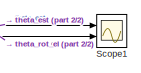
[diagram: root canvas - part 1/2, top center region]
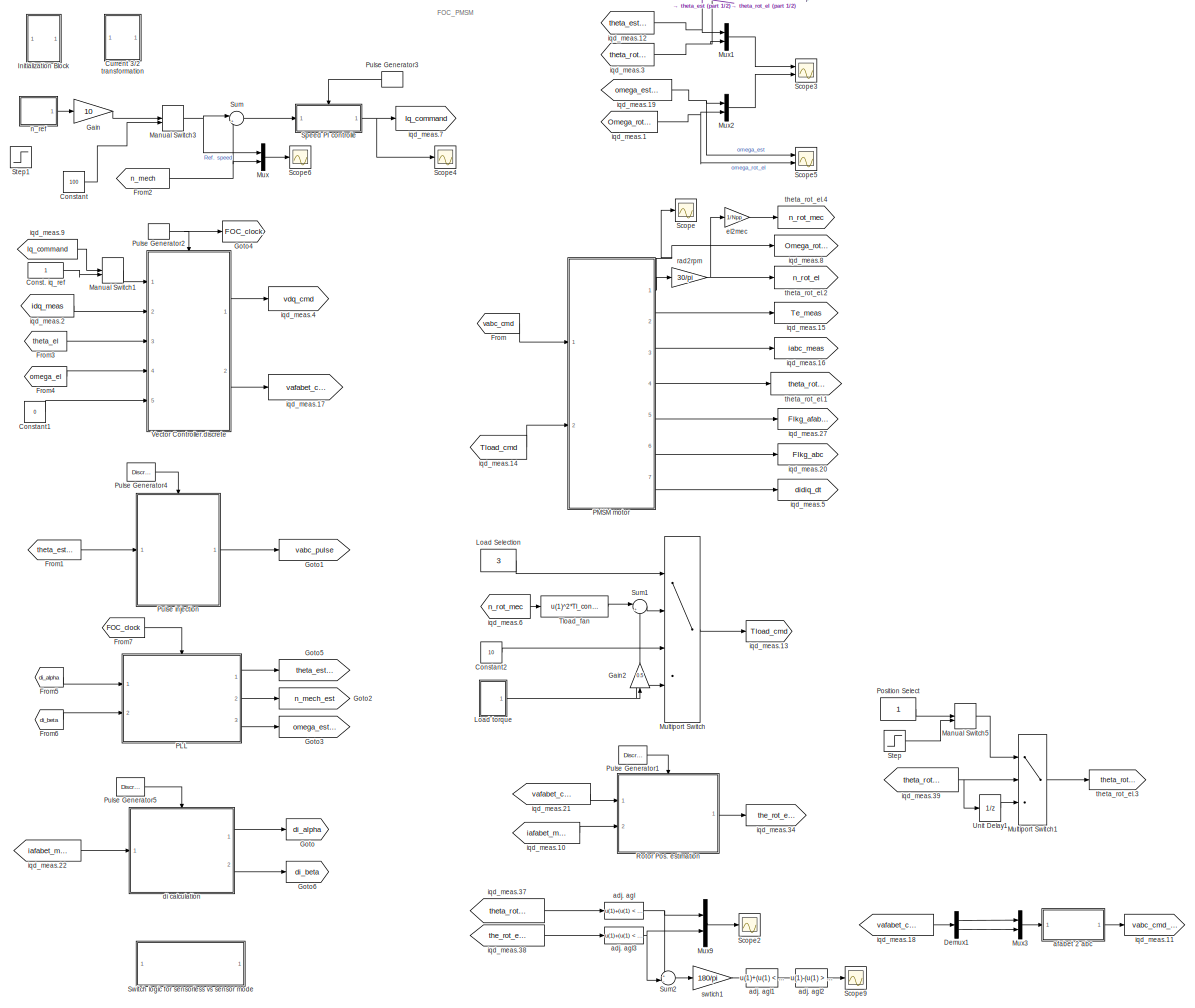
[diagram: root canvas - part 2/2, most of the canvas]
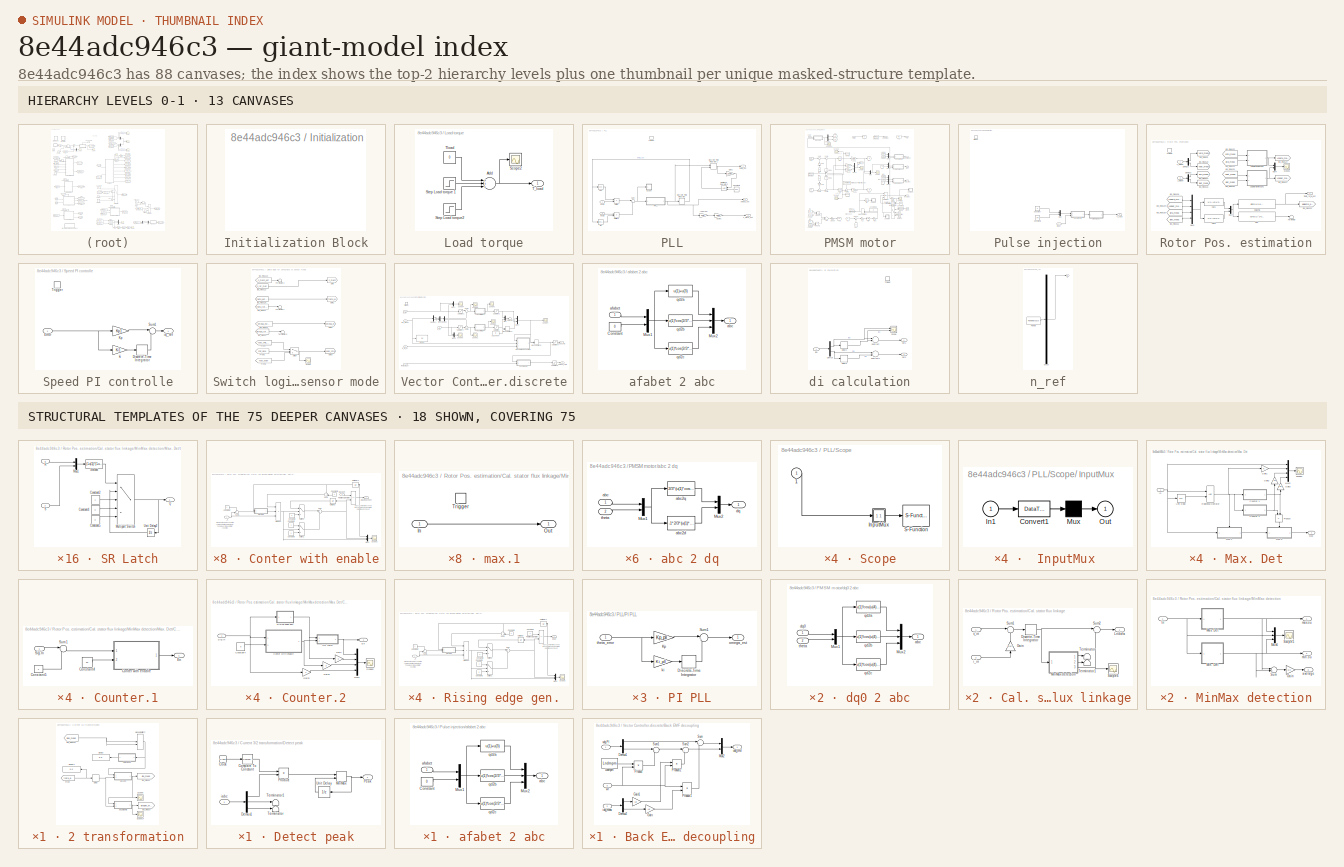
[diagram: thumbnail index - top-2 hierarchy levels (13 canvases) + 18 structural-template representatives of the remaining 75 canvases]
MODEL slx_8e44adc946c3
KIND model
CONFIG AbsTol = auto
CONFIG EnableMultiTasking = on
CONFIG FixedStep = 1/fs/4
CONFIG InitFcn = Motor_parameters_Lsrpm7fw
CONFIG MaxStep = 1/fs/2
CONFIG MinStep = auto
CONFIG RelTol = 1e-7
CONFIG SampleTimeConstraint = Unconstrained
CONFIG Solver = ode45
CONFIG SolverName = ode45
CONFIG StartTime = 0
CONFIG StopTime = 1
BLOCK [Constant] Const. iq_ref
BLOCK [Constant] Constant
  Value = 100
BLOCK [Constant] Constant1
  Value = 0
BLOCK [Constant] Constant2
  Value = 10
BLOCK [SubSystem] Current 3//2 transformation
  Ports = []
  RequestExecContextInheritance = off
BLOCK [Delay] Current 3//2 transformation/Delay
  DelayLength = 1
  InputPortMap = u0
  Ports = [1, 1]
BLOCK [SubSystem] Current 3//2 transformation/Detect peak
  Ports = [1, 1]
  RequestExecContextInheritance = off
BLOCK [Clock] Current 3//2 transformation/Detect peak/Clock
BLOCK [Reference] Current 3//2 transformation/Detect peak/Compare To Constant  REF=simulink/Logic and Bit
Operations/Compare
To Constant
  Ports = [1, 1]
  SourceBlock = simulink/Logic and Bit\nOperations/Compare\nTo Constant
  SourceProductBaseCode = SL
  SourceProductName = Simulink
  SourceType = Compare To Constant
BLOCK [Demux] Current 3//2 transformation/Detect peak/Demux1
  DisplayOption = bar
  Outputs = 3
  Ports = [1, 3]
BLOCK [MinMax] Current 3//2 transformation/Detect peak/MinMax
  Function = max
  InputSameDT = off
  Inputs = 2
  Ports = [2, 1]
  SaturateOnIntegerOverflow = off
BLOCK [Outport] Current 3//2 transformation/Detect peak/Peak
  IconDisplay = Port number
  VectorParamsAs1DForOutWhenUnconnected = off
BLOCK [Product] Current 3//2 transformation/Detect peak/Product
  InputSameDT = off
  OutDataTypeStr = Inherit: Inherit via internal rule
  Ports = [2, 1]
  SaturateOnIntegerOverflow = off
BLOCK [Terminator] Current 3//2 transformation/Detect peak/Terminator
BLOCK [Terminator] Current 3//2 transformation/Detect peak/Terminator1
BLOCK [UnitDelay] Current 3//2 transformation/Detect peak/Unit Delay
  HasFrameUpgradeWarning = on
  SampleTime = 1/5e3
BLOCK [Inport] Current 3//2 transformation/Detect peak/iabc
  IconDisplay = Port number
BLOCK [Display] Current 3//2 transformation/Display
  Decimation = 1
  Ports = [1]
BLOCK [Display] Current 3//2 transformation/Display1
  Decimation = 1
  Ports = [1]
BLOCK [From] Current 3//2 transformation/From
  GotoTag = theta_el
  TagVisibility = global
BLOCK [ManualSwitch] Current 3//2 transformation/Manual Switch7
  CurrentSetting = 0
BLOCK [Scope] Current 3//2 transformation/Scope14
  Floating = off
  NumInputPorts = 1
  Ports = [1]
  ScopeSpecificationString = C++SS(StrPVP('Location','[119, 56, 1049, 720]'),StrPVP('Open','off'),MxPVP('AxesTitles',54,'struct(''axes1'',''%<SignalLabel>'')'),StrPVP('ShowLegends','off'),StrPVP('YMin','-5500'),StrPVP('YMax','5500'),StrPVP('SaveName','ScopeData27'),StrPVP('DataFormat','StructureWithTime'),StrPVP('LimitDataPoints','off'),StrPVP('BlockParamSampleTime','0'),StrPVP('Decimation','1'),StrPVP('BlockParamSampleInput'...<+8ch>
BLOCK [Scope] Current 3//2 transformation/Scope6
  Floating = off
  NumInputPorts = 1
  Ports = [1]
  ScopeSpecificationString = C++SS(StrPVP('Location','[533, 264, 1183, 659]'),StrPVP('Open','off'),StrPVP('ZoomMode','xonly'),MxPVP('AxesTitles',54,'struct(''axes1'',''%<SignalLabel>'')'),StrPVP('ShowLegends','off'),StrPVP('SaveName','ScopeData25'),StrPVP('DataFormat','StructureWithTime'),StrPVP('LimitDataPoints','off'),StrPVP('BlockParamSampleTime','0'),StrPVP('Decimation','1'),StrPVP('BlockParamSampleInput','off'))
BLOCK [SubSystem] Current 3//2 transformation/abc 2 dq
  Ports = [2, 1]
  RequestExecContextInheritance = off
BLOCK [Mux] Current 3//2 transformation/abc 2 dq/Mux1
  DisplayOption = bar
  Inputs = 2
  Ports = [2, 1]
BLOCK [Mux] Current 3//2 transformation/abc 2 dq/Mux2
  DisplayOption = bar
  Inputs = 2
  Ports = [2, 1]
BLOCK [Inport] Current 3//2 transformation/abc 2 dq/abc
  IconDisplay = Port number
BLOCK [Fcn] Current 3//2 transformation/abc 2 dq/abc2d
  Expr = 2/3*(u(1)*cos(u(4))+u(2)*cos(u(4)-2*pi/3)+u(3)*cos(u(4)-4*pi/3))
BLOCK [Fcn] Current 3//2 transformation/abc 2 dq/abc2q
  Expr = -1*2/3*(u(1)*sin(u(4))+u(2)*sin(u(4)-2*pi/3)+u(3)*sin(u(4)-4*pi/3))
BLOCK [Outport] Current 3//2 transformation/abc 2 dq/dq
  IconDisplay = Port number
  VectorParamsAs1DForOutWhenUnconnected = off
BLOCK [Inport] Current 3//2 transformation/abc 2 dq/theta
  IconDisplay = Port number
  Port = 2
BLOCK [SubSystem] Current 3//2 transformation/dq 2 afa beta
  Ports = [2, 1]
  RequestExecContextInheritance = off
BLOCK [Mux] Current 3//2 transformation/dq 2 afa beta/Mux1
  DisplayOption = bar
  Inputs = 2
  Ports = [2, 1]
BLOCK [Mux] Current 3//2 transformation/dq 2 afa beta/Mux2
  DisplayOption = bar
  Inputs = 2
  Ports = [2, 1]
BLOCK [Outport] Current 3//2 transformation/dq 2 afa beta/afa beta
  IconDisplay = Port number
  VectorParamsAs1DForOutWhenUnconnected = off
BLOCK [Inport] Current 3//2 transformation/dq 2 afa beta/dq
  IconDisplay = Port number
BLOCK [Fcn] Current 3//2 transformation/dq 2 afa beta/dq2afa
  Expr = u(1)*cos(u(3))-u(2)*sin(u(3))
BLOCK [Fcn] Current 3//2 transformation/dq 2 afa beta/dq2beta
  Expr = u(1)*sin(u(3))+u(2)*cos(u(3))
BLOCK [Inport] Current 3//2 transformation/dq 2 afa beta/theta
  IconDisplay = Port number
  Port = 2
BLOCK [Goto] Current 3//2 transformation/iqd_meas.1
  GotoTag = idq_meas
  TagVisibility = global
BLOCK [From] Current 3//2 transformation/iqd_meas.21
  CloseFcn = tagdialog Close
  GotoTag = iabc_meas
  TagVisibility = global
BLOCK [Goto] Current 3//2 transformation/iqd_meas.7
  GotoTag = iafabet_meas
  TagVisibility = global
BLOCK [Demux] Demux1
  DisplayOption = bar
  Outputs = 2
  Ports = [1, 2]
BLOCK [From] From
  GotoTag = vabc_cmd
  TagVisibility = global
BLOCK [From] From1
  GotoTag = theta_est_pulse
  TagVisibility = global
BLOCK [From] From2
  GotoTag = n_mech
  TagVisibility = global
BLOCK [From] From3
  GotoTag = theta_el
  TagVisibility = global
BLOCK [From] From4
  GotoTag = omega_el
  TagVisibility = global
BLOCK [From] From5
  GotoTag = di_alpha
  TagVisibility = global
BLOCK [From] From6
  GotoTag = di_beta
  TagVisibility = global
BLOCK [From] From7
  GotoTag = FOC_clock
  TagVisibility = global
BLOCK [Gain] Gain
  Gain = 10
  OutDataTypeStr = Inherit: Inherit via internal rule
  ParamDataTypeStr = Inherit: Inherit via internal rule
  SaturateOnIntegerOverflow = off
BLOCK [Gain] Gain2
  Gain = 0.5
  OutDataTypeStr = Inherit: Inherit via internal rule
  ParamDataTypeStr = Inherit: Inherit via internal rule
  SaturateOnIntegerOverflow = off
BLOCK [Goto] Goto
  GotoTag = di_alpha
  TagVisibility = global
BLOCK [Goto] Goto1
  GotoTag = vabc_pulse
  TagVisibility = global
BLOCK [Goto] Goto2
  GotoTag = n_mech_est
  TagVisibility = global
BLOCK [Goto] Goto3
  GotoTag = omega_est_pulse
  TagVisibility = global
BLOCK [Goto] Goto4
  GotoTag = FOC_clock
  TagVisibility = global
BLOCK [Goto] Goto5
  GotoTag = theta_est_pulse
  TagVisibility = global
BLOCK [Goto] Goto6
  GotoTag = di_beta
  TagVisibility = global
BLOCK [SubSystem] Initialization Block
  Ports = []
  RequestExecContextInheritance = off
BLOCK [Constant] Load Selection
  Value = 3
BLOCK [SubSystem] Load torque
  Ports = [0, 1]
  RequestExecContextInheritance = off
BLOCK [Sum] Load torque/Add
  InputSameDT = off
  Inputs = +++
  OutDataTypeStr = Inherit: Inherit via internal rule
  Ports = [3, 1]
  SaturateOnIntegerOverflow = off
BLOCK [Scope] Load torque/Scope2
  Floating = off
  NumInputPorts = 1
  Ports = [1]
  ScopeSpecificationString = C++SS(StrPVP('Location','[191, 206, 1054, 786]'),StrPVP('Open','off'),MxPVP('AxesTitles',54,'struct(''axes1'',''%<SignalLabel>'')'),MxPVP('ScopeGraphics',57,'struct(''FigureColor'',''[0.5 0.5 0.5]'',''AxesColor'',''[0 0 0]'',''AxesTickColor'',''[1 1 1]'',''LineColors'',''[1 1 0;1 0 1;0 1 1;1 0 0;0 1 0;0 0 1]'',''LineStyles'',''-|-|-|-|-|-'',''LineWidths'',''[0.5 0.5 0.5 0.5 0.5 0.5]'',''MarkerStyl...<+320ch>
BLOCK [Step] Load torque/Step Load torque 1
  After = Trat
  SampleTime = 0
  Time = 2
BLOCK [Step] Load torque/Step Load torque2
  After = -Trat/2
  SampleTime = 0
  Time = 4
BLOCK [Outport] Load torque/T_load
  IconDisplay = Port number
  VectorParamsAs1DForOutWhenUnconnected = off
BLOCK [Constant] Load torque/Tload
  Value = 0
BLOCK [ManualSwitch] Manual Switch1
BLOCK [ManualSwitch] Manual Switch3
  CurrentSetting = 0
BLOCK [ManualSwitch] Manual Switch5
BLOCK [MultiPortSwitch] Multiport Switch
  InputSameDT = off
  Ports = [4, 1]
  SaturateOnIntegerOverflow = off
BLOCK [MultiPortSwitch] Multiport Switch1
  InputSameDT = off
  Inputs = 2
  Ports = [3, 1]
  SaturateOnIntegerOverflow = off
BLOCK [Mux] Mux
  DisplayOption = bar
  Inputs = 2
  Ports = [2, 1]
BLOCK [Mux] Mux1
  DisplayOption = bar
  Inputs = 2
  Ports = [2, 1]
BLOCK [Mux] Mux2
  DisplayOption = bar
  Inputs = 2
  Ports = [2, 1]
BLOCK [Mux] Mux3
  DisplayOption = bar
  Inputs = 2
  Ports = [2, 1]
BLOCK [Mux] Mux9
  DisplayOption = bar
  Inputs = 2
  Ports = [2, 1]
BLOCK [SubSystem] PLL
  Ports = [2, 3, 0, 1]
  RequestExecContextInheritance = off
  TreatAsAtomicUnit = on
BLOCK [Constant] PLL/Constant2
  Value = 360
BLOCK [Trigonometry] PLL/Cos
  Operator = cos
  Ports = [1, 1]
BLOCK [DiscreteIntegrator] PLL/Discrete-Time Integrator
  ICPrevOutput = DiscIntNeverNeededParam
  ICPrevScaledInput = DiscIntNeverNeededParam
  InitialConditionSetting = Auto
  Ports = [1, 1]
  SampleTime = -1
BLOCK [DiscreteIntegrator] PLL/Discrete-Time Integrator1
  ExternalReset = rising
  ICPrevOutput = DiscIntNeverNeededParam
  ICPrevScaledInput = DiscIntNeverNeededParam
  InitialConditionSetting = Auto
  Ports = [2, 1]
  SampleTime = -1
BLOCK [Gain] PLL/Gain1
  Gain = 180/pi
  OutDataTypeStr = Inherit: Inherit via internal rule
  ParamDataTypeStr = Inherit: Inherit via internal rule
  SaturateOnIntegerOverflow = off
BLOCK [Inport] PLL/Input1
  IconDisplay = Port number
BLOCK [Inport] PLL/Input2
  IconDisplay = Port number
  Port = 2
BLOCK [Product] PLL/Multiply
  InputSameDT = off
  OutDataTypeStr = Inherit: Inherit via internal rule
  Ports = [2, 1]
  RndMeth = Floor
  SaturateOnIntegerOverflow = off
BLOCK [Product] PLL/Multiply1
  InputSameDT = off
  OutDataTypeStr = Inherit: Inherit via internal rule
  Ports = [2, 1]
  RndMeth = Floor
  SaturateOnIntegerOverflow = off
BLOCK [SubSystem] PLL/PI PLL
  Ports = [1, 1]
  RequestExecContextInheritance = off
BLOCK [DiscreteIntegrator] PLL/PI PLL/Discrete-Time Integrator
  ICPrevOutput = DiscIntNeverNeededParam
  ICPrevScaledInput = DiscIntNeverNeededParam
  Ports = [1, 1]
  SampleTime = -1
BLOCK [Gain] PLL/PI PLL/Kp
  Gain = Kp_pll
  OutDataTypeStr = Inherit: Inherit via internal rule
  ParamDataTypeStr = Inherit: Inherit via internal rule
  SaturateOnIntegerOverflow = off
BLOCK [Sum] PLL/PI PLL/Sum1
  IconShape = round
  InputSameDT = off
  Inputs = |++
  OutDataTypeStr = Inherit: Inherit via internal rule
  Ports = [2, 1]
  SaturateOnIntegerOverflow = off
BLOCK [Gain] PLL/PI PLL/ki
  Gain = Ki_pll
  OutDataTypeStr = Inherit: Inherit via internal rule
  ParamDataTypeStr = Inherit: Inherit via internal rule
  SaturateOnIntegerOverflow = off
BLOCK [Outport] PLL/PI PLL/omega_est
  IconDisplay = Port number
  VectorParamsAs1DForOutWhenUnconnected = off
BLOCK [Inport] PLL/PI PLL/theta_error
  IconDisplay = Port number
BLOCK [RelationalOperator] PLL/Relational Operator2
  InputSameDT = off
  OutDataTypeStr = boolean
  Ports = [2, 1]
BLOCK [SubSystem] PLL/Scope
  CopyFcn = plecs('sl', 303);
  DeleteFcn = plecs('sl', 305);
  DestroyFcn = plecs('sl', 307);
  ErrorFcn = plerrorfcn
  InitFcn = plecs('sl', 314);
  LoadFcn = plecs('sl', 300);
  NameChangeFcn = plecs('sl', 310);
  OpenFcn = plecs('sl', 302);
  Ports = [1]
  PreSaveFcn = plecs('sl', 311);
  RequestExecContextInheritance = off
  StartFcn = plecs('sl', 308);
  StopFcn = plecs('sl', 309);
  UndoDeleteFcn = plecs('sl', 306);
BLOCK [SubSystem] PLL/Scope/ InputMux 
  Ports = [1, 1]
  RequestExecContextInheritance = off
BLOCK [DataTypeConversion] PLL/Scope/ InputMux /Convert1
BLOCK [Inport] PLL/Scope/ InputMux /In1
  IconDisplay = Port number
BLOCK [Mux] PLL/Scope/ InputMux /Mux
  Inputs = 1
  Ports = [1, 1]
BLOCK [Outport] PLL/Scope/ InputMux /Out
  IconDisplay = Port number
  VectorParamsAs1DForOutWhenUnconnected = off
BLOCK [S-Function] PLL/Scope/ S-Function 
  EnableBusSupport = off
  FunctionName = plecs
  Ports = [1]
  SFcnIsStateOwnerBlock = off
  SFunctionDeploymentMode = off
BLOCK [Inport] PLL/Scope/1
  IconDisplay = Port number
BLOCK [Trigonometry] PLL/Sin
  Ports = [1, 1]
BLOCK [Sum] PLL/Sum
  IconShape = round
  InputSameDT = off
  Inputs = |++
  OutDataTypeStr = Inherit: Inherit via internal rule
  Ports = [2, 1]
  SaturateOnIntegerOverflow = off
BLOCK [TriggerPort] PLL/Trigger
  Ports = []
  StatesWhenEnabling = held
  VariantControl = Variant
BLOCK [Gain] PLL/el2mec
  Gain = 1/Npp
  OutDataTypeStr = Inherit: Inherit via internal rule
  ParamDataTypeStr = Inherit: Inherit via internal rule
  SaturateOnIntegerOverflow = off
BLOCK [Outport] PLL/n_mech_est
  IconDisplay = Port number
  Port = 2
  VectorParamsAs1DForOutWhenUnconnected = off
BLOCK [Outport] PLL/omega_est
  IconDisplay = Port number
  Port = 3
  VectorParamsAs1DForOutWhenUnconnected = off
BLOCK [Gain] PLL/rad2rpm
  Gain = 30/pi
  OutDataTypeStr = Inherit: Inherit via internal rule
  ParamDataTypeStr = Inherit: Inherit via internal rule
  SaturateOnIntegerOverflow = off
BLOCK [Outport] PLL/theta_est
  IconDisplay = Port number
  VectorParamsAs1DForOutWhenUnconnected = off
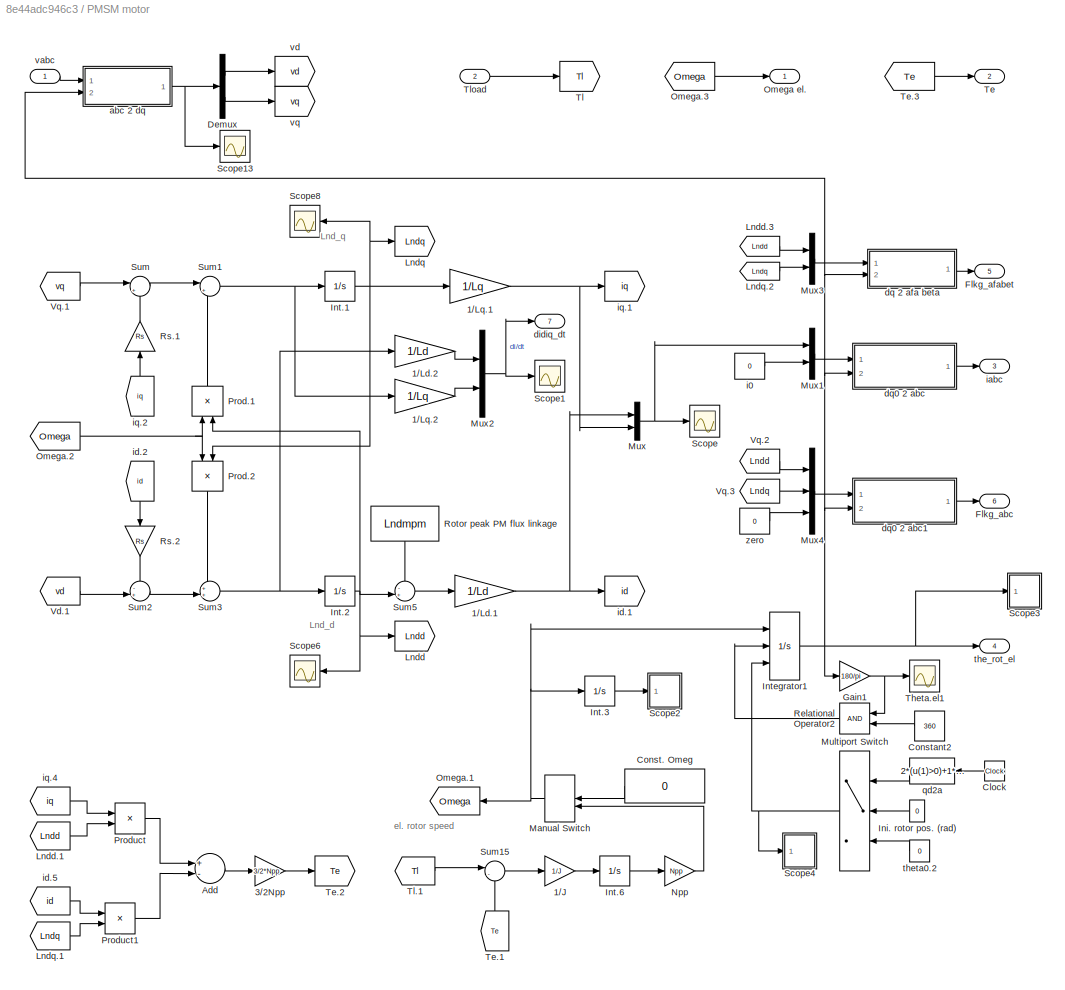
BLOCK [SubSystem] PMSM motor
  Ports = [2, 7]
  RequestExecContextInheritance = off
BLOCK [Gain] PMSM motor/1//J
  Gain = 1/J
  OutDataTypeStr = Inherit: Inherit via internal rule
  ParamDataTypeStr = Inherit: Inherit via internal rule
  SaturateOnIntegerOverflow = off
BLOCK [Gain] PMSM motor/1//Ld.1
  Gain = 1/Ld
  OutDataTypeStr = Inherit: Inherit via internal rule
  ParamDataTypeStr = Inherit: Inherit via internal rule
  SaturateOnIntegerOverflow = off
BLOCK [Gain] PMSM motor/1//Ld.2
  Gain = 1/Ld
  OutDataTypeStr = Inherit: Inherit via internal rule
  ParamDataTypeStr = Inherit: Inherit via internal rule
  SaturateOnIntegerOverflow = off
BLOCK [Gain] PMSM motor/1//Lq.1
  Gain = 1/Lq
  OutDataTypeStr = Inherit: Inherit via internal rule
  ParamDataTypeStr = Inherit: Inherit via internal rule
  SaturateOnIntegerOverflow = off
BLOCK [Gain] PMSM motor/1//Lq.2
  Gain = 1/Lq
  OutDataTypeStr = Inherit: Inherit via internal rule
  ParamDataTypeStr = Inherit: Inherit via internal rule
  SaturateOnIntegerOverflow = off
BLOCK [Gain] PMSM motor/3//2Npp
  Gain = 3/2*Npp
  OutDataTypeStr = Inherit: Inherit via internal rule
  ParamDataTypeStr = Inherit: Inherit via internal rule
  SaturateOnIntegerOverflow = off
BLOCK [Sum] PMSM motor/Add
  InputSameDT = off
  Inputs = +-
  OutDataTypeStr = Inherit: Inherit via internal rule
  Ports = [2, 1]
  SaturateOnIntegerOverflow = off
BLOCK [Clock] PMSM motor/Clock
BLOCK [Constant] PMSM motor/Const. Omeg
  Value = 0
BLOCK [Constant] PMSM motor/Constant2
  Value = 360
BLOCK [Demux] PMSM motor/Demux
  DisplayOption = bar
  Outputs = 2
  Ports = [1, 2]
BLOCK [Outport] PMSM motor/Flkg_abc
  IconDisplay = Port number
  Port = 6
  VectorParamsAs1DForOutWhenUnconnected = off
BLOCK [Outport] PMSM motor/Flkg_afabet
  IconDisplay = Port number
  Port = 5
  VectorParamsAs1DForOutWhenUnconnected = off
BLOCK [Gain] PMSM motor/Gain1
  Gain = 180/pi
  OutDataTypeStr = Inherit: Inherit via internal rule
  ParamDataTypeStr = Inherit: Inherit via internal rule
  SaturateOnIntegerOverflow = off
BLOCK [Constant] PMSM motor/Ini. rotor pos. (rad)
  Value = 0
BLOCK [Integrator] PMSM motor/Int.1
  Ports = [1, 1]
BLOCK [Integrator] PMSM motor/Int.2
  InitialCondition = Lndd_ini
  Ports = [1, 1]
BLOCK [Integrator] PMSM motor/Int.3
  InitialCondition = Omegae_ini/Npp
  Ports = [1, 1]
BLOCK [Integrator] PMSM motor/Int.6
  InitialCondition = Omegae_ini/Npp
  Ports = [1, 1]
BLOCK [Integrator] PMSM motor/Integrator1
  ExternalReset = rising
  InitialCondition = pi/3
  InitialConditionSource = external
  Ports = [3, 1]
BLOCK [Goto] PMSM motor/Lndd
  GotoTag = Lndd
BLOCK [From] PMSM motor/Lndd.1
  CloseFcn = tagdialog Close
  GotoTag = Lndd
BLOCK [From] PMSM motor/Lndd.3
  CloseFcn = tagdialog Close
  GotoTag = Lndd
BLOCK [Goto] PMSM motor/Lndq
  GotoTag = Lndq
BLOCK [From] PMSM motor/Lndq.1
  CloseFcn = tagdialog Close
  GotoTag = Lndq
BLOCK [From] PMSM motor/Lndq.2
  CloseFcn = tagdialog Close
  GotoTag = Lndq
BLOCK [ManualSwitch] PMSM motor/Manual Switch
  CurrentSetting = 0
BLOCK [MultiPortSwitch] PMSM motor/Multiport Switch
  InputSameDT = off
  Inputs = 2
  Ports = [3, 1]
  SaturateOnIntegerOverflow = off
BLOCK [Mux] PMSM motor/Mux
  DisplayOption = bar
  Inputs = 2
  Ports = [2, 1]
BLOCK [Mux] PMSM motor/Mux1
  DisplayOption = bar
  Inputs = 2
  Ports = [2, 1]
BLOCK [Mux] PMSM motor/Mux2
  DisplayOption = bar
  Inputs = 2
  Ports = [2, 1]
BLOCK [Mux] PMSM motor/Mux3
  DisplayOption = bar
  Inputs = 2
  Ports = [2, 1]
BLOCK [Mux] PMSM motor/Mux4
  DisplayOption = bar
  Inputs = 3
  Ports = [3, 1]
BLOCK [Gain] PMSM motor/Npp
  Gain = Npp
  OutDataTypeStr = Inherit: Inherit via internal rule
  ParamDataTypeStr = Inherit: Inherit via internal rule
  SaturateOnIntegerOverflow = off
BLOCK [Outport] PMSM motor/Omega el.
  IconDisplay = Port number
  VectorParamsAs1DForOutWhenUnconnected = off
BLOCK [Goto] PMSM motor/Omega.1
  GotoTag = Omega
BLOCK [From] PMSM motor/Omega.2
  CloseFcn = tagdialog Close
  GotoTag = Omega
BLOCK [From] PMSM motor/Omega.3
  CloseFcn = tagdialog Close
  GotoTag = Omega
BLOCK [Product] PMSM motor/Prod.1
  InputSameDT = off
  OutDataTypeStr = Inherit: Inherit via internal rule
  Ports = [2, 1]
  SaturateOnIntegerOverflow = off
BLOCK [Product] PMSM motor/Prod.2
  InputSameDT = off
  OutDataTypeStr = Inherit: Inherit via internal rule
  Ports = [2, 1]
  SaturateOnIntegerOverflow = off
BLOCK [Product] PMSM motor/Product
  InputSameDT = off
  OutDataTypeStr = Inherit: Inherit via internal rule
  Ports = [2, 1]
  SaturateOnIntegerOverflow = off
BLOCK [Product] PMSM motor/Product1
  InputSameDT = off
  OutDataTypeStr = Inherit: Inherit via internal rule
  Ports = [2, 1]
  SaturateOnIntegerOverflow = off
BLOCK [RelationalOperator] PMSM motor/Relational Operator2
  InputSameDT = off
  OutDataTypeStr = boolean
  Ports = [2, 1]
BLOCK [Constant] PMSM motor/Rotor peak PM flux linkage
  Value = Lndmpm
BLOCK [Gain] PMSM motor/Rs.1
  Gain = Rs
  OutDataTypeStr = Inherit: Inherit via internal rule
  ParamDataTypeStr = Inherit: Inherit via internal rule
  SaturateOnIntegerOverflow = off
BLOCK [Gain] PMSM motor/Rs.2
  Gain = Rs
  OutDataTypeStr = Inherit: Inherit via internal rule
  ParamDataTypeStr = Inherit: Inherit via internal rule
  SaturateOnIntegerOverflow = off
BLOCK [Scope] PMSM motor/Scope
  Floating = off
  NumInputPorts = 1
  Ports = [1]
  ScopeSpecificationString = Simulink.scopes.TimeScopeBlockCfg('CurrentConfiguration', extmgr.ConfigurationSet(extmgr.Configuration('Core','General UI',true),extmgr.Configuration('Core','Source UI',true),extmgr.Configuration('Sources','WiredSimulink',true,'DataLoggingVariableName','ScopeData3','DataLoggingSaveFormat','StructureWithTime','DataLoggingDecimation','1','DataLoggingDecimateData',true),extmgr.Configuration('Visuals'...<+1729ch>
BLOCK [Scope] PMSM motor/Scope1
  Floating = off
  NumInputPorts = 1
  Ports = [1]
  ScopeSpecificationString = C++SS(StrPVP('Location','[190, 170, 1046, 653]'),StrPVP('Open','off'),StrPVP('ZoomMode','yonly'),MxPVP('AxesTitles',54,'struct(''axes1'',''%<SignalLabel>'')'),MxPVP('ScopeGraphics',57,'struct(''FigureColor'',''[0.5 0.5 0.5]'',''AxesColor'',''[0 0 0]'',''AxesTickColor'',''[1 1 1]'',''LineColors'',''[1 1 0;1 0 1;0 1 1;1 0 0;0 1 0;0 0 1]'',''LineStyles'',''-|-|-|-|-|-'',''LineWidths'',''[0.5 0.5 0.5 ...<+367ch>
BLOCK [Scope] PMSM motor/Scope13
  Floating = off
  NumInputPorts = 1
  Ports = [1]
  ScopeSpecificationString = C++SS(StrPVP('Location','[6, 189, 1019, 737]'),StrPVP('Open','off'),StrPVP('ZoomMode','xonly'),MxPVP('AxesTitles',54,'struct(''axes1'',''%<SignalLabel>'')'),MxPVP('ScopeGraphics',57,'struct(''FigureColor'',''[0.5 0.5 0.5]'',''AxesColor'',''[0 0 0]'',''AxesTickColor'',''[1 1 1]'',''LineColors'',''[1 1 0;1 0 1;0 1 1;1 0 0;0 1 0;0 0 1]'',''LineStyles'',''-|-|-|-|-|-'',''LineWidths'',''[0.5 0.5 0.5 0....<+340ch>
BLOCK [SubSystem] PMSM motor/Scope2
  CopyFcn = plecs('sl', 303);
  DeleteFcn = plecs('sl', 305);
  DestroyFcn = plecs('sl', 307);
  ErrorFcn = plerrorfcn
  InitFcn = plecs('sl', 314);
  LoadFcn = plecs('sl', 300);
  NameChangeFcn = plecs('sl', 310);
  OpenFcn = plecs('sl', 302);
  Ports = [1]
  PreSaveFcn = plecs('sl', 311);
  RequestExecContextInheritance = off
  StartFcn = plecs('sl', 308);
  StopFcn = plecs('sl', 309);
  UndoDeleteFcn = plecs('sl', 306);
BLOCK [SubSystem] PMSM motor/Scope2/ InputMux 
  Ports = [1, 1]
  RequestExecContextInheritance = off
BLOCK [DataTypeConversion] PMSM motor/Scope2/ InputMux /Convert1
BLOCK [Inport] PMSM motor/Scope2/ InputMux /In1
  IconDisplay = Port number
BLOCK [Mux] PMSM motor/Scope2/ InputMux /Mux
  Inputs = 1
  Ports = [1, 1]
BLOCK [Outport] PMSM motor/Scope2/ InputMux /Out
  IconDisplay = Port number
  VectorParamsAs1DForOutWhenUnconnected = off
BLOCK [S-Function] PMSM motor/Scope2/ S-Function 
  EnableBusSupport = off
  FunctionName = plecs
  Ports = [1]
  SFcnIsStateOwnerBlock = off
  SFunctionDeploymentMode = off
BLOCK [Inport] PMSM motor/Scope2/1
  IconDisplay = Port number
BLOCK [SubSystem] PMSM motor/Scope3
  CopyFcn = plecs('sl', 303);
  DeleteFcn = plecs('sl', 305);
  DestroyFcn = plecs('sl', 307);
  ErrorFcn = plerrorfcn
  InitFcn = plecs('sl', 314);
  LoadFcn = plecs('sl', 300);
  NameChangeFcn = plecs('sl', 310);
  OpenFcn = plecs('sl', 302);
  Ports = [1]
  PreSaveFcn = plecs('sl', 311);
  RequestExecContextInheritance = off
  StartFcn = plecs('sl', 308);
  StopFcn = plecs('sl', 309);
  UndoDeleteFcn = plecs('sl', 306);
BLOCK [SubSystem] PMSM motor/Scope3/ InputMux 
  Ports = [1, 1]
  RequestExecContextInheritance = off
BLOCK [DataTypeConversion] PMSM motor/Scope3/ InputMux /Convert1
BLOCK [Inport] PMSM motor/Scope3/ InputMux /In1
  IconDisplay = Port number
BLOCK [Mux] PMSM motor/Scope3/ InputMux /Mux
  Inputs = 1
  Ports = [1, 1]
BLOCK [Outport] PMSM motor/Scope3/ InputMux /Out
  IconDisplay = Port number
  VectorParamsAs1DForOutWhenUnconnected = off
BLOCK [S-Function] PMSM motor/Scope3/ S-Function 
  EnableBusSupport = off
  FunctionName = plecs
  Ports = [1]
  SFcnIsStateOwnerBlock = off
  SFunctionDeploymentMode = off
BLOCK [Inport] PMSM motor/Scope3/1
  IconDisplay = Port number
BLOCK [SubSystem] PMSM motor/Scope4
  CopyFcn = plecs('sl', 303);
  DeleteFcn = plecs('sl', 305);
  DestroyFcn = plecs('sl', 307);
  ErrorFcn = plerrorfcn
  InitFcn = plecs('sl', 314);
  LoadFcn = plecs('sl', 300);
  NameChangeFcn = plecs('sl', 310);
  OpenFcn = plecs('sl', 302);
  Ports = [1]
  PreSaveFcn = plecs('sl', 311);
  RequestExecContextInheritance = off
  StartFcn = plecs('sl', 308);
  StopFcn = plecs('sl', 309);
  UndoDeleteFcn = plecs('sl', 306);
BLOCK [SubSystem] PMSM motor/Scope4/ InputMux 
  Ports = [1, 1]
  RequestExecContextInheritance = off
BLOCK [DataTypeConversion] PMSM motor/Scope4/ InputMux /Convert1
BLOCK [Inport] PMSM motor/Scope4/ InputMux /In1
  IconDisplay = Port number
BLOCK [Mux] PMSM motor/Scope4/ InputMux /Mux
  Inputs = 1
  Ports = [1, 1]
BLOCK [Outport] PMSM motor/Scope4/ InputMux /Out
  IconDisplay = Port number
  VectorParamsAs1DForOutWhenUnconnected = off
BLOCK [S-Function] PMSM motor/Scope4/ S-Function 
  EnableBusSupport = off
  FunctionName = plecs
  Ports = [1]
  SFcnIsStateOwnerBlock = off
  SFunctionDeploymentMode = off
BLOCK [Inport] PMSM motor/Scope4/1
  IconDisplay = Port number
BLOCK [Scope] PMSM motor/Scope6
  Floating = off
  NumInputPorts = 1
  Ports = [1]
  ScopeSpecificationString = C++SS(StrPVP('Location','[430, 222, 984, 607]'),StrPVP('Open','off'),MxPVP('AxesTitles',54,'struct(''axes1'',''%<SignalLabel>'')'),StrPVP('ShowLegends','off'),StrPVP('TimeRange','0.35'),StrPVP('YMin','-2e-005'),StrPVP('YMax','2.25e-005'),StrPVP('SaveName','ScopeData11'),StrPVP('DataFormat','StructureWithTime'),StrPVP('LimitDataPoints','off'),StrPVP('BlockParamSampleTime','0'),StrPVP('Decimation','...<+42ch>
BLOCK [Scope] PMSM motor/Scope8
  Floating = off
  NumInputPorts = 1
  Ports = [1]
  ScopeSpecificationString = C++SS(StrPVP('Location','[8, 56, 670, 485]'),StrPVP('Open','off'),StrPVP('ZoomMode','yonly'),MxPVP('AxesTitles',54,'struct(''axes1'',''%<SignalLabel>'')'),StrPVP('ShowLegends','off'),StrPVP('TimeRange','35'),StrPVP('YMin','0.997'),StrPVP('YMax','1.005'),StrPVP('SaveName','ScopeData12'),StrPVP('DataFormat','StructureWithTime'),StrPVP('LimitDataPoints','off'),StrPVP('BlockParamSampleTime','0'),StrPV...<+58ch>
BLOCK [Sum] PMSM motor/Sum
  IconShape = round
  InputSameDT = off
  Inputs = |+-
  OutDataTypeStr = Inherit: Inherit via internal rule
  Ports = [2, 1]
  SaturateOnIntegerOverflow = off
BLOCK [Sum] PMSM motor/Sum1
  IconShape = round
  InputSameDT = off
  Inputs = |+-
  OutDataTypeStr = Inherit: Inherit via internal rule
  Ports = [2, 1]
  SaturateOnIntegerOverflow = off
BLOCK [Sum] PMSM motor/Sum15
  IconShape = round
  InputSameDT = off
  Inputs = |-+
  OutDataTypeStr = Inherit: Inherit via internal rule
  Ports = [2, 1]
  SaturateOnIntegerOverflow = off
BLOCK [Sum] PMSM motor/Sum2
  IconShape = round
  InputSameDT = off
  Inputs = -+|
  OutDataTypeStr = Inherit: Inherit via internal rule
  Ports = [2, 1]
  SaturateOnIntegerOverflow = off
BLOCK [Sum] PMSM motor/Sum3
  IconShape = round
  InputSameDT = off
  Inputs = ++|
  OutDataTypeStr = Inherit: Inherit via internal rule
  Ports = [2, 1]
  SaturateOnIntegerOverflow = off
BLOCK [Sum] PMSM motor/Sum5
  IconShape = round
  InputSameDT = off
  Inputs = -+|
  OutDataTypeStr = Inherit: Inherit via internal rule
  Ports = [2, 1]
  SaturateOnIntegerOverflow = off
BLOCK [Outport] PMSM motor/Te
  IconDisplay = Port number
  Port = 2
  VectorParamsAs1DForOutWhenUnconnected = off
BLOCK [From] PMSM motor/Te.1
  CloseFcn = tagdialog Close
  GotoTag = Te
BLOCK [Goto] PMSM motor/Te.2
  GotoTag = Te
BLOCK [From] PMSM motor/Te.3
  CloseFcn = tagdialog Close
  GotoTag = Te
BLOCK [Scope] PMSM motor/Theta.el1
  Floating = off
  NumInputPorts = 1
  Ports = [1]
  ScopeSpecificationString = Simulink.scopes.TimeScopeBlockCfg('CurrentConfiguration', extmgr.ConfigurationSet(extmgr.Configuration('Core','General UI',true),extmgr.Configuration('Core','Source UI',true),extmgr.Configuration('Sources','WiredSimulink',true,'DataLoggingSaveFormat','StructureWithTime','DataLoggingLimitDataPoints',true,'DataLoggingDecimation','1','DataLoggingDecimateData',true),extmgr.Configuration('Visuals','Tim...<+1617ch>
BLOCK [Goto] PMSM motor/Tl
  GotoTag = Tl
BLOCK [From] PMSM motor/Tl.1
  CloseFcn = tagdialog Close
  GotoTag = Tl
BLOCK [Inport] PMSM motor/Tload
  IconDisplay = Port number
  Port = 2
BLOCK [From] PMSM motor/Vd.1
  CloseFcn = tagdialog Close
  GotoTag = vd
BLOCK [From] PMSM motor/Vq.1
  CloseFcn = tagdialog Close
  GotoTag = vq
BLOCK [From] PMSM motor/Vq.2
  CloseFcn = tagdialog Close
  GotoTag = Lndd
BLOCK [From] PMSM motor/Vq.3
  CloseFcn = tagdialog Close
  GotoTag = Lndq
BLOCK [SubSystem] PMSM motor/abc 2 dq
  Ports = [2, 1]
  RequestExecContextInheritance = off
BLOCK [Mux] PMSM motor/abc 2 dq/Mux1
  DisplayOption = bar
  Inputs = 2
  Ports = [2, 1]
BLOCK [Mux] PMSM motor/abc 2 dq/Mux2
  DisplayOption = bar
  Inputs = 2
  Ports = [2, 1]
BLOCK [Inport] PMSM motor/abc 2 dq/abc
  IconDisplay = Port number
BLOCK [Fcn] PMSM motor/abc 2 dq/abc2d
  Expr = -1*2/3*(u(1)*sin(u(4))+u(2)*sin(u(4)-2*pi/3)+u(3)*sin(u(4)-4*pi/3))
BLOCK [Fcn] PMSM motor/abc 2 dq/abc2q
  Expr = 2/3*(u(1)*cos(u(4))+u(2)*cos(u(4)-2*pi/3)+u(3)*cos(u(4)-4*pi/3))
BLOCK [Outport] PMSM motor/abc 2 dq/dq
  IconDisplay = Port number
  VectorParamsAs1DForOutWhenUnconnected = off
BLOCK [Inport] PMSM motor/abc 2 dq/theta
  IconDisplay = Port number
  Port = 2
BLOCK [Outport] PMSM motor/didiq_dt
  IconDisplay = Port number
  Port = 7
  VectorParamsAs1DForOutWhenUnconnected = off
BLOCK [SubSystem] PMSM motor/dq 2 afa beta
  Ports = [2, 1]
  RequestExecContextInheritance = off
BLOCK [Mux] PMSM motor/dq 2 afa beta/Mux1
  DisplayOption = bar
  Inputs = 2
  Ports = [2, 1]
BLOCK [Mux] PMSM motor/dq 2 afa beta/Mux2
  DisplayOption = bar
  Inputs = 2
  Ports = [2, 1]
BLOCK [Outport] PMSM motor/dq 2 afa beta/afa beta
  IconDisplay = Port number
  VectorParamsAs1DForOutWhenUnconnected = off
BLOCK [Inport] PMSM motor/dq 2 afa beta/dq
  IconDisplay = Port number
BLOCK [Fcn] PMSM motor/dq 2 afa beta/dq2afa
  Expr = u(1)*cos(u(3))-u(2)*sin(u(3))
BLOCK [Fcn] PMSM motor/dq 2 afa beta/dq2beta
  Expr = u(1)*sin(u(3))+u(2)*cos(u(3))
BLOCK [Inport] PMSM motor/dq 2 afa beta/theta
  IconDisplay = Port number
  Port = 2
BLOCK [SubSystem] PMSM motor/dq0 2 abc
  Ports = [2, 1]
  RequestExecContextInheritance = off
BLOCK [Mux] PMSM motor/dq0 2 abc/Mux1
  DisplayOption = bar
  Inputs = 2
  Ports = [2, 1]
BLOCK [Mux] PMSM motor/dq0 2 abc/Mux2
  DisplayOption = bar
  Inputs = 3
  Ports = [3, 1]
BLOCK [Outport] PMSM motor/dq0 2 abc/abc
  IconDisplay = Port number
  VectorParamsAs1DForOutWhenUnconnected = off
BLOCK [Inport] PMSM motor/dq0 2 abc/dq0
  IconDisplay = Port number
BLOCK [Fcn] PMSM motor/dq0 2 abc/qd2a
  Expr = u(1)*cos(u(4))-u(2)*sin(u(4))+u(3)
BLOCK [Fcn] PMSM motor/dq0 2 abc/qd2b
  Expr = u(1)*cos(u(4)-2/3*pi)-u(2)*sin(u(4)-2/3*pi)+u(3)
BLOCK [Fcn] PMSM motor/dq0 2 abc/qd2c
  Expr = u(1)*cos(u(4)+2/3*pi)-u(2)*sin(u(4)+2/3*pi)+u(3)
BLOCK [Inport] PMSM motor/dq0 2 abc/theta
  IconDisplay = Port number
  Port = 2
BLOCK [SubSystem] PMSM motor/dq0 2 abc1
  Ports = [2, 1]
  RequestExecContextInheritance = off
BLOCK [Mux] PMSM motor/dq0 2 abc1/Mux1
  DisplayOption = bar
  Inputs = 2
  Ports = [2, 1]
BLOCK [Mux] PMSM motor/dq0 2 abc1/Mux2
  DisplayOption = bar
  Inputs = 3
  Ports = [3, 1]
BLOCK [Outport] PMSM motor/dq0 2 abc1/abc
  IconDisplay = Port number
  VectorParamsAs1DForOutWhenUnconnected = off
BLOCK [Inport] PMSM motor/dq0 2 abc1/dq0
  IconDisplay = Port number
BLOCK [Fcn] PMSM motor/dq0 2 abc1/qd2a
  Expr = u(1)*cos(u(4))-u(2)*sin(u(4))+u(3)
BLOCK [Fcn] PMSM motor/dq0 2 abc1/qd2b
  Expr = u(1)*cos(u(4)-2/3*pi)-u(2)*sin(u(4)-2/3*pi)+u(3)
BLOCK [Fcn] PMSM motor/dq0 2 abc1/qd2c
  Expr = u(1)*cos(u(4)+2/3*pi)-u(2)*sin(u(4)+2/3*pi)+u(3)
BLOCK [Inport] PMSM motor/dq0 2 abc1/theta
  IconDisplay = Port number
  Port = 2
BLOCK [Constant] PMSM motor/i0
  Value = 0
BLOCK [Outport] PMSM motor/iabc
  IconDisplay = Port number
  Port = 3
  VectorParamsAs1DForOutWhenUnconnected = off
BLOCK [Goto] PMSM motor/id.1
  GotoTag = id
BLOCK [From] PMSM motor/id.2
  CloseFcn = tagdialog Close
  GotoTag = id
BLOCK [From] PMSM motor/id.5
  CloseFcn = tagdialog Close
  GotoTag = id
BLOCK [Goto] PMSM motor/iq.1
  GotoTag = iq
BLOCK [From] PMSM motor/iq.2
  CloseFcn = tagdialog Close
  GotoTag = iq
BLOCK [From] PMSM motor/iq.4
  CloseFcn = tagdialog Close
  GotoTag = iq
BLOCK [Fcn] PMSM motor/qd2a
  Expr = 2*(u(1)>0)+1*(u(1)==0)
BLOCK [Outport] PMSM motor/the_rot_el
  IconDisplay = Port number
  Port = 4
  VectorParamsAs1DForOutWhenUnconnected = off
BLOCK [Constant] PMSM motor/theta0.2
  Value = 0
BLOCK [Inport] PMSM motor/vabc
  IconDisplay = Port number
BLOCK [Goto] PMSM motor/vd
  GotoTag = vd
BLOCK [Goto] PMSM motor/vq
  GotoTag = vq
BLOCK [Constant] PMSM motor/zero
  Value = 0
BLOCK [Constant] Position Select
BLOCK [DiscretePulseGenerator] Pulse Generator1
  Period = 1/fs
  PhaseDelay = 1/fs/4*0
  Ports = [0, 1]
  PulseType = Time based
  PulseWidth = 50
BLOCK [DiscretePulseGenerator] Pulse Generator2
  Period = 1/fs
  Ports = [0, 1]
  PulseType = Time based
  PulseWidth = 50
BLOCK [DiscretePulseGenerator] Pulse Generator3
  Period = 1/fs
  Ports = [0, 1]
  PulseType = Time based
  PulseWidth = 50
BLOCK [DiscretePulseGenerator] Pulse Generator4
  Period = 1/fs
  PhaseDelay = (1/fs)*0.5
  Ports = [0, 1]
  PulseType = Time based
  PulseWidth = 50
BLOCK [DiscretePulseGenerator] Pulse Generator5
  Period = 1/(fs*2)
  Ports = [0, 1]
  PulseType = Time based
  PulseWidth = 50
BLOCK [SubSystem] Pulse injection
  Ports = [1, 1, 0, 1]
  RequestExecContextInheritance = off
  TreatAsAtomicUnit = on
BLOCK [Constant] Pulse injection/Constant
  Value = 0
BLOCK [Constant] Pulse injection/Constant1
  Value = Vm
BLOCK [Inport] Pulse injection/Input
  IconDisplay = Port number
BLOCK [Mux] Pulse injection/Mux
  DisplayOption = bar
  Inputs = 2
  Ports = [2, 1]
BLOCK [TriggerPort] Pulse injection/Trigger
  Ports = []
  StatesWhenEnabling = held
  VariantControl = Variant
BLOCK [SubSystem] Pulse injection/afabet 2 abc
  Ports = [1, 1]
  RequestExecContextInheritance = off
BLOCK [Constant] Pulse injection/afabet 2 abc/Constant
  Value = 0
BLOCK [Mux] Pulse injection/afabet 2 abc/Mux1
  DisplayOption = bar
  Inputs = 2
  Ports = [2, 1]
BLOCK [Mux] Pulse injection/afabet 2 abc/Mux2
  DisplayOption = bar
  Inputs = 3
  Ports = [3, 1]
BLOCK [Outport] Pulse injection/afabet 2 abc/abc
  IconDisplay = Port number
  VectorParamsAs1DForOutWhenUnconnected = off
BLOCK [Inport] Pulse injection/afabet 2 abc/afabet
  IconDisplay = Port number
BLOCK [Fcn] Pulse injection/afabet 2 abc/qd2a
  Expr = u(1)+u(3)
BLOCK [Fcn] Pulse injection/afabet 2 abc/qd2b
  Expr = u(1)*cos(2/3*pi)+u(2)*sin(2/3*pi)+u(3)
BLOCK [Fcn] Pulse injection/afabet 2 abc/qd2c
  Expr = u(1)*cos(2/3*pi)-u(2)*sin(2/3*pi)+u(3)
BLOCK [SubSystem] Pulse injection/dq 2 afa beta
  Ports = [2, 1]
  RequestExecContextInheritance = off
BLOCK [Mux] Pulse injection/dq 2 afa beta/Mux1
  DisplayOption = bar
  Inputs = 2
  Ports = [2, 1]
BLOCK [Mux] Pulse injection/dq 2 afa beta/Mux2
  DisplayOption = bar
  Inputs = 2
  Ports = [2, 1]
BLOCK [Outport] Pulse injection/dq 2 afa beta/afa beta
  IconDisplay = Port number
  VectorParamsAs1DForOutWhenUnconnected = off
BLOCK [Inport] Pulse injection/dq 2 afa beta/dq
  IconDisplay = Port number
BLOCK [Fcn] Pulse injection/dq 2 afa beta/dq2afa
  Expr = u(1)*cos(u(3))-u(2)*sin(u(3))
BLOCK [Fcn] Pulse injection/dq 2 afa beta/dq2beta
  Expr = u(1)*sin(u(3))+u(2)*cos(u(3))
BLOCK [Inport] Pulse injection/dq 2 afa beta/theta
  IconDisplay = Port number
  Port = 2
BLOCK [Outport] Pulse injection/v_pulse
  IconDisplay = Port number
  VectorParamsAs1DForOutWhenUnconnected = off
BLOCK [SubSystem] Rotor Pos. estimation
  Ports = [2, 1, 0, 1]
  RequestExecContextInheritance = off
BLOCK [Fcn] Rotor Pos. estimation/Cal. A
  Expr = sqrt(u(1)^2+u(2)^2)
BLOCK [Fcn] Rotor Pos. estimation/Cal. A1
  Expr = u(1)-Lq*u(3)
BLOCK [Fcn] Rotor Pos. estimation/Cal. A2
  Expr = u(2)-Lq*u(4)
BLOCK [Fcn] Rotor Pos. estimation/Cal. gama
  Expr = atan2(u(2),u(1))
BLOCK [SubSystem] Rotor Pos. estimation/Cal. stator flux linkage
  Ports = [2, 1]
  RequestExecContextInheritance = off
BLOCK [DiscreteIntegrator] Rotor Pos. estimation/Cal. stator flux linkage/Discrete-Time Integrator
  ICPrevOutput = DiscIntNeverNeededParam
  ICPrevScaledInput = DiscIntNeverNeededParam
  Ports = [1, 1]
  SampleTime = -1
BLOCK [Gain] Rotor Pos. estimation/Cal. stator flux linkage/Gain
  Gain = Rs/2
  OutDataTypeStr = Inherit: Inherit via internal rule
  ParamDataTypeStr = Inherit: Inherit via internal rule
  SaturateOnIntegerOverflow = off
BLOCK [Outport] Rotor Pos. estimation/Cal. stator flux linkage/Lndafa
  IconDisplay = Port number
  VectorParamsAs1DForOutWhenUnconnected = off
BLOCK [SubSystem] Rotor Pos. estimation/Cal. stator flux linkage/MinMax detection
  Ports = [1, 3]
  RequestExecContextInheritance = off
BLOCK [Gain] Rotor Pos. estimation/Cal. stator flux linkage/MinMax detection/Gain
  Gain = 1/2
  OutDataTypeStr = Inherit: Inherit via internal rule
  ParamDataTypeStr = Inherit: Inherit via internal rule
  SaturateOnIntegerOverflow = off
BLOCK [Inport] Rotor Pos. estimation/Cal. stator flux linkage/MinMax detection/In
  IconDisplay = Port number
BLOCK [SubSystem] Rotor Pos. estimation/Cal. stator flux linkage/MinMax detection/Max. Det
  Ports = [1, 1]
  RequestExecContextInheritance = off
BLOCK [SubSystem] Rotor Pos. estimation/Cal. stator flux linkage/MinMax detection/Max. Det/Counter.1
  Ports = [1, 1]
  RequestExecContextInheritance = off
BLOCK [Constant] Rotor Pos. estimation/Cal. stator flux linkage/MinMax detection/Max. Det/Counter.1/Constant4
  Value = 10
BLOCK [Constant] Rotor Pos. estimation/Cal. stator flux linkage/MinMax detection/Max. Det/Counter.1/Constant5
BLOCK [SubSystem] Rotor Pos. estimation/Cal. stator flux linkage/MinMax detection/Max. Det/Counter.1/Conter with enable
  Ports = [2, 1]
  RequestExecContextInheritance = off
BLOCK [Constant] Rotor Pos. estimation/Cal. stator flux linkage/MinMax detection/Max. Det/Counter.1/Conter with enable/Constant1
  Value = 0
BLOCK [Constant] Rotor Pos. estimation/Cal. stator flux linkage/MinMax detection/Max. Det/Counter.1/Conter with enable/Constant2
BLOCK [Constant] Rotor Pos. estimation/Cal. stator flux linkage/MinMax detection/Max. Det/Counter.1/Conter with enable/Constant3
  Value = 0
BLOCK [Constant] Rotor Pos. estimation/Cal. stator flux linkage/MinMax detection/Max. Det/Counter.1/Conter with enable/Constant6
BLOCK [Constant] Rotor Pos. estimation/Cal. stator flux linkage/MinMax detection/Max. Det/Counter.1/Conter with enable/Constant7
BLOCK [Inport] Rotor Pos. estimation/Cal. stator flux linkage/MinMax detection/Max. Det/Counter.1/Conter with enable/Max. Num
  IconDisplay = Port number
  Port = 2
BLOCK [Outport] Rotor Pos. estimation/Cal. stator flux linkage/MinMax detection/Max. Det/Counter.1/Conter with enable/Max. Reached?
  IconDisplay = Port number
  VectorParamsAs1DForOutWhenUnconnected = off
BLOCK [Mux] Rotor Pos. estimation/Cal. stator flux linkage/MinMax detection/Max. Det/Counter.1/Conter with enable/Mux1
  DisplayOption = bar
  Inputs = 3
  Ports = [3, 1]
BLOCK [Product] Rotor Pos. estimation/Cal. stator flux linkage/MinMax detection/Max. Det/Counter.1/Conter with enable/Product
  InputSameDT = off
  Inputs = 3
  OutDataTypeStr = Inherit: Inherit via internal rule
  Ports = [3, 1]
  SaturateOnIntegerOverflow = off
BLOCK [RelationalOperator] Rotor Pos. estimation/Cal. stator flux linkage/MinMax detection/Max. Det/Counter.1/Conter with enable/Relational Operator
  InputSameDT = off
  Operator = <=
  Ports = [2, 1]
BLOCK [SubSystem] Rotor Pos. estimation/Cal. stator flux linkage/MinMax detection/Max. Det/Counter.1/Conter with enable/SR Latch
  Ports = [2, 1]
  RequestExecContextInheritance = off
BLOCK [Constant] Rotor Pos. estimation/Cal. stator flux linkage/MinMax detection/Max. Det/Counter.1/Conter with enable/SR Latch/Constant2
BLOCK [Constant] Rotor Pos. estimation/Cal. stator flux linkage/MinMax detection/Max. Det/Counter.1/Conter with enable/SR Latch/Constant4
  Value = 0
BLOCK [Constant] Rotor Pos. estimation/Cal. stator flux linkage/MinMax detection/Max. Det/Counter.1/Conter with enable/SR Latch/Constant5
  Value = 0
BLOCK [MultiPortSwitch] Rotor Pos. estimation/Cal. stator flux linkage/MinMax detection/Max. Det/Counter.1/Conter with enable/SR Latch/Multiport Switch
  InputSameDT = off
  Inputs = 4
  Ports = [5, 1]
  SaturateOnIntegerOverflow = off
BLOCK [Mux] Rotor Pos. estimation/Cal. stator flux linkage/MinMax detection/Max. Det/Counter.1/Conter with enable/SR Latch/Mux1
  DisplayOption = bar
  Inputs = 2
  Ports = [2, 1]
BLOCK [Outport] Rotor Pos. estimation/Cal. stator flux linkage/MinMax detection/Max. Det/Counter.1/Conter with enable/SR Latch/Q
  IconDisplay = Port number
  VectorParamsAs1DForOutWhenUnconnected = off
BLOCK [Inport] Rotor Pos. estimation/Cal. stator flux linkage/MinMax detection/Max. Det/Counter.1/Conter with enable/SR Latch/R
  IconDisplay = Port number
BLOCK [Inport] Rotor Pos. estimation/Cal. stator flux linkage/MinMax detection/Max. Det/Counter.1/Conter with enable/SR Latch/S
  IconDisplay = Port number
  Port = 2
BLOCK [Fcn] Rotor Pos. estimation/Cal. stator flux linkage/MinMax detection/Max. Det/Counter.1/Conter with enable/SR Latch/Selcect
  Expr = (1-u(1))*(1-u(2))+2*(1-u(1))*u(2)+3*u(1)*(1-u(2))+4*u(1)*u(2)
BLOCK [UnitDelay] Rotor Pos. estimation/Cal. stator flux linkage/MinMax detection/Max. Det/Counter.1/Conter with enable/SR Latch/Unit Delay2
  HasFrameUpgradeWarning = on
  SampleTime = -1
BLOCK [Scope] Rotor Pos. estimation/Cal. stator flux linkage/MinMax detection/Max. Det/Counter.1/Conter with enable/Scope2
  Floating = off
  NumInputPorts = 1
  Ports = [1]
  ScopeSpecificationString = C++SS(StrPVP('Location','[43, 66, 693, 461]'),StrPVP('Open','off'),StrPVP('ZoomMode','xonly'),MxPVP('AxesTitles',54,'struct(''axes1'',''%<SignalLabel>'')'),StrPVP('ShowLegends','off'),StrPVP('YMin','-0.525'),StrPVP('YMax','0.025'),StrPVP('SaveName','ScopeData2'),StrPVP('DataFormat','StructureWithTime'),StrPVP('LimitDataPoints','off'),StrPVP('BlockParamSampleTime','0'),StrPVP('Decimation','1'),StrP...<+34ch>  <repeated x12 — deduplicated; at blocks: Scope2>
BLOCK [Sum] Rotor Pos. estimation/Cal. stator flux linkage/MinMax detection/Max. Det/Counter.1/Conter with enable/Sum
  IconShape = round
  InputSameDT = off
  Inputs = |++
  OutDataTypeStr = Inherit: Inherit via internal rule
  Ports = [2, 1]
  SaturateOnIntegerOverflow = off
BLOCK [Sum] Rotor Pos. estimation/Cal. stator flux linkage/MinMax detection/Max. Det/Counter.1/Conter with enable/Sum2
  IconShape = round
  InputSameDT = off
  Inputs = -+|
  OutDataTypeStr = Inherit: Inherit via internal rule
  Ports = [2, 1]
  SaturateOnIntegerOverflow = off
BLOCK [Sum] Rotor Pos. estimation/Cal. stator flux linkage/MinMax detection/Max. Det/Counter.1/Conter with enable/Sum3
  IconShape = round
  InputSameDT = off
  Inputs = +-|
  OutDataTypeStr = Inherit: Inherit via internal rule
  Ports = [2, 1]
  SaturateOnIntegerOverflow = off
BLOCK [Switch] Rotor Pos. estimation/Cal. stator flux linkage/MinMax detection/Max. Det/Counter.1/Conter with enable/Switch1
  InputSameDT = off
  SaturateOnIntegerOverflow = off
  Threshold = 0.5
BLOCK [Switch] Rotor Pos. estimation/Cal. stator flux linkage/MinMax detection/Max. Det/Counter.1/Conter with enable/Switch2
  InputSameDT = off
  SaturateOnIntegerOverflow = off
  Threshold = 0.5
BLOCK [UnitDelay] Rotor Pos. estimation/Cal. stator flux linkage/MinMax detection/Max. Det/Counter.1/Conter with enable/Unit Delay
  HasFrameUpgradeWarning = on
  SampleTime = -1
BLOCK [UnitDelay] Rotor Pos. estimation/Cal. stator flux linkage/MinMax detection/Max. Det/Counter.1/Conter with enable/Unit Delay1
  HasFrameUpgradeWarning = on
  SampleTime = -1
BLOCK [Inport] Rotor Pos. estimation/Cal. stator flux linkage/MinMax detection/Max. Det/Counter.1/Conter with enable/_|  |_
  IconDisplay = Port number
BLOCK [Outport] Rotor Pos. estimation/Cal. stator flux linkage/MinMax detection/Max. Det/Counter.1/En
  IconDisplay = Port number
  VectorParamsAs1DForOutWhenUnconnected = off
BLOCK [Inport] Rotor Pos. estimation/Cal. stator flux linkage/MinMax detection/Max. Det/Counter.1/Sig.In
  IconDisplay = Port number
BLOCK [Sum] Rotor Pos. estimation/Cal. stator flux linkage/MinMax detection/Max. Det/Counter.1/Sum1
  IconShape = round
  InputSameDT = off
  Inputs = |-+
  OutDataTypeStr = Inherit: Inherit via internal rule
  Ports = [2, 1]
  SaturateOnIntegerOverflow = off
BLOCK [SubSystem] Rotor Pos. estimation/Cal. stator flux linkage/MinMax detection/Max. Det/Counter.2
  Ports = [1, 1]
  RequestExecContextInheritance = off
BLOCK [Constant] Rotor Pos. estimation/Cal. stator flux linkage/MinMax detection/Max. Det/Counter.2/Constant4
  Value = 5
BLOCK [SubSystem] Rotor Pos. estimation/Cal. stator flux linkage/MinMax detection/Max. Det/Counter.2/Conter with enable
  Ports = [2, 1]
  RequestExecContextInheritance = off
BLOCK [Constant] Rotor Pos. estimation/Cal. stator flux linkage/MinMax detection/Max. Det/Counter.2/Conter with enable/Constant1
  Value = 0
BLOCK [Constant] Rotor Pos. estimation/Cal. stator flux linkage/MinMax detection/Max. Det/Counter.2/Conter with enable/Constant2
BLOCK [Constant] Rotor Pos. estimation/Cal. stator flux linkage/MinMax detection/Max. Det/Counter.2/Conter with enable/Constant3
  Value = 0
BLOCK [Constant] Rotor Pos. estimation/Cal. stator flux linkage/MinMax detection/Max. Det/Counter.2/Conter with enable/Constant6
BLOCK [Constant] Rotor Pos. estimation/Cal. stator flux linkage/MinMax detection/Max. Det/Counter.2/Conter with enable/Constant7
BLOCK [Inport] Rotor Pos. estimation/Cal. stator flux linkage/MinMax detection/Max. Det/Counter.2/Conter with enable/Max. Num
  IconDisplay = Port number
  Port = 2
BLOCK [Outport] Rotor Pos. estimation/Cal. stator flux linkage/MinMax detection/Max. Det/Counter.2/Conter with enable/Max. Reached?
  IconDisplay = Port number
  VectorParamsAs1DForOutWhenUnconnected = off
BLOCK [Mux] Rotor Pos. estimation/Cal. stator flux linkage/MinMax detection/Max. Det/Counter.2/Conter with enable/Mux1
  DisplayOption = bar
  Inputs = 3
  Ports = [3, 1]
BLOCK [Product] Rotor Pos. estimation/Cal. stator flux linkage/MinMax detection/Max. Det/Counter.2/Conter with enable/Product
  InputSameDT = off
  Inputs = 3
  OutDataTypeStr = Inherit: Inherit via internal rule
  Ports = [3, 1]
  SaturateOnIntegerOverflow = off
BLOCK [RelationalOperator] Rotor Pos. estimation/Cal. stator flux linkage/MinMax detection/Max. Det/Counter.2/Conter with enable/Relational Operator
  InputSameDT = off
  Operator = <=
  Ports = [2, 1]
BLOCK [SubSystem] Rotor Pos. estimation/Cal. stator flux linkage/MinMax detection/Max. Det/Counter.2/Conter with enable/SR Latch
  Ports = [2, 1]
  RequestExecContextInheritance = off
BLOCK [Constant] Rotor Pos. estimation/Cal. stator flux linkage/MinMax detection/Max. Det/Counter.2/Conter with enable/SR Latch/Constant2
BLOCK [Constant] Rotor Pos. estimation/Cal. stator flux linkage/MinMax detection/Max. Det/Counter.2/Conter with enable/SR Latch/Constant4
  Value = 0
BLOCK [Constant] Rotor Pos. estimation/Cal. stator flux linkage/MinMax detection/Max. Det/Counter.2/Conter with enable/SR Latch/Constant5
  Value = 0
BLOCK [MultiPortSwitch] Rotor Pos. estimation/Cal. stator flux linkage/MinMax detection/Max. Det/Counter.2/Conter with enable/SR Latch/Multiport Switch
  InputSameDT = off
  Inputs = 4
  Ports = [5, 1]
  SaturateOnIntegerOverflow = off
BLOCK [Mux] Rotor Pos. estimation/Cal. stator flux linkage/MinMax detection/Max. Det/Counter.2/Conter with enable/SR Latch/Mux1
  DisplayOption = bar
  Inputs = 2
  Ports = [2, 1]
BLOCK [Outport] Rotor Pos. estimation/Cal. stator flux linkage/MinMax detection/Max. Det/Counter.2/Conter with enable/SR Latch/Q
  IconDisplay = Port number
  VectorParamsAs1DForOutWhenUnconnected = off
BLOCK [Inport] Rotor Pos. estimation/Cal. stator flux linkage/MinMax detection/Max. Det/Counter.2/Conter with enable/SR Latch/R
  IconDisplay = Port number
BLOCK [Inport] Rotor Pos. estimation/Cal. stator flux linkage/MinMax detection/Max. Det/Counter.2/Conter with enable/SR Latch/S
  IconDisplay = Port number
  Port = 2
BLOCK [Fcn] Rotor Pos. estimation/Cal. stator flux linkage/MinMax detection/Max. Det/Counter.2/Conter with enable/SR Latch/Selcect
  Expr = (1-u(1))*(1-u(2))+2*(1-u(1))*u(2)+3*u(1)*(1-u(2))+4*u(1)*u(2)
BLOCK [UnitDelay] Rotor Pos. estimation/Cal. stator flux linkage/MinMax detection/Max. Det/Counter.2/Conter with enable/SR Latch/Unit Delay2
  HasFrameUpgradeWarning = on
  SampleTime = -1
BLOCK [Scope] Rotor Pos. estimation/Cal. stator flux linkage/MinMax detection/Max. Det/Counter.2/Conter with enable/Scope2
  Floating = off
  NumInputPorts = 1
  Ports = [1]
BLOCK [Sum] Rotor Pos. estimation/Cal. stator flux linkage/MinMax detection/Max. Det/Counter.2/Conter with enable/Sum
  IconShape = round
  InputSameDT = off
  Inputs = |++
  OutDataTypeStr = Inherit: Inherit via internal rule
  Ports = [2, 1]
  SaturateOnIntegerOverflow = off
BLOCK [Sum] Rotor Pos. estimation/Cal. stator flux linkage/MinMax detection/Max. Det/Counter.2/Conter with enable/Sum2
  IconShape = round
  InputSameDT = off
  Inputs = -+|
  OutDataTypeStr = Inherit: Inherit via internal rule
  Ports = [2, 1]
  SaturateOnIntegerOverflow = off
BLOCK [Sum] Rotor Pos. estimation/Cal. stator flux linkage/MinMax detection/Max. Det/Counter.2/Conter with enable/Sum3
  IconShape = round
  InputSameDT = off
  Inputs = +-|
  OutDataTypeStr = Inherit: Inherit via internal rule
  Ports = [2, 1]
  SaturateOnIntegerOverflow = off
BLOCK [Switch] Rotor Pos. estimation/Cal. stator flux linkage/MinMax detection/Max. Det/Counter.2/Conter with enable/Switch1
  InputSameDT = off
  SaturateOnIntegerOverflow = off
  Threshold = 0.5
BLOCK [Switch] Rotor Pos. estimation/Cal. stator flux linkage/MinMax detection/Max. Det/Counter.2/Conter with enable/Switch2
  InputSameDT = off
  SaturateOnIntegerOverflow = off
  Threshold = 0.5
BLOCK [UnitDelay] Rotor Pos. estimation/Cal. stator flux linkage/MinMax detection/Max. Det/Counter.2/Conter with enable/Unit Delay
  HasFrameUpgradeWarning = on
  SampleTime = -1
BLOCK [UnitDelay] Rotor Pos. estimation/Cal. stator flux linkage/MinMax detection/Max. Det/Counter.2/Conter with enable/Unit Delay1
  HasFrameUpgradeWarning = on
  SampleTime = -1
BLOCK [Inport] Rotor Pos. estimation/Cal. stator flux linkage/MinMax detection/Max. Det/Counter.2/Conter with enable/_|  |_
  IconDisplay = Port number
BLOCK [Outport] Rotor Pos. estimation/Cal. stator flux linkage/MinMax detection/Max. Det/Counter.2/En
  IconDisplay = Port number
  VectorParamsAs1DForOutWhenUnconnected = off
BLOCK [Gain] Rotor Pos. estimation/Cal. stator flux linkage/MinMax detection/Max. Det/Counter.2/Gain
  Gain = 2
  OutDataTypeStr = Inherit: Inherit via internal rule
  ParamDataTypeStr = Inherit: Inherit via internal rule
  SaturateOnIntegerOverflow = off
BLOCK [Gain] Rotor Pos. estimation/Cal. stator flux linkage/MinMax detection/Max. Det/Counter.2/Gain1
  Gain = 3
  OutDataTypeStr = Inherit: Inherit via internal rule
  ParamDataTypeStr = Inherit: Inherit via internal rule
  SaturateOnIntegerOverflow = off
BLOCK [Gain] Rotor Pos. estimation/Cal. stator flux linkage/MinMax detection/Max. Det/Counter.2/Gain2
  Gain = 4
  OutDataTypeStr = Inherit: Inherit via internal rule
  ParamDataTypeStr = Inherit: Inherit via internal rule
  SaturateOnIntegerOverflow = off
BLOCK [Mux] Rotor Pos. estimation/Cal. stator flux linkage/MinMax detection/Max. Det/Counter.2/Mux1
  DisplayOption = bar
  Ports = [4, 1]
BLOCK [SubSystem] Rotor Pos. estimation/Cal. stator flux linkage/MinMax detection/Max. Det/Counter.2/Rising edge gen.
  Ports = [1, 1]
  RequestExecContextInheritance = off
BLOCK [Constant] Rotor Pos. estimation/Cal. stator flux linkage/MinMax detection/Max. Det/Counter.2/Rising edge gen./Constant1
  Value = 0
BLOCK [Constant] Rotor Pos. estimation/Cal. stator flux linkage/MinMax detection/Max. Det/Counter.2/Rising edge gen./Constant2
BLOCK [Constant] Rotor Pos. estimation/Cal. stator flux linkage/MinMax detection/Max. Det/Counter.2/Rising edge gen./Constant3
  Value = 0
BLOCK [Constant] Rotor Pos. estimation/Cal. stator flux linkage/MinMax detection/Max. Det/Counter.2/Rising edge gen./Constant4
BLOCK [Constant] Rotor Pos. estimation/Cal. stator flux linkage/MinMax detection/Max. Det/Counter.2/Rising edge gen./Constant6
BLOCK [Constant] Rotor Pos. estimation/Cal. stator flux linkage/MinMax detection/Max. Det/Counter.2/Rising edge gen./Constant7
BLOCK [Outport] Rotor Pos. estimation/Cal. stator flux linkage/MinMax detection/Max. Det/Counter.2/Rising edge gen./Edge
  IconDisplay = Port number
  VectorParamsAs1DForOutWhenUnconnected = off
BLOCK [Mux] Rotor Pos. estimation/Cal. stator flux linkage/MinMax detection/Max. Det/Counter.2/Rising edge gen./Mux1
  DisplayOption = bar
  Inputs = 3
  Ports = [3, 1]
BLOCK [Product] Rotor Pos. estimation/Cal. stator flux linkage/MinMax detection/Max. Det/Counter.2/Rising edge gen./Product
  InputSameDT = off
  Inputs = 3
  OutDataTypeStr = Inherit: Inherit via internal rule
  Ports = [3, 1]
  SaturateOnIntegerOverflow = off
BLOCK [RelationalOperator] Rotor Pos. estimation/Cal. stator flux linkage/MinMax detection/Max. Det/Counter.2/Rising edge gen./Relational Operator
  InputSameDT = off
  Operator = <=
  Ports = [2, 1]
BLOCK [SubSystem] Rotor Pos. estimation/Cal. stator flux linkage/MinMax detection/Max. Det/Counter.2/Rising edge gen./SR Latch
  Ports = [2, 1]
  RequestExecContextInheritance = off
BLOCK [Constant] Rotor Pos. estimation/Cal. stator flux linkage/MinMax detection/Max. Det/Counter.2/Rising edge gen./SR Latch/Constant2
BLOCK [Constant] Rotor Pos. estimation/Cal. stator flux linkage/MinMax detection/Max. Det/Counter.2/Rising edge gen./SR Latch/Constant4
  Value = 0
BLOCK [Constant] Rotor Pos. estimation/Cal. stator flux linkage/MinMax detection/Max. Det/Counter.2/Rising edge gen./SR Latch/Constant5
  Value = 0
BLOCK [MultiPortSwitch] Rotor Pos. estimation/Cal. stator flux linkage/MinMax detection/Max. Det/Counter.2/Rising edge gen./SR Latch/Multiport Switch
  InputSameDT = off
  Inputs = 4
  Ports = [5, 1]
  SaturateOnIntegerOverflow = off
BLOCK [Mux] Rotor Pos. estimation/Cal. stator flux linkage/MinMax detection/Max. Det/Counter.2/Rising edge gen./SR Latch/Mux1
  DisplayOption = bar
  Inputs = 2
  Ports = [2, 1]
BLOCK [Outport] Rotor Pos. estimation/Cal. stator flux linkage/MinMax detection/Max. Det/Counter.2/Rising edge gen./SR Latch/Q
  IconDisplay = Port number
  VectorParamsAs1DForOutWhenUnconnected = off
BLOCK [Inport] Rotor Pos. estimation/Cal. stator flux linkage/MinMax detection/Max. Det/Counter.2/Rising edge gen./SR Latch/R
  IconDisplay = Port number
BLOCK [Inport] Rotor Pos. estimation/Cal. stator flux linkage/MinMax detection/Max. Det/Counter.2/Rising edge gen./SR Latch/S
  IconDisplay = Port number
  Port = 2
BLOCK [Fcn] Rotor Pos. estimation/Cal. stator flux linkage/MinMax detection/Max. Det/Counter.2/Rising edge gen./SR Latch/Selcect
  Expr = (1-u(1))*(1-u(2))+2*(1-u(1))*u(2)+3*u(1)*(1-u(2))+4*u(1)*u(2)
BLOCK [UnitDelay] Rotor Pos. estimation/Cal. stator flux linkage/MinMax detection/Max. Det/Counter.2/Rising edge gen./SR Latch/Unit Delay2
  HasFrameUpgradeWarning = on
  SampleTime = -1
BLOCK [Scope] Rotor Pos. estimation/Cal. stator flux linkage/MinMax detection/Max. Det/Counter.2/Rising edge gen./Scope2
  Floating = off
  NumInputPorts = 1
  Ports = [1]
BLOCK [Sum] Rotor Pos. estimation/Cal. stator flux linkage/MinMax detection/Max. Det/Counter.2/Rising edge gen./Sum
  IconShape = round
  InputSameDT = off
  Inputs = |++
  OutDataTypeStr = Inherit: Inherit via internal rule
  Ports = [2, 1]
  SaturateOnIntegerOverflow = off
BLOCK [Sum] Rotor Pos. estimation/Cal. stator flux linkage/MinMax detection/Max. Det/Counter.2/Rising edge gen./Sum2
  IconShape = round
  InputSameDT = off
  Inputs = -+|
  OutDataTypeStr = Inherit: Inherit via internal rule
  Ports = [2, 1]
  SaturateOnIntegerOverflow = off
BLOCK [Sum] Rotor Pos. estimation/Cal. stator flux linkage/MinMax detection/Max. Det/Counter.2/Rising edge gen./Sum3
  IconShape = round
  InputSameDT = off
  Inputs = +-|
  OutDataTypeStr = Inherit: Inherit via internal rule
  Ports = [2, 1]
  SaturateOnIntegerOverflow = off
BLOCK [Switch] Rotor Pos. estimation/Cal. stator flux linkage/MinMax detection/Max. Det/Counter.2/Rising edge gen./Switch1
  InputSameDT = off
  SaturateOnIntegerOverflow = off
  Threshold = 0.5
BLOCK [Switch] Rotor Pos. estimation/Cal. stator flux linkage/MinMax detection/Max. Det/Counter.2/Rising edge gen./Switch2
  InputSameDT = off
  SaturateOnIntegerOverflow = off
  Threshold = 0.5
BLOCK [UnitDelay] Rotor Pos. estimation/Cal. stator flux linkage/MinMax detection/Max. Det/Counter.2/Rising edge gen./Unit Delay
  HasFrameUpgradeWarning = on
  SampleTime = -1
BLOCK [UnitDelay] Rotor Pos. estimation/Cal. stator flux linkage/MinMax detection/Max. Det/Counter.2/Rising edge gen./Unit Delay1
  HasFrameUpgradeWarning = on
  SampleTime = -1
BLOCK [Inport] Rotor Pos. estimation/Cal. stator flux linkage/MinMax detection/Max. Det/Counter.2/Rising edge gen./_|  |_
  IconDisplay = Port number
BLOCK [SubSystem] Rotor Pos. estimation/Cal. stator flux linkage/MinMax detection/Max. Det/Counter.2/SR Latch
  Ports = [2, 1]
  RequestExecContextInheritance = off
BLOCK [Constant] Rotor Pos. estimation/Cal. stator flux linkage/MinMax detection/Max. Det/Counter.2/SR Latch/Constant2
BLOCK [Constant] Rotor Pos. estimation/Cal. stator flux linkage/MinMax detection/Max. Det/Counter.2/SR Latch/Constant4
  Value = 0
BLOCK [Constant] Rotor Pos. estimation/Cal. stator flux linkage/MinMax detection/Max. Det/Counter.2/SR Latch/Constant5
  Value = 0
BLOCK [MultiPortSwitch] Rotor Pos. estimation/Cal. stator flux linkage/MinMax detection/Max. Det/Counter.2/SR Latch/Multiport Switch
  InputSameDT = off
  Inputs = 4
  Ports = [5, 1]
  SaturateOnIntegerOverflow = off
BLOCK [Mux] Rotor Pos. estimation/Cal. stator flux linkage/MinMax detection/Max. Det/Counter.2/SR Latch/Mux1
  DisplayOption = bar
  Inputs = 2
  Ports = [2, 1]
BLOCK [Outport] Rotor Pos. estimation/Cal. stator flux linkage/MinMax detection/Max. Det/Counter.2/SR Latch/Q
  IconDisplay = Port number
  VectorParamsAs1DForOutWhenUnconnected = off
BLOCK [Inport] Rotor Pos. estimation/Cal. stator flux linkage/MinMax detection/Max. Det/Counter.2/SR Latch/R
  IconDisplay = Port number
BLOCK [Inport] Rotor Pos. estimation/Cal. stator flux linkage/MinMax detection/Max. Det/Counter.2/SR Latch/S
  IconDisplay = Port number
  Port = 2
BLOCK [Fcn] Rotor Pos. estimation/Cal. stator flux linkage/MinMax detection/Max. Det/Counter.2/SR Latch/Selcect
  Expr = (1-u(1))*(1-u(2))+2*(1-u(1))*u(2)+3*u(1)*(1-u(2))+4*u(1)*u(2)
BLOCK [UnitDelay] Rotor Pos. estimation/Cal. stator flux linkage/MinMax detection/Max. Det/Counter.2/SR Latch/Unit Delay2
  HasFrameUpgradeWarning = on
  SampleTime = -1
BLOCK [Scope] Rotor Pos. estimation/Cal. stator flux linkage/MinMax detection/Max. Det/Counter.2/Scope2
  Floating = off
  NumInputPorts = 1
  Ports = [1]
  ScopeSpecificationString = C++SS(StrPVP('Location','[304, 600, 954, 995]'),StrPVP('Open','off'),StrPVP('ZoomMode','xonly'),MxPVP('AxesTitles',54,'struct(''axes1'',''%<SignalLabel>'')'),StrPVP('ShowLegends','off'),StrPVP('TimeRange','1'),StrPVP('YMin','-1'),StrPVP('SaveName','ScopeData3'),StrPVP('DataFormat','StructureWithTime'),StrPVP('LimitDataPoints','off'),StrPVP('BlockParamSampleTime','0'),StrPVP('Decimation','1'),StrPV...<+33ch>  <repeated x4 — deduplicated; at blocks: Scope2>
BLOCK [Inport] Rotor Pos. estimation/Cal. stator flux linkage/MinMax detection/Max. Det/Counter.2/Sig.In
  IconDisplay = Port number
BLOCK [Gain] Rotor Pos. estimation/Cal. stator flux linkage/MinMax detection/Max. Det/Gain1
  OutDataTypeStr = Inherit: Inherit via internal rule
  ParamDataTypeStr = Inherit: Inherit via internal rule
  SaturateOnIntegerOverflow = off
BLOCK [Gain] Rotor Pos. estimation/Cal. stator flux linkage/MinMax detection/Max. Det/Gain2
  Gain = 0.3
  OutDataTypeStr = Inherit: Inherit via internal rule
  ParamDataTypeStr = Inherit: Inherit via internal rule
  SaturateOnIntegerOverflow = off
BLOCK [Gain] Rotor Pos. estimation/Cal. stator flux linkage/MinMax detection/Max. Det/Gain3
  Gain = 0.6
  OutDataTypeStr = Inherit: Inherit via internal rule
  ParamDataTypeStr = Inherit: Inherit via internal rule
  SaturateOnIntegerOverflow = off
BLOCK [Inport] Rotor Pos. estimation/Cal. stator flux linkage/MinMax detection/Max. Det/In
  IconDisplay = Port number
BLOCK [Outport] Rotor Pos. estimation/Cal. stator flux linkage/MinMax detection/Max. Det/Max
  IconDisplay = Port number
  VectorParamsAs1DForOutWhenUnconnected = off
BLOCK [Mux] Rotor Pos. estimation/Cal. stator flux linkage/MinMax detection/Max. Det/Mux2
  DisplayOption = bar
  Ports = [4, 1]
BLOCK [Product] Rotor Pos. estimation/Cal. stator flux linkage/MinMax detection/Max. Det/Product
  InputSameDT = off
  OutDataTypeStr = Inherit: Inherit via internal rule
  Ports = [2, 1]
  SaturateOnIntegerOverflow = off
BLOCK [RelationalOperator] Rotor Pos. estimation/Cal. stator flux linkage/MinMax detection/Max. Det/Relational Operator
  InputSameDT = off
  Ports = [2, 1]
BLOCK [Scope] Rotor Pos. estimation/Cal. stator flux linkage/MinMax detection/Max. Det/Scope3
  Floating = off
  NumInputPorts = 1
  Ports = [1]
  ScopeSpecificationString = C++SS(StrPVP('Location','[1000, 558, 1650, 953]'),StrPVP('Open','off'),StrPVP('ZoomMode','xonly'),MxPVP('AxesTitles',54,'struct(''axes1'',''%<SignalLabel>'')'),StrPVP('ShowLegends','off'),StrPVP('TimeRange','1'),StrPVP('YMax','25'),StrPVP('SaveName','ScopeData1'),StrPVP('DataFormat','StructureWithTime'),StrPVP('LimitDataPoints','off'),StrPVP('BlockParamSampleTime','0'),StrPVP('Decimation','1'),Str...<+35ch>  <repeated x4 — deduplicated; at blocks: Scope3>
BLOCK [UnitDelay] Rotor Pos. estimation/Cal. stator flux linkage/MinMax detection/Max. Det/Unit Delay
  HasFrameUpgradeWarning = on
  SampleTime = -1
BLOCK [SubSystem] Rotor Pos. estimation/Cal. stator flux linkage/MinMax detection/Max. Det/max.1
  Ports = [1, 1, 0, 1]
  RequestExecContextInheritance = off
BLOCK [Inport] Rotor Pos. estimation/Cal. stator flux linkage/MinMax detection/Max. Det/max.1/In
  IconDisplay = Port number
BLOCK [Outport] Rotor Pos. estimation/Cal. stator flux linkage/MinMax detection/Max. Det/max.1/Out
  IconDisplay = Port number
  VectorParamsAs1DForOutWhenUnconnected = off
BLOCK [TriggerPort] Rotor Pos. estimation/Cal. stator flux linkage/MinMax detection/Max. Det/max.1/Trigger
  Ports = []
  StatesWhenEnabling = held
  TriggerType = falling
  VariantControl = (inherit)
BLOCK [SubSystem] Rotor Pos. estimation/Cal. stator flux linkage/MinMax detection/Max. Det/max.3
  Ports = [1, 1, 0, 1]
  RequestExecContextInheritance = off
BLOCK [Inport] Rotor Pos. estimation/Cal. stator flux linkage/MinMax detection/Max. Det/max.3/In
  IconDisplay = Port number
BLOCK [Outport] Rotor Pos. estimation/Cal. stator flux linkage/MinMax detection/Max. Det/max.3/Out
  IconDisplay = Port number
  VectorParamsAs1DForOutWhenUnconnected = off
BLOCK [TriggerPort] Rotor Pos. estimation/Cal. stator flux linkage/MinMax detection/Max. Det/max.3/Trigger
  Ports = []
  StatesWhenEnabling = held
  VariantControl = (inherit)
BLOCK [SubSystem] Rotor Pos. estimation/Cal. stator flux linkage/MinMax detection/Min. Det
  Ports = [1, 1]
  RequestExecContextInheritance = off
BLOCK [SubSystem] Rotor Pos. estimation/Cal. stator flux linkage/MinMax detection/Min. Det/Counter.1
  Ports = [1, 1]
  RequestExecContextInheritance = off
BLOCK [Constant] Rotor Pos. estimation/Cal. stator flux linkage/MinMax detection/Min. Det/Counter.1/Constant4
  Value = 10
BLOCK [Constant] Rotor Pos. estimation/Cal. stator flux linkage/MinMax detection/Min. Det/Counter.1/Constant5
BLOCK [SubSystem] Rotor Pos. estimation/Cal. stator flux linkage/MinMax detection/Min. Det/Counter.1/Conter with enable
  Ports = [2, 1]
  RequestExecContextInheritance = off
BLOCK [Constant] Rotor Pos. estimation/Cal. stator flux linkage/MinMax detection/Min. Det/Counter.1/Conter with enable/Constant1
  Value = 0
BLOCK [Constant] Rotor Pos. estimation/Cal. stator flux linkage/MinMax detection/Min. Det/Counter.1/Conter with enable/Constant2
BLOCK [Constant] Rotor Pos. estimation/Cal. stator flux linkage/MinMax detection/Min. Det/Counter.1/Conter with enable/Constant3
  Value = 0
BLOCK [Constant] Rotor Pos. estimation/Cal. stator flux linkage/MinMax detection/Min. Det/Counter.1/Conter with enable/Constant6
BLOCK [Constant] Rotor Pos. estimation/Cal. stator flux linkage/MinMax detection/Min. Det/Counter.1/Conter with enable/Constant7
BLOCK [Inport] Rotor Pos. estimation/Cal. stator flux linkage/MinMax detection/Min. Det/Counter.1/Conter with enable/Max. Num
  IconDisplay = Port number
  Port = 2
BLOCK [Outport] Rotor Pos. estimation/Cal. stator flux linkage/MinMax detection/Min. Det/Counter.1/Conter with enable/Max. Reached?
  IconDisplay = Port number
  VectorParamsAs1DForOutWhenUnconnected = off
BLOCK [Mux] Rotor Pos. estimation/Cal. stator flux linkage/MinMax detection/Min. Det/Counter.1/Conter with enable/Mux1
  DisplayOption = bar
  Inputs = 3
  Ports = [3, 1]
BLOCK [Product] Rotor Pos. estimation/Cal. stator flux linkage/MinMax detection/Min. Det/Counter.1/Conter with enable/Product
  InputSameDT = off
  Inputs = 3
  OutDataTypeStr = Inherit: Inherit via internal rule
  Ports = [3, 1]
  SaturateOnIntegerOverflow = off
BLOCK [RelationalOperator] Rotor Pos. estimation/Cal. stator flux linkage/MinMax detection/Min. Det/Counter.1/Conter with enable/Relational Operator
  InputSameDT = off
  Operator = <=
  Ports = [2, 1]
BLOCK [SubSystem] Rotor Pos. estimation/Cal. stator flux linkage/MinMax detection/Min. Det/Counter.1/Conter with enable/SR Latch
  Ports = [2, 1]
  RequestExecContextInheritance = off
BLOCK [Constant] Rotor Pos. estimation/Cal. stator flux linkage/MinMax detection/Min. Det/Counter.1/Conter with enable/SR Latch/Constant2
BLOCK [Constant] Rotor Pos. estimation/Cal. stator flux linkage/MinMax detection/Min. Det/Counter.1/Conter with enable/SR Latch/Constant4
  Value = 0
BLOCK [Constant] Rotor Pos. estimation/Cal. stator flux linkage/MinMax detection/Min. Det/Counter.1/Conter with enable/SR Latch/Constant5
  Value = 0
BLOCK [MultiPortSwitch] Rotor Pos. estimation/Cal. stator flux linkage/MinMax detection/Min. Det/Counter.1/Conter with enable/SR Latch/Multiport Switch
  InputSameDT = off
  Inputs = 4
  Ports = [5, 1]
  SaturateOnIntegerOverflow = off
BLOCK [Mux] Rotor Pos. estimation/Cal. stator flux linkage/MinMax detection/Min. Det/Counter.1/Conter with enable/SR Latch/Mux1
  DisplayOption = bar
  Inputs = 2
  Ports = [2, 1]
BLOCK [Outport] Rotor Pos. estimation/Cal. stator flux linkage/MinMax detection/Min. Det/Counter.1/Conter with enable/SR Latch/Q
  IconDisplay = Port number
  VectorParamsAs1DForOutWhenUnconnected = off
BLOCK [Inport] Rotor Pos. estimation/Cal. stator flux linkage/MinMax detection/Min. Det/Counter.1/Conter with enable/SR Latch/R
  IconDisplay = Port number
BLOCK [Inport] Rotor Pos. estimation/Cal. stator flux linkage/MinMax detection/Min. Det/Counter.1/Conter with enable/SR Latch/S
  IconDisplay = Port number
  Port = 2
BLOCK [Fcn] Rotor Pos. estimation/Cal. stator flux linkage/MinMax detection/Min. Det/Counter.1/Conter with enable/SR Latch/Selcect
  Expr = (1-u(1))*(1-u(2))+2*(1-u(1))*u(2)+3*u(1)*(1-u(2))+4*u(1)*u(2)
BLOCK [UnitDelay] Rotor Pos. estimation/Cal. stator flux linkage/MinMax detection/Min. Det/Counter.1/Conter with enable/SR Latch/Unit Delay2
  HasFrameUpgradeWarning = on
  SampleTime = -1
BLOCK [Scope] Rotor Pos. estimation/Cal. stator flux linkage/MinMax detection/Min. Det/Counter.1/Conter with enable/Scope2
  Floating = off
  NumInputPorts = 1
  Ports = [1]
BLOCK [Sum] Rotor Pos. estimation/Cal. stator flux linkage/MinMax detection/Min. Det/Counter.1/Conter with enable/Sum
  IconShape = round
  InputSameDT = off
  Inputs = |++
  OutDataTypeStr = Inherit: Inherit via internal rule
  Ports = [2, 1]
  SaturateOnIntegerOverflow = off
BLOCK [Sum] Rotor Pos. estimation/Cal. stator flux linkage/MinMax detection/Min. Det/Counter.1/Conter with enable/Sum2
  IconShape = round
  InputSameDT = off
  Inputs = -+|
  OutDataTypeStr = Inherit: Inherit via internal rule
  Ports = [2, 1]
  SaturateOnIntegerOverflow = off
BLOCK [Sum] Rotor Pos. estimation/Cal. stator flux linkage/MinMax detection/Min. Det/Counter.1/Conter with enable/Sum3
  IconShape = round
  InputSameDT = off
  Inputs = +-|
  OutDataTypeStr = Inherit: Inherit via internal rule
  Ports = [2, 1]
  SaturateOnIntegerOverflow = off
BLOCK [Switch] Rotor Pos. estimation/Cal. stator flux linkage/MinMax detection/Min. Det/Counter.1/Conter with enable/Switch1
  InputSameDT = off
  SaturateOnIntegerOverflow = off
  Threshold = 0.5
BLOCK [Switch] Rotor Pos. estimation/Cal. stator flux linkage/MinMax detection/Min. Det/Counter.1/Conter with enable/Switch2
  InputSameDT = off
  SaturateOnIntegerOverflow = off
  Threshold = 0.5
BLOCK [UnitDelay] Rotor Pos. estimation/Cal. stator flux linkage/MinMax detection/Min. Det/Counter.1/Conter with enable/Unit Delay
  HasFrameUpgradeWarning = on
  SampleTime = -1
BLOCK [UnitDelay] Rotor Pos. estimation/Cal. stator flux linkage/MinMax detection/Min. Det/Counter.1/Conter with enable/Unit Delay1
  HasFrameUpgradeWarning = on
  SampleTime = -1
BLOCK [Inport] Rotor Pos. estimation/Cal. stator flux linkage/MinMax detection/Min. Det/Counter.1/Conter with enable/_|  |_
  IconDisplay = Port number
BLOCK [Outport] Rotor Pos. estimation/Cal. stator flux linkage/MinMax detection/Min. Det/Counter.1/En
  IconDisplay = Port number
  VectorParamsAs1DForOutWhenUnconnected = off
BLOCK [Inport] Rotor Pos. estimation/Cal. stator flux linkage/MinMax detection/Min. Det/Counter.1/Sig.In
  IconDisplay = Port number
BLOCK [Sum] Rotor Pos. estimation/Cal. stator flux linkage/MinMax detection/Min. Det/Counter.1/Sum1
  IconShape = round
  InputSameDT = off
  Inputs = |-+
  OutDataTypeStr = Inherit: Inherit via internal rule
  Ports = [2, 1]
  SaturateOnIntegerOverflow = off
BLOCK [SubSystem] Rotor Pos. estimation/Cal. stator flux linkage/MinMax detection/Min. Det/Counter.2
  Ports = [1, 1]
  RequestExecContextInheritance = off
BLOCK [Constant] Rotor Pos. estimation/Cal. stator flux linkage/MinMax detection/Min. Det/Counter.2/Constant4
  Value = 5
BLOCK [SubSystem] Rotor Pos. estimation/Cal. stator flux linkage/MinMax detection/Min. Det/Counter.2/Conter with enable
  Ports = [2, 1]
  RequestExecContextInheritance = off
BLOCK [Constant] Rotor Pos. estimation/Cal. stator flux linkage/MinMax detection/Min. Det/Counter.2/Conter with enable/Constant1
  Value = 0
BLOCK [Constant] Rotor Pos. estimation/Cal. stator flux linkage/MinMax detection/Min. Det/Counter.2/Conter with enable/Constant2
BLOCK [Constant] Rotor Pos. estimation/Cal. stator flux linkage/MinMax detection/Min. Det/Counter.2/Conter with enable/Constant3
  Value = 0
BLOCK [Constant] Rotor Pos. estimation/Cal. stator flux linkage/MinMax detection/Min. Det/Counter.2/Conter with enable/Constant6
BLOCK [Constant] Rotor Pos. estimation/Cal. stator flux linkage/MinMax detection/Min. Det/Counter.2/Conter with enable/Constant7
BLOCK [Inport] Rotor Pos. estimation/Cal. stator flux linkage/MinMax detection/Min. Det/Counter.2/Conter with enable/Max. Num
  IconDisplay = Port number
  Port = 2
BLOCK [Outport] Rotor Pos. estimation/Cal. stator flux linkage/MinMax detection/Min. Det/Counter.2/Conter with enable/Max. Reached?
  IconDisplay = Port number
  VectorParamsAs1DForOutWhenUnconnected = off
BLOCK [Mux] Rotor Pos. estimation/Cal. stator flux linkage/MinMax detection/Min. Det/Counter.2/Conter with enable/Mux1
  DisplayOption = bar
  Inputs = 3
  Ports = [3, 1]
BLOCK [Product] Rotor Pos. estimation/Cal. stator flux linkage/MinMax detection/Min. Det/Counter.2/Conter with enable/Product
  InputSameDT = off
  Inputs = 3
  OutDataTypeStr = Inherit: Inherit via internal rule
  Ports = [3, 1]
  SaturateOnIntegerOverflow = off
BLOCK [RelationalOperator] Rotor Pos. estimation/Cal. stator flux linkage/MinMax detection/Min. Det/Counter.2/Conter with enable/Relational Operator
  InputSameDT = off
  Operator = <=
  Ports = [2, 1]
BLOCK [SubSystem] Rotor Pos. estimation/Cal. stator flux linkage/MinMax detection/Min. Det/Counter.2/Conter with enable/SR Latch
  Ports = [2, 1]
  RequestExecContextInheritance = off
BLOCK [Constant] Rotor Pos. estimation/Cal. stator flux linkage/MinMax detection/Min. Det/Counter.2/Conter with enable/SR Latch/Constant2
BLOCK [Constant] Rotor Pos. estimation/Cal. stator flux linkage/MinMax detection/Min. Det/Counter.2/Conter with enable/SR Latch/Constant4
  Value = 0
BLOCK [Constant] Rotor Pos. estimation/Cal. stator flux linkage/MinMax detection/Min. Det/Counter.2/Conter with enable/SR Latch/Constant5
  Value = 0
BLOCK [MultiPortSwitch] Rotor Pos. estimation/Cal. stator flux linkage/MinMax detection/Min. Det/Counter.2/Conter with enable/SR Latch/Multiport Switch
  InputSameDT = off
  Inputs = 4
  Ports = [5, 1]
  SaturateOnIntegerOverflow = off
BLOCK [Mux] Rotor Pos. estimation/Cal. stator flux linkage/MinMax detection/Min. Det/Counter.2/Conter with enable/SR Latch/Mux1
  DisplayOption = bar
  Inputs = 2
  Ports = [2, 1]
BLOCK [Outport] Rotor Pos. estimation/Cal. stator flux linkage/MinMax detection/Min. Det/Counter.2/Conter with enable/SR Latch/Q
  IconDisplay = Port number
  VectorParamsAs1DForOutWhenUnconnected = off
BLOCK [Inport] Rotor Pos. estimation/Cal. stator flux linkage/MinMax detection/Min. Det/Counter.2/Conter with enable/SR Latch/R
  IconDisplay = Port number
BLOCK [Inport] Rotor Pos. estimation/Cal. stator flux linkage/MinMax detection/Min. Det/Counter.2/Conter with enable/SR Latch/S
  IconDisplay = Port number
  Port = 2
BLOCK [Fcn] Rotor Pos. estimation/Cal. stator flux linkage/MinMax detection/Min. Det/Counter.2/Conter with enable/SR Latch/Selcect
  Expr = (1-u(1))*(1-u(2))+2*(1-u(1))*u(2)+3*u(1)*(1-u(2))+4*u(1)*u(2)
BLOCK [UnitDelay] Rotor Pos. estimation/Cal. stator flux linkage/MinMax detection/Min. Det/Counter.2/Conter with enable/SR Latch/Unit Delay2
  HasFrameUpgradeWarning = on
  SampleTime = -1
BLOCK [Scope] Rotor Pos. estimation/Cal. stator flux linkage/MinMax detection/Min. Det/Counter.2/Conter with enable/Scope2
  Floating = off
  NumInputPorts = 1
  Ports = [1]
BLOCK [Sum] Rotor Pos. estimation/Cal. stator flux linkage/MinMax detection/Min. Det/Counter.2/Conter with enable/Sum
  IconShape = round
  InputSameDT = off
  Inputs = |++
  OutDataTypeStr = Inherit: Inherit via internal rule
  Ports = [2, 1]
  SaturateOnIntegerOverflow = off
BLOCK [Sum] Rotor Pos. estimation/Cal. stator flux linkage/MinMax detection/Min. Det/Counter.2/Conter with enable/Sum2
  IconShape = round
  InputSameDT = off
  Inputs = -+|
  OutDataTypeStr = Inherit: Inherit via internal rule
  Ports = [2, 1]
  SaturateOnIntegerOverflow = off
BLOCK [Sum] Rotor Pos. estimation/Cal. stator flux linkage/MinMax detection/Min. Det/Counter.2/Conter with enable/Sum3
  IconShape = round
  InputSameDT = off
  Inputs = +-|
  OutDataTypeStr = Inherit: Inherit via internal rule
  Ports = [2, 1]
  SaturateOnIntegerOverflow = off
BLOCK [Switch] Rotor Pos. estimation/Cal. stator flux linkage/MinMax detection/Min. Det/Counter.2/Conter with enable/Switch1
  InputSameDT = off
  SaturateOnIntegerOverflow = off
  Threshold = 0.5
BLOCK [Switch] Rotor Pos. estimation/Cal. stator flux linkage/MinMax detection/Min. Det/Counter.2/Conter with enable/Switch2
  InputSameDT = off
  SaturateOnIntegerOverflow = off
  Threshold = 0.5
BLOCK [UnitDelay] Rotor Pos. estimation/Cal. stator flux linkage/MinMax detection/Min. Det/Counter.2/Conter with enable/Unit Delay
  HasFrameUpgradeWarning = on
  SampleTime = -1
BLOCK [UnitDelay] Rotor Pos. estimation/Cal. stator flux linkage/MinMax detection/Min. Det/Counter.2/Conter with enable/Unit Delay1
  HasFrameUpgradeWarning = on
  SampleTime = -1
BLOCK [Inport] Rotor Pos. estimation/Cal. stator flux linkage/MinMax detection/Min. Det/Counter.2/Conter with enable/_|  |_
  IconDisplay = Port number
BLOCK [Outport] Rotor Pos. estimation/Cal. stator flux linkage/MinMax detection/Min. Det/Counter.2/En
  IconDisplay = Port number
  VectorParamsAs1DForOutWhenUnconnected = off
BLOCK [Gain] Rotor Pos. estimation/Cal. stator flux linkage/MinMax detection/Min. Det/Counter.2/Gain
  Gain = 2
  OutDataTypeStr = Inherit: Inherit via internal rule
  ParamDataTypeStr = Inherit: Inherit via internal rule
  SaturateOnIntegerOverflow = off
BLOCK [Gain] Rotor Pos. estimation/Cal. stator flux linkage/MinMax detection/Min. Det/Counter.2/Gain1
  Gain = 3
  OutDataTypeStr = Inherit: Inherit via internal rule
  ParamDataTypeStr = Inherit: Inherit via internal rule
  SaturateOnIntegerOverflow = off
BLOCK [Gain] Rotor Pos. estimation/Cal. stator flux linkage/MinMax detection/Min. Det/Counter.2/Gain2
  Gain = 4
  OutDataTypeStr = Inherit: Inherit via internal rule
  ParamDataTypeStr = Inherit: Inherit via internal rule
  SaturateOnIntegerOverflow = off
BLOCK [Mux] Rotor Pos. estimation/Cal. stator flux linkage/MinMax detection/Min. Det/Counter.2/Mux1
  DisplayOption = bar
  Ports = [4, 1]
BLOCK [SubSystem] Rotor Pos. estimation/Cal. stator flux linkage/MinMax detection/Min. Det/Counter.2/Rising edge gen.
  Ports = [1, 1]
  RequestExecContextInheritance = off
BLOCK [Constant] Rotor Pos. estimation/Cal. stator flux linkage/MinMax detection/Min. Det/Counter.2/Rising edge gen./Constant1
  Value = 0
BLOCK [Constant] Rotor Pos. estimation/Cal. stator flux linkage/MinMax detection/Min. Det/Counter.2/Rising edge gen./Constant2
BLOCK [Constant] Rotor Pos. estimation/Cal. stator flux linkage/MinMax detection/Min. Det/Counter.2/Rising edge gen./Constant3
  Value = 0
BLOCK [Constant] Rotor Pos. estimation/Cal. stator flux linkage/MinMax detection/Min. Det/Counter.2/Rising edge gen./Constant4
BLOCK [Constant] Rotor Pos. estimation/Cal. stator flux linkage/MinMax detection/Min. Det/Counter.2/Rising edge gen./Constant6
BLOCK [Constant] Rotor Pos. estimation/Cal. stator flux linkage/MinMax detection/Min. Det/Counter.2/Rising edge gen./Constant7
BLOCK [Outport] Rotor Pos. estimation/Cal. stator flux linkage/MinMax detection/Min. Det/Counter.2/Rising edge gen./Edge
  IconDisplay = Port number
  VectorParamsAs1DForOutWhenUnconnected = off
BLOCK [Mux] Rotor Pos. estimation/Cal. stator flux linkage/MinMax detection/Min. Det/Counter.2/Rising edge gen./Mux1
  DisplayOption = bar
  Inputs = 3
  Ports = [3, 1]
BLOCK [Product] Rotor Pos. estimation/Cal. stator flux linkage/MinMax detection/Min. Det/Counter.2/Rising edge gen./Product
  InputSameDT = off
  Inputs = 3
  OutDataTypeStr = Inherit: Inherit via internal rule
  Ports = [3, 1]
  SaturateOnIntegerOverflow = off
BLOCK [RelationalOperator] Rotor Pos. estimation/Cal. stator flux linkage/MinMax detection/Min. Det/Counter.2/Rising edge gen./Relational Operator
  InputSameDT = off
  Operator = <=
  Ports = [2, 1]
BLOCK [SubSystem] Rotor Pos. estimation/Cal. stator flux linkage/MinMax detection/Min. Det/Counter.2/Rising edge gen./SR Latch
  Ports = [2, 1]
  RequestExecContextInheritance = off
BLOCK [Constant] Rotor Pos. estimation/Cal. stator flux linkage/MinMax detection/Min. Det/Counter.2/Rising edge gen./SR Latch/Constant2
BLOCK [Constant] Rotor Pos. estimation/Cal. stator flux linkage/MinMax detection/Min. Det/Counter.2/Rising edge gen./SR Latch/Constant4
  Value = 0
BLOCK [Constant] Rotor Pos. estimation/Cal. stator flux linkage/MinMax detection/Min. Det/Counter.2/Rising edge gen./SR Latch/Constant5
  Value = 0
BLOCK [MultiPortSwitch] Rotor Pos. estimation/Cal. stator flux linkage/MinMax detection/Min. Det/Counter.2/Rising edge gen./SR Latch/Multiport Switch
  InputSameDT = off
  Inputs = 4
  Ports = [5, 1]
  SaturateOnIntegerOverflow = off
BLOCK [Mux] Rotor Pos. estimation/Cal. stator flux linkage/MinMax detection/Min. Det/Counter.2/Rising edge gen./SR Latch/Mux1
  DisplayOption = bar
  Inputs = 2
  Ports = [2, 1]
BLOCK [Outport] Rotor Pos. estimation/Cal. stator flux linkage/MinMax detection/Min. Det/Counter.2/Rising edge gen./SR Latch/Q
  IconDisplay = Port number
  VectorParamsAs1DForOutWhenUnconnected = off
BLOCK [Inport] Rotor Pos. estimation/Cal. stator flux linkage/MinMax detection/Min. Det/Counter.2/Rising edge gen./SR Latch/R
  IconDisplay = Port number
BLOCK [Inport] Rotor Pos. estimation/Cal. stator flux linkage/MinMax detection/Min. Det/Counter.2/Rising edge gen./SR Latch/S
  IconDisplay = Port number
  Port = 2
BLOCK [Fcn] Rotor Pos. estimation/Cal. stator flux linkage/MinMax detection/Min. Det/Counter.2/Rising edge gen./SR Latch/Selcect
  Expr = (1-u(1))*(1-u(2))+2*(1-u(1))*u(2)+3*u(1)*(1-u(2))+4*u(1)*u(2)
BLOCK [UnitDelay] Rotor Pos. estimation/Cal. stator flux linkage/MinMax detection/Min. Det/Counter.2/Rising edge gen./SR Latch/Unit Delay2
  HasFrameUpgradeWarning = on
  SampleTime = -1
BLOCK [Scope] Rotor Pos. estimation/Cal. stator flux linkage/MinMax detection/Min. Det/Counter.2/Rising edge gen./Scope2
  Floating = off
  NumInputPorts = 1
  Ports = [1]
BLOCK [Sum] Rotor Pos. estimation/Cal. stator flux linkage/MinMax detection/Min. Det/Counter.2/Rising edge gen./Sum
  IconShape = round
  InputSameDT = off
  Inputs = |++
  OutDataTypeStr = Inherit: Inherit via internal rule
  Ports = [2, 1]
  SaturateOnIntegerOverflow = off
BLOCK [Sum] Rotor Pos. estimation/Cal. stator flux linkage/MinMax detection/Min. Det/Counter.2/Rising edge gen./Sum2
  IconShape = round
  InputSameDT = off
  Inputs = -+|
  OutDataTypeStr = Inherit: Inherit via internal rule
  Ports = [2, 1]
  SaturateOnIntegerOverflow = off
BLOCK [Sum] Rotor Pos. estimation/Cal. stator flux linkage/MinMax detection/Min. Det/Counter.2/Rising edge gen./Sum3
  IconShape = round
  InputSameDT = off
  Inputs = +-|
  OutDataTypeStr = Inherit: Inherit via internal rule
  Ports = [2, 1]
  SaturateOnIntegerOverflow = off
BLOCK [Switch] Rotor Pos. estimation/Cal. stator flux linkage/MinMax detection/Min. Det/Counter.2/Rising edge gen./Switch1
  InputSameDT = off
  SaturateOnIntegerOverflow = off
  Threshold = 0.5
BLOCK [Switch] Rotor Pos. estimation/Cal. stator flux linkage/MinMax detection/Min. Det/Counter.2/Rising edge gen./Switch2
  InputSameDT = off
  SaturateOnIntegerOverflow = off
  Threshold = 0.5
BLOCK [UnitDelay] Rotor Pos. estimation/Cal. stator flux linkage/MinMax detection/Min. Det/Counter.2/Rising edge gen./Unit Delay
  HasFrameUpgradeWarning = on
  SampleTime = -1
BLOCK [UnitDelay] Rotor Pos. estimation/Cal. stator flux linkage/MinMax detection/Min. Det/Counter.2/Rising edge gen./Unit Delay1
  HasFrameUpgradeWarning = on
  SampleTime = -1
BLOCK [Inport] Rotor Pos. estimation/Cal. stator flux linkage/MinMax detection/Min. Det/Counter.2/Rising edge gen./_|  |_
  IconDisplay = Port number
BLOCK [SubSystem] Rotor Pos. estimation/Cal. stator flux linkage/MinMax detection/Min. Det/Counter.2/SR Latch
  Ports = [2, 1]
  RequestExecContextInheritance = off
BLOCK [Constant] Rotor Pos. estimation/Cal. stator flux linkage/MinMax detection/Min. Det/Counter.2/SR Latch/Constant2
BLOCK [Constant] Rotor Pos. estimation/Cal. stator flux linkage/MinMax detection/Min. Det/Counter.2/SR Latch/Constant4
  Value = 0
BLOCK [Constant] Rotor Pos. estimation/Cal. stator flux linkage/MinMax detection/Min. Det/Counter.2/SR Latch/Constant5
  Value = 0
BLOCK [MultiPortSwitch] Rotor Pos. estimation/Cal. stator flux linkage/MinMax detection/Min. Det/Counter.2/SR Latch/Multiport Switch
  InputSameDT = off
  Inputs = 4
  Ports = [5, 1]
  SaturateOnIntegerOverflow = off
BLOCK [Mux] Rotor Pos. estimation/Cal. stator flux linkage/MinMax detection/Min. Det/Counter.2/SR Latch/Mux1
  DisplayOption = bar
  Inputs = 2
  Ports = [2, 1]
BLOCK [Outport] Rotor Pos. estimation/Cal. stator flux linkage/MinMax detection/Min. Det/Counter.2/SR Latch/Q
  IconDisplay = Port number
  VectorParamsAs1DForOutWhenUnconnected = off
BLOCK [Inport] Rotor Pos. estimation/Cal. stator flux linkage/MinMax detection/Min. Det/Counter.2/SR Latch/R
  IconDisplay = Port number
BLOCK [Inport] Rotor Pos. estimation/Cal. stator flux linkage/MinMax detection/Min. Det/Counter.2/SR Latch/S
  IconDisplay = Port number
  Port = 2
BLOCK [Fcn] Rotor Pos. estimation/Cal. stator flux linkage/MinMax detection/Min. Det/Counter.2/SR Latch/Selcect
  Expr = (1-u(1))*(1-u(2))+2*(1-u(1))*u(2)+3*u(1)*(1-u(2))+4*u(1)*u(2)
BLOCK [UnitDelay] Rotor Pos. estimation/Cal. stator flux linkage/MinMax detection/Min. Det/Counter.2/SR Latch/Unit Delay2
  HasFrameUpgradeWarning = on
  SampleTime = -1
BLOCK [Scope] Rotor Pos. estimation/Cal. stator flux linkage/MinMax detection/Min. Det/Counter.2/Scope2
  Floating = off
  NumInputPorts = 1
  Ports = [1]
BLOCK [Inport] Rotor Pos. estimation/Cal. stator flux linkage/MinMax detection/Min. Det/Counter.2/Sig.In
  IconDisplay = Port number
BLOCK [Gain] Rotor Pos. estimation/Cal. stator flux linkage/MinMax detection/Min. Det/Gain1
  OutDataTypeStr = Inherit: Inherit via internal rule
  ParamDataTypeStr = Inherit: Inherit via internal rule
  SaturateOnIntegerOverflow = off
BLOCK [Gain] Rotor Pos. estimation/Cal. stator flux linkage/MinMax detection/Min. Det/Gain2
  Gain = 0.3
  OutDataTypeStr = Inherit: Inherit via internal rule
  ParamDataTypeStr = Inherit: Inherit via internal rule
  SaturateOnIntegerOverflow = off
BLOCK [Gain] Rotor Pos. estimation/Cal. stator flux linkage/MinMax detection/Min. Det/Gain3
  Gain = 0.6
  OutDataTypeStr = Inherit: Inherit via internal rule
  ParamDataTypeStr = Inherit: Inherit via internal rule
  SaturateOnIntegerOverflow = off
BLOCK [Inport] Rotor Pos. estimation/Cal. stator flux linkage/MinMax detection/Min. Det/In
  IconDisplay = Port number
BLOCK [Outport] Rotor Pos. estimation/Cal. stator flux linkage/MinMax detection/Min. Det/Min
  IconDisplay = Port number
  VectorParamsAs1DForOutWhenUnconnected = off
BLOCK [Mux] Rotor Pos. estimation/Cal. stator flux linkage/MinMax detection/Min. Det/Mux2
  DisplayOption = bar
  Ports = [4, 1]
BLOCK [Product] Rotor Pos. estimation/Cal. stator flux linkage/MinMax detection/Min. Det/Product
  InputSameDT = off
  OutDataTypeStr = Inherit: Inherit via internal rule
  Ports = [2, 1]
  SaturateOnIntegerOverflow = off
BLOCK [RelationalOperator] Rotor Pos. estimation/Cal. stator flux linkage/MinMax detection/Min. Det/Relational Operator
  InputSameDT = off
  Operator = <=
  Ports = [2, 1]
BLOCK [Scope] Rotor Pos. estimation/Cal. stator flux linkage/MinMax detection/Min. Det/Scope3
  Floating = off
  NumInputPorts = 1
  Ports = [1]
BLOCK [UnitDelay] Rotor Pos. estimation/Cal. stator flux linkage/MinMax detection/Min. Det/Unit Delay
  HasFrameUpgradeWarning = on
  SampleTime = -1
BLOCK [SubSystem] Rotor Pos. estimation/Cal. stator flux linkage/MinMax detection/Min. Det/max.1
  Ports = [1, 1, 0, 1]
  RequestExecContextInheritance = off
BLOCK [Inport] Rotor Pos. estimation/Cal. stator flux linkage/MinMax detection/Min. Det/max.1/In
  IconDisplay = Port number
BLOCK [Outport] Rotor Pos. estimation/Cal. stator flux linkage/MinMax detection/Min. Det/max.1/Out
  IconDisplay = Port number
  VectorParamsAs1DForOutWhenUnconnected = off
BLOCK [TriggerPort] Rotor Pos. estimation/Cal. stator flux linkage/MinMax detection/Min. Det/max.1/Trigger
  Ports = []
  StatesWhenEnabling = held
  TriggerType = falling
  VariantControl = (inherit)
BLOCK [SubSystem] Rotor Pos. estimation/Cal. stator flux linkage/MinMax detection/Min. Det/max.3
  Ports = [1, 1, 0, 1]
  RequestExecContextInheritance = off
BLOCK [Inport] Rotor Pos. estimation/Cal. stator flux linkage/MinMax detection/Min. Det/max.3/In
  IconDisplay = Port number
BLOCK [Outport] Rotor Pos. estimation/Cal. stator flux linkage/MinMax detection/Min. Det/max.3/Out
  IconDisplay = Port number
  VectorParamsAs1DForOutWhenUnconnected = off
BLOCK [TriggerPort] Rotor Pos. estimation/Cal. stator flux linkage/MinMax detection/Min. Det/max.3/Trigger
  Ports = []
  StatesWhenEnabling = held
  VariantControl = (inherit)
BLOCK [Mux] Rotor Pos. estimation/Cal. stator flux linkage/MinMax detection/Mux6
  DisplayOption = bar
  Inputs = 3
  Ports = [3, 1]
BLOCK [Scope] Rotor Pos. estimation/Cal. stator flux linkage/MinMax detection/Scope5
  Floating = off
  NumInputPorts = 1
  Ports = [1]
  ScopeSpecificationString = C++SS(StrPVP('Location','[321, 107, 971, 502]'),StrPVP('Open','off'),StrPVP('ZoomMode','xonly'),MxPVP('AxesTitles',54,'struct(''axes1'',''%<SignalLabel>'')'),StrPVP('ShowLegends','off'),StrPVP('YMin','-0.525'),StrPVP('YMax','0.025'),StrPVP('SaveName','ScopeData29'),StrPVP('DataFormat','StructureWithTime'),StrPVP('LimitDataPoints','off'),StrPVP('BlockParamSampleTime','0'),StrPVP('Decimation','1'),S...<+37ch>
BLOCK [Sum] Rotor Pos. estimation/Cal. stator flux linkage/MinMax detection/Sum
  IconShape = round
  InputSameDT = off
  Inputs = |++
  OutDataTypeStr = Inherit: Inherit via internal rule
  Ports = [2, 1]
  SaturateOnIntegerOverflow = off
BLOCK [Outport] Rotor Pos. estimation/Cal. stator flux linkage/MinMax detection/average
  IconDisplay = Port number
  Port = 3
  VectorParamsAs1DForOutWhenUnconnected = off
BLOCK [Outport] Rotor Pos. estimation/Cal. stator flux linkage/MinMax detection/max.ou
  IconDisplay = Port number
  VectorParamsAs1DForOutWhenUnconnected = off
BLOCK [Outport] Rotor Pos. estimation/Cal. stator flux linkage/MinMax detection/min.ou
  IconDisplay = Port number
  Port = 2
  VectorParamsAs1DForOutWhenUnconnected = off
BLOCK [Scope] Rotor Pos. estimation/Cal. stator flux linkage/Scope6
  Floating = off
  NumInputPorts = 1
  Ports = [1]
  ScopeSpecificationString = C++SS(StrPVP('Location','[24, 90, 674, 485]'),StrPVP('Open','off'),MxPVP('AxesTitles',54,'struct(''axes1'',''%<SignalLabel>'')'),StrPVP('ShowLegends','off'),StrPVP('YMin','-70'),StrPVP('YMax','70'),StrPVP('SaveName','ScopeData28'),StrPVP('DataFormat','StructureWithTime'),StrPVP('LimitDataPoints','off'),StrPVP('BlockParamSampleTime','0'),StrPVP('Decimation','1'),StrPVP('BlockParamSampleInput','off'...<+2ch>
BLOCK [Sum] Rotor Pos. estimation/Cal. stator flux linkage/Sum1
  IconShape = round
  InputSameDT = off
  Inputs = |+-
  OutDataTypeStr = Inherit: Inherit via internal rule
  Ports = [2, 1]
  SaturateOnIntegerOverflow = off
BLOCK [Sum] Rotor Pos. estimation/Cal. stator flux linkage/Sum2
  IconShape = round
  InputSameDT = off
  Inputs = |+-
  OutDataTypeStr = Inherit: Inherit via internal rule
  Ports = [2, 1]
  SaturateOnIntegerOverflow = off
BLOCK [Terminator] Rotor Pos. estimation/Cal. stator flux linkage/Terminator
BLOCK [Terminator] Rotor Pos. estimation/Cal. stator flux linkage/Terminator1
BLOCK [Inport] Rotor Pos. estimation/Cal. stator flux linkage/i_in
  IconDisplay = Port number
  Port = 2
BLOCK [Inport] Rotor Pos. estimation/Cal. stator flux linkage/v_in
  IconDisplay = Port number
BLOCK [SubSystem] Rotor Pos. estimation/Cal. stator flux linkage1
  Ports = [2, 1]
  RequestExecContextInheritance = off
BLOCK [DiscreteIntegrator] Rotor Pos. estimation/Cal. stator flux linkage1/Discrete-Time Integrator
  ICPrevOutput = DiscIntNeverNeededParam
  ICPrevScaledInput = DiscIntNeverNeededParam
  Ports = [1, 1]
  SampleTime = -1
BLOCK [Gain] Rotor Pos. estimation/Cal. stator flux linkage1/Gain
  Gain = Rs/2
  OutDataTypeStr = Inherit: Inherit via internal rule
  ParamDataTypeStr = Inherit: Inherit via internal rule
  SaturateOnIntegerOverflow = off
BLOCK [Outport] Rotor Pos. estimation/Cal. stator flux linkage1/Lndafa
  IconDisplay = Port number
  VectorParamsAs1DForOutWhenUnconnected = off
BLOCK [SubSystem] Rotor Pos. estimation/Cal. stator flux linkage1/MinMax detection
  Ports = [1, 3]
  RequestExecContextInheritance = off
BLOCK [Gain] Rotor Pos. estimation/Cal. stator flux linkage1/MinMax detection/Gain
  Gain = 1/2
  OutDataTypeStr = Inherit: Inherit via internal rule
  ParamDataTypeStr = Inherit: Inherit via internal rule
  SaturateOnIntegerOverflow = off
BLOCK [Inport] Rotor Pos. estimation/Cal. stator flux linkage1/MinMax detection/In
  IconDisplay = Port number
BLOCK [SubSystem] Rotor Pos. estimation/Cal. stator flux linkage1/MinMax detection/Max. Det
  Ports = [1, 1]
  RequestExecContextInheritance = off
BLOCK [SubSystem] Rotor Pos. estimation/Cal. stator flux linkage1/MinMax detection/Max. Det/Counter.1
  Ports = [1, 1]
  RequestExecContextInheritance = off
BLOCK [Constant] Rotor Pos. estimation/Cal. stator flux linkage1/MinMax detection/Max. Det/Counter.1/Constant4
  Value = 10
BLOCK [Constant] Rotor Pos. estimation/Cal. stator flux linkage1/MinMax detection/Max. Det/Counter.1/Constant5
BLOCK [SubSystem] Rotor Pos. estimation/Cal. stator flux linkage1/MinMax detection/Max. Det/Counter.1/Conter with enable
  Ports = [2, 1]
  RequestExecContextInheritance = off
BLOCK [Constant] Rotor Pos. estimation/Cal. stator flux linkage1/MinMax detection/Max. Det/Counter.1/Conter with enable/Constant1
  Value = 0
BLOCK [Constant] Rotor Pos. estimation/Cal. stator flux linkage1/MinMax detection/Max. Det/Counter.1/Conter with enable/Constant2
BLOCK [Constant] Rotor Pos. estimation/Cal. stator flux linkage1/MinMax detection/Max. Det/Counter.1/Conter with enable/Constant3
  Value = 0
BLOCK [Constant] Rotor Pos. estimation/Cal. stator flux linkage1/MinMax detection/Max. Det/Counter.1/Conter with enable/Constant6
BLOCK [Constant] Rotor Pos. estimation/Cal. stator flux linkage1/MinMax detection/Max. Det/Counter.1/Conter with enable/Constant7
BLOCK [Inport] Rotor Pos. estimation/Cal. stator flux linkage1/MinMax detection/Max. Det/Counter.1/Conter with enable/Max. Num
  IconDisplay = Port number
  Port = 2
BLOCK [Outport] Rotor Pos. estimation/Cal. stator flux linkage1/MinMax detection/Max. Det/Counter.1/Conter with enable/Max. Reached?
  IconDisplay = Port number
  VectorParamsAs1DForOutWhenUnconnected = off
BLOCK [Mux] Rotor Pos. estimation/Cal. stator flux linkage1/MinMax detection/Max. Det/Counter.1/Conter with enable/Mux1
  DisplayOption = bar
  Inputs = 3
  Ports = [3, 1]
BLOCK [Product] Rotor Pos. estimation/Cal. stator flux linkage1/MinMax detection/Max. Det/Counter.1/Conter with enable/Product
  InputSameDT = off
  Inputs = 3
  OutDataTypeStr = Inherit: Inherit via internal rule
  Ports = [3, 1]
  SaturateOnIntegerOverflow = off
BLOCK [RelationalOperator] Rotor Pos. estimation/Cal. stator flux linkage1/MinMax detection/Max. Det/Counter.1/Conter with enable/Relational Operator
  InputSameDT = off
  Operator = <=
  Ports = [2, 1]
BLOCK [SubSystem] Rotor Pos. estimation/Cal. stator flux linkage1/MinMax detection/Max. Det/Counter.1/Conter with enable/SR Latch
  Ports = [2, 1]
  RequestExecContextInheritance = off
BLOCK [Constant] Rotor Pos. estimation/Cal. stator flux linkage1/MinMax detection/Max. Det/Counter.1/Conter with enable/SR Latch/Constant2
BLOCK [Constant] Rotor Pos. estimation/Cal. stator flux linkage1/MinMax detection/Max. Det/Counter.1/Conter with enable/SR Latch/Constant4
  Value = 0
BLOCK [Constant] Rotor Pos. estimation/Cal. stator flux linkage1/MinMax detection/Max. Det/Counter.1/Conter with enable/SR Latch/Constant5
  Value = 0
BLOCK [MultiPortSwitch] Rotor Pos. estimation/Cal. stator flux linkage1/MinMax detection/Max. Det/Counter.1/Conter with enable/SR Latch/Multiport Switch
  InputSameDT = off
  Inputs = 4
  Ports = [5, 1]
  SaturateOnIntegerOverflow = off
BLOCK [Mux] Rotor Pos. estimation/Cal. stator flux linkage1/MinMax detection/Max. Det/Counter.1/Conter with enable/SR Latch/Mux1
  DisplayOption = bar
  Inputs = 2
  Ports = [2, 1]
BLOCK [Outport] Rotor Pos. estimation/Cal. stator flux linkage1/MinMax detection/Max. Det/Counter.1/Conter with enable/SR Latch/Q
  IconDisplay = Port number
  VectorParamsAs1DForOutWhenUnconnected = off
BLOCK [Inport] Rotor Pos. estimation/Cal. stator flux linkage1/MinMax detection/Max. Det/Counter.1/Conter with enable/SR Latch/R
  IconDisplay = Port number
BLOCK [Inport] Rotor Pos. estimation/Cal. stator flux linkage1/MinMax detection/Max. Det/Counter.1/Conter with enable/SR Latch/S
  IconDisplay = Port number
  Port = 2
BLOCK [Fcn] Rotor Pos. estimation/Cal. stator flux linkage1/MinMax detection/Max. Det/Counter.1/Conter with enable/SR Latch/Selcect
  Expr = (1-u(1))*(1-u(2))+2*(1-u(1))*u(2)+3*u(1)*(1-u(2))+4*u(1)*u(2)
BLOCK [UnitDelay] Rotor Pos. estimation/Cal. stator flux linkage1/MinMax detection/Max. Det/Counter.1/Conter with enable/SR Latch/Unit Delay2
  HasFrameUpgradeWarning = on
  SampleTime = -1
BLOCK [Scope] Rotor Pos. estimation/Cal. stator flux linkage1/MinMax detection/Max. Det/Counter.1/Conter with enable/Scope2
  Floating = off
  NumInputPorts = 1
  Ports = [1]
BLOCK [Sum] Rotor Pos. estimation/Cal. stator flux linkage1/MinMax detection/Max. Det/Counter.1/Conter with enable/Sum
  IconShape = round
  InputSameDT = off
  Inputs = |++
  OutDataTypeStr = Inherit: Inherit via internal rule
  Ports = [2, 1]
  SaturateOnIntegerOverflow = off
BLOCK [Sum] Rotor Pos. estimation/Cal. stator flux linkage1/MinMax detection/Max. Det/Counter.1/Conter with enable/Sum2
  IconShape = round
  InputSameDT = off
  Inputs = -+|
  OutDataTypeStr = Inherit: Inherit via internal rule
  Ports = [2, 1]
  SaturateOnIntegerOverflow = off
BLOCK [Sum] Rotor Pos. estimation/Cal. stator flux linkage1/MinMax detection/Max. Det/Counter.1/Conter with enable/Sum3
  IconShape = round
  InputSameDT = off
  Inputs = +-|
  OutDataTypeStr = Inherit: Inherit via internal rule
  Ports = [2, 1]
  SaturateOnIntegerOverflow = off
BLOCK [Switch] Rotor Pos. estimation/Cal. stator flux linkage1/MinMax detection/Max. Det/Counter.1/Conter with enable/Switch1
  InputSameDT = off
  SaturateOnIntegerOverflow = off
  Threshold = 0.5
BLOCK [Switch] Rotor Pos. estimation/Cal. stator flux linkage1/MinMax detection/Max. Det/Counter.1/Conter with enable/Switch2
  InputSameDT = off
  SaturateOnIntegerOverflow = off
  Threshold = 0.5
BLOCK [UnitDelay] Rotor Pos. estimation/Cal. stator flux linkage1/MinMax detection/Max. Det/Counter.1/Conter with enable/Unit Delay
  HasFrameUpgradeWarning = on
  SampleTime = -1
BLOCK [UnitDelay] Rotor Pos. estimation/Cal. stator flux linkage1/MinMax detection/Max. Det/Counter.1/Conter with enable/Unit Delay1
  HasFrameUpgradeWarning = on
  SampleTime = -1
BLOCK [Inport] Rotor Pos. estimation/Cal. stator flux linkage1/MinMax detection/Max. Det/Counter.1/Conter with enable/_|  |_
  IconDisplay = Port number
BLOCK [Outport] Rotor Pos. estimation/Cal. stator flux linkage1/MinMax detection/Max. Det/Counter.1/En
  IconDisplay = Port number
  VectorParamsAs1DForOutWhenUnconnected = off
BLOCK [Inport] Rotor Pos. estimation/Cal. stator flux linkage1/MinMax detection/Max. Det/Counter.1/Sig.In
  IconDisplay = Port number
BLOCK [Sum] Rotor Pos. estimation/Cal. stator flux linkage1/MinMax detection/Max. Det/Counter.1/Sum1
  IconShape = round
  InputSameDT = off
  Inputs = |-+
  OutDataTypeStr = Inherit: Inherit via internal rule
  Ports = [2, 1]
  SaturateOnIntegerOverflow = off
BLOCK [SubSystem] Rotor Pos. estimation/Cal. stator flux linkage1/MinMax detection/Max. Det/Counter.2
  Ports = [1, 1]
  RequestExecContextInheritance = off
BLOCK [Constant] Rotor Pos. estimation/Cal. stator flux linkage1/MinMax detection/Max. Det/Counter.2/Constant4
  Value = 5
BLOCK [SubSystem] Rotor Pos. estimation/Cal. stator flux linkage1/MinMax detection/Max. Det/Counter.2/Conter with enable
  Ports = [2, 1]
  RequestExecContextInheritance = off
BLOCK [Constant] Rotor Pos. estimation/Cal. stator flux linkage1/MinMax detection/Max. Det/Counter.2/Conter with enable/Constant1
  Value = 0
BLOCK [Constant] Rotor Pos. estimation/Cal. stator flux linkage1/MinMax detection/Max. Det/Counter.2/Conter with enable/Constant2
BLOCK [Constant] Rotor Pos. estimation/Cal. stator flux linkage1/MinMax detection/Max. Det/Counter.2/Conter with enable/Constant3
  Value = 0
BLOCK [Constant] Rotor Pos. estimation/Cal. stator flux linkage1/MinMax detection/Max. Det/Counter.2/Conter with enable/Constant6
BLOCK [Constant] Rotor Pos. estimation/Cal. stator flux linkage1/MinMax detection/Max. Det/Counter.2/Conter with enable/Constant7
BLOCK [Inport] Rotor Pos. estimation/Cal. stator flux linkage1/MinMax detection/Max. Det/Counter.2/Conter with enable/Max. Num
  IconDisplay = Port number
  Port = 2
BLOCK [Outport] Rotor Pos. estimation/Cal. stator flux linkage1/MinMax detection/Max. Det/Counter.2/Conter with enable/Max. Reached?
  IconDisplay = Port number
  VectorParamsAs1DForOutWhenUnconnected = off
BLOCK [Mux] Rotor Pos. estimation/Cal. stator flux linkage1/MinMax detection/Max. Det/Counter.2/Conter with enable/Mux1
  DisplayOption = bar
  Inputs = 3
  Ports = [3, 1]
BLOCK [Product] Rotor Pos. estimation/Cal. stator flux linkage1/MinMax detection/Max. Det/Counter.2/Conter with enable/Product
  InputSameDT = off
  Inputs = 3
  OutDataTypeStr = Inherit: Inherit via internal rule
  Ports = [3, 1]
  SaturateOnIntegerOverflow = off
BLOCK [RelationalOperator] Rotor Pos. estimation/Cal. stator flux linkage1/MinMax detection/Max. Det/Counter.2/Conter with enable/Relational Operator
  InputSameDT = off
  Operator = <=
  Ports = [2, 1]
BLOCK [SubSystem] Rotor Pos. estimation/Cal. stator flux linkage1/MinMax detection/Max. Det/Counter.2/Conter with enable/SR Latch
  Ports = [2, 1]
  RequestExecContextInheritance = off
BLOCK [Constant] Rotor Pos. estimation/Cal. stator flux linkage1/MinMax detection/Max. Det/Counter.2/Conter with enable/SR Latch/Constant2
BLOCK [Constant] Rotor Pos. estimation/Cal. stator flux linkage1/MinMax detection/Max. Det/Counter.2/Conter with enable/SR Latch/Constant4
  Value = 0
BLOCK [Constant] Rotor Pos. estimation/Cal. stator flux linkage1/MinMax detection/Max. Det/Counter.2/Conter with enable/SR Latch/Constant5
  Value = 0
BLOCK [MultiPortSwitch] Rotor Pos. estimation/Cal. stator flux linkage1/MinMax detection/Max. Det/Counter.2/Conter with enable/SR Latch/Multiport Switch
  InputSameDT = off
  Inputs = 4
  Ports = [5, 1]
  SaturateOnIntegerOverflow = off
BLOCK [Mux] Rotor Pos. estimation/Cal. stator flux linkage1/MinMax detection/Max. Det/Counter.2/Conter with enable/SR Latch/Mux1
  DisplayOption = bar
  Inputs = 2
  Ports = [2, 1]
BLOCK [Outport] Rotor Pos. estimation/Cal. stator flux linkage1/MinMax detection/Max. Det/Counter.2/Conter with enable/SR Latch/Q
  IconDisplay = Port number
  VectorParamsAs1DForOutWhenUnconnected = off
BLOCK [Inport] Rotor Pos. estimation/Cal. stator flux linkage1/MinMax detection/Max. Det/Counter.2/Conter with enable/SR Latch/R
  IconDisplay = Port number
BLOCK [Inport] Rotor Pos. estimation/Cal. stator flux linkage1/MinMax detection/Max. Det/Counter.2/Conter with enable/SR Latch/S
  IconDisplay = Port number
  Port = 2
BLOCK [Fcn] Rotor Pos. estimation/Cal. stator flux linkage1/MinMax detection/Max. Det/Counter.2/Conter with enable/SR Latch/Selcect
  Expr = (1-u(1))*(1-u(2))+2*(1-u(1))*u(2)+3*u(1)*(1-u(2))+4*u(1)*u(2)
BLOCK [UnitDelay] Rotor Pos. estimation/Cal. stator flux linkage1/MinMax detection/Max. Det/Counter.2/Conter with enable/SR Latch/Unit Delay2
  HasFrameUpgradeWarning = on
  SampleTime = -1
BLOCK [Scope] Rotor Pos. estimation/Cal. stator flux linkage1/MinMax detection/Max. Det/Counter.2/Conter with enable/Scope2
  Floating = off
  NumInputPorts = 1
  Ports = [1]
BLOCK [Sum] Rotor Pos. estimation/Cal. stator flux linkage1/MinMax detection/Max. Det/Counter.2/Conter with enable/Sum
  IconShape = round
  InputSameDT = off
  Inputs = |++
  OutDataTypeStr = Inherit: Inherit via internal rule
  Ports = [2, 1]
  SaturateOnIntegerOverflow = off
BLOCK [Sum] Rotor Pos. estimation/Cal. stator flux linkage1/MinMax detection/Max. Det/Counter.2/Conter with enable/Sum2
  IconShape = round
  InputSameDT = off
  Inputs = -+|
  OutDataTypeStr = Inherit: Inherit via internal rule
  Ports = [2, 1]
  SaturateOnIntegerOverflow = off
BLOCK [Sum] Rotor Pos. estimation/Cal. stator flux linkage1/MinMax detection/Max. Det/Counter.2/Conter with enable/Sum3
  IconShape = round
  InputSameDT = off
  Inputs = +-|
  OutDataTypeStr = Inherit: Inherit via internal rule
  Ports = [2, 1]
  SaturateOnIntegerOverflow = off
BLOCK [Switch] Rotor Pos. estimation/Cal. stator flux linkage1/MinMax detection/Max. Det/Counter.2/Conter with enable/Switch1
  InputSameDT = off
  SaturateOnIntegerOverflow = off
  Threshold = 0.5
BLOCK [Switch] Rotor Pos. estimation/Cal. stator flux linkage1/MinMax detection/Max. Det/Counter.2/Conter with enable/Switch2
  InputSameDT = off
  SaturateOnIntegerOverflow = off
  Threshold = 0.5
BLOCK [UnitDelay] Rotor Pos. estimation/Cal. stator flux linkage1/MinMax detection/Max. Det/Counter.2/Conter with enable/Unit Delay
  HasFrameUpgradeWarning = on
  SampleTime = -1
BLOCK [UnitDelay] Rotor Pos. estimation/Cal. stator flux linkage1/MinMax detection/Max. Det/Counter.2/Conter with enable/Unit Delay1
  HasFrameUpgradeWarning = on
  SampleTime = -1
BLOCK [Inport] Rotor Pos. estimation/Cal. stator flux linkage1/MinMax detection/Max. Det/Counter.2/Conter with enable/_|  |_
  IconDisplay = Port number
BLOCK [Outport] Rotor Pos. estimation/Cal. stator flux linkage1/MinMax detection/Max. Det/Counter.2/En
  IconDisplay = Port number
  VectorParamsAs1DForOutWhenUnconnected = off
BLOCK [Gain] Rotor Pos. estimation/Cal. stator flux linkage1/MinMax detection/Max. Det/Counter.2/Gain
  Gain = 2
  OutDataTypeStr = Inherit: Inherit via internal rule
  ParamDataTypeStr = Inherit: Inherit via internal rule
  SaturateOnIntegerOverflow = off
BLOCK [Gain] Rotor Pos. estimation/Cal. stator flux linkage1/MinMax detection/Max. Det/Counter.2/Gain1
  Gain = 3
  OutDataTypeStr = Inherit: Inherit via internal rule
  ParamDataTypeStr = Inherit: Inherit via internal rule
  SaturateOnIntegerOverflow = off
BLOCK [Gain] Rotor Pos. estimation/Cal. stator flux linkage1/MinMax detection/Max. Det/Counter.2/Gain2
  Gain = 4
  OutDataTypeStr = Inherit: Inherit via internal rule
  ParamDataTypeStr = Inherit: Inherit via internal rule
  SaturateOnIntegerOverflow = off
BLOCK [Mux] Rotor Pos. estimation/Cal. stator flux linkage1/MinMax detection/Max. Det/Counter.2/Mux1
  DisplayOption = bar
  Ports = [4, 1]
BLOCK [SubSystem] Rotor Pos. estimation/Cal. stator flux linkage1/MinMax detection/Max. Det/Counter.2/Rising edge gen.
  Ports = [1, 1]
  RequestExecContextInheritance = off
BLOCK [Constant] Rotor Pos. estimation/Cal. stator flux linkage1/MinMax detection/Max. Det/Counter.2/Rising edge gen./Constant1
  Value = 0
BLOCK [Constant] Rotor Pos. estimation/Cal. stator flux linkage1/MinMax detection/Max. Det/Counter.2/Rising edge gen./Constant2
BLOCK [Constant] Rotor Pos. estimation/Cal. stator flux linkage1/MinMax detection/Max. Det/Counter.2/Rising edge gen./Constant3
  Value = 0
BLOCK [Constant] Rotor Pos. estimation/Cal. stator flux linkage1/MinMax detection/Max. Det/Counter.2/Rising edge gen./Constant4
BLOCK [Constant] Rotor Pos. estimation/Cal. stator flux linkage1/MinMax detection/Max. Det/Counter.2/Rising edge gen./Constant6
BLOCK [Constant] Rotor Pos. estimation/Cal. stator flux linkage1/MinMax detection/Max. Det/Counter.2/Rising edge gen./Constant7
BLOCK [Outport] Rotor Pos. estimation/Cal. stator flux linkage1/MinMax detection/Max. Det/Counter.2/Rising edge gen./Edge
  IconDisplay = Port number
  VectorParamsAs1DForOutWhenUnconnected = off
BLOCK [Mux] Rotor Pos. estimation/Cal. stator flux linkage1/MinMax detection/Max. Det/Counter.2/Rising edge gen./Mux1
  DisplayOption = bar
  Inputs = 3
  Ports = [3, 1]
BLOCK [Product] Rotor Pos. estimation/Cal. stator flux linkage1/MinMax detection/Max. Det/Counter.2/Rising edge gen./Product
  InputSameDT = off
  Inputs = 3
  OutDataTypeStr = Inherit: Inherit via internal rule
  Ports = [3, 1]
  SaturateOnIntegerOverflow = off
BLOCK [RelationalOperator] Rotor Pos. estimation/Cal. stator flux linkage1/MinMax detection/Max. Det/Counter.2/Rising edge gen./Relational Operator
  InputSameDT = off
  Operator = <=
  Ports = [2, 1]
BLOCK [SubSystem] Rotor Pos. estimation/Cal. stator flux linkage1/MinMax detection/Max. Det/Counter.2/Rising edge gen./SR Latch
  Ports = [2, 1]
  RequestExecContextInheritance = off
BLOCK [Constant] Rotor Pos. estimation/Cal. stator flux linkage1/MinMax detection/Max. Det/Counter.2/Rising edge gen./SR Latch/Constant2
BLOCK [Constant] Rotor Pos. estimation/Cal. stator flux linkage1/MinMax detection/Max. Det/Counter.2/Rising edge gen./SR Latch/Constant4
  Value = 0
BLOCK [Constant] Rotor Pos. estimation/Cal. stator flux linkage1/MinMax detection/Max. Det/Counter.2/Rising edge gen./SR Latch/Constant5
  Value = 0
BLOCK [MultiPortSwitch] Rotor Pos. estimation/Cal. stator flux linkage1/MinMax detection/Max. Det/Counter.2/Rising edge gen./SR Latch/Multiport Switch
  InputSameDT = off
  Inputs = 4
  Ports = [5, 1]
  SaturateOnIntegerOverflow = off
BLOCK [Mux] Rotor Pos. estimation/Cal. stator flux linkage1/MinMax detection/Max. Det/Counter.2/Rising edge gen./SR Latch/Mux1
  DisplayOption = bar
  Inputs = 2
  Ports = [2, 1]
BLOCK [Outport] Rotor Pos. estimation/Cal. stator flux linkage1/MinMax detection/Max. Det/Counter.2/Rising edge gen./SR Latch/Q
  IconDisplay = Port number
  VectorParamsAs1DForOutWhenUnconnected = off
BLOCK [Inport] Rotor Pos. estimation/Cal. stator flux linkage1/MinMax detection/Max. Det/Counter.2/Rising edge gen./SR Latch/R
  IconDisplay = Port number
BLOCK [Inport] Rotor Pos. estimation/Cal. stator flux linkage1/MinMax detection/Max. Det/Counter.2/Rising edge gen./SR Latch/S
  IconDisplay = Port number
  Port = 2
BLOCK [Fcn] Rotor Pos. estimation/Cal. stator flux linkage1/MinMax detection/Max. Det/Counter.2/Rising edge gen./SR Latch/Selcect
  Expr = (1-u(1))*(1-u(2))+2*(1-u(1))*u(2)+3*u(1)*(1-u(2))+4*u(1)*u(2)
BLOCK [UnitDelay] Rotor Pos. estimation/Cal. stator flux linkage1/MinMax detection/Max. Det/Counter.2/Rising edge gen./SR Latch/Unit Delay2
  HasFrameUpgradeWarning = on
  SampleTime = -1
BLOCK [Scope] Rotor Pos. estimation/Cal. stator flux linkage1/MinMax detection/Max. Det/Counter.2/Rising edge gen./Scope2
  Floating = off
  NumInputPorts = 1
  Ports = [1]
BLOCK [Sum] Rotor Pos. estimation/Cal. stator flux linkage1/MinMax detection/Max. Det/Counter.2/Rising edge gen./Sum
  IconShape = round
  InputSameDT = off
  Inputs = |++
  OutDataTypeStr = Inherit: Inherit via internal rule
  Ports = [2, 1]
  SaturateOnIntegerOverflow = off
BLOCK [Sum] Rotor Pos. estimation/Cal. stator flux linkage1/MinMax detection/Max. Det/Counter.2/Rising edge gen./Sum2
  IconShape = round
  InputSameDT = off
  Inputs = -+|
  OutDataTypeStr = Inherit: Inherit via internal rule
  Ports = [2, 1]
  SaturateOnIntegerOverflow = off
BLOCK [Sum] Rotor Pos. estimation/Cal. stator flux linkage1/MinMax detection/Max. Det/Counter.2/Rising edge gen./Sum3
  IconShape = round
  InputSameDT = off
  Inputs = +-|
  OutDataTypeStr = Inherit: Inherit via internal rule
  Ports = [2, 1]
  SaturateOnIntegerOverflow = off
BLOCK [Switch] Rotor Pos. estimation/Cal. stator flux linkage1/MinMax detection/Max. Det/Counter.2/Rising edge gen./Switch1
  InputSameDT = off
  SaturateOnIntegerOverflow = off
  Threshold = 0.5
BLOCK [Switch] Rotor Pos. estimation/Cal. stator flux linkage1/MinMax detection/Max. Det/Counter.2/Rising edge gen./Switch2
  InputSameDT = off
  SaturateOnIntegerOverflow = off
  Threshold = 0.5
BLOCK [UnitDelay] Rotor Pos. estimation/Cal. stator flux linkage1/MinMax detection/Max. Det/Counter.2/Rising edge gen./Unit Delay
  HasFrameUpgradeWarning = on
  SampleTime = -1
BLOCK [UnitDelay] Rotor Pos. estimation/Cal. stator flux linkage1/MinMax detection/Max. Det/Counter.2/Rising edge gen./Unit Delay1
  HasFrameUpgradeWarning = on
  SampleTime = -1
BLOCK [Inport] Rotor Pos. estimation/Cal. stator flux linkage1/MinMax detection/Max. Det/Counter.2/Rising edge gen./_|  |_
  IconDisplay = Port number
BLOCK [SubSystem] Rotor Pos. estimation/Cal. stator flux linkage1/MinMax detection/Max. Det/Counter.2/SR Latch
  Ports = [2, 1]
  RequestExecContextInheritance = off
BLOCK [Constant] Rotor Pos. estimation/Cal. stator flux linkage1/MinMax detection/Max. Det/Counter.2/SR Latch/Constant2
BLOCK [Constant] Rotor Pos. estimation/Cal. stator flux linkage1/MinMax detection/Max. Det/Counter.2/SR Latch/Constant4
  Value = 0
BLOCK [Constant] Rotor Pos. estimation/Cal. stator flux linkage1/MinMax detection/Max. Det/Counter.2/SR Latch/Constant5
  Value = 0
BLOCK [MultiPortSwitch] Rotor Pos. estimation/Cal. stator flux linkage1/MinMax detection/Max. Det/Counter.2/SR Latch/Multiport Switch
  InputSameDT = off
  Inputs = 4
  Ports = [5, 1]
  SaturateOnIntegerOverflow = off
BLOCK [Mux] Rotor Pos. estimation/Cal. stator flux linkage1/MinMax detection/Max. Det/Counter.2/SR Latch/Mux1
  DisplayOption = bar
  Inputs = 2
  Ports = [2, 1]
BLOCK [Outport] Rotor Pos. estimation/Cal. stator flux linkage1/MinMax detection/Max. Det/Counter.2/SR Latch/Q
  IconDisplay = Port number
  VectorParamsAs1DForOutWhenUnconnected = off
BLOCK [Inport] Rotor Pos. estimation/Cal. stator flux linkage1/MinMax detection/Max. Det/Counter.2/SR Latch/R
  IconDisplay = Port number
BLOCK [Inport] Rotor Pos. estimation/Cal. stator flux linkage1/MinMax detection/Max. Det/Counter.2/SR Latch/S
  IconDisplay = Port number
  Port = 2
BLOCK [Fcn] Rotor Pos. estimation/Cal. stator flux linkage1/MinMax detection/Max. Det/Counter.2/SR Latch/Selcect
  Expr = (1-u(1))*(1-u(2))+2*(1-u(1))*u(2)+3*u(1)*(1-u(2))+4*u(1)*u(2)
BLOCK [UnitDelay] Rotor Pos. estimation/Cal. stator flux linkage1/MinMax detection/Max. Det/Counter.2/SR Latch/Unit Delay2
  HasFrameUpgradeWarning = on
  SampleTime = -1
BLOCK [Scope] Rotor Pos. estimation/Cal. stator flux linkage1/MinMax detection/Max. Det/Counter.2/Scope2
  Floating = off
  NumInputPorts = 1
  Ports = [1]
BLOCK [Inport] Rotor Pos. estimation/Cal. stator flux linkage1/MinMax detection/Max. Det/Counter.2/Sig.In
  IconDisplay = Port number
BLOCK [Gain] Rotor Pos. estimation/Cal. stator flux linkage1/MinMax detection/Max. Det/Gain1
  OutDataTypeStr = Inherit: Inherit via internal rule
  ParamDataTypeStr = Inherit: Inherit via internal rule
  SaturateOnIntegerOverflow = off
BLOCK [Gain] Rotor Pos. estimation/Cal. stator flux linkage1/MinMax detection/Max. Det/Gain2
  Gain = 0.3
  OutDataTypeStr = Inherit: Inherit via internal rule
  ParamDataTypeStr = Inherit: Inherit via internal rule
  SaturateOnIntegerOverflow = off
BLOCK [Gain] Rotor Pos. estimation/Cal. stator flux linkage1/MinMax detection/Max. Det/Gain3
  Gain = 0.6
  OutDataTypeStr = Inherit: Inherit via internal rule
  ParamDataTypeStr = Inherit: Inherit via internal rule
  SaturateOnIntegerOverflow = off
BLOCK [Inport] Rotor Pos. estimation/Cal. stator flux linkage1/MinMax detection/Max. Det/In
  IconDisplay = Port number
BLOCK [Outport] Rotor Pos. estimation/Cal. stator flux linkage1/MinMax detection/Max. Det/Max
  IconDisplay = Port number
  VectorParamsAs1DForOutWhenUnconnected = off
BLOCK [Mux] Rotor Pos. estimation/Cal. stator flux linkage1/MinMax detection/Max. Det/Mux2
  DisplayOption = bar
  Ports = [4, 1]
BLOCK [Product] Rotor Pos. estimation/Cal. stator flux linkage1/MinMax detection/Max. Det/Product
  InputSameDT = off
  OutDataTypeStr = Inherit: Inherit via internal rule
  Ports = [2, 1]
  SaturateOnIntegerOverflow = off
BLOCK [RelationalOperator] Rotor Pos. estimation/Cal. stator flux linkage1/MinMax detection/Max. Det/Relational Operator
  InputSameDT = off
  Ports = [2, 1]
BLOCK [Scope] Rotor Pos. estimation/Cal. stator flux linkage1/MinMax detection/Max. Det/Scope3
  Floating = off
  NumInputPorts = 1
  Ports = [1]
BLOCK [UnitDelay] Rotor Pos. estimation/Cal. stator flux linkage1/MinMax detection/Max. Det/Unit Delay
  HasFrameUpgradeWarning = on
  SampleTime = -1
BLOCK [SubSystem] Rotor Pos. estimation/Cal. stator flux linkage1/MinMax detection/Max. Det/max.1
  Ports = [1, 1, 0, 1]
  RequestExecContextInheritance = off
BLOCK [Inport] Rotor Pos. estimation/Cal. stator flux linkage1/MinMax detection/Max. Det/max.1/In
  IconDisplay = Port number
BLOCK [Outport] Rotor Pos. estimation/Cal. stator flux linkage1/MinMax detection/Max. Det/max.1/Out
  IconDisplay = Port number
  VectorParamsAs1DForOutWhenUnconnected = off
BLOCK [TriggerPort] Rotor Pos. estimation/Cal. stator flux linkage1/MinMax detection/Max. Det/max.1/Trigger
  Ports = []
  StatesWhenEnabling = held
  TriggerType = falling
  VariantControl = (inherit)
BLOCK [SubSystem] Rotor Pos. estimation/Cal. stator flux linkage1/MinMax detection/Max. Det/max.3
  Ports = [1, 1, 0, 1]
  RequestExecContextInheritance = off
BLOCK [Inport] Rotor Pos. estimation/Cal. stator flux linkage1/MinMax detection/Max. Det/max.3/In
  IconDisplay = Port number
BLOCK [Outport] Rotor Pos. estimation/Cal. stator flux linkage1/MinMax detection/Max. Det/max.3/Out
  IconDisplay = Port number
  VectorParamsAs1DForOutWhenUnconnected = off
BLOCK [TriggerPort] Rotor Pos. estimation/Cal. stator flux linkage1/MinMax detection/Max. Det/max.3/Trigger
  Ports = []
  StatesWhenEnabling = held
  VariantControl = (inherit)
BLOCK [SubSystem] Rotor Pos. estimation/Cal. stator flux linkage1/MinMax detection/Min. Det
  Ports = [1, 1]
  RequestExecContextInheritance = off
BLOCK [SubSystem] Rotor Pos. estimation/Cal. stator flux linkage1/MinMax detection/Min. Det/Counter.1
  Ports = [1, 1]
  RequestExecContextInheritance = off
BLOCK [Constant] Rotor Pos. estimation/Cal. stator flux linkage1/MinMax detection/Min. Det/Counter.1/Constant4
  Value = 10
BLOCK [Constant] Rotor Pos. estimation/Cal. stator flux linkage1/MinMax detection/Min. Det/Counter.1/Constant5
BLOCK [SubSystem] Rotor Pos. estimation/Cal. stator flux linkage1/MinMax detection/Min. Det/Counter.1/Conter with enable
  Ports = [2, 1]
  RequestExecContextInheritance = off
BLOCK [Constant] Rotor Pos. estimation/Cal. stator flux linkage1/MinMax detection/Min. Det/Counter.1/Conter with enable/Constant1
  Value = 0
BLOCK [Constant] Rotor Pos. estimation/Cal. stator flux linkage1/MinMax detection/Min. Det/Counter.1/Conter with enable/Constant2
BLOCK [Constant] Rotor Pos. estimation/Cal. stator flux linkage1/MinMax detection/Min. Det/Counter.1/Conter with enable/Constant3
  Value = 0
BLOCK [Constant] Rotor Pos. estimation/Cal. stator flux linkage1/MinMax detection/Min. Det/Counter.1/Conter with enable/Constant6
BLOCK [Constant] Rotor Pos. estimation/Cal. stator flux linkage1/MinMax detection/Min. Det/Counter.1/Conter with enable/Constant7
BLOCK [Inport] Rotor Pos. estimation/Cal. stator flux linkage1/MinMax detection/Min. Det/Counter.1/Conter with enable/Max. Num
  IconDisplay = Port number
  Port = 2
BLOCK [Outport] Rotor Pos. estimation/Cal. stator flux linkage1/MinMax detection/Min. Det/Counter.1/Conter with enable/Max. Reached?
  IconDisplay = Port number
  VectorParamsAs1DForOutWhenUnconnected = off
BLOCK [Mux] Rotor Pos. estimation/Cal. stator flux linkage1/MinMax detection/Min. Det/Counter.1/Conter with enable/Mux1
  DisplayOption = bar
  Inputs = 3
  Ports = [3, 1]
BLOCK [Product] Rotor Pos. estimation/Cal. stator flux linkage1/MinMax detection/Min. Det/Counter.1/Conter with enable/Product
  InputSameDT = off
  Inputs = 3
  OutDataTypeStr = Inherit: Inherit via internal rule
  Ports = [3, 1]
  SaturateOnIntegerOverflow = off
BLOCK [RelationalOperator] Rotor Pos. estimation/Cal. stator flux linkage1/MinMax detection/Min. Det/Counter.1/Conter with enable/Relational Operator
  InputSameDT = off
  Operator = <=
  Ports = [2, 1]
BLOCK [SubSystem] Rotor Pos. estimation/Cal. stator flux linkage1/MinMax detection/Min. Det/Counter.1/Conter with enable/SR Latch
  Ports = [2, 1]
  RequestExecContextInheritance = off
BLOCK [Constant] Rotor Pos. estimation/Cal. stator flux linkage1/MinMax detection/Min. Det/Counter.1/Conter with enable/SR Latch/Constant2
BLOCK [Constant] Rotor Pos. estimation/Cal. stator flux linkage1/MinMax detection/Min. Det/Counter.1/Conter with enable/SR Latch/Constant4
  Value = 0
BLOCK [Constant] Rotor Pos. estimation/Cal. stator flux linkage1/MinMax detection/Min. Det/Counter.1/Conter with enable/SR Latch/Constant5
  Value = 0
BLOCK [MultiPortSwitch] Rotor Pos. estimation/Cal. stator flux linkage1/MinMax detection/Min. Det/Counter.1/Conter with enable/SR Latch/Multiport Switch
  InputSameDT = off
  Inputs = 4
  Ports = [5, 1]
  SaturateOnIntegerOverflow = off
BLOCK [Mux] Rotor Pos. estimation/Cal. stator flux linkage1/MinMax detection/Min. Det/Counter.1/Conter with enable/SR Latch/Mux1
  DisplayOption = bar
  Inputs = 2
  Ports = [2, 1]
BLOCK [Outport] Rotor Pos. estimation/Cal. stator flux linkage1/MinMax detection/Min. Det/Counter.1/Conter with enable/SR Latch/Q
  IconDisplay = Port number
  VectorParamsAs1DForOutWhenUnconnected = off
BLOCK [Inport] Rotor Pos. estimation/Cal. stator flux linkage1/MinMax detection/Min. Det/Counter.1/Conter with enable/SR Latch/R
  IconDisplay = Port number
BLOCK [Inport] Rotor Pos. estimation/Cal. stator flux linkage1/MinMax detection/Min. Det/Counter.1/Conter with enable/SR Latch/S
  IconDisplay = Port number
  Port = 2
BLOCK [Fcn] Rotor Pos. estimation/Cal. stator flux linkage1/MinMax detection/Min. Det/Counter.1/Conter with enable/SR Latch/Selcect
  Expr = (1-u(1))*(1-u(2))+2*(1-u(1))*u(2)+3*u(1)*(1-u(2))+4*u(1)*u(2)
BLOCK [UnitDelay] Rotor Pos. estimation/Cal. stator flux linkage1/MinMax detection/Min. Det/Counter.1/Conter with enable/SR Latch/Unit Delay2
  HasFrameUpgradeWarning = on
  SampleTime = -1
BLOCK [Scope] Rotor Pos. estimation/Cal. stator flux linkage1/MinMax detection/Min. Det/Counter.1/Conter with enable/Scope2
  Floating = off
  NumInputPorts = 1
  Ports = [1]
BLOCK [Sum] Rotor Pos. estimation/Cal. stator flux linkage1/MinMax detection/Min. Det/Counter.1/Conter with enable/Sum
  IconShape = round
  InputSameDT = off
  Inputs = |++
  OutDataTypeStr = Inherit: Inherit via internal rule
  Ports = [2, 1]
  SaturateOnIntegerOverflow = off
BLOCK [Sum] Rotor Pos. estimation/Cal. stator flux linkage1/MinMax detection/Min. Det/Counter.1/Conter with enable/Sum2
  IconShape = round
  InputSameDT = off
  Inputs = -+|
  OutDataTypeStr = Inherit: Inherit via internal rule
  Ports = [2, 1]
  SaturateOnIntegerOverflow = off
BLOCK [Sum] Rotor Pos. estimation/Cal. stator flux linkage1/MinMax detection/Min. Det/Counter.1/Conter with enable/Sum3
  IconShape = round
  InputSameDT = off
  Inputs = +-|
  OutDataTypeStr = Inherit: Inherit via internal rule
  Ports = [2, 1]
  SaturateOnIntegerOverflow = off
BLOCK [Switch] Rotor Pos. estimation/Cal. stator flux linkage1/MinMax detection/Min. Det/Counter.1/Conter with enable/Switch1
  InputSameDT = off
  SaturateOnIntegerOverflow = off
  Threshold = 0.5
BLOCK [Switch] Rotor Pos. estimation/Cal. stator flux linkage1/MinMax detection/Min. Det/Counter.1/Conter with enable/Switch2
  InputSameDT = off
  SaturateOnIntegerOverflow = off
  Threshold = 0.5
BLOCK [UnitDelay] Rotor Pos. estimation/Cal. stator flux linkage1/MinMax detection/Min. Det/Counter.1/Conter with enable/Unit Delay
  HasFrameUpgradeWarning = on
  SampleTime = -1
BLOCK [UnitDelay] Rotor Pos. estimation/Cal. stator flux linkage1/MinMax detection/Min. Det/Counter.1/Conter with enable/Unit Delay1
  HasFrameUpgradeWarning = on
  SampleTime = -1
BLOCK [Inport] Rotor Pos. estimation/Cal. stator flux linkage1/MinMax detection/Min. Det/Counter.1/Conter with enable/_|  |_
  IconDisplay = Port number
BLOCK [Outport] Rotor Pos. estimation/Cal. stator flux linkage1/MinMax detection/Min. Det/Counter.1/En
  IconDisplay = Port number
  VectorParamsAs1DForOutWhenUnconnected = off
BLOCK [Inport] Rotor Pos. estimation/Cal. stator flux linkage1/MinMax detection/Min. Det/Counter.1/Sig.In
  IconDisplay = Port number
BLOCK [Sum] Rotor Pos. estimation/Cal. stator flux linkage1/MinMax detection/Min. Det/Counter.1/Sum1
  IconShape = round
  InputSameDT = off
  Inputs = |-+
  OutDataTypeStr = Inherit: Inherit via internal rule
  Ports = [2, 1]
  SaturateOnIntegerOverflow = off
BLOCK [SubSystem] Rotor Pos. estimation/Cal. stator flux linkage1/MinMax detection/Min. Det/Counter.2
  Ports = [1, 1]
  RequestExecContextInheritance = off
BLOCK [Constant] Rotor Pos. estimation/Cal. stator flux linkage1/MinMax detection/Min. Det/Counter.2/Constant4
  Value = 5
BLOCK [SubSystem] Rotor Pos. estimation/Cal. stator flux linkage1/MinMax detection/Min. Det/Counter.2/Conter with enable
  Ports = [2, 1]
  RequestExecContextInheritance = off
BLOCK [Constant] Rotor Pos. estimation/Cal. stator flux linkage1/MinMax detection/Min. Det/Counter.2/Conter with enable/Constant1
  Value = 0
BLOCK [Constant] Rotor Pos. estimation/Cal. stator flux linkage1/MinMax detection/Min. Det/Counter.2/Conter with enable/Constant2
BLOCK [Constant] Rotor Pos. estimation/Cal. stator flux linkage1/MinMax detection/Min. Det/Counter.2/Conter with enable/Constant3
  Value = 0
BLOCK [Constant] Rotor Pos. estimation/Cal. stator flux linkage1/MinMax detection/Min. Det/Counter.2/Conter with enable/Constant6
BLOCK [Constant] Rotor Pos. estimation/Cal. stator flux linkage1/MinMax detection/Min. Det/Counter.2/Conter with enable/Constant7
BLOCK [Inport] Rotor Pos. estimation/Cal. stator flux linkage1/MinMax detection/Min. Det/Counter.2/Conter with enable/Max. Num
  IconDisplay = Port number
  Port = 2
BLOCK [Outport] Rotor Pos. estimation/Cal. stator flux linkage1/MinMax detection/Min. Det/Counter.2/Conter with enable/Max. Reached?
  IconDisplay = Port number
  VectorParamsAs1DForOutWhenUnconnected = off
BLOCK [Mux] Rotor Pos. estimation/Cal. stator flux linkage1/MinMax detection/Min. Det/Counter.2/Conter with enable/Mux1
  DisplayOption = bar
  Inputs = 3
  Ports = [3, 1]
BLOCK [Product] Rotor Pos. estimation/Cal. stator flux linkage1/MinMax detection/Min. Det/Counter.2/Conter with enable/Product
  InputSameDT = off
  Inputs = 3
  OutDataTypeStr = Inherit: Inherit via internal rule
  Ports = [3, 1]
  SaturateOnIntegerOverflow = off
BLOCK [RelationalOperator] Rotor Pos. estimation/Cal. stator flux linkage1/MinMax detection/Min. Det/Counter.2/Conter with enable/Relational Operator
  InputSameDT = off
  Operator = <=
  Ports = [2, 1]
BLOCK [SubSystem] Rotor Pos. estimation/Cal. stator flux linkage1/MinMax detection/Min. Det/Counter.2/Conter with enable/SR Latch
  Ports = [2, 1]
  RequestExecContextInheritance = off
BLOCK [Constant] Rotor Pos. estimation/Cal. stator flux linkage1/MinMax detection/Min. Det/Counter.2/Conter with enable/SR Latch/Constant2
BLOCK [Constant] Rotor Pos. estimation/Cal. stator flux linkage1/MinMax detection/Min. Det/Counter.2/Conter with enable/SR Latch/Constant4
  Value = 0
BLOCK [Constant] Rotor Pos. estimation/Cal. stator flux linkage1/MinMax detection/Min. Det/Counter.2/Conter with enable/SR Latch/Constant5
  Value = 0
BLOCK [MultiPortSwitch] Rotor Pos. estimation/Cal. stator flux linkage1/MinMax detection/Min. Det/Counter.2/Conter with enable/SR Latch/Multiport Switch
  InputSameDT = off
  Inputs = 4
  Ports = [5, 1]
  SaturateOnIntegerOverflow = off
BLOCK [Mux] Rotor Pos. estimation/Cal. stator flux linkage1/MinMax detection/Min. Det/Counter.2/Conter with enable/SR Latch/Mux1
  DisplayOption = bar
  Inputs = 2
  Ports = [2, 1]
BLOCK [Outport] Rotor Pos. estimation/Cal. stator flux linkage1/MinMax detection/Min. Det/Counter.2/Conter with enable/SR Latch/Q
  IconDisplay = Port number
  VectorParamsAs1DForOutWhenUnconnected = off
BLOCK [Inport] Rotor Pos. estimation/Cal. stator flux linkage1/MinMax detection/Min. Det/Counter.2/Conter with enable/SR Latch/R
  IconDisplay = Port number
BLOCK [Inport] Rotor Pos. estimation/Cal. stator flux linkage1/MinMax detection/Min. Det/Counter.2/Conter with enable/SR Latch/S
  IconDisplay = Port number
  Port = 2
BLOCK [Fcn] Rotor Pos. estimation/Cal. stator flux linkage1/MinMax detection/Min. Det/Counter.2/Conter with enable/SR Latch/Selcect
  Expr = (1-u(1))*(1-u(2))+2*(1-u(1))*u(2)+3*u(1)*(1-u(2))+4*u(1)*u(2)
BLOCK [UnitDelay] Rotor Pos. estimation/Cal. stator flux linkage1/MinMax detection/Min. Det/Counter.2/Conter with enable/SR Latch/Unit Delay2
  HasFrameUpgradeWarning = on
  SampleTime = -1
BLOCK [Scope] Rotor Pos. estimation/Cal. stator flux linkage1/MinMax detection/Min. Det/Counter.2/Conter with enable/Scope2
  Floating = off
  NumInputPorts = 1
  Ports = [1]
BLOCK [Sum] Rotor Pos. estimation/Cal. stator flux linkage1/MinMax detection/Min. Det/Counter.2/Conter with enable/Sum
  IconShape = round
  InputSameDT = off
  Inputs = |++
  OutDataTypeStr = Inherit: Inherit via internal rule
  Ports = [2, 1]
  SaturateOnIntegerOverflow = off
BLOCK [Sum] Rotor Pos. estimation/Cal. stator flux linkage1/MinMax detection/Min. Det/Counter.2/Conter with enable/Sum2
  IconShape = round
  InputSameDT = off
  Inputs = -+|
  OutDataTypeStr = Inherit: Inherit via internal rule
  Ports = [2, 1]
  SaturateOnIntegerOverflow = off
BLOCK [Sum] Rotor Pos. estimation/Cal. stator flux linkage1/MinMax detection/Min. Det/Counter.2/Conter with enable/Sum3
  IconShape = round
  InputSameDT = off
  Inputs = +-|
  OutDataTypeStr = Inherit: Inherit via internal rule
  Ports = [2, 1]
  SaturateOnIntegerOverflow = off
BLOCK [Switch] Rotor Pos. estimation/Cal. stator flux linkage1/MinMax detection/Min. Det/Counter.2/Conter with enable/Switch1
  InputSameDT = off
  SaturateOnIntegerOverflow = off
  Threshold = 0.5
BLOCK [Switch] Rotor Pos. estimation/Cal. stator flux linkage1/MinMax detection/Min. Det/Counter.2/Conter with enable/Switch2
  InputSameDT = off
  SaturateOnIntegerOverflow = off
  Threshold = 0.5
BLOCK [UnitDelay] Rotor Pos. estimation/Cal. stator flux linkage1/MinMax detection/Min. Det/Counter.2/Conter with enable/Unit Delay
  HasFrameUpgradeWarning = on
  SampleTime = -1
BLOCK [UnitDelay] Rotor Pos. estimation/Cal. stator flux linkage1/MinMax detection/Min. Det/Counter.2/Conter with enable/Unit Delay1
  HasFrameUpgradeWarning = on
  SampleTime = -1
BLOCK [Inport] Rotor Pos. estimation/Cal. stator flux linkage1/MinMax detection/Min. Det/Counter.2/Conter with enable/_|  |_
  IconDisplay = Port number
BLOCK [Outport] Rotor Pos. estimation/Cal. stator flux linkage1/MinMax detection/Min. Det/Counter.2/En
  IconDisplay = Port number
  VectorParamsAs1DForOutWhenUnconnected = off
BLOCK [Gain] Rotor Pos. estimation/Cal. stator flux linkage1/MinMax detection/Min. Det/Counter.2/Gain
  Gain = 2
  OutDataTypeStr = Inherit: Inherit via internal rule
  ParamDataTypeStr = Inherit: Inherit via internal rule
  SaturateOnIntegerOverflow = off
BLOCK [Gain] Rotor Pos. estimation/Cal. stator flux linkage1/MinMax detection/Min. Det/Counter.2/Gain1
  Gain = 3
  OutDataTypeStr = Inherit: Inherit via internal rule
  ParamDataTypeStr = Inherit: Inherit via internal rule
  SaturateOnIntegerOverflow = off
BLOCK [Gain] Rotor Pos. estimation/Cal. stator flux linkage1/MinMax detection/Min. Det/Counter.2/Gain2
  Gain = 4
  OutDataTypeStr = Inherit: Inherit via internal rule
  ParamDataTypeStr = Inherit: Inherit via internal rule
  SaturateOnIntegerOverflow = off
BLOCK [Mux] Rotor Pos. estimation/Cal. stator flux linkage1/MinMax detection/Min. Det/Counter.2/Mux1
  DisplayOption = bar
  Ports = [4, 1]
BLOCK [SubSystem] Rotor Pos. estimation/Cal. stator flux linkage1/MinMax detection/Min. Det/Counter.2/Rising edge gen.
  Ports = [1, 1]
  RequestExecContextInheritance = off
BLOCK [Constant] Rotor Pos. estimation/Cal. stator flux linkage1/MinMax detection/Min. Det/Counter.2/Rising edge gen./Constant1
  Value = 0
BLOCK [Constant] Rotor Pos. estimation/Cal. stator flux linkage1/MinMax detection/Min. Det/Counter.2/Rising edge gen./Constant2
BLOCK [Constant] Rotor Pos. estimation/Cal. stator flux linkage1/MinMax detection/Min. Det/Counter.2/Rising edge gen./Constant3
  Value = 0
BLOCK [Constant] Rotor Pos. estimation/Cal. stator flux linkage1/MinMax detection/Min. Det/Counter.2/Rising edge gen./Constant4
BLOCK [Constant] Rotor Pos. estimation/Cal. stator flux linkage1/MinMax detection/Min. Det/Counter.2/Rising edge gen./Constant6
BLOCK [Constant] Rotor Pos. estimation/Cal. stator flux linkage1/MinMax detection/Min. Det/Counter.2/Rising edge gen./Constant7
BLOCK [Outport] Rotor Pos. estimation/Cal. stator flux linkage1/MinMax detection/Min. Det/Counter.2/Rising edge gen./Edge
  IconDisplay = Port number
  VectorParamsAs1DForOutWhenUnconnected = off
BLOCK [Mux] Rotor Pos. estimation/Cal. stator flux linkage1/MinMax detection/Min. Det/Counter.2/Rising edge gen./Mux1
  DisplayOption = bar
  Inputs = 3
  Ports = [3, 1]
BLOCK [Product] Rotor Pos. estimation/Cal. stator flux linkage1/MinMax detection/Min. Det/Counter.2/Rising edge gen./Product
  InputSameDT = off
  Inputs = 3
  OutDataTypeStr = Inherit: Inherit via internal rule
  Ports = [3, 1]
  SaturateOnIntegerOverflow = off
BLOCK [RelationalOperator] Rotor Pos. estimation/Cal. stator flux linkage1/MinMax detection/Min. Det/Counter.2/Rising edge gen./Relational Operator
  InputSameDT = off
  Operator = <=
  Ports = [2, 1]
BLOCK [SubSystem] Rotor Pos. estimation/Cal. stator flux linkage1/MinMax detection/Min. Det/Counter.2/Rising edge gen./SR Latch
  Ports = [2, 1]
  RequestExecContextInheritance = off
BLOCK [Constant] Rotor Pos. estimation/Cal. stator flux linkage1/MinMax detection/Min. Det/Counter.2/Rising edge gen./SR Latch/Constant2
BLOCK [Constant] Rotor Pos. estimation/Cal. stator flux linkage1/MinMax detection/Min. Det/Counter.2/Rising edge gen./SR Latch/Constant4
  Value = 0
BLOCK [Constant] Rotor Pos. estimation/Cal. stator flux linkage1/MinMax detection/Min. Det/Counter.2/Rising edge gen./SR Latch/Constant5
  Value = 0
BLOCK [MultiPortSwitch] Rotor Pos. estimation/Cal. stator flux linkage1/MinMax detection/Min. Det/Counter.2/Rising edge gen./SR Latch/Multiport Switch
  InputSameDT = off
  Inputs = 4
  Ports = [5, 1]
  SaturateOnIntegerOverflow = off
BLOCK [Mux] Rotor Pos. estimation/Cal. stator flux linkage1/MinMax detection/Min. Det/Counter.2/Rising edge gen./SR Latch/Mux1
  DisplayOption = bar
  Inputs = 2
  Ports = [2, 1]
BLOCK [Outport] Rotor Pos. estimation/Cal. stator flux linkage1/MinMax detection/Min. Det/Counter.2/Rising edge gen./SR Latch/Q
  IconDisplay = Port number
  VectorParamsAs1DForOutWhenUnconnected = off
BLOCK [Inport] Rotor Pos. estimation/Cal. stator flux linkage1/MinMax detection/Min. Det/Counter.2/Rising edge gen./SR Latch/R
  IconDisplay = Port number
BLOCK [Inport] Rotor Pos. estimation/Cal. stator flux linkage1/MinMax detection/Min. Det/Counter.2/Rising edge gen./SR Latch/S
  IconDisplay = Port number
  Port = 2
BLOCK [Fcn] Rotor Pos. estimation/Cal. stator flux linkage1/MinMax detection/Min. Det/Counter.2/Rising edge gen./SR Latch/Selcect
  Expr = (1-u(1))*(1-u(2))+2*(1-u(1))*u(2)+3*u(1)*(1-u(2))+4*u(1)*u(2)
BLOCK [UnitDelay] Rotor Pos. estimation/Cal. stator flux linkage1/MinMax detection/Min. Det/Counter.2/Rising edge gen./SR Latch/Unit Delay2
  HasFrameUpgradeWarning = on
  SampleTime = -1
BLOCK [Scope] Rotor Pos. estimation/Cal. stator flux linkage1/MinMax detection/Min. Det/Counter.2/Rising edge gen./Scope2
  Floating = off
  NumInputPorts = 1
  Ports = [1]
BLOCK [Sum] Rotor Pos. estimation/Cal. stator flux linkage1/MinMax detection/Min. Det/Counter.2/Rising edge gen./Sum
  IconShape = round
  InputSameDT = off
  Inputs = |++
  OutDataTypeStr = Inherit: Inherit via internal rule
  Ports = [2, 1]
  SaturateOnIntegerOverflow = off
BLOCK [Sum] Rotor Pos. estimation/Cal. stator flux linkage1/MinMax detection/Min. Det/Counter.2/Rising edge gen./Sum2
  IconShape = round
  InputSameDT = off
  Inputs = -+|
  OutDataTypeStr = Inherit: Inherit via internal rule
  Ports = [2, 1]
  SaturateOnIntegerOverflow = off
BLOCK [Sum] Rotor Pos. estimation/Cal. stator flux linkage1/MinMax detection/Min. Det/Counter.2/Rising edge gen./Sum3
  IconShape = round
  InputSameDT = off
  Inputs = +-|
  OutDataTypeStr = Inherit: Inherit via internal rule
  Ports = [2, 1]
  SaturateOnIntegerOverflow = off
BLOCK [Switch] Rotor Pos. estimation/Cal. stator flux linkage1/MinMax detection/Min. Det/Counter.2/Rising edge gen./Switch1
  InputSameDT = off
  SaturateOnIntegerOverflow = off
  Threshold = 0.5
BLOCK [Switch] Rotor Pos. estimation/Cal. stator flux linkage1/MinMax detection/Min. Det/Counter.2/Rising edge gen./Switch2
  InputSameDT = off
  SaturateOnIntegerOverflow = off
  Threshold = 0.5
BLOCK [UnitDelay] Rotor Pos. estimation/Cal. stator flux linkage1/MinMax detection/Min. Det/Counter.2/Rising edge gen./Unit Delay
  HasFrameUpgradeWarning = on
  SampleTime = -1
BLOCK [UnitDelay] Rotor Pos. estimation/Cal. stator flux linkage1/MinMax detection/Min. Det/Counter.2/Rising edge gen./Unit Delay1
  HasFrameUpgradeWarning = on
  SampleTime = -1
BLOCK [Inport] Rotor Pos. estimation/Cal. stator flux linkage1/MinMax detection/Min. Det/Counter.2/Rising edge gen./_|  |_
  IconDisplay = Port number
BLOCK [SubSystem] Rotor Pos. estimation/Cal. stator flux linkage1/MinMax detection/Min. Det/Counter.2/SR Latch
  Ports = [2, 1]
  RequestExecContextInheritance = off
BLOCK [Constant] Rotor Pos. estimation/Cal. stator flux linkage1/MinMax detection/Min. Det/Counter.2/SR Latch/Constant2
BLOCK [Constant] Rotor Pos. estimation/Cal. stator flux linkage1/MinMax detection/Min. Det/Counter.2/SR Latch/Constant4
  Value = 0
BLOCK [Constant] Rotor Pos. estimation/Cal. stator flux linkage1/MinMax detection/Min. Det/Counter.2/SR Latch/Constant5
  Value = 0
BLOCK [MultiPortSwitch] Rotor Pos. estimation/Cal. stator flux linkage1/MinMax detection/Min. Det/Counter.2/SR Latch/Multiport Switch
  InputSameDT = off
  Inputs = 4
  Ports = [5, 1]
  SaturateOnIntegerOverflow = off
BLOCK [Mux] Rotor Pos. estimation/Cal. stator flux linkage1/MinMax detection/Min. Det/Counter.2/SR Latch/Mux1
  DisplayOption = bar
  Inputs = 2
  Ports = [2, 1]
BLOCK [Outport] Rotor Pos. estimation/Cal. stator flux linkage1/MinMax detection/Min. Det/Counter.2/SR Latch/Q
  IconDisplay = Port number
  VectorParamsAs1DForOutWhenUnconnected = off
BLOCK [Inport] Rotor Pos. estimation/Cal. stator flux linkage1/MinMax detection/Min. Det/Counter.2/SR Latch/R
  IconDisplay = Port number
BLOCK [Inport] Rotor Pos. estimation/Cal. stator flux linkage1/MinMax detection/Min. Det/Counter.2/SR Latch/S
  IconDisplay = Port number
  Port = 2
BLOCK [Fcn] Rotor Pos. estimation/Cal. stator flux linkage1/MinMax detection/Min. Det/Counter.2/SR Latch/Selcect
  Expr = (1-u(1))*(1-u(2))+2*(1-u(1))*u(2)+3*u(1)*(1-u(2))+4*u(1)*u(2)
BLOCK [UnitDelay] Rotor Pos. estimation/Cal. stator flux linkage1/MinMax detection/Min. Det/Counter.2/SR Latch/Unit Delay2
  HasFrameUpgradeWarning = on
  SampleTime = -1
BLOCK [Scope] Rotor Pos. estimation/Cal. stator flux linkage1/MinMax detection/Min. Det/Counter.2/Scope2
  Floating = off
  NumInputPorts = 1
  Ports = [1]
BLOCK [Inport] Rotor Pos. estimation/Cal. stator flux linkage1/MinMax detection/Min. Det/Counter.2/Sig.In
  IconDisplay = Port number
BLOCK [Gain] Rotor Pos. estimation/Cal. stator flux linkage1/MinMax detection/Min. Det/Gain1
  OutDataTypeStr = Inherit: Inherit via internal rule
  ParamDataTypeStr = Inherit: Inherit via internal rule
  SaturateOnIntegerOverflow = off
BLOCK [Gain] Rotor Pos. estimation/Cal. stator flux linkage1/MinMax detection/Min. Det/Gain2
  Gain = 0.3
  OutDataTypeStr = Inherit: Inherit via internal rule
  ParamDataTypeStr = Inherit: Inherit via internal rule
  SaturateOnIntegerOverflow = off
BLOCK [Gain] Rotor Pos. estimation/Cal. stator flux linkage1/MinMax detection/Min. Det/Gain3
  Gain = 0.6
  OutDataTypeStr = Inherit: Inherit via internal rule
  ParamDataTypeStr = Inherit: Inherit via internal rule
  SaturateOnIntegerOverflow = off
BLOCK [Inport] Rotor Pos. estimation/Cal. stator flux linkage1/MinMax detection/Min. Det/In
  IconDisplay = Port number
BLOCK [Outport] Rotor Pos. estimation/Cal. stator flux linkage1/MinMax detection/Min. Det/Min
  IconDisplay = Port number
  VectorParamsAs1DForOutWhenUnconnected = off
BLOCK [Mux] Rotor Pos. estimation/Cal. stator flux linkage1/MinMax detection/Min. Det/Mux2
  DisplayOption = bar
  Ports = [4, 1]
BLOCK [Product] Rotor Pos. estimation/Cal. stator flux linkage1/MinMax detection/Min. Det/Product
  InputSameDT = off
  OutDataTypeStr = Inherit: Inherit via internal rule
  Ports = [2, 1]
  SaturateOnIntegerOverflow = off
BLOCK [RelationalOperator] Rotor Pos. estimation/Cal. stator flux linkage1/MinMax detection/Min. Det/Relational Operator
  InputSameDT = off
  Operator = <=
  Ports = [2, 1]
BLOCK [Scope] Rotor Pos. estimation/Cal. stator flux linkage1/MinMax detection/Min. Det/Scope3
  Floating = off
  NumInputPorts = 1
  Ports = [1]
BLOCK [UnitDelay] Rotor Pos. estimation/Cal. stator flux linkage1/MinMax detection/Min. Det/Unit Delay
  HasFrameUpgradeWarning = on
  SampleTime = -1
BLOCK [SubSystem] Rotor Pos. estimation/Cal. stator flux linkage1/MinMax detection/Min. Det/max.1
  Ports = [1, 1, 0, 1]
  RequestExecContextInheritance = off
BLOCK [Inport] Rotor Pos. estimation/Cal. stator flux linkage1/MinMax detection/Min. Det/max.1/In
  IconDisplay = Port number
BLOCK [Outport] Rotor Pos. estimation/Cal. stator flux linkage1/MinMax detection/Min. Det/max.1/Out
  IconDisplay = Port number
  VectorParamsAs1DForOutWhenUnconnected = off
BLOCK [TriggerPort] Rotor Pos. estimation/Cal. stator flux linkage1/MinMax detection/Min. Det/max.1/Trigger
  Ports = []
  StatesWhenEnabling = held
  TriggerType = falling
  VariantControl = (inherit)
BLOCK [SubSystem] Rotor Pos. estimation/Cal. stator flux linkage1/MinMax detection/Min. Det/max.3
  Ports = [1, 1, 0, 1]
  RequestExecContextInheritance = off
BLOCK [Inport] Rotor Pos. estimation/Cal. stator flux linkage1/MinMax detection/Min. Det/max.3/In
  IconDisplay = Port number
BLOCK [Outport] Rotor Pos. estimation/Cal. stator flux linkage1/MinMax detection/Min. Det/max.3/Out
  IconDisplay = Port number
  VectorParamsAs1DForOutWhenUnconnected = off
BLOCK [TriggerPort] Rotor Pos. estimation/Cal. stator flux linkage1/MinMax detection/Min. Det/max.3/Trigger
  Ports = []
  StatesWhenEnabling = held
  VariantControl = (inherit)
BLOCK [Mux] Rotor Pos. estimation/Cal. stator flux linkage1/MinMax detection/Mux6
  DisplayOption = bar
  Inputs = 3
  Ports = [3, 1]
BLOCK [Scope] Rotor Pos. estimation/Cal. stator flux linkage1/MinMax detection/Scope5
  Floating = off
  NumInputPorts = 1
  Ports = [1]
  ScopeSpecificationString = C++SS(StrPVP('Location','[497, 94, 1147, 489]'),StrPVP('Open','off'),StrPVP('ZoomMode','xonly'),MxPVP('AxesTitles',54,'struct(''axes1'',''%<SignalLabel>'')'),StrPVP('ShowLegends','off'),StrPVP('YMin','-0.275'),StrPVP('YMax','0.275'),StrPVP('SaveName','ScopeData29'),StrPVP('DataFormat','StructureWithTime'),StrPVP('LimitDataPoints','off'),StrPVP('BlockParamSampleTime','0'),StrPVP('Decimation','1'),S...<+37ch>
BLOCK [Sum] Rotor Pos. estimation/Cal. stator flux linkage1/MinMax detection/Sum
  IconShape = round
  InputSameDT = off
  Inputs = |++
  OutDataTypeStr = Inherit: Inherit via internal rule
  Ports = [2, 1]
  SaturateOnIntegerOverflow = off
BLOCK [Outport] Rotor Pos. estimation/Cal. stator flux linkage1/MinMax detection/average
  IconDisplay = Port number
  Port = 3
  VectorParamsAs1DForOutWhenUnconnected = off
BLOCK [Outport] Rotor Pos. estimation/Cal. stator flux linkage1/MinMax detection/max.ou
  IconDisplay = Port number
  VectorParamsAs1DForOutWhenUnconnected = off
BLOCK [Outport] Rotor Pos. estimation/Cal. stator flux linkage1/MinMax detection/min.ou
  IconDisplay = Port number
  Port = 2
  VectorParamsAs1DForOutWhenUnconnected = off
BLOCK [Scope] Rotor Pos. estimation/Cal. stator flux linkage1/Scope6
  Floating = off
  NumInputPorts = 1
  Ports = [1]
  ScopeSpecificationString = C++SS(StrPVP('Location','[24, 90, 674, 485]'),StrPVP('Open','off'),MxPVP('AxesTitles',54,'struct(''axes1'',''%<SignalLabel>'')'),StrPVP('ShowLegends','off'),StrPVP('YMin','-70'),StrPVP('YMax','70'),StrPVP('SaveName','ScopeData30'),StrPVP('DataFormat','StructureWithTime'),StrPVP('LimitDataPoints','off'),StrPVP('BlockParamSampleTime','0'),StrPVP('Decimation','1'),StrPVP('BlockParamSampleInput','off'...<+2ch>
BLOCK [Sum] Rotor Pos. estimation/Cal. stator flux linkage1/Sum1
  IconShape = round
  InputSameDT = off
  Inputs = |+-
  OutDataTypeStr = Inherit: Inherit via internal rule
  Ports = [2, 1]
  SaturateOnIntegerOverflow = off
BLOCK [Sum] Rotor Pos. estimation/Cal. stator flux linkage1/Sum2
  IconShape = round
  InputSameDT = off
  Inputs = |+-
  OutDataTypeStr = Inherit: Inherit via internal rule
  Ports = [2, 1]
  SaturateOnIntegerOverflow = off
BLOCK [Terminator] Rotor Pos. estimation/Cal. stator flux linkage1/Terminator
BLOCK [Terminator] Rotor Pos. estimation/Cal. stator flux linkage1/Terminator1
BLOCK [Inport] Rotor Pos. estimation/Cal. stator flux linkage1/i_in
  IconDisplay = Port number
  Port = 2
BLOCK [Inport] Rotor Pos. estimation/Cal. stator flux linkage1/v_in
  IconDisplay = Port number
BLOCK [Demux] Rotor Pos. estimation/Demux2
  DisplayOption = bar
  Outputs = 2
  Ports = [1, 2]
BLOCK [Demux] Rotor Pos. estimation/Demux3
  DisplayOption = bar
  Outputs = 2
  Ports = [1, 2]
BLOCK [Mux] Rotor Pos. estimation/Mux4
  DisplayOption = bar
  Inputs = 2
  Ports = [2, 1]
BLOCK [Mux] Rotor Pos. estimation/Mux5
  DisplayOption = bar
  Ports = [4, 1]
BLOCK [Mux] Rotor Pos. estimation/Mux7
  DisplayOption = bar
  Inputs = 2
  Ports = [2, 1]
BLOCK [Scope] Rotor Pos. estimation/Scope6
  Floating = off
  NumInputPorts = 1
  Ports = [1]
  ScopeSpecificationString = Simulink.scopes.TimeScopeBlockCfg('CurrentConfiguration', extmgr.ConfigurationSet(extmgr.Configuration('Core','General UI',true),extmgr.Configuration('Core','Source UI',true),extmgr.Configuration('Sources','WiredSimulink',true,'DataLoggingVariableName','ScopeData6','DataLoggingSaveFormat','StructureWithTime','DataLoggingDecimation','1','DataLoggingDecimateData',true),extmgr.Configuration('Visuals'...<+1733ch>
BLOCK [Terminator] Rotor Pos. estimation/Terminator
BLOCK [TriggerPort] Rotor Pos. estimation/Trigger
  Ports = []
  StatesWhenEnabling = held
  VariantControl = (inherit)
BLOCK [Inport] Rotor Pos. estimation/i_afabet
  IconDisplay = Port number
  LatchByDelayingOutsideSignal = on
  Port = 2
BLOCK [Goto] Rotor Pos. estimation/iqd_meas.10
  GotoTag = vbet_meas
BLOCK [Goto] Rotor Pos. estimation/iqd_meas.16
  GotoTag = ibet_meas
BLOCK [Goto] Rotor Pos. estimation/iqd_meas.21
  GotoTag = iafa_meas
BLOCK [From] Rotor Pos. estimation/iqd_meas.22
  CloseFcn = tagdialog Close
  GotoTag = vafa_meas
BLOCK [From] Rotor Pos. estimation/iqd_meas.23
  CloseFcn = tagdialog Close
  GotoTag = iafa_meas
BLOCK [Goto] Rotor Pos. estimation/iqd_meas.24
  GotoTag = Lndafa_meas
BLOCK [From] Rotor Pos. estimation/iqd_meas.25
  CloseFcn = tagdialog Close
  GotoTag = vbet_meas
BLOCK [From] Rotor Pos. estimation/iqd_meas.26
  CloseFcn = tagdialog Close
  GotoTag = ibet_meas
BLOCK [Goto] Rotor Pos. estimation/iqd_meas.27
  GotoTag = Lndbet_meas
BLOCK [From] Rotor Pos. estimation/iqd_meas.28
  CloseFcn = tagdialog Close
  GotoTag = Lndafa_meas
BLOCK [From] Rotor Pos. estimation/iqd_meas.29
  CloseFcn = tagdialog Close
  GotoTag = Lndbet_meas
BLOCK [From] Rotor Pos. estimation/iqd_meas.30
  CloseFcn = tagdialog Close
  GotoTag = iafa_meas
BLOCK [From] Rotor Pos. estimation/iqd_meas.31
  CloseFcn = tagdialog Close
  GotoTag = ibet_meas
BLOCK [Goto] Rotor Pos. estimation/iqd_meas.32
  GotoTag = aglgama_est
BLOCK [Goto] Rotor Pos. estimation/iqd_meas.9
  GotoTag = vafa_meas
BLOCK [Outport] Rotor Pos. estimation/theta_rot_el_est
  IconDisplay = Port number
  VectorParamsAs1DForOutWhenUnconnected = off
BLOCK [Inport] Rotor Pos. estimation/v_afabet
  IconDisplay = Port number
  LatchByDelayingOutsideSignal = on
BLOCK [Scope] Scope
  Floating = off
  NumInputPorts = 1
  Ports = [1]
  ScopeSpecificationString = Simulink.scopes.TimeScopeBlockCfg('CurrentConfiguration', extmgr.ConfigurationSet(extmgr.Configuration('Core','General UI',true),extmgr.Configuration('Core','Source UI',true),extmgr.Configuration('Sources','WiredSimulink',true,'DataLoggingVariableName','ScopeData8'),extmgr.Configuration('Visuals','Time Domain',true,'SerializedDisplays',{struct('MinYLimReal','-9.94141','MaxYLimReal','89.47271','YLa...<+1375ch>
BLOCK [Scope] Scope1
  Floating = off
  NumInputPorts = 2
  Ports = [2]
  ScopeSpecificationString = Simulink.scopes.TimeScopeBlockCfg('CurrentConfiguration', extmgr.ConfigurationSet(extmgr.Configuration('Core','General UI',true),extmgr.Configuration('Core','Source UI',true),extmgr.Configuration('Sources','WiredSimulink',true,'DataLoggingVariableName','ScopeData2'),extmgr.Configuration('Visuals','Time Domain',true,'SerializedDisplays',{struct('MinYLimReal','-0.7854','MaxYLimReal','7.06858','YLabe...<+1457ch>
BLOCK [Scope] Scope2
  Floating = off
  NumInputPorts = 1
  Ports = [1]
  ScopeSpecificationString = Simulink.scopes.TimeScopeBlockCfg('CurrentConfiguration', extmgr.ConfigurationSet(extmgr.Configuration('Core','General UI',true),extmgr.Configuration('Core','Source UI',true),extmgr.Configuration('Sources','WiredSimulink',true,'DataLoggingVariableName','ScopeData6'),extmgr.Configuration('Visuals','Time Domain',true),extmgr.Configuration('Tools','Plot Navigation',true),extmgr.Configuration('Tools',...<+40ch>
BLOCK [Scope] Scope3
  Floating = off
  NumInputPorts = 2
  Ports = [2]
  ScopeSpecificationString = Simulink.scopes.TimeScopeBlockCfg('CurrentConfiguration', extmgr.ConfigurationSet(extmgr.Configuration('Core','General UI',true),extmgr.Configuration('Core','Source UI',true),extmgr.Configuration('Sources','WiredSimulink',true,'DataLoggingVariableName','ScopeData1'),extmgr.Configuration('Visuals','Time Domain',true,'SerializedDisplays',{struct('MinYLimReal','-15.53025','MaxYLimReal','101.91303','Y...<+1420ch>
BLOCK [Scope] Scope4
  Floating = off
  NumInputPorts = 1
  Ports = [1]
  ScopeSpecificationString = Simulink.scopes.TimeScopeBlockCfg('CurrentConfiguration', extmgr.ConfigurationSet(extmgr.Configuration('Core','General UI',true),extmgr.Configuration('Core','Source UI',true),extmgr.Configuration('Sources','WiredSimulink',true,'DataLoggingVariableName','ScopeData5'),extmgr.Configuration('Visuals','Time Domain',true),extmgr.Configuration('Tools','Plot Navigation',true),extmgr.Configuration('Tools',...<+40ch>
BLOCK [Scope] Scope5
  Floating = off
  NumInputPorts = 2
  Ports = [2]
  ScopeSpecificationString = Simulink.scopes.TimeScopeBlockCfg('CurrentConfiguration', extmgr.ConfigurationSet(extmgr.Configuration('Core','General UI',true),extmgr.Configuration('Core','Source UI',true),extmgr.Configuration('Sources','WiredSimulink',true,'DataLoggingVariableName','ScopeData3'),extmgr.Configuration('Visuals','Time Domain',true,'SerializedDisplays',{struct('MinYLimReal','-15.53025','MaxYLimReal','101.91303','Y...<+1418ch>
BLOCK [Scope] Scope6
  Floating = off
  NumInputPorts = 1
  Ports = [1]
  ScopeSpecificationString = Simulink.scopes.TimeScopeBlockCfg('CurrentConfiguration', extmgr.ConfigurationSet(extmgr.Configuration('Core','General UI',true),extmgr.Configuration('Core','Source UI',true),extmgr.Configuration('Sources','WiredSimulink',true,'DataLoggingVariableName','ScopeData4'),extmgr.Configuration('Visuals','Time Domain',true),extmgr.Configuration('Tools','Plot Navigation',true),extmgr.Configuration('Tools',...<+40ch>
BLOCK [Scope] Scope9
  Floating = off
  NumInputPorts = 1
  Ports = [1]
  ScopeSpecificationString = Simulink.scopes.TimeScopeBlockCfg('CurrentConfiguration', extmgr.ConfigurationSet(extmgr.Configuration('Core','General UI',true),extmgr.Configuration('Core','Source UI',true),extmgr.Configuration('Sources','WiredSimulink',true,'DataLoggingVariableName','ScopeData2','DataLoggingSaveFormat','StructureWithTime','DataLoggingDecimation','1','DataLoggingDecimateData',true),extmgr.Configuration('Visuals'...<+1793ch>
BLOCK [SubSystem] Speed PI controlle
  Ports = [1, 1, 0, 1]
  RequestExecContextInheritance = off
BLOCK [DiscreteIntegrator] Speed PI controlle/Discrete-Time Integrator
  ICPrevOutput = DiscIntNeverNeededParam
  ICPrevScaledInput = DiscIntNeverNeededParam
  Ports = [1, 1]
  SampleTime = -1
BLOCK [Inport] Speed PI controlle/Error
  IconDisplay = Port number
BLOCK [Gain] Speed PI controlle/Kp
  Gain = Kp1
  OutDataTypeStr = Inherit: Inherit via internal rule
  ParamDataTypeStr = Inherit: Inherit via internal rule
  SaturateOnIntegerOverflow = off
BLOCK [Sum] Speed PI controlle/Sum1
  IconShape = round
  InputSameDT = off
  Inputs = |++
  OutDataTypeStr = Inherit: Inherit via internal rule
  Ports = [2, 1]
  SaturateOnIntegerOverflow = off
BLOCK [TriggerPort] Speed PI controlle/Trigger
  Ports = []
  StatesWhenEnabling = held
  VariantControl = (inherit)
BLOCK [Outport] Speed PI controlle/iq_ref
  IconDisplay = Port number
  VectorParamsAs1DForOutWhenUnconnected = off
BLOCK [Gain] Speed PI controlle/ki
  Gain = Ki1
  OutDataTypeStr = Inherit: Inherit via internal rule
  ParamDataTypeStr = Inherit: Inherit via internal rule
  SaturateOnIntegerOverflow = off
BLOCK [Step] Step
  After = 2
  Before = 1
  SampleTime = 0
  Time = 0
BLOCK [Step] Step1
  After = 100
  Before = 100
  SampleTime = 0
  Time = 0.2
BLOCK [Sum] Sum
  IconShape = round
  InputSameDT = off
  Inputs = |+-
  OutDataTypeStr = Inherit: Inherit via internal rule
  Ports = [2, 1]
  SaturateOnIntegerOverflow = off
BLOCK [Sum] Sum1
  IconShape = round
  InputSameDT = off
  Inputs = |++
  OutDataTypeStr = Inherit: Inherit via internal rule
  Ports = [2, 1]
  SaturateOnIntegerOverflow = off
BLOCK [Sum] Sum2
  IconShape = round
  InputSameDT = off
  Inputs = +-|
  OutDataTypeStr = Inherit: Inherit via internal rule
  Ports = [2, 1]
  SaturateOnIntegerOverflow = off
BLOCK [SubSystem] Switch logic for sensorless vs sensor mode
  Ports = []
  RequestExecContextInheritance = off
BLOCK [From] Switch logic for sensorless vs sensor mode/From
  GotoTag = vabc_cmd_FOC
  TagVisibility = global
BLOCK [From] Switch logic for sensorless vs sensor mode/From1
  GotoTag = vabc_pulse
  TagVisibility = global
BLOCK [From] Switch logic for sensorless vs sensor mode/From2
  GotoTag = FOC_clock
  TagVisibility = global
BLOCK [Goto] Switch logic for sensorless vs sensor mode/Goto
  GotoTag = n_mech
  TagVisibility = global
BLOCK [Goto] Switch logic for sensorless vs sensor mode/Goto1
  GotoTag = theta_el
  TagVisibility = global
BLOCK [Goto] Switch logic for sensorless vs sensor mode/Goto2
  GotoTag = omega_el
  TagVisibility = global
BLOCK [Goto] Switch logic for sensorless vs sensor mode/Goto3
  GotoTag = vabc_cmd
  TagVisibility = global
BLOCK [Scope] Switch logic for sensorless vs sensor mode/Scope
  Floating = off
  NumInputPorts = 1
  Ports = [1]
  ScopeSpecificationString = Simulink.scopes.TimeScopeBlockCfg('CurrentConfiguration', extmgr.ConfigurationSet(extmgr.Configuration('Core','General UI',true),extmgr.Configuration('Core','Source UI',true),extmgr.Configuration('Sources','WiredSimulink',true,'DataLoggingVariableName','ScopeData7'),extmgr.Configuration('Visuals','Time Domain',true),extmgr.Configuration('Tools','Plot Navigation',true),extmgr.Configuration('Tools',...<+40ch>
BLOCK [Switch] Switch logic for sensorless vs sensor mode/Switch
  Criteria = u2 > Threshold
  InputSameDT = off
  SaturateOnIntegerOverflow = off
  Threshold = 0.5
BLOCK [Terminator] Switch logic for sensorless vs sensor mode/Terminator1
BLOCK [Terminator] Switch logic for sensorless vs sensor mode/Terminator2
BLOCK [Terminator] Switch logic for sensorless vs sensor mode/Terminator3
BLOCK [From] Switch logic for sensorless vs sensor mode/iqd_meas.1
  CloseFcn = tagdialog Close
  GotoTag = Omega_rot_el
  TagVisibility = global
BLOCK [From] Switch logic for sensorless vs sensor mode/iqd_meas.12
  CloseFcn = tagdialog Close
  GotoTag = n_rot_mec
  TagVisibility = global
BLOCK [From] Switch logic for sensorless vs sensor mode/iqd_meas.19
  CloseFcn = tagdialog Close
  GotoTag = n_mech_est
  TagVisibility = global
BLOCK [From] Switch logic for sensorless vs sensor mode/iqd_meas.2
  CloseFcn = tagdialog Close
  GotoTag = theta_rot_el
  TagVisibility = global
BLOCK [From] Switch logic for sensorless vs sensor mode/iqd_meas.20
  CloseFcn = tagdialog Close
  GotoTag = theta_est_pulse
  TagVisibility = global
BLOCK [From] Switch logic for sensorless vs sensor mode/iqd_meas.3
  CloseFcn = tagdialog Close
  GotoTag = omega_est_pulse
  TagVisibility = global
BLOCK [Fcn] Tload_fan
  Expr = u(1)^2*Tl_const
BLOCK [UnitDelay] Unit Delay1
  HasFrameUpgradeWarning = on
  SampleTime = (1/fs)*4
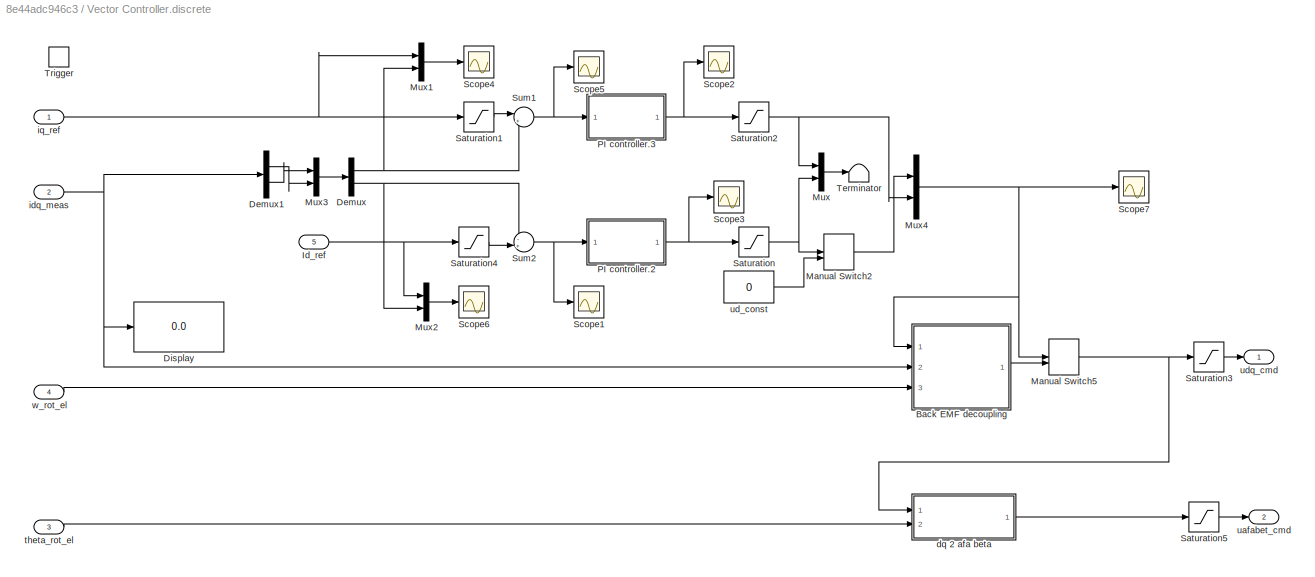
BLOCK [SubSystem] Vector Controller.discrete
  Ports = [5, 2, 0, 1]
  RequestExecContextInheritance = off
BLOCK [SubSystem] Vector Controller.discrete/Back EMF decoupling
  Ports = [3, 1]
  RequestExecContextInheritance = off
BLOCK [Demux] Vector Controller.discrete/Back EMF decoupling/Demux1
  DisplayOption = bar
  Outputs = 2
  Ports = [1, 2]
BLOCK [Demux] Vector Controller.discrete/Back EMF decoupling/Demux2
  DisplayOption = bar
  Outputs = 2
  Ports = [1, 2]
BLOCK [Gain] Vector Controller.discrete/Back EMF decoupling/Gain
  Gain = Lq
  OutDataTypeStr = Inherit: Inherit via internal rule
  ParamDataTypeStr = Inherit: Inherit via internal rule
  SaturateOnIntegerOverflow = off
BLOCK [Gain] Vector Controller.discrete/Back EMF decoupling/Gain1
  Gain = Ld
  OutDataTypeStr = Inherit: Inherit via internal rule
  ParamDataTypeStr = Inherit: Inherit via internal rule
  SaturateOnIntegerOverflow = off
BLOCK [Constant] Vector Controller.discrete/Back EMF decoupling/Lndmpm
  Value = Lndmpm
BLOCK [Mux] Vector Controller.discrete/Back EMF decoupling/Mux2
  DisplayOption = bar
  Inputs = 2
  Ports = [2, 1]
BLOCK [Product] Vector Controller.discrete/Back EMF decoupling/Product
  InputSameDT = off
  OutDataTypeStr = Inherit: Inherit via internal rule
  Ports = [2, 1]
  SaturateOnIntegerOverflow = off
BLOCK [Product] Vector Controller.discrete/Back EMF decoupling/Product1
  InputSameDT = off
  OutDataTypeStr = Inherit: Inherit via internal rule
  Ports = [2, 1]
  SaturateOnIntegerOverflow = off
BLOCK [Product] Vector Controller.discrete/Back EMF decoupling/Product2
  InputSameDT = off
  OutDataTypeStr = Inherit: Inherit via internal rule
  Ports = [2, 1]
  SaturateOnIntegerOverflow = off
BLOCK [Sum] Vector Controller.discrete/Back EMF decoupling/Sum
  IconShape = round
  InputSameDT = off
  Inputs = |+-
  OutDataTypeStr = Inherit: Inherit via internal rule
  Ports = [2, 1]
  SaturateOnIntegerOverflow = off
BLOCK [Sum] Vector Controller.discrete/Back EMF decoupling/Sum1
  IconShape = round
  InputSameDT = off
  Inputs = |++
  OutDataTypeStr = Inherit: Inherit via internal rule
  Ports = [2, 1]
  SaturateOnIntegerOverflow = off
BLOCK [Sum] Vector Controller.discrete/Back EMF decoupling/Sum2
  IconShape = round
  InputSameDT = off
  Inputs = |++
  OutDataTypeStr = Inherit: Inherit via internal rule
  Ports = [2, 1]
  SaturateOnIntegerOverflow = off
BLOCK [Inport] Vector Controller.discrete/Back EMF decoupling/idq_meas
  IconDisplay = Port number
  Port = 2
BLOCK [Outport] Vector Controller.discrete/Back EMF decoupling/udq_cmd
  IconDisplay = Port number
  VectorParamsAs1DForOutWhenUnconnected = off
BLOCK [Inport] Vector Controller.discrete/Back EMF decoupling/vdq,PI
  IconDisplay = Port number
BLOCK [Inport] Vector Controller.discrete/Back EMF decoupling/wr
  IconDisplay = Port number
  Port = 3
BLOCK [Demux] Vector Controller.discrete/Demux
  DisplayOption = bar
  Outputs = 2
  Ports = [1, 2]
BLOCK [Demux] Vector Controller.discrete/Demux1
  DisplayOption = bar
  Outputs = 2
  Ports = [1, 2]
BLOCK [Display] Vector Controller.discrete/Display
  Decimation = 1
  Ports = [1]
BLOCK [Inport] Vector Controller.discrete/Id_ref
  IconDisplay = Port number
  Port = 5
BLOCK [ManualSwitch] Vector Controller.discrete/Manual Switch2
BLOCK [ManualSwitch] Vector Controller.discrete/Manual Switch5
BLOCK [Mux] Vector Controller.discrete/Mux
  DisplayOption = bar
  Inputs = 2
  Ports = [2, 1]
BLOCK [Mux] Vector Controller.discrete/Mux1
  DisplayOption = bar
  Inputs = 2
  Ports = [2, 1]
BLOCK [Mux] Vector Controller.discrete/Mux2
  DisplayOption = bar
  Inputs = 2
  Ports = [2, 1]
BLOCK [Mux] Vector Controller.discrete/Mux3
  DisplayOption = bar
  Inputs = 2
  Ports = [2, 1]
BLOCK [Mux] Vector Controller.discrete/Mux4
  DisplayOption = bar
  Inputs = 2
  Ports = [2, 1]
BLOCK [SubSystem] Vector Controller.discrete/PI controller.2
  Ports = [1, 1]
  RequestExecContextInheritance = off
BLOCK [DiscreteIntegrator] Vector Controller.discrete/PI controller.2/Discrete-Time Integrator
  ICPrevOutput = DiscIntNeverNeededParam
  ICPrevScaledInput = DiscIntNeverNeededParam
  Ports = [1, 1]
  SampleTime = -1
BLOCK [Gain] Vector Controller.discrete/PI controller.2/Kp
  Gain = Kp2
  OutDataTypeStr = Inherit: Inherit via internal rule
  ParamDataTypeStr = Inherit: Inherit via internal rule
  SaturateOnIntegerOverflow = off
BLOCK [Sum] Vector Controller.discrete/PI controller.2/Sum1
  IconShape = round
  InputSameDT = off
  Inputs = |++
  OutDataTypeStr = Inherit: Inherit via internal rule
  Ports = [2, 1]
  SaturateOnIntegerOverflow = off
BLOCK [Inport] Vector Controller.discrete/PI controller.2/id_err
  IconDisplay = Port number
BLOCK [Gain] Vector Controller.discrete/PI controller.2/ki
  Gain = Ki2
  OutDataTypeStr = Inherit: Inherit via internal rule
  ParamDataTypeStr = Inherit: Inherit via internal rule
  SaturateOnIntegerOverflow = off
BLOCK [Outport] Vector Controller.discrete/PI controller.2/vd
  IconDisplay = Port number
  VectorParamsAs1DForOutWhenUnconnected = off
BLOCK [SubSystem] Vector Controller.discrete/PI controller.3
  Ports = [1, 1]
  RequestExecContextInheritance = off
BLOCK [DiscreteIntegrator] Vector Controller.discrete/PI controller.3/Discrete-Time Integrator
  ICPrevOutput = DiscIntNeverNeededParam
  ICPrevScaledInput = DiscIntNeverNeededParam
  Ports = [1, 1]
  SampleTime = -1
BLOCK [Gain] Vector Controller.discrete/PI controller.3/Kp
  Gain = 8
  OutDataTypeStr = Inherit: Inherit via internal rule
  ParamDataTypeStr = Inherit: Inherit via internal rule
  SaturateOnIntegerOverflow = off
BLOCK [Sum] Vector Controller.discrete/PI controller.3/Sum1
  IconShape = round
  InputSameDT = off
  Inputs = |++
  OutDataTypeStr = Inherit: Inherit via internal rule
  Ports = [2, 1]
  SaturateOnIntegerOverflow = off
BLOCK [Inport] Vector Controller.discrete/PI controller.3/iq_err
  IconDisplay = Port number
BLOCK [Gain] Vector Controller.discrete/PI controller.3/ki
  Gain = 5000
  OutDataTypeStr = Inherit: Inherit via internal rule
  ParamDataTypeStr = Inherit: Inherit via internal rule
  SaturateOnIntegerOverflow = off
BLOCK [Outport] Vector Controller.discrete/PI controller.3/vq
  IconDisplay = Port number
  VectorParamsAs1DForOutWhenUnconnected = off
BLOCK [Saturate] Vector Controller.discrete/Saturation
  InputPortMap = u0
  LowerLimit = -Vph
  Ports = [1, 1]
  UpperLimit = Vph
BLOCK [Saturate] Vector Controller.discrete/Saturation1
  InputPortMap = u0
  LowerLimit = -Iphmax
  Ports = [1, 1]
  UpperLimit = Iphmax
BLOCK [Saturate] Vector Controller.discrete/Saturation2
  InputPortMap = u0
  LowerLimit = -Vph
  Ports = [1, 1]
  UpperLimit = Vph
BLOCK [Saturate] Vector Controller.discrete/Saturation3
  InputPortMap = u0
  LowerLimit = -Vph
  Ports = [1, 1]
  UpperLimit = Vph
BLOCK [Saturate] Vector Controller.discrete/Saturation4
  InputPortMap = u0
  LowerLimit = -Iphmax
  Ports = [1, 1]
  UpperLimit = Iphmax
BLOCK [Saturate] Vector Controller.discrete/Saturation5
  InputPortMap = u0
  LowerLimit = -Vph
  Ports = [1, 1]
  UpperLimit = Vph
BLOCK [Scope] Vector Controller.discrete/Scope1
  Floating = off
  NumInputPorts = 1
  Ports = [1]
  ScopeSpecificationString = C++SS(StrPVP('Location','[1, 48, 1367, 727]'),StrPVP('Open','off'),StrPVP('ZoomMode','xonly'),MxPVP('AxesTitles',54,'struct(''axes1'',''%<SignalLabel>'')'),StrPVP('ShowLegends','off'),StrPVP('SaveName','ScopeData18'),StrPVP('DataFormat','StructureWithTime'),StrPVP('LimitDataPoints','off'),StrPVP('BlockParamSampleTime','0'),StrPVP('Decimation','1'),StrPVP('BlockParamSampleInput','off'))
BLOCK [Scope] Vector Controller.discrete/Scope2
  Floating = off
  NumInputPorts = 1
  Ports = [1]
  ScopeSpecificationString = C++SS(StrPVP('Location','[201, 176, 851, 571]'),StrPVP('Open','off'),StrPVP('ZoomMode','xonly'),MxPVP('AxesTitles',54,'struct(''axes1'',''%<SignalLabel>'')'),MxPVP('ScopeGraphics',57,'struct(''FigureColor'',''[0.5 0.5 0.5]'',''AxesColor'',''[0 0 0]'',''AxesTickColor'',''[1 1 1]'',''LineColors'',''[1 1 0;1 0 1;0 1 1;1 0 0;0 1 0;0 0 1]'',''LineStyles'',''-|-|-|-|-|-'',''LineWidths'',''[0.5 0.5 0.5 0...<+344ch>
BLOCK [Scope] Vector Controller.discrete/Scope3
  Floating = off
  NumInputPorts = 1
  Ports = [1]
  ScopeSpecificationString = C++SS(StrPVP('Location','[92, 329, 742, 724]'),StrPVP('Open','off'),StrPVP('ZoomMode','xonly'),MxPVP('AxesTitles',54,'struct(''axes1'',''%<SignalLabel>'')'),MxPVP('ScopeGraphics',57,'struct(''FigureColor'',''[0.5 0.5 0.5]'',''AxesColor'',''[0 0 0]'',''AxesTickColor'',''[1 1 1]'',''LineColors'',''[1 1 0;1 0 1;0 1 1;1 0 0;0 1 0;0 0 1]'',''LineStyles'',''-|-|-|-|-|-'',''LineWidths'',''[0.5 0.5 0.5 0....<+299ch>
BLOCK [Scope] Vector Controller.discrete/Scope4
  Floating = off
  NumInputPorts = 1
  Ports = [1]
  ScopeSpecificationString = Simulink.scopes.TimeScopeBlockCfg('CurrentConfiguration', extmgr.ConfigurationSet(extmgr.Configuration('Core','General UI',true),extmgr.Configuration('Core','Source UI',true),extmgr.Configuration('Sources','WiredSimulink',true,'DataLoggingVariableName','ScopeData5','DataLoggingSaveFormat','StructureWithTime','DataLoggingDecimation','1','DataLoggingDecimateData',true),extmgr.Configuration('Visuals'...<+1791ch>
BLOCK [Scope] Vector Controller.discrete/Scope5
  Floating = off
  NumInputPorts = 1
  Ports = [1]
  ScopeSpecificationString = C++SS(StrPVP('Location','[21, 399, 671, 794]'),StrPVP('Open','off'),StrPVP('ZoomMode','xonly'),MxPVP('AxesTitles',54,'struct(''axes1'',''%<SignalLabel>'')'),MxPVP('ScopeGraphics',57,'struct(''FigureColor'',''[0.5 0.5 0.5]'',''AxesColor'',''[0 0 0]'',''AxesTickColor'',''[1 1 1]'',''LineColors'',''[1 1 0;1 0 1;0 1 1;1 0 0;0 1 0;0 0 1]'',''LineStyles'',''-|-|-|-|-|-'',''LineWidths'',''[0.5 0.5 0.5 0....<+299ch>
BLOCK [Scope] Vector Controller.discrete/Scope6
  Floating = off
  NumInputPorts = 1
  Ports = [1]
  ScopeSpecificationString = Simulink.scopes.TimeScopeBlockCfg('CurrentConfiguration', extmgr.ConfigurationSet(extmgr.Configuration('Core','General UI',true),extmgr.Configuration('Core','Source UI',true),extmgr.Configuration('Sources','WiredSimulink',true,'DataLoggingVariableName','ScopeData8','DataLoggingSaveFormat','StructureWithTime','DataLoggingDecimation','1','DataLoggingDecimateData',true),extmgr.Configuration('Visuals'...<+1802ch>
BLOCK [Scope] Vector Controller.discrete/Scope7
  Floating = off
  NumInputPorts = 1
  Ports = [1]
  ScopeSpecificationString = C++SS(StrPVP('Location','[350, 309, 931, 666]'),StrPVP('Open','off'),MxPVP('AxesTitles',54,'struct(''axes1'',''%<SignalLabel>'')'),StrPVP('ShowLegends','off'),StrPVP('YMin','-10'),StrPVP('YMax','17.5'),StrPVP('SaveName','ScopeData30'),StrPVP('DataFormat','StructureWithTime'),StrPVP('LimitDataPoints','off'),StrPVP('BlockParamSampleTime','0'),StrPVP('Decimation','1'),StrPVP('BlockParamSampleInput','...<+6ch>
BLOCK [Sum] Vector Controller.discrete/Sum1
  IconShape = round
  InputSameDT = off
  Inputs = |+-
  OutDataTypeStr = Inherit: Inherit via internal rule
  Ports = [2, 1]
  SaturateOnIntegerOverflow = off
BLOCK [Sum] Vector Controller.discrete/Sum2
  IconShape = round
  InputSameDT = off
  Inputs = -+|
  OutDataTypeStr = Inherit: Inherit via internal rule
  Ports = [2, 1]
  SaturateOnIntegerOverflow = off
BLOCK [Terminator] Vector Controller.discrete/Terminator
BLOCK [TriggerPort] Vector Controller.discrete/Trigger
  Ports = []
  StatesWhenEnabling = held
  VariantControl = (inherit)
BLOCK [SubSystem] Vector Controller.discrete/dq 2 afa beta
  Ports = [2, 1]
  RequestExecContextInheritance = off
BLOCK [Mux] Vector Controller.discrete/dq 2 afa beta/Mux1
  DisplayOption = bar
  Inputs = 2
  Ports = [2, 1]
BLOCK [Mux] Vector Controller.discrete/dq 2 afa beta/Mux2
  DisplayOption = bar
  Inputs = 2
  Ports = [2, 1]
BLOCK [Outport] Vector Controller.discrete/dq 2 afa beta/afa beta
  IconDisplay = Port number
  VectorParamsAs1DForOutWhenUnconnected = off
BLOCK [Inport] Vector Controller.discrete/dq 2 afa beta/dq
  IconDisplay = Port number
BLOCK [Fcn] Vector Controller.discrete/dq 2 afa beta/dq2afa
  Expr = u(1)*cos(u(3))-u(2)*sin(u(3))
BLOCK [Fcn] Vector Controller.discrete/dq 2 afa beta/dq2beta
  Expr = u(1)*sin(u(3))+u(2)*cos(u(3))
BLOCK [Inport] Vector Controller.discrete/dq 2 afa beta/theta
  IconDisplay = Port number
  Port = 2
BLOCK [Inport] Vector Controller.discrete/idq_meas
  IconDisplay = Port number
  Port = 2
BLOCK [Inport] Vector Controller.discrete/iq_ref
  IconDisplay = Port number
BLOCK [Inport] Vector Controller.discrete/theta_rot_el
  IconDisplay = Port number
  Port = 3
BLOCK [Outport] Vector Controller.discrete/uafabet_cmd
  IconDisplay = Port number
  Port = 2
  VectorParamsAs1DForOutWhenUnconnected = off
BLOCK [Constant] Vector Controller.discrete/ud_const
  Value = 0
BLOCK [Outport] Vector Controller.discrete/udq_cmd
  IconDisplay = Port number
  VectorParamsAs1DForOutWhenUnconnected = off
BLOCK [Inport] Vector Controller.discrete/w_rot_el
  IconDisplay = Port number
  Port = 4
BLOCK [Fcn] adj. agl
  Expr = u(1)+(u(1) < 0)*2*pi
BLOCK [Fcn] adj. agl1
  Expr = u(1)+(u(1) < 0)*360
BLOCK [Fcn] adj. agl2
  Expr = u(1)-(u(1) > 180)*360
BLOCK [Fcn] adj. agl3
  Expr = u(1)+(u(1) < 0)*2*pi
BLOCK [SubSystem] afabet 2 abc
  Ports = [1, 1]
  RequestExecContextInheritance = off
BLOCK [Constant] afabet 2 abc/Constant
  Value = 0
BLOCK [Mux] afabet 2 abc/Mux1
  DisplayOption = bar
  Inputs = 2
  Ports = [2, 1]
BLOCK [Mux] afabet 2 abc/Mux2
  DisplayOption = bar
  Inputs = 3
  Ports = [3, 1]
BLOCK [Outport] afabet 2 abc/abc
  IconDisplay = Port number
  VectorParamsAs1DForOutWhenUnconnected = off
BLOCK [Inport] afabet 2 abc/afabet
  IconDisplay = Port number
BLOCK [Fcn] afabet 2 abc/qd2a
  Expr = u(1)+u(3)
BLOCK [Fcn] afabet 2 abc/qd2b
  Expr = u(1)*cos(2/3*pi)+u(2)*sin(2/3*pi)+u(3)
BLOCK [Fcn] afabet 2 abc/qd2c
  Expr = u(1)*cos(2/3*pi)-u(2)*sin(2/3*pi)+u(3)
BLOCK [SubSystem] di calculation
  Ports = [1, 2, 0, 1]
  RequestExecContextInheritance = off
  TreatAsAtomicUnit = on
BLOCK [Delay] di calculation/Delay2
  DelayLength = 1
  InputPortMap = u0
  Ports = [1, 1]
BLOCK [Delay] di calculation/Delay3
  DelayLength = 1
  InputPortMap = u0
  Ports = [1, 1]
BLOCK [Demux] di calculation/Demux
  DisplayOption = bar
  Outputs = 2
  Ports = [1, 2]
BLOCK [Outport] di calculation/Out1
  IconDisplay = Port number
  VectorParamsAs1DForOutWhenUnconnected = off
BLOCK [Outport] di calculation/Out2
  IconDisplay = Port number
  Port = 2
  VectorParamsAs1DForOutWhenUnconnected = off
BLOCK [Scope] di calculation/Scope
  Floating = off
  NumInputPorts = 2
  Ports = [2]
  ScopeSpecificationString = Simulink.scopes.TimeScopeBlockCfg('CurrentConfiguration', extmgr.ConfigurationSet(extmgr.Configuration('Core','General UI',true),extmgr.Configuration('Core','Source UI',true),extmgr.Configuration('Sources','WiredSimulink',true,'DataLoggingVariableName','ScopeData9'),extmgr.Configuration('Visuals','Time Domain',true,'SerializedDisplays',{struct('MinYLimReal','-0.67737','MaxYLimReal','0.6456','YLabe...<+1392ch>
BLOCK [Sum] di calculation/Subtract
  InputSameDT = off
  Inputs = +-
  OutDataTypeStr = Inherit: Inherit via internal rule
  Ports = [2, 1]
  SaturateOnIntegerOverflow = off
BLOCK [Sum] di calculation/Subtract1
  InputSameDT = off
  Inputs = +-
  OutDataTypeStr = Inherit: Inherit via internal rule
  Ports = [2, 1]
  SaturateOnIntegerOverflow = off
BLOCK [TriggerPort] di calculation/Trigger
  Ports = []
  StatesWhenEnabling = held
  VariantControl = Variant
BLOCK [Inport] di calculation/iab
  IconDisplay = Port number
BLOCK [Gain] el2mec
  Gain = 1/Npp
  OutDataTypeStr = Inherit: Inherit via internal rule
  ParamDataTypeStr = Inherit: Inherit via internal rule
  SaturateOnIntegerOverflow = off
BLOCK [From] iqd_meas.1
  CloseFcn = tagdialog Close
  GotoTag = Omega_rot_el
  TagVisibility = global
BLOCK [From] iqd_meas.10
  CloseFcn = tagdialog Close
  GotoTag = iafabet_meas
  TagVisibility = global
BLOCK [Goto] iqd_meas.11
  GotoTag = vabc_cmd_FOC
  TagVisibility = global
BLOCK [From] iqd_meas.12
  CloseFcn = tagdialog Close
  GotoTag = theta_est_pulse
  TagVisibility = global
BLOCK [Goto] iqd_meas.13
  GotoTag = Tload_cmd
BLOCK [From] iqd_meas.14
  CloseFcn = tagdialog Close
  GotoTag = Tload_cmd
BLOCK [Goto] iqd_meas.15
  GotoTag = Te_meas
BLOCK [Goto] iqd_meas.16
  GotoTag = iabc_meas
  TagVisibility = global
BLOCK [Goto] iqd_meas.17
  GotoTag = vafabet_cmd_FOC
  TagVisibility = global
BLOCK [From] iqd_meas.18
  CloseFcn = tagdialog Close
  GotoTag = vafabet_cmd_FOC
  TagVisibility = global
BLOCK [From] iqd_meas.19
  CloseFcn = tagdialog Close
  GotoTag = omega_est_pulse
  TagVisibility = global
BLOCK [From] iqd_meas.2
  CloseFcn = tagdialog Close
  GotoTag = idq_meas
  TagVisibility = global
BLOCK [Goto] iqd_meas.20
  GotoTag = Flkg_abc
BLOCK [From] iqd_meas.21
  CloseFcn = tagdialog Close
  GotoTag = vafabet_cmd_FOC
  TagVisibility = global
BLOCK [From] iqd_meas.22
  CloseFcn = tagdialog Close
  GotoTag = iafabet_meas
  TagVisibility = global
BLOCK [Goto] iqd_meas.27
  GotoTag = Flkg_afabet
BLOCK [From] iqd_meas.3
  CloseFcn = tagdialog Close
  GotoTag = theta_rot_el
  TagVisibility = global
BLOCK [Goto] iqd_meas.34
  GotoTag = the_rot_est
BLOCK [From] iqd_meas.37
  CloseFcn = tagdialog Close
  GotoTag = theta_rot_el
  TagVisibility = global
BLOCK [From] iqd_meas.38
  CloseFcn = tagdialog Close
  GotoTag = the_rot_est
BLOCK [From] iqd_meas.39
  CloseFcn = tagdialog Close
  GotoTag = theta_rot_el_meas
  TagVisibility = global
BLOCK [Goto] iqd_meas.4
  GotoTag = vdq_cmd
BLOCK [Goto] iqd_meas.5
  GotoTag = didiq_dt
BLOCK [From] iqd_meas.6
  CloseFcn = tagdialog Close
  GotoTag = n_rot_mec
  TagVisibility = global
BLOCK [Goto] iqd_meas.7
  GotoTag = Iq_command
BLOCK [Goto] iqd_meas.8
  GotoTag = Omega_rot_el
  TagVisibility = global
BLOCK [From] iqd_meas.9
  CloseFcn = tagdialog Close
  GotoTag = Iq_command
BLOCK [SubSystem] n_ref
  ClipboardFcn = sigbuilder_block('clipboard');
  CloseFcn = sigbuilder_block('close');
  ContinueFcn = sigbuilder_block('continue')
  CopyFcn = sigbuilder_block('copy');
  DeleteFcn = sigbuilder_block('delete');
  LoadFcn = sigbuilder_block('load');
  MaskHideContents = on
  ModelCloseFcn = sigbuilder_block('modelClose');
  NameChangeFcn = sigbuilder_block('namechange');
  OpenFcn = sigbuilder_block('open',[72.75 116.25 550.5 363.75 ]);
  PauseFcn = sigbuilder_block('pause')
  Ports = [0, 1]
  PreSaveFcn = sigbuilder_block('preSave');
  RequestExecContextInheritance = off
  StartFcn = sigbuilder_block('start');
  StopFcn = sigbuilder_block('stop');
  Tag = STV Subsys
BLOCK [Demux] n_ref/Demux
  Outputs = 1
  Ports = [1, 1]
  Tag = STV Demux
BLOCK [FromWorkspace] n_ref/FromWs
  SampleTime = 0
  Tag = STV FromWs
  VariableName = tuvar
  ZeroCross = on
BLOCK [Outport] n_ref/n
  IconDisplay = Port number
  Tag = STV Outport
  VectorParamsAs1DForOutWhenUnconnected = off
BLOCK [Gain] rad2rpm
  Gain = 30/pi
  OutDataTypeStr = Inherit: Inherit via internal rule
  ParamDataTypeStr = Inherit: Inherit via internal rule
  SaturateOnIntegerOverflow = off
BLOCK [Gain] swtich1
  Gain = 180/pi
  OutDataTypeStr = Inherit: Inherit via internal rule
  ParamDataTypeStr = Inherit: Inherit via internal rule
  SaturateOnIntegerOverflow = off
BLOCK [Goto] theta_rot_el.1
  GotoTag = theta_rot_el_meas
  TagVisibility = global
BLOCK [Goto] theta_rot_el.2
  GotoTag = n_rot_el
  TagVisibility = global
BLOCK [Goto] theta_rot_el.3
  GotoTag = theta_rot_el
  TagVisibility = global
BLOCK [Goto] theta_rot_el.4
  GotoTag = n_rot_mec
  TagVisibility = global
ANNOTATION (root): FOC_PMSM
ANNOTATION PMSM motor: Lnd_d
ANNOTATION PMSM motor: Lnd_q
ANNOTATION PMSM motor: el. rotor speed
ANNOTATION Rotor Pos. estimation/Cal. stator flux linkage/MinMax detection/Max. Det/Counter.1/Conter with enable: High input enables counting Low input set the SR (output 1) To be ready for next start of counting
ANNOTATION Rotor Pos. estimation/Cal. stator flux linkage/MinMax detection/Max. Det/Counter.1/Conter with enable: Max. counter not reached - 0 reached, give a pulse, width determined by the 1/z
ANNOTATION Rotor Pos. estimation/Cal. stator flux linkage/MinMax detection/Max. Det/Counter.2/Conter with enable: High input enables counting Low input set the SR (output 1) To be ready for next start of counting
ANNOTATION Rotor Pos. estimation/Cal. stator flux linkage/MinMax detection/Max. Det/Counter.2/Conter with enable: Max. counter not reached - 0 reached, give a pulse, width determined by the 1/z
ANNOTATION Rotor Pos. estimation/Cal. stator flux linkage/MinMax detection/Max. Det/Counter.2/Rising edge gen.: High input enables counting Low input set the SR (output 1) To be ready for next start of counting
ANNOTATION Rotor Pos. estimation/Cal. stator flux linkage/MinMax detection/Max. Det/Counter.2/Rising edge gen.: Max. counter not reached - 0 reached, give a pulse, width determined by the 1/z
ANNOTATION Rotor Pos. estimation/Cal. stator flux linkage/MinMax detection/Min. Det/Counter.1/Conter with enable: High input enables counting Low input set the SR (output 1) To be ready for next start of counting
ANNOTATION Rotor Pos. estimation/Cal. stator flux linkage/MinMax detection/Min. Det/Counter.1/Conter with enable: Max. counter not reached - 0 reached, give a pulse, width determined by the 1/z
ANNOTATION Rotor Pos. estimation/Cal. stator flux linkage/MinMax detection/Min. Det/Counter.2/Conter with enable: High input enables counting Low input set the SR (output 1) To be ready for next start of counting
ANNOTATION Rotor Pos. estimation/Cal. stator flux linkage/MinMax detection/Min. Det/Counter.2/Conter with enable: Max. counter not reached - 0 reached, give a pulse, width determined by the 1/z
ANNOTATION Rotor Pos. estimation/Cal. stator flux linkage/MinMax detection/Min. Det/Counter.2/Rising edge gen.: High input enables counting Low input set the SR (output 1) To be ready for next start of counting
ANNOTATION Rotor Pos. estimation/Cal. stator flux linkage/MinMax detection/Min. Det/Counter.2/Rising edge gen.: Max. counter not reached - 0 reached, give a pulse, width determined by the 1/z
ANNOTATION Rotor Pos. estimation/Cal. stator flux linkage1/MinMax detection/Max. Det/Counter.1/Conter with enable: High input enables counting Low input set the SR (output 1) To be ready for next start of counting
ANNOTATION Rotor Pos. estimation/Cal. stator flux linkage1/MinMax detection/Max. Det/Counter.1/Conter with enable: Max. counter not reached - 0 reached, give a pulse, width determined by the 1/z
ANNOTATION Rotor Pos. estimation/Cal. stator flux linkage1/MinMax detection/Max. Det/Counter.2/Conter with enable: High input enables counting Low input set the SR (output 1) To be ready for next start of counting
ANNOTATION Rotor Pos. estimation/Cal. stator flux linkage1/MinMax detection/Max. Det/Counter.2/Conter with enable: Max. counter not reached - 0 reached, give a pulse, width determined by the 1/z
ANNOTATION Rotor Pos. estimation/Cal. stator flux linkage1/MinMax detection/Max. Det/Counter.2/Rising edge gen.: High input enables counting Low input set the SR (output 1) To be ready for next start of counting
ANNOTATION Rotor Pos. estimation/Cal. stator flux linkage1/MinMax detection/Max. Det/Counter.2/Rising edge gen.: Max. counter not reached - 0 reached, give a pulse, width determined by the 1/z
ANNOTATION Rotor Pos. estimation/Cal. stator flux linkage1/MinMax detection/Min. Det/Counter.1/Conter with enable: High input enables counting Low input set the SR (output 1) To be ready for next start of counting
ANNOTATION Rotor Pos. estimation/Cal. stator flux linkage1/MinMax detection/Min. Det/Counter.1/Conter with enable: Max. counter not reached - 0 reached, give a pulse, width determined by the 1/z
ANNOTATION Rotor Pos. estimation/Cal. stator flux linkage1/MinMax detection/Min. Det/Counter.2/Conter with enable: High input enables counting Low input set the SR (output 1) To be ready for next start of counting
ANNOTATION Rotor Pos. estimation/Cal. stator flux linkage1/MinMax detection/Min. Det/Counter.2/Conter with enable: Max. counter not reached - 0 reached, give a pulse, width determined by the 1/z
ANNOTATION Rotor Pos. estimation/Cal. stator flux linkage1/MinMax detection/Min. Det/Counter.2/Rising edge gen.: High input enables counting Low input set the SR (output 1) To be ready for next start of counting
ANNOTATION Rotor Pos. estimation/Cal. stator flux linkage1/MinMax detection/Min. Det/Counter.2/Rising edge gen.: Max. counter not reached - 0 reached, give a pulse, width determined by the 1/z
LINE Const. iq_ref:1 -> Manual Switch1:2
LINE Constant1:1 -> Vector Controller.discrete:5
LINE Constant2:1 -> Multiport Switch:3
LINE Constant:1 -> Manual Switch3:2
NET Current 3//2 transformation/Delay:1 -> Current 3//2 transformation/abc 2 dq:2, Current 3//2 transformation/dq 2 afa beta:2
LINE Current 3//2 transformation/Detect peak/Clock:1 -> Current 3//2 transformation/Detect peak/Compare To Constant:1
LINE Current 3//2 transformation/Detect peak/Compare To Constant:1 -> Current 3//2 transformation/Detect peak/Product:1
LINE Current 3//2 transformation/Detect peak/Demux1:1 -> Current 3//2 transformation/Detect peak/Product:2
LINE Current 3//2 transformation/Detect peak/Demux1:2 -> Current 3//2 transformation/Detect peak/Terminator1:1
LINE Current 3//2 transformation/Detect peak/Demux1:3 -> Current 3//2 transformation/Detect peak/Terminator:1
NET Current 3//2 transformation/Detect peak/MinMax:1 -> Current 3//2 transformation/Detect peak/Peak:1, Current 3//2 transformation/Detect peak/Unit Delay:1
LINE Current 3//2 transformation/Detect peak/Product:1 -> Current 3//2 transformation/Detect peak/MinMax:1
LINE Current 3//2 transformation/Detect peak/Unit Delay:1 -> Current 3//2 transformation/Detect peak/MinMax:2
LINE Current 3//2 transformation/Detect peak/iabc:1 -> Current 3//2 transformation/Detect peak/Demux1:1
LINE Current 3//2 transformation/Detect peak:1 -> Current 3//2 transformation/Display:1
NET Current 3//2 transformation/From:1 -> Current 3//2 transformation/Delay:1, Current 3//2 transformation/Display1:1
NET Current 3//2 transformation/Manual Switch7:1 -> Current 3//2 transformation/Detect peak:1, Current 3//2 transformation/abc 2 dq:1
NET Current 3//2 transformation/abc 2 dq/Mux1:1 -> Current 3//2 transformation/abc 2 dq/abc2d:1, Current 3//2 transformation/abc 2 dq/abc2q:1
LINE Current 3//2 transformation/abc 2 dq/Mux2:1 -> Current 3//2 transformation/abc 2 dq/dq:1
LINE Current 3//2 transformation/abc 2 dq/abc2d:1 -> Current 3//2 transformation/abc 2 dq/Mux2:1
LINE Current 3//2 transformation/abc 2 dq/abc2q:1 -> Current 3//2 transformation/abc 2 dq/Mux2:2
LINE Current 3//2 transformation/abc 2 dq/abc:1 -> Current 3//2 transformation/abc 2 dq/Mux1:1
LINE Current 3//2 transformation/abc 2 dq/theta:1 -> Current 3//2 transformation/abc 2 dq/Mux1:2
NET Current 3//2 transformation/abc 2 dq:1 -> Current 3//2 transformation/Scope6:1, Current 3//2 transformation/dq 2 afa beta:1, Current 3//2 transformation/iqd_meas.1:1
NET Current 3//2 transformation/dq 2 afa beta/Mux1:1 -> Current 3//2 transformation/dq 2 afa beta/dq2afa:1, Current 3//2 transformation/dq 2 afa beta/dq2beta:1
LINE Current 3//2 transformation/dq 2 afa beta/Mux2:1 -> Current 3//2 transformation/dq 2 afa beta/afa beta:1
LINE Current 3//2 transformation/dq 2 afa beta/dq2afa:1 -> Current 3//2 transformation/dq 2 afa beta/Mux2:1
LINE Current 3//2 transformation/dq 2 afa beta/dq2beta:1 -> Current 3//2 transformation/dq 2 afa beta/Mux2:2
LINE Current 3//2 transformation/dq 2 afa beta/dq:1 -> Current 3//2 transformation/dq 2 afa beta/Mux1:1
LINE Current 3//2 transformation/dq 2 afa beta/theta:1 -> Current 3//2 transformation/dq 2 afa beta/Mux1:2
NET Current 3//2 transformation/dq 2 afa beta:1 -> Current 3//2 transformation/Scope14:1, Current 3//2 transformation/iqd_meas.7:1
NET Current 3//2 transformation/iqd_meas.21:1 -> Current 3//2 transformation/Manual Switch7:1, Current 3//2 transformation/Manual Switch7:2
LINE Demux1:1 -> Mux3:1
LINE Demux1:2 -> Mux3:2
LINE From1:1 -> Pulse injection:1
NET From2:1 -> Mux:2, Sum:2
LINE From3:1 -> Vector Controller.discrete:3
LINE From4:1 -> Vector Controller.discrete:4
LINE From5:1 -> PLL:1
LINE From6:1 -> PLL:2
LINE From7:1 -> PLL:trigger
LINE From:1 -> PMSM motor:1
LINE Gain2:1 -> Sum1:2
LINE Gain:1 -> Manual Switch3:1
LINE Load Selection:1 -> Multiport Switch:1
NET Load torque/Add:1 -> Load torque/Scope2:1, Load torque/T_load:1
LINE Load torque/Step Load torque 1:1 -> Load torque/Add:2
LINE Load torque/Step Load torque2:1 -> Load torque/Add:3
LINE Load torque/Tload:1 -> Load torque/Add:1
NET Load torque:1 -> Gain2:1, Multiport Switch:4
LINE Manual Switch1:1 -> Vector Controller.discrete:1
NET Manual Switch3:1 -> Mux:1, Sum:1
LINE Manual Switch5:1 -> Multiport Switch1:1
LINE Multiport Switch1:1 -> theta_rot_el.3:1
LINE Multiport Switch:1 -> iqd_meas.13:1
LINE Mux1:1 -> Scope3:1
LINE Mux2:1 -> Scope3:2
LINE Mux3:1 -> afabet 2 abc:1
LINE Mux9:1 -> Scope2:1
LINE Mux:1 -> Scope6:1
LINE PLL/Constant2:1 -> PLL/Relational Operator2:2
LINE PLL/Cos:1 -> PLL/Multiply:1
NET PLL/Discrete-Time Integrator1:1 -> PLL/Gain1:1, PLL/theta_est:1
NET PLL/Discrete-Time Integrator:1 -> PLL/Cos:1, PLL/Sin:1
LINE PLL/Gain1:1 -> PLL/Relational Operator2:1
LINE PLL/Input1:1 -> PLL/Multiply:2
LINE PLL/Input2:1 -> PLL/Multiply1:1
LINE PLL/Multiply1:1 -> PLL/Sum:2
LINE PLL/Multiply:1 -> PLL/Sum:1
LINE PLL/PI PLL/Discrete-Time Integrator:1 -> PLL/PI PLL/Sum1:2
LINE PLL/PI PLL/Kp:1 -> PLL/PI PLL/Sum1:1
LINE PLL/PI PLL/Sum1:1 -> PLL/PI PLL/omega_est:1
LINE PLL/PI PLL/ki:1 -> PLL/PI PLL/Discrete-Time Integrator:1
NET PLL/PI PLL/theta_error:1 -> PLL/PI PLL/Kp:1, PLL/PI PLL/ki:1
NET PLL/PI PLL:1 -> PLL/Discrete-Time Integrator1:1, PLL/Discrete-Time Integrator:1, PLL/omega_est:1, PLL/rad2rpm:1
LINE PLL/Relational Operator2:1 -> PLL/Discrete-Time Integrator1:2
LINE PLL/Scope/ InputMux /Convert1:1 -> PLL/Scope/ InputMux /Mux:1
LINE PLL/Scope/ InputMux /In1:1 -> PLL/Scope/ InputMux /Convert1:1
LINE PLL/Scope/ InputMux /Mux:1 -> PLL/Scope/ InputMux /Out:1
LINE PLL/Scope/ InputMux :1 -> PLL/Scope/ S-Function :1
LINE PLL/Scope/1:1 -> PLL/Scope/ InputMux :1
LINE PLL/Sin:1 -> PLL/Multiply1:2
NET PLL/Sum:1 -> PLL/PI PLL:1, PLL/Scope:1
LINE PLL/el2mec:1 -> PLL/n_mech_est:1
LINE PLL/rad2rpm:1 -> PLL/el2mec:1
LINE PLL:1 -> Goto5:1
LINE PLL:2 -> Goto2:1
LINE PLL:3 -> Goto3:1
LINE PMSM motor/1//J:1 -> PMSM motor/Int.6:1
NET PMSM motor/1//Ld.1:1 -> PMSM motor/Mux:1, PMSM motor/id.1:1
LINE PMSM motor/1//Ld.2:1 -> PMSM motor/Mux2:1
NET PMSM motor/1//Lq.1:1 -> PMSM motor/Mux:2, PMSM motor/iq.1:1
LINE PMSM motor/1//Lq.2:1 -> PMSM motor/Mux2:2
LINE PMSM motor/3//2Npp:1 -> PMSM motor/Te.2:1
LINE PMSM motor/Add:1 -> PMSM motor/3//2Npp:1
LINE PMSM motor/Clock:1 -> PMSM motor/qd2a:1
LINE PMSM motor/Const. Omeg:1 -> PMSM motor/Manual Switch:1
LINE PMSM motor/Constant2:1 -> PMSM motor/Relational Operator2:2
LINE PMSM motor/Demux:1 -> PMSM motor/vd:1
LINE PMSM motor/Demux:2 -> PMSM motor/vq:1
NET PMSM motor/Gain1:1 -> PMSM motor/Relational Operator2:1, PMSM motor/Theta.el1:1
LINE PMSM motor/Ini. rotor pos. (rad):1 -> PMSM motor/Multiport Switch:2
NET PMSM motor/Int.1:1 -> PMSM motor/1//Lq.1:1, PMSM motor/Lndq:1, PMSM motor/Prod.2:2, PMSM motor/Scope8:1
NET PMSM motor/Int.2:1 -> PMSM motor/Lndd:1, PMSM motor/Prod.1:2, PMSM motor/Scope6:1, PMSM motor/Sum5:2
LINE PMSM motor/Int.3:1 -> PMSM motor/Scope2:1
LINE PMSM motor/Int.6:1 -> PMSM motor/Npp:1
NET PMSM motor/Integrator1:1 -> PMSM motor/Gain1:1, PMSM motor/Scope3:1, PMSM motor/abc 2 dq:2, PMSM motor/dq 2 afa beta:2, PMSM motor/dq0 2 abc1:2, PMSM motor/dq0 2 abc:2, PMSM motor/the_rot_el:1
LINE PMSM motor/Lndd.1:1 -> PMSM motor/Product:2
LINE PMSM motor/Lndd.3:1 -> PMSM motor/Mux3:1
LINE PMSM motor/Lndq.1:1 -> PMSM motor/Product1:2
LINE PMSM motor/Lndq.2:1 -> PMSM motor/Mux3:2
NET PMSM motor/Manual Switch:1 -> PMSM motor/Int.3:1, PMSM motor/Integrator1:1, PMSM motor/Omega.1:1
NET PMSM motor/Multiport Switch:1 -> PMSM motor/Integrator1:3, PMSM motor/Scope4:1
LINE PMSM motor/Mux1:1 -> PMSM motor/dq0 2 abc:1
NET PMSM motor/Mux2:1 -> PMSM motor/Scope1:1, PMSM motor/didiq_dt:1
LINE PMSM motor/Mux3:1 -> PMSM motor/dq 2 afa beta:1
LINE PMSM motor/Mux4:1 -> PMSM motor/dq0 2 abc1:1
NET PMSM motor/Mux:1 -> PMSM motor/Mux1:1, PMSM motor/Scope:1
LINE PMSM motor/Npp:1 -> PMSM motor/Manual Switch:2
NET PMSM motor/Omega.2:1 -> PMSM motor/Prod.1:1, PMSM motor/Prod.2:1
LINE PMSM motor/Omega.3:1 -> PMSM motor/Omega el.:1
LINE PMSM motor/Prod.1:1 -> PMSM motor/Sum1:2
LINE PMSM motor/Prod.2:1 -> PMSM motor/Sum3:1
LINE PMSM motor/Product1:1 -> PMSM motor/Add:2
LINE PMSM motor/Product:1 -> PMSM motor/Add:1
LINE PMSM motor/Relational Operator2:1 -> PMSM motor/Integrator1:2
LINE PMSM motor/Rotor peak PM flux linkage:1 -> PMSM motor/Sum5:1
LINE PMSM motor/Rs.1:1 -> PMSM motor/Sum:2
LINE PMSM motor/Rs.2:1 -> PMSM motor/Sum2:1
LINE PMSM motor/Scope2/ InputMux /Convert1:1 -> PMSM motor/Scope2/ InputMux /Mux:1
LINE PMSM motor/Scope2/ InputMux /In1:1 -> PMSM motor/Scope2/ InputMux /Convert1:1
LINE PMSM motor/Scope2/ InputMux /Mux:1 -> PMSM motor/Scope2/ InputMux /Out:1
LINE PMSM motor/Scope2/ InputMux :1 -> PMSM motor/Scope2/ S-Function :1
LINE PMSM motor/Scope2/1:1 -> PMSM motor/Scope2/ InputMux :1
LINE PMSM motor/Scope3/ InputMux /Convert1:1 -> PMSM motor/Scope3/ InputMux /Mux:1
LINE PMSM motor/Scope3/ InputMux /In1:1 -> PMSM motor/Scope3/ InputMux /Convert1:1
LINE PMSM motor/Scope3/ InputMux /Mux:1 -> PMSM motor/Scope3/ InputMux /Out:1
LINE PMSM motor/Scope3/ InputMux :1 -> PMSM motor/Scope3/ S-Function :1
LINE PMSM motor/Scope3/1:1 -> PMSM motor/Scope3/ InputMux :1
LINE PMSM motor/Scope4/ InputMux /Convert1:1 -> PMSM motor/Scope4/ InputMux /Mux:1
LINE PMSM motor/Scope4/ InputMux /In1:1 -> PMSM motor/Scope4/ InputMux /Convert1:1
LINE PMSM motor/Scope4/ InputMux /Mux:1 -> PMSM motor/Scope4/ InputMux /Out:1
LINE PMSM motor/Scope4/ InputMux :1 -> PMSM motor/Scope4/ S-Function :1
LINE PMSM motor/Scope4/1:1 -> PMSM motor/Scope4/ InputMux :1
LINE PMSM motor/Sum15:1 -> PMSM motor/1//J:1
NET PMSM motor/Sum1:1 -> PMSM motor/1//Lq.2:1, PMSM motor/Int.1:1
LINE PMSM motor/Sum2:1 -> PMSM motor/Sum3:2
NET PMSM motor/Sum3:1 -> PMSM motor/1//Ld.2:1, PMSM motor/Int.2:1
LINE PMSM motor/Sum5:1 -> PMSM motor/1//Ld.1:1
LINE PMSM motor/Sum:1 -> PMSM motor/Sum1:1
LINE PMSM motor/Te.1:1 -> PMSM motor/Sum15:2
LINE PMSM motor/Te.3:1 -> PMSM motor/Te:1
LINE PMSM motor/Tl.1:1 -> PMSM motor/Sum15:1
LINE PMSM motor/Tload:1 -> PMSM motor/Tl:1
LINE PMSM motor/Vd.1:1 -> PMSM motor/Sum2:2
LINE PMSM motor/Vq.1:1 -> PMSM motor/Sum:1
LINE PMSM motor/Vq.2:1 -> PMSM motor/Mux4:1
LINE PMSM motor/Vq.3:1 -> PMSM motor/Mux4:2
NET PMSM motor/abc 2 dq/Mux1:1 -> PMSM motor/abc 2 dq/abc2d:1, PMSM motor/abc 2 dq/abc2q:1
LINE PMSM motor/abc 2 dq/Mux2:1 -> PMSM motor/abc 2 dq/dq:1
LINE PMSM motor/abc 2 dq/abc2d:1 -> PMSM motor/abc 2 dq/Mux2:2
LINE PMSM motor/abc 2 dq/abc2q:1 -> PMSM motor/abc 2 dq/Mux2:1
LINE PMSM motor/abc 2 dq/abc:1 -> PMSM motor/abc 2 dq/Mux1:1
LINE PMSM motor/abc 2 dq/theta:1 -> PMSM motor/abc 2 dq/Mux1:2
NET PMSM motor/abc 2 dq:1 -> PMSM motor/Demux:1, PMSM motor/Scope13:1
NET PMSM motor/dq 2 afa beta/Mux1:1 -> PMSM motor/dq 2 afa beta/dq2afa:1, PMSM motor/dq 2 afa beta/dq2beta:1
LINE PMSM motor/dq 2 afa beta/Mux2:1 -> PMSM motor/dq 2 afa beta/afa beta:1
LINE PMSM motor/dq 2 afa beta/dq2afa:1 -> PMSM motor/dq 2 afa beta/Mux2:1
LINE PMSM motor/dq 2 afa beta/dq2beta:1 -> PMSM motor/dq 2 afa beta/Mux2:2
LINE PMSM motor/dq 2 afa beta/dq:1 -> PMSM motor/dq 2 afa beta/Mux1:1
LINE PMSM motor/dq 2 afa beta/theta:1 -> PMSM motor/dq 2 afa beta/Mux1:2
LINE PMSM motor/dq 2 afa beta:1 -> PMSM motor/Flkg_afabet:1
NET PMSM motor/dq0 2 abc/Mux1:1 -> PMSM motor/dq0 2 abc/qd2a:1, PMSM motor/dq0 2 abc/qd2b:1, PMSM motor/dq0 2 abc/qd2c:1
LINE PMSM motor/dq0 2 abc/Mux2:1 -> PMSM motor/dq0 2 abc/abc:1
LINE PMSM motor/dq0 2 abc/dq0:1 -> PMSM motor/dq0 2 abc/Mux1:1
LINE PMSM motor/dq0 2 abc/qd2a:1 -> PMSM motor/dq0 2 abc/Mux2:1
LINE PMSM motor/dq0 2 abc/qd2b:1 -> PMSM motor/dq0 2 abc/Mux2:2
LINE PMSM motor/dq0 2 abc/qd2c:1 -> PMSM motor/dq0 2 abc/Mux2:3
LINE PMSM motor/dq0 2 abc/theta:1 -> PMSM motor/dq0 2 abc/Mux1:2
NET PMSM motor/dq0 2 abc1/Mux1:1 -> PMSM motor/dq0 2 abc1/qd2a:1, PMSM motor/dq0 2 abc1/qd2b:1, PMSM motor/dq0 2 abc1/qd2c:1
LINE PMSM motor/dq0 2 abc1/Mux2:1 -> PMSM motor/dq0 2 abc1/abc:1
LINE PMSM motor/dq0 2 abc1/dq0:1 -> PMSM motor/dq0 2 abc1/Mux1:1
LINE PMSM motor/dq0 2 abc1/qd2a:1 -> PMSM motor/dq0 2 abc1/Mux2:1
LINE PMSM motor/dq0 2 abc1/qd2b:1 -> PMSM motor/dq0 2 abc1/Mux2:2
LINE PMSM motor/dq0 2 abc1/qd2c:1 -> PMSM motor/dq0 2 abc1/Mux2:3
LINE PMSM motor/dq0 2 abc1/theta:1 -> PMSM motor/dq0 2 abc1/Mux1:2
LINE PMSM motor/dq0 2 abc1:1 -> PMSM motor/Flkg_abc:1
LINE PMSM motor/dq0 2 abc:1 -> PMSM motor/iabc:1
LINE PMSM motor/i0:1 -> PMSM motor/Mux1:2
LINE PMSM motor/id.2:1 -> PMSM motor/Rs.2:1
LINE PMSM motor/id.5:1 -> PMSM motor/Product1:1
LINE PMSM motor/iq.2:1 -> PMSM motor/Rs.1:1
LINE PMSM motor/iq.4:1 -> PMSM motor/Product:1
LINE PMSM motor/qd2a:1 -> PMSM motor/Multiport Switch:1
LINE PMSM motor/theta0.2:1 -> PMSM motor/Multiport Switch:3
LINE PMSM motor/vabc:1 -> PMSM motor/abc 2 dq:1
LINE PMSM motor/zero:1 -> PMSM motor/Mux4:3
NET PMSM motor:1 -> Scope:1, iqd_meas.8:1, rad2rpm:1
LINE PMSM motor:2 -> iqd_meas.15:1
LINE PMSM motor:3 -> iqd_meas.16:1
LINE PMSM motor:4 -> theta_rot_el.1:1
LINE PMSM motor:5 -> iqd_meas.27:1
LINE PMSM motor:6 -> iqd_meas.20:1
LINE PMSM motor:7 -> iqd_meas.5:1
LINE Position Select:1 -> Manual Switch5:1
LINE Pulse Generator1:1 -> Rotor Pos. estimation:trigger
NET Pulse Generator2:1 -> Goto4:1, Vector Controller.discrete:trigger
LINE Pulse Generator3:1 -> Speed PI controlle:trigger
LINE Pulse Generator4:1 -> Pulse injection:trigger
LINE Pulse Generator5:1 -> di calculation:trigger
LINE Pulse injection/Constant1:1 -> Pulse injection/Mux:2
LINE Pulse injection/Constant:1 -> Pulse injection/Mux:1
LINE Pulse injection/Input:1 -> Pulse injection/dq 2 afa beta:2
LINE Pulse injection/Mux:1 -> Pulse injection/dq 2 afa beta:1
LINE Pulse injection/afabet 2 abc/Constant:1 -> Pulse injection/afabet 2 abc/Mux1:2
NET Pulse injection/afabet 2 abc/Mux1:1 -> Pulse injection/afabet 2 abc/qd2a:1, Pulse injection/afabet 2 abc/qd2b:1, Pulse injection/afabet 2 abc/qd2c:1
LINE Pulse injection/afabet 2 abc/Mux2:1 -> Pulse injection/afabet 2 abc/abc:1
LINE Pulse injection/afabet 2 abc/afabet:1 -> Pulse injection/afabet 2 abc/Mux1:1
LINE Pulse injection/afabet 2 abc/qd2a:1 -> Pulse injection/afabet 2 abc/Mux2:1
LINE Pulse injection/afabet 2 abc/qd2b:1 -> Pulse injection/afabet 2 abc/Mux2:2
LINE Pulse injection/afabet 2 abc/qd2c:1 -> Pulse injection/afabet 2 abc/Mux2:3
LINE Pulse injection/afabet 2 abc:1 -> Pulse injection/v_pulse:1
NET Pulse injection/dq 2 afa beta/Mux1:1 -> Pulse injection/dq 2 afa beta/dq2afa:1, Pulse injection/dq 2 afa beta/dq2beta:1
LINE Pulse injection/dq 2 afa beta/Mux2:1 -> Pulse injection/dq 2 afa beta/afa beta:1
LINE Pulse injection/dq 2 afa beta/dq2afa:1 -> Pulse injection/dq 2 afa beta/Mux2:1
LINE Pulse injection/dq 2 afa beta/dq2beta:1 -> Pulse injection/dq 2 afa beta/Mux2:2
LINE Pulse injection/dq 2 afa beta/dq:1 -> Pulse injection/dq 2 afa beta/Mux1:1
LINE Pulse injection/dq 2 afa beta/theta:1 -> Pulse injection/dq 2 afa beta/Mux1:2
LINE Pulse injection/dq 2 afa beta:1 -> Pulse injection/afabet 2 abc:1
LINE Pulse injection:1 -> Goto1:1
LINE Rotor Pos. estimation/Cal. A1:1 -> Rotor Pos. estimation/Mux7:1
LINE Rotor Pos. estimation/Cal. A2:1 -> Rotor Pos. estimation/Mux7:2
LINE Rotor Pos. estimation/Cal. A:1 -> Rotor Pos. estimation/Terminator:1
NET Rotor Pos. estimation/Cal. gama:1 -> Rotor Pos. estimation/iqd_meas.32:1, Rotor Pos. estimation/theta_rot_el_est:1
NET Rotor Pos. estimation/Cal. stator flux linkage/Discrete-Time Integrator:1 -> Rotor Pos. estimation/Cal. stator flux linkage/MinMax detection:1, Rotor Pos. estimation/Cal. stator flux linkage/Sum2:1
LINE Rotor Pos. estimation/Cal. stator flux linkage/Gain:1 -> Rotor Pos. estimation/Cal. stator flux linkage/Sum1:2
LINE Rotor Pos. estimation/Cal. stator flux linkage/MinMax detection/Gain:1 -> Rotor Pos. estimation/Cal. stator flux linkage/MinMax detection/average:1
NET Rotor Pos. estimation/Cal. stator flux linkage/MinMax detection/In:1 -> Rotor Pos. estimation/Cal. stator flux linkage/MinMax detection/Max. Det:1, Rotor Pos. estimation/Cal. stator flux linkage/MinMax detection/Min. Det:1, Rotor Pos. estimation/Cal. stator flux linkage/MinMax detection/Mux6:2
LINE Rotor Pos. estimation/Cal. stator flux linkage/MinMax detection/Max. Det/Counter.1/Constant4:1 -> Rotor Pos. estimation/Cal. stator flux linkage/MinMax detection/Max. Det/Counter.1/Conter with enable:2
LINE Rotor Pos. estimation/Cal. stator flux linkage/MinMax detection/Max. Det/Counter.1/Constant5:1 -> Rotor Pos. estimation/Cal. stator flux linkage/MinMax detection/Max. Det/Counter.1/Sum1:2
LINE Rotor Pos. estimation/Cal. stator flux linkage/MinMax detection/Max. Det/Counter.1/Conter with enable/Constant1:1 -> Rotor Pos. estimation/Cal. stator flux linkage/MinMax detection/Max. Det/Counter.1/Conter with enable/Switch1:3
LINE Rotor Pos. estimation/Cal. stator flux linkage/MinMax detection/Max. Det/Counter.1/Conter with enable/Constant2:1 -> Rotor Pos. estimation/Cal. stator flux linkage/MinMax detection/Max. Det/Counter.1/Conter with enable/Switch2:1
LINE Rotor Pos. estimation/Cal. stator flux linkage/MinMax detection/Max. Det/Counter.1/Conter with enable/Constant3:1 -> Rotor Pos. estimation/Cal. stator flux linkage/MinMax detection/Max. Det/Counter.1/Conter with enable/Switch2:3
LINE Rotor Pos. estimation/Cal. stator flux linkage/MinMax detection/Max. Det/Counter.1/Conter with enable/Constant6:1 -> Rotor Pos. estimation/Cal. stator flux linkage/MinMax detection/Max. Det/Counter.1/Conter with enable/Sum2:2
LINE Rotor Pos. estimation/Cal. stator flux linkage/MinMax detection/Max. Det/Counter.1/Conter with enable/Constant7:1 -> Rotor Pos. estimation/Cal. stator flux linkage/MinMax detection/Max. Det/Counter.1/Conter with enable/Sum3:1
LINE Rotor Pos. estimation/Cal. stator flux linkage/MinMax detection/Max. Det/Counter.1/Conter with enable/Max. Num:1 -> Rotor Pos. estimation/Cal. stator flux linkage/MinMax detection/Max. Det/Counter.1/Conter with enable/Relational Operator:1
LINE Rotor Pos. estimation/Cal. stator flux linkage/MinMax detection/Max. Det/Counter.1/Conter with enable/Mux1:1 -> Rotor Pos. estimation/Cal. stator flux linkage/MinMax detection/Max. Det/Counter.1/Conter with enable/Scope2:1
NET Rotor Pos. estimation/Cal. stator flux linkage/MinMax detection/Max. Det/Counter.1/Conter with enable/Product:1 -> Rotor Pos. estimation/Cal. stator flux linkage/MinMax detection/Max. Det/Counter.1/Conter with enable/Mux1:3, Rotor Pos. estimation/Cal. stator flux linkage/MinMax detection/Max. Det/Counter.1/Conter with enable/Switch1:2, Rotor Pos. estimation/Cal. stator flux linkage/MinMax detection/Max. Det/Counter.1/Conter with enable/Switch2:2
NET Rotor Pos. estimation/Cal. stator flux linkage/MinMax detection/Max. Det/Counter.1/Conter with enable/Relational Operator:1 -> Rotor Pos. estimation/Cal. stator flux linkage/MinMax detection/Max. Det/Counter.1/Conter with enable/Max. Reached?:1, Rotor Pos. estimation/Cal. stator flux linkage/MinMax detection/Max. Det/Counter.1/Conter with enable/Mux1:1, Rotor Pos. estimation/Cal. stator flux linkage/MinMax detection/Max. Det/Counter.1/Conter with enable/Unit Delay1:1
LINE Rotor Pos. estimation/Cal. stator flux linkage/MinMax detection/Max. Det/Counter.1/Conter with enable/SR Latch/Constant2:1 -> Rotor Pos. estimation/Cal. stator flux linkage/MinMax detection/Max. Det/Counter.1/Conter with enable/SR Latch/Multiport Switch:3
LINE Rotor Pos. estimation/Cal. stator flux linkage/MinMax detection/Max. Det/Counter.1/Conter with enable/SR Latch/Constant4:1 -> Rotor Pos. estimation/Cal. stator flux linkage/MinMax detection/Max. Det/Counter.1/Conter with enable/SR Latch/Multiport Switch:4
LINE Rotor Pos. estimation/Cal. stator flux linkage/MinMax detection/Max. Det/Counter.1/Conter with enable/SR Latch/Constant5:1 -> Rotor Pos. estimation/Cal. stator flux linkage/MinMax detection/Max. Det/Counter.1/Conter with enable/SR Latch/Multiport Switch:5
NET Rotor Pos. estimation/Cal. stator flux linkage/MinMax detection/Max. Det/Counter.1/Conter with enable/SR Latch/Multiport Switch:1 -> Rotor Pos. estimation/Cal. stator flux linkage/MinMax detection/Max. Det/Counter.1/Conter with enable/SR Latch/Q:1, Rotor Pos. estimation/Cal. stator flux linkage/MinMax detection/Max. Det/Counter.1/Conter with enable/SR Latch/Unit Delay2:1
LINE Rotor Pos. estimation/Cal. stator flux linkage/MinMax detection/Max. Det/Counter.1/Conter with enable/SR Latch/Mux1:1 -> Rotor Pos. estimation/Cal. stator flux linkage/MinMax detection/Max. Det/Counter.1/Conter with enable/SR Latch/Selcect:1
LINE Rotor Pos. estimation/Cal. stator flux linkage/MinMax detection/Max. Det/Counter.1/Conter with enable/SR Latch/R:1 -> Rotor Pos. estimation/Cal. stator flux linkage/MinMax detection/Max. Det/Counter.1/Conter with enable/SR Latch/Mux1:1
LINE Rotor Pos. estimation/Cal. stator flux linkage/MinMax detection/Max. Det/Counter.1/Conter with enable/SR Latch/S:1 -> Rotor Pos. estimation/Cal. stator flux linkage/MinMax detection/Max. Det/Counter.1/Conter with enable/SR Latch/Mux1:2
LINE Rotor Pos. estimation/Cal. stator flux linkage/MinMax detection/Max. Det/Counter.1/Conter with enable/SR Latch/Selcect:1 -> Rotor Pos. estimation/Cal. stator flux linkage/MinMax detection/Max. Det/Counter.1/Conter with enable/SR Latch/Multiport Switch:1
LINE Rotor Pos. estimation/Cal. stator flux linkage/MinMax detection/Max. Det/Counter.1/Conter with enable/SR Latch/Unit Delay2:1 -> Rotor Pos. estimation/Cal. stator flux linkage/MinMax detection/Max. Det/Counter.1/Conter with enable/SR Latch/Multiport Switch:2
LINE Rotor Pos. estimation/Cal. stator flux linkage/MinMax detection/Max. Det/Counter.1/Conter with enable/SR Latch:1 -> Rotor Pos. estimation/Cal. stator flux linkage/MinMax detection/Max. Det/Counter.1/Conter with enable/Product:2
LINE Rotor Pos. estimation/Cal. stator flux linkage/MinMax detection/Max. Det/Counter.1/Conter with enable/Sum2:1 -> Rotor Pos. estimation/Cal. stator flux linkage/MinMax detection/Max. Det/Counter.1/Conter with enable/Product:1
LINE Rotor Pos. estimation/Cal. stator flux linkage/MinMax detection/Max. Det/Counter.1/Conter with enable/Sum3:1 -> Rotor Pos. estimation/Cal. stator flux linkage/MinMax detection/Max. Det/Counter.1/Conter with enable/SR Latch:2
NET Rotor Pos. estimation/Cal. stator flux linkage/MinMax detection/Max. Det/Counter.1/Conter with enable/Sum:1 -> Rotor Pos. estimation/Cal. stator flux linkage/MinMax detection/Max. Det/Counter.1/Conter with enable/Mux1:2, Rotor Pos. estimation/Cal. stator flux linkage/MinMax detection/Max. Det/Counter.1/Conter with enable/Relational Operator:2, Rotor Pos. estimation/Cal. stator flux linkage/MinMax detection/Max. Det/Counter.1/Conter with enable/Unit Delay:1
LINE Rotor Pos. estimation/Cal. stator flux linkage/MinMax detection/Max. Det/Counter.1/Conter with enable/Switch1:1 -> Rotor Pos. estimation/Cal. stator flux linkage/MinMax detection/Max. Det/Counter.1/Conter with enable/Sum:1
LINE Rotor Pos. estimation/Cal. stator flux linkage/MinMax detection/Max. Det/Counter.1/Conter with enable/Switch2:1 -> Rotor Pos. estimation/Cal. stator flux linkage/MinMax detection/Max. Det/Counter.1/Conter with enable/Sum:2
NET Rotor Pos. estimation/Cal. stator flux linkage/MinMax detection/Max. Det/Counter.1/Conter with enable/Unit Delay1:1 -> Rotor Pos. estimation/Cal. stator flux linkage/MinMax detection/Max. Det/Counter.1/Conter with enable/SR Latch:1, Rotor Pos. estimation/Cal. stator flux linkage/MinMax detection/Max. Det/Counter.1/Conter with enable/Sum2:1
LINE Rotor Pos. estimation/Cal. stator flux linkage/MinMax detection/Max. Det/Counter.1/Conter with enable/Unit Delay:1 -> Rotor Pos. estimation/Cal. stator flux linkage/MinMax detection/Max. Det/Counter.1/Conter with enable/Switch1:1
NET Rotor Pos. estimation/Cal. stator flux linkage/MinMax detection/Max. Det/Counter.1/Conter with enable/_|  |_:1 -> Rotor Pos. estimation/Cal. stator flux linkage/MinMax detection/Max. Det/Counter.1/Conter with enable/Product:3, Rotor Pos. estimation/Cal. stator flux linkage/MinMax detection/Max. Det/Counter.1/Conter with enable/Sum3:2
LINE Rotor Pos. estimation/Cal. stator flux linkage/MinMax detection/Max. Det/Counter.1/Conter with enable:1 -> Rotor Pos. estimation/Cal. stator flux linkage/MinMax detection/Max. Det/Counter.1/En:1
LINE Rotor Pos. estimation/Cal. stator flux linkage/MinMax detection/Max. Det/Counter.1/Sig.In:1 -> Rotor Pos. estimation/Cal. stator flux linkage/MinMax detection/Max. Det/Counter.1/Sum1:1
LINE Rotor Pos. estimation/Cal. stator flux linkage/MinMax detection/Max. Det/Counter.1/Sum1:1 -> Rotor Pos. estimation/Cal. stator flux linkage/MinMax detection/Max. Det/Counter.1/Conter with enable:1
NET Rotor Pos. estimation/Cal. stator flux linkage/MinMax detection/Max. Det/Counter.1:1 -> Rotor Pos. estimation/Cal. stator flux linkage/MinMax detection/Max. Det/Gain3:1, Rotor Pos. estimation/Cal. stator flux linkage/MinMax detection/Max. Det/Product:2
LINE Rotor Pos. estimation/Cal. stator flux linkage/MinMax detection/Max. Det/Counter.2/Constant4:1 -> Rotor Pos. estimation/Cal. stator flux linkage/MinMax detection/Max. Det/Counter.2/Conter with enable:2
LINE Rotor Pos. estimation/Cal. stator flux linkage/MinMax detection/Max. Det/Counter.2/Conter with enable/Constant1:1 -> Rotor Pos. estimation/Cal. stator flux linkage/MinMax detection/Max. Det/Counter.2/Conter with enable/Switch1:3
LINE Rotor Pos. estimation/Cal. stator flux linkage/MinMax detection/Max. Det/Counter.2/Conter with enable/Constant2:1 -> Rotor Pos. estimation/Cal. stator flux linkage/MinMax detection/Max. Det/Counter.2/Conter with enable/Switch2:1
LINE Rotor Pos. estimation/Cal. stator flux linkage/MinMax detection/Max. Det/Counter.2/Conter with enable/Constant3:1 -> Rotor Pos. estimation/Cal. stator flux linkage/MinMax detection/Max. Det/Counter.2/Conter with enable/Switch2:3
LINE Rotor Pos. estimation/Cal. stator flux linkage/MinMax detection/Max. Det/Counter.2/Conter with enable/Constant6:1 -> Rotor Pos. estimation/Cal. stator flux linkage/MinMax detection/Max. Det/Counter.2/Conter with enable/Sum2:2
LINE Rotor Pos. estimation/Cal. stator flux linkage/MinMax detection/Max. Det/Counter.2/Conter with enable/Constant7:1 -> Rotor Pos. estimation/Cal. stator flux linkage/MinMax detection/Max. Det/Counter.2/Conter with enable/Sum3:1
LINE Rotor Pos. estimation/Cal. stator flux linkage/MinMax detection/Max. Det/Counter.2/Conter with enable/Max. Num:1 -> Rotor Pos. estimation/Cal. stator flux linkage/MinMax detection/Max. Det/Counter.2/Conter with enable/Relational Operator:1
LINE Rotor Pos. estimation/Cal. stator flux linkage/MinMax detection/Max. Det/Counter.2/Conter with enable/Mux1:1 -> Rotor Pos. estimation/Cal. stator flux linkage/MinMax detection/Max. Det/Counter.2/Conter with enable/Scope2:1
NET Rotor Pos. estimation/Cal. stator flux linkage/MinMax detection/Max. Det/Counter.2/Conter with enable/Product:1 -> Rotor Pos. estimation/Cal. stator flux linkage/MinMax detection/Max. Det/Counter.2/Conter with enable/Mux1:3, Rotor Pos. estimation/Cal. stator flux linkage/MinMax detection/Max. Det/Counter.2/Conter with enable/Switch1:2, Rotor Pos. estimation/Cal. stator flux linkage/MinMax detection/Max. Det/Counter.2/Conter with enable/Switch2:2
NET Rotor Pos. estimation/Cal. stator flux linkage/MinMax detection/Max. Det/Counter.2/Conter with enable/Relational Operator:1 -> Rotor Pos. estimation/Cal. stator flux linkage/MinMax detection/Max. Det/Counter.2/Conter with enable/Max. Reached?:1, Rotor Pos. estimation/Cal. stator flux linkage/MinMax detection/Max. Det/Counter.2/Conter with enable/Mux1:1, Rotor Pos. estimation/Cal. stator flux linkage/MinMax detection/Max. Det/Counter.2/Conter with enable/Unit Delay1:1
LINE Rotor Pos. estimation/Cal. stator flux linkage/MinMax detection/Max. Det/Counter.2/Conter with enable/SR Latch/Constant2:1 -> Rotor Pos. estimation/Cal. stator flux linkage/MinMax detection/Max. Det/Counter.2/Conter with enable/SR Latch/Multiport Switch:3
LINE Rotor Pos. estimation/Cal. stator flux linkage/MinMax detection/Max. Det/Counter.2/Conter with enable/SR Latch/Constant4:1 -> Rotor Pos. estimation/Cal. stator flux linkage/MinMax detection/Max. Det/Counter.2/Conter with enable/SR Latch/Multiport Switch:4
LINE Rotor Pos. estimation/Cal. stator flux linkage/MinMax detection/Max. Det/Counter.2/Conter with enable/SR Latch/Constant5:1 -> Rotor Pos. estimation/Cal. stator flux linkage/MinMax detection/Max. Det/Counter.2/Conter with enable/SR Latch/Multiport Switch:5
NET Rotor Pos. estimation/Cal. stator flux linkage/MinMax detection/Max. Det/Counter.2/Conter with enable/SR Latch/Multiport Switch:1 -> Rotor Pos. estimation/Cal. stator flux linkage/MinMax detection/Max. Det/Counter.2/Conter with enable/SR Latch/Q:1, Rotor Pos. estimation/Cal. stator flux linkage/MinMax detection/Max. Det/Counter.2/Conter with enable/SR Latch/Unit Delay2:1
LINE Rotor Pos. estimation/Cal. stator flux linkage/MinMax detection/Max. Det/Counter.2/Conter with enable/SR Latch/Mux1:1 -> Rotor Pos. estimation/Cal. stator flux linkage/MinMax detection/Max. Det/Counter.2/Conter with enable/SR Latch/Selcect:1
LINE Rotor Pos. estimation/Cal. stator flux linkage/MinMax detection/Max. Det/Counter.2/Conter with enable/SR Latch/R:1 -> Rotor Pos. estimation/Cal. stator flux linkage/MinMax detection/Max. Det/Counter.2/Conter with enable/SR Latch/Mux1:1
LINE Rotor Pos. estimation/Cal. stator flux linkage/MinMax detection/Max. Det/Counter.2/Conter with enable/SR Latch/S:1 -> Rotor Pos. estimation/Cal. stator flux linkage/MinMax detection/Max. Det/Counter.2/Conter with enable/SR Latch/Mux1:2
LINE Rotor Pos. estimation/Cal. stator flux linkage/MinMax detection/Max. Det/Counter.2/Conter with enable/SR Latch/Selcect:1 -> Rotor Pos. estimation/Cal. stator flux linkage/MinMax detection/Max. Det/Counter.2/Conter with enable/SR Latch/Multiport Switch:1
LINE Rotor Pos. estimation/Cal. stator flux linkage/MinMax detection/Max. Det/Counter.2/Conter with enable/SR Latch/Unit Delay2:1 -> Rotor Pos. estimation/Cal. stator flux linkage/MinMax detection/Max. Det/Counter.2/Conter with enable/SR Latch/Multiport Switch:2
LINE Rotor Pos. estimation/Cal. stator flux linkage/MinMax detection/Max. Det/Counter.2/Conter with enable/SR Latch:1 -> Rotor Pos. estimation/Cal. stator flux linkage/MinMax detection/Max. Det/Counter.2/Conter with enable/Product:2
LINE Rotor Pos. estimation/Cal. stator flux linkage/MinMax detection/Max. Det/Counter.2/Conter with enable/Sum2:1 -> Rotor Pos. estimation/Cal. stator flux linkage/MinMax detection/Max. Det/Counter.2/Conter with enable/Product:1
LINE Rotor Pos. estimation/Cal. stator flux linkage/MinMax detection/Max. Det/Counter.2/Conter with enable/Sum3:1 -> Rotor Pos. estimation/Cal. stator flux linkage/MinMax detection/Max. Det/Counter.2/Conter with enable/SR Latch:2
NET Rotor Pos. estimation/Cal. stator flux linkage/MinMax detection/Max. Det/Counter.2/Conter with enable/Sum:1 -> Rotor Pos. estimation/Cal. stator flux linkage/MinMax detection/Max. Det/Counter.2/Conter with enable/Mux1:2, Rotor Pos. estimation/Cal. stator flux linkage/MinMax detection/Max. Det/Counter.2/Conter with enable/Relational Operator:2, Rotor Pos. estimation/Cal. stator flux linkage/MinMax detection/Max. Det/Counter.2/Conter with enable/Unit Delay:1
LINE Rotor Pos. estimation/Cal. stator flux linkage/MinMax detection/Max. Det/Counter.2/Conter with enable/Switch1:1 -> Rotor Pos. estimation/Cal. stator flux linkage/MinMax detection/Max. Det/Counter.2/Conter with enable/Sum:1
LINE Rotor Pos. estimation/Cal. stator flux linkage/MinMax detection/Max. Det/Counter.2/Conter with enable/Switch2:1 -> Rotor Pos. estimation/Cal. stator flux linkage/MinMax detection/Max. Det/Counter.2/Conter with enable/Sum:2
NET Rotor Pos. estimation/Cal. stator flux linkage/MinMax detection/Max. Det/Counter.2/Conter with enable/Unit Delay1:1 -> Rotor Pos. estimation/Cal. stator flux linkage/MinMax detection/Max. Det/Counter.2/Conter with enable/SR Latch:1, Rotor Pos. estimation/Cal. stator flux linkage/MinMax detection/Max. Det/Counter.2/Conter with enable/Sum2:1
LINE Rotor Pos. estimation/Cal. stator flux linkage/MinMax detection/Max. Det/Counter.2/Conter with enable/Unit Delay:1 -> Rotor Pos. estimation/Cal. stator flux linkage/MinMax detection/Max. Det/Counter.2/Conter with enable/Switch1:1
NET Rotor Pos. estimation/Cal. stator flux linkage/MinMax detection/Max. Det/Counter.2/Conter with enable/_|  |_:1 -> Rotor Pos. estimation/Cal. stator flux linkage/MinMax detection/Max. Det/Counter.2/Conter with enable/Product:3, Rotor Pos. estimation/Cal. stator flux linkage/MinMax detection/Max. Det/Counter.2/Conter with enable/Sum3:2
NET Rotor Pos. estimation/Cal. stator flux linkage/MinMax detection/Max. Det/Counter.2/Conter with enable:1 -> Rotor Pos. estimation/Cal. stator flux linkage/MinMax detection/Max. Det/Counter.2/Gain1:1, Rotor Pos. estimation/Cal. stator flux linkage/MinMax detection/Max. Det/Counter.2/SR Latch:2
LINE Rotor Pos. estimation/Cal. stator flux linkage/MinMax detection/Max. Det/Counter.2/Gain1:1 -> Rotor Pos. estimation/Cal. stator flux linkage/MinMax detection/Max. Det/Counter.2/Mux1:3
LINE Rotor Pos. estimation/Cal. stator flux linkage/MinMax detection/Max. Det/Counter.2/Gain2:1 -> Rotor Pos. estimation/Cal. stator flux linkage/MinMax detection/Max. Det/Counter.2/Mux1:4
LINE Rotor Pos. estimation/Cal. stator flux linkage/MinMax detection/Max. Det/Counter.2/Gain:1 -> Rotor Pos. estimation/Cal. stator flux linkage/MinMax detection/Max. Det/Counter.2/Mux1:2
LINE Rotor Pos. estimation/Cal. stator flux linkage/MinMax detection/Max. Det/Counter.2/Mux1:1 -> Rotor Pos. estimation/Cal. stator flux linkage/MinMax detection/Max. Det/Counter.2/Scope2:1
LINE Rotor Pos. estimation/Cal. stator flux linkage/MinMax detection/Max. Det/Counter.2/Rising edge gen./Constant1:1 -> Rotor Pos. estimation/Cal. stator flux linkage/MinMax detection/Max. Det/Counter.2/Rising edge gen./Switch1:3
LINE Rotor Pos. estimation/Cal. stator flux linkage/MinMax detection/Max. Det/Counter.2/Rising edge gen./Constant2:1 -> Rotor Pos. estimation/Cal. stator flux linkage/MinMax detection/Max. Det/Counter.2/Rising edge gen./Switch2:1
LINE Rotor Pos. estimation/Cal. stator flux linkage/MinMax detection/Max. Det/Counter.2/Rising edge gen./Constant3:1 -> Rotor Pos. estimation/Cal. stator flux linkage/MinMax detection/Max. Det/Counter.2/Rising edge gen./Switch2:3
LINE Rotor Pos. estimation/Cal. stator flux linkage/MinMax detection/Max. Det/Counter.2/Rising edge gen./Constant4:1 -> Rotor Pos. estimation/Cal. stator flux linkage/MinMax detection/Max. Det/Counter.2/Rising edge gen./Relational Operator:1
LINE Rotor Pos. estimation/Cal. stator flux linkage/MinMax detection/Max. Det/Counter.2/Rising edge gen./Constant6:1 -> Rotor Pos. estimation/Cal. stator flux linkage/MinMax detection/Max. Det/Counter.2/Rising edge gen./Sum2:2
LINE Rotor Pos. estimation/Cal. stator flux linkage/MinMax detection/Max. Det/Counter.2/Rising edge gen./Constant7:1 -> Rotor Pos. estimation/Cal. stator flux linkage/MinMax detection/Max. Det/Counter.2/Rising edge gen./Sum3:1
LINE Rotor Pos. estimation/Cal. stator flux linkage/MinMax detection/Max. Det/Counter.2/Rising edge gen./Mux1:1 -> Rotor Pos. estimation/Cal. stator flux linkage/MinMax detection/Max. Det/Counter.2/Rising edge gen./Scope2:1
NET Rotor Pos. estimation/Cal. stator flux linkage/MinMax detection/Max. Det/Counter.2/Rising edge gen./Product:1 -> Rotor Pos. estimation/Cal. stator flux linkage/MinMax detection/Max. Det/Counter.2/Rising edge gen./Mux1:3, Rotor Pos. estimation/Cal. stator flux linkage/MinMax detection/Max. Det/Counter.2/Rising edge gen./Switch1:2, Rotor Pos. estimation/Cal. stator flux linkage/MinMax detection/Max. Det/Counter.2/Rising edge gen./Switch2:2
NET Rotor Pos. estimation/Cal. stator flux linkage/MinMax detection/Max. Det/Counter.2/Rising edge gen./Relational Operator:1 -> Rotor Pos. estimation/Cal. stator flux linkage/MinMax detection/Max. Det/Counter.2/Rising edge gen./Edge:1, Rotor Pos. estimation/Cal. stator flux linkage/MinMax detection/Max. Det/Counter.2/Rising edge gen./Mux1:1, Rotor Pos. estimation/Cal. stator flux linkage/MinMax detection/Max. Det/Counter.2/Rising edge gen./Unit Delay1:1
LINE Rotor Pos. estimation/Cal. stator flux linkage/MinMax detection/Max. Det/Counter.2/Rising edge gen./SR Latch/Constant2:1 -> Rotor Pos. estimation/Cal. stator flux linkage/MinMax detection/Max. Det/Counter.2/Rising edge gen./SR Latch/Multiport Switch:3
LINE Rotor Pos. estimation/Cal. stator flux linkage/MinMax detection/Max. Det/Counter.2/Rising edge gen./SR Latch/Constant4:1 -> Rotor Pos. estimation/Cal. stator flux linkage/MinMax detection/Max. Det/Counter.2/Rising edge gen./SR Latch/Multiport Switch:4
LINE Rotor Pos. estimation/Cal. stator flux linkage/MinMax detection/Max. Det/Counter.2/Rising edge gen./SR Latch/Constant5:1 -> Rotor Pos. estimation/Cal. stator flux linkage/MinMax detection/Max. Det/Counter.2/Rising edge gen./SR Latch/Multiport Switch:5
NET Rotor Pos. estimation/Cal. stator flux linkage/MinMax detection/Max. Det/Counter.2/Rising edge gen./SR Latch/Multiport Switch:1 -> Rotor Pos. estimation/Cal. stator flux linkage/MinMax detection/Max. Det/Counter.2/Rising edge gen./SR Latch/Q:1, Rotor Pos. estimation/Cal. stator flux linkage/MinMax detection/Max. Det/Counter.2/Rising edge gen./SR Latch/Unit Delay2:1
LINE Rotor Pos. estimation/Cal. stator flux linkage/MinMax detection/Max. Det/Counter.2/Rising edge gen./SR Latch/Mux1:1 -> Rotor Pos. estimation/Cal. stator flux linkage/MinMax detection/Max. Det/Counter.2/Rising edge gen./SR Latch/Selcect:1
LINE Rotor Pos. estimation/Cal. stator flux linkage/MinMax detection/Max. Det/Counter.2/Rising edge gen./SR Latch/R:1 -> Rotor Pos. estimation/Cal. stator flux linkage/MinMax detection/Max. Det/Counter.2/Rising edge gen./SR Latch/Mux1:1
LINE Rotor Pos. estimation/Cal. stator flux linkage/MinMax detection/Max. Det/Counter.2/Rising edge gen./SR Latch/S:1 -> Rotor Pos. estimation/Cal. stator flux linkage/MinMax detection/Max. Det/Counter.2/Rising edge gen./SR Latch/Mux1:2
LINE Rotor Pos. estimation/Cal. stator flux linkage/MinMax detection/Max. Det/Counter.2/Rising edge gen./SR Latch/Selcect:1 -> Rotor Pos. estimation/Cal. stator flux linkage/MinMax detection/Max. Det/Counter.2/Rising edge gen./SR Latch/Multiport Switch:1
LINE Rotor Pos. estimation/Cal. stator flux linkage/MinMax detection/Max. Det/Counter.2/Rising edge gen./SR Latch/Unit Delay2:1 -> Rotor Pos. estimation/Cal. stator flux linkage/MinMax detection/Max. Det/Counter.2/Rising edge gen./SR Latch/Multiport Switch:2
LINE Rotor Pos. estimation/Cal. stator flux linkage/MinMax detection/Max. Det/Counter.2/Rising edge gen./SR Latch:1 -> Rotor Pos. estimation/Cal. stator flux linkage/MinMax detection/Max. Det/Counter.2/Rising edge gen./Product:2
LINE Rotor Pos. estimation/Cal. stator flux linkage/MinMax detection/Max. Det/Counter.2/Rising edge gen./Sum2:1 -> Rotor Pos. estimation/Cal. stator flux linkage/MinMax detection/Max. Det/Counter.2/Rising edge gen./Product:1
LINE Rotor Pos. estimation/Cal. stator flux linkage/MinMax detection/Max. Det/Counter.2/Rising edge gen./Sum3:1 -> Rotor Pos. estimation/Cal. stator flux linkage/MinMax detection/Max. Det/Counter.2/Rising edge gen./SR Latch:2
NET Rotor Pos. estimation/Cal. stator flux linkage/MinMax detection/Max. Det/Counter.2/Rising edge gen./Sum:1 -> Rotor Pos. estimation/Cal. stator flux linkage/MinMax detection/Max. Det/Counter.2/Rising edge gen./Mux1:2, Rotor Pos. estimation/Cal. stator flux linkage/MinMax detection/Max. Det/Counter.2/Rising edge gen./Relational Operator:2, Rotor Pos. estimation/Cal. stator flux linkage/MinMax detection/Max. Det/Counter.2/Rising edge gen./Unit Delay:1
LINE Rotor Pos. estimation/Cal. stator flux linkage/MinMax detection/Max. Det/Counter.2/Rising edge gen./Switch1:1 -> Rotor Pos. estimation/Cal. stator flux linkage/MinMax detection/Max. Det/Counter.2/Rising edge gen./Sum:1
LINE Rotor Pos. estimation/Cal. stator flux linkage/MinMax detection/Max. Det/Counter.2/Rising edge gen./Switch2:1 -> Rotor Pos. estimation/Cal. stator flux linkage/MinMax detection/Max. Det/Counter.2/Rising edge gen./Sum:2
NET Rotor Pos. estimation/Cal. stator flux linkage/MinMax detection/Max. Det/Counter.2/Rising edge gen./Unit Delay1:1 -> Rotor Pos. estimation/Cal. stator flux linkage/MinMax detection/Max. Det/Counter.2/Rising edge gen./SR Latch:1, Rotor Pos. estimation/Cal. stator flux linkage/MinMax detection/Max. Det/Counter.2/Rising edge gen./Sum2:1
LINE Rotor Pos. estimation/Cal. stator flux linkage/MinMax detection/Max. Det/Counter.2/Rising edge gen./Unit Delay:1 -> Rotor Pos. estimation/Cal. stator flux linkage/MinMax detection/Max. Det/Counter.2/Rising edge gen./Switch1:1
NET Rotor Pos. estimation/Cal. stator flux linkage/MinMax detection/Max. Det/Counter.2/Rising edge gen./_|  |_:1 -> Rotor Pos. estimation/Cal. stator flux linkage/MinMax detection/Max. Det/Counter.2/Rising edge gen./Product:3, Rotor Pos. estimation/Cal. stator flux linkage/MinMax detection/Max. Det/Counter.2/Rising edge gen./Sum3:2
NET Rotor Pos. estimation/Cal. stator flux linkage/MinMax detection/Max. Det/Counter.2/Rising edge gen.:1 -> Rotor Pos. estimation/Cal. stator flux linkage/MinMax detection/Max. Det/Counter.2/Gain:1, Rotor Pos. estimation/Cal. stator flux linkage/MinMax detection/Max. Det/Counter.2/SR Latch:1
LINE Rotor Pos. estimation/Cal. stator flux linkage/MinMax detection/Max. Det/Counter.2/SR Latch/Constant2:1 -> Rotor Pos. estimation/Cal. stator flux linkage/MinMax detection/Max. Det/Counter.2/SR Latch/Multiport Switch:3
LINE Rotor Pos. estimation/Cal. stator flux linkage/MinMax detection/Max. Det/Counter.2/SR Latch/Constant4:1 -> Rotor Pos. estimation/Cal. stator flux linkage/MinMax detection/Max. Det/Counter.2/SR Latch/Multiport Switch:4
LINE Rotor Pos. estimation/Cal. stator flux linkage/MinMax detection/Max. Det/Counter.2/SR Latch/Constant5:1 -> Rotor Pos. estimation/Cal. stator flux linkage/MinMax detection/Max. Det/Counter.2/SR Latch/Multiport Switch:5
NET Rotor Pos. estimation/Cal. stator flux linkage/MinMax detection/Max. Det/Counter.2/SR Latch/Multiport Switch:1 -> Rotor Pos. estimation/Cal. stator flux linkage/MinMax detection/Max. Det/Counter.2/SR Latch/Q:1, Rotor Pos. estimation/Cal. stator flux linkage/MinMax detection/Max. Det/Counter.2/SR Latch/Unit Delay2:1
LINE Rotor Pos. estimation/Cal. stator flux linkage/MinMax detection/Max. Det/Counter.2/SR Latch/Mux1:1 -> Rotor Pos. estimation/Cal. stator flux linkage/MinMax detection/Max. Det/Counter.2/SR Latch/Selcect:1
LINE Rotor Pos. estimation/Cal. stator flux linkage/MinMax detection/Max. Det/Counter.2/SR Latch/R:1 -> Rotor Pos. estimation/Cal. stator flux linkage/MinMax detection/Max. Det/Counter.2/SR Latch/Mux1:1
LINE Rotor Pos. estimation/Cal. stator flux linkage/MinMax detection/Max. Det/Counter.2/SR Latch/S:1 -> Rotor Pos. estimation/Cal. stator flux linkage/MinMax detection/Max. Det/Counter.2/SR Latch/Mux1:2
LINE Rotor Pos. estimation/Cal. stator flux linkage/MinMax detection/Max. Det/Counter.2/SR Latch/Selcect:1 -> Rotor Pos. estimation/Cal. stator flux linkage/MinMax detection/Max. Det/Counter.2/SR Latch/Multiport Switch:1
LINE Rotor Pos. estimation/Cal. stator flux linkage/MinMax detection/Max. Det/Counter.2/SR Latch/Unit Delay2:1 -> Rotor Pos. estimation/Cal. stator flux linkage/MinMax detection/Max. Det/Counter.2/SR Latch/Multiport Switch:2
NET Rotor Pos. estimation/Cal. stator flux linkage/MinMax detection/Max. Det/Counter.2/SR Latch:1 -> Rotor Pos. estimation/Cal. stator flux linkage/MinMax detection/Max. Det/Counter.2/En:1, Rotor Pos. estimation/Cal. stator flux linkage/MinMax detection/Max. Det/Counter.2/Mux1:1
NET Rotor Pos. estimation/Cal. stator flux linkage/MinMax detection/Max. Det/Counter.2/Sig.In:1 -> Rotor Pos. estimation/Cal. stator flux linkage/MinMax detection/Max. Det/Counter.2/Conter with enable:1, Rotor Pos. estimation/Cal. stator flux linkage/MinMax detection/Max. Det/Counter.2/Gain2:1, Rotor Pos. estimation/Cal. stator flux linkage/MinMax detection/Max. Det/Counter.2/Rising edge gen.:1
NET Rotor Pos. estimation/Cal. stator flux linkage/MinMax detection/Max. Det/Counter.2:1 -> Rotor Pos. estimation/Cal. stator flux linkage/MinMax detection/Max. Det/Gain2:1, Rotor Pos. estimation/Cal. stator flux linkage/MinMax detection/Max. Det/Product:1
LINE Rotor Pos. estimation/Cal. stator flux linkage/MinMax detection/Max. Det/Gain1:1 -> Rotor Pos. estimation/Cal. stator flux linkage/MinMax detection/Max. Det/Mux2:2
LINE Rotor Pos. estimation/Cal. stator flux linkage/MinMax detection/Max. Det/Gain2:1 -> Rotor Pos. estimation/Cal. stator flux linkage/MinMax detection/Max. Det/Mux2:3
LINE Rotor Pos. estimation/Cal. stator flux linkage/MinMax detection/Max. Det/Gain3:1 -> Rotor Pos. estimation/Cal. stator flux linkage/MinMax detection/Max. Det/Mux2:4
NET Rotor Pos. estimation/Cal. stator flux linkage/MinMax detection/Max. Det/In:1 -> Rotor Pos. estimation/Cal. stator flux linkage/MinMax detection/Max. Det/Mux2:1, Rotor Pos. estimation/Cal. stator flux linkage/MinMax detection/Max. Det/Relational Operator:1, Rotor Pos. estimation/Cal. stator flux linkage/MinMax detection/Max. Det/Unit Delay:1, Rotor Pos. estimation/Cal. stator flux linkage/MinMax detection/Max. Det/max.1:1
LINE Rotor Pos. estimation/Cal. stator flux linkage/MinMax detection/Max. Det/Mux2:1 -> Rotor Pos. estimation/Cal. stator flux linkage/MinMax detection/Max. Det/Scope3:1
LINE Rotor Pos. estimation/Cal. stator flux linkage/MinMax detection/Max. Det/Product:1 -> Rotor Pos. estimation/Cal. stator flux linkage/MinMax detection/Max. Det/max.3:trigger
NET Rotor Pos. estimation/Cal. stator flux linkage/MinMax detection/Max. Det/Relational Operator:1 -> Rotor Pos. estimation/Cal. stator flux linkage/MinMax detection/Max. Det/Counter.1:1, Rotor Pos. estimation/Cal. stator flux linkage/MinMax detection/Max. Det/Counter.2:1, Rotor Pos. estimation/Cal. stator flux linkage/MinMax detection/Max. Det/Gain1:1, Rotor Pos. estimation/Cal. stator flux linkage/MinMax detection/Max. Det/max.1:trigger
LINE Rotor Pos. estimation/Cal. stator flux linkage/MinMax detection/Max. Det/Unit Delay:1 -> Rotor Pos. estimation/Cal. stator flux linkage/MinMax detection/Max. Det/Relational Operator:2
LINE Rotor Pos. estimation/Cal. stator flux linkage/MinMax detection/Max. Det/max.1/In:1 -> Rotor Pos. estimation/Cal. stator flux linkage/MinMax detection/Max. Det/max.1/Out:1
LINE Rotor Pos. estimation/Cal. stator flux linkage/MinMax detection/Max. Det/max.1:1 -> Rotor Pos. estimation/Cal. stator flux linkage/MinMax detection/Max. Det/max.3:1
LINE Rotor Pos. estimation/Cal. stator flux linkage/MinMax detection/Max. Det/max.3/In:1 -> Rotor Pos. estimation/Cal. stator flux linkage/MinMax detection/Max. Det/max.3/Out:1
LINE Rotor Pos. estimation/Cal. stator flux linkage/MinMax detection/Max. Det/max.3:1 -> Rotor Pos. estimation/Cal. stator flux linkage/MinMax detection/Max. Det/Max:1
NET Rotor Pos. estimation/Cal. stator flux linkage/MinMax detection/Max. Det:1 -> Rotor Pos. estimation/Cal. stator flux linkage/MinMax detection/Mux6:1, Rotor Pos. estimation/Cal. stator flux linkage/MinMax detection/Sum:1, Rotor Pos. estimation/Cal. stator flux linkage/MinMax detection/max.ou:1
LINE Rotor Pos. estimation/Cal. stator flux linkage/MinMax detection/Min. Det/Counter.1/Constant4:1 -> Rotor Pos. estimation/Cal. stator flux linkage/MinMax detection/Min. Det/Counter.1/Conter with enable:2
LINE Rotor Pos. estimation/Cal. stator flux linkage/MinMax detection/Min. Det/Counter.1/Constant5:1 -> Rotor Pos. estimation/Cal. stator flux linkage/MinMax detection/Min. Det/Counter.1/Sum1:2
LINE Rotor Pos. estimation/Cal. stator flux linkage/MinMax detection/Min. Det/Counter.1/Conter with enable/Constant1:1 -> Rotor Pos. estimation/Cal. stator flux linkage/MinMax detection/Min. Det/Counter.1/Conter with enable/Switch1:3
LINE Rotor Pos. estimation/Cal. stator flux linkage/MinMax detection/Min. Det/Counter.1/Conter with enable/Constant2:1 -> Rotor Pos. estimation/Cal. stator flux linkage/MinMax detection/Min. Det/Counter.1/Conter with enable/Switch2:1
LINE Rotor Pos. estimation/Cal. stator flux linkage/MinMax detection/Min. Det/Counter.1/Conter with enable/Constant3:1 -> Rotor Pos. estimation/Cal. stator flux linkage/MinMax detection/Min. Det/Counter.1/Conter with enable/Switch2:3
LINE Rotor Pos. estimation/Cal. stator flux linkage/MinMax detection/Min. Det/Counter.1/Conter with enable/Constant6:1 -> Rotor Pos. estimation/Cal. stator flux linkage/MinMax detection/Min. Det/Counter.1/Conter with enable/Sum2:2
LINE Rotor Pos. estimation/Cal. stator flux linkage/MinMax detection/Min. Det/Counter.1/Conter with enable/Constant7:1 -> Rotor Pos. estimation/Cal. stator flux linkage/MinMax detection/Min. Det/Counter.1/Conter with enable/Sum3:1
LINE Rotor Pos. estimation/Cal. stator flux linkage/MinMax detection/Min. Det/Counter.1/Conter with enable/Max. Num:1 -> Rotor Pos. estimation/Cal. stator flux linkage/MinMax detection/Min. Det/Counter.1/Conter with enable/Relational Operator:1
LINE Rotor Pos. estimation/Cal. stator flux linkage/MinMax detection/Min. Det/Counter.1/Conter with enable/Mux1:1 -> Rotor Pos. estimation/Cal. stator flux linkage/MinMax detection/Min. Det/Counter.1/Conter with enable/Scope2:1
NET Rotor Pos. estimation/Cal. stator flux linkage/MinMax detection/Min. Det/Counter.1/Conter with enable/Product:1 -> Rotor Pos. estimation/Cal. stator flux linkage/MinMax detection/Min. Det/Counter.1/Conter with enable/Mux1:3, Rotor Pos. estimation/Cal. stator flux linkage/MinMax detection/Min. Det/Counter.1/Conter with enable/Switch1:2, Rotor Pos. estimation/Cal. stator flux linkage/MinMax detection/Min. Det/Counter.1/Conter with enable/Switch2:2
NET Rotor Pos. estimation/Cal. stator flux linkage/MinMax detection/Min. Det/Counter.1/Conter with enable/Relational Operator:1 -> Rotor Pos. estimation/Cal. stator flux linkage/MinMax detection/Min. Det/Counter.1/Conter with enable/Max. Reached?:1, Rotor Pos. estimation/Cal. stator flux linkage/MinMax detection/Min. Det/Counter.1/Conter with enable/Mux1:1, Rotor Pos. estimation/Cal. stator flux linkage/MinMax detection/Min. Det/Counter.1/Conter with enable/Unit Delay1:1
LINE Rotor Pos. estimation/Cal. stator flux linkage/MinMax detection/Min. Det/Counter.1/Conter with enable/SR Latch/Constant2:1 -> Rotor Pos. estimation/Cal. stator flux linkage/MinMax detection/Min. Det/Counter.1/Conter with enable/SR Latch/Multiport Switch:3
LINE Rotor Pos. estimation/Cal. stator flux linkage/MinMax detection/Min. Det/Counter.1/Conter with enable/SR Latch/Constant4:1 -> Rotor Pos. estimation/Cal. stator flux linkage/MinMax detection/Min. Det/Counter.1/Conter with enable/SR Latch/Multiport Switch:4
LINE Rotor Pos. estimation/Cal. stator flux linkage/MinMax detection/Min. Det/Counter.1/Conter with enable/SR Latch/Constant5:1 -> Rotor Pos. estimation/Cal. stator flux linkage/MinMax detection/Min. Det/Counter.1/Conter with enable/SR Latch/Multiport Switch:5
NET Rotor Pos. estimation/Cal. stator flux linkage/MinMax detection/Min. Det/Counter.1/Conter with enable/SR Latch/Multiport Switch:1 -> Rotor Pos. estimation/Cal. stator flux linkage/MinMax detection/Min. Det/Counter.1/Conter with enable/SR Latch/Q:1, Rotor Pos. estimation/Cal. stator flux linkage/MinMax detection/Min. Det/Counter.1/Conter with enable/SR Latch/Unit Delay2:1
LINE Rotor Pos. estimation/Cal. stator flux linkage/MinMax detection/Min. Det/Counter.1/Conter with enable/SR Latch/Mux1:1 -> Rotor Pos. estimation/Cal. stator flux linkage/MinMax detection/Min. Det/Counter.1/Conter with enable/SR Latch/Selcect:1
LINE Rotor Pos. estimation/Cal. stator flux linkage/MinMax detection/Min. Det/Counter.1/Conter with enable/SR Latch/R:1 -> Rotor Pos. estimation/Cal. stator flux linkage/MinMax detection/Min. Det/Counter.1/Conter with enable/SR Latch/Mux1:1
LINE Rotor Pos. estimation/Cal. stator flux linkage/MinMax detection/Min. Det/Counter.1/Conter with enable/SR Latch/S:1 -> Rotor Pos. estimation/Cal. stator flux linkage/MinMax detection/Min. Det/Counter.1/Conter with enable/SR Latch/Mux1:2
LINE Rotor Pos. estimation/Cal. stator flux linkage/MinMax detection/Min. Det/Counter.1/Conter with enable/SR Latch/Selcect:1 -> Rotor Pos. estimation/Cal. stator flux linkage/MinMax detection/Min. Det/Counter.1/Conter with enable/SR Latch/Multiport Switch:1
LINE Rotor Pos. estimation/Cal. stator flux linkage/MinMax detection/Min. Det/Counter.1/Conter with enable/SR Latch/Unit Delay2:1 -> Rotor Pos. estimation/Cal. stator flux linkage/MinMax detection/Min. Det/Counter.1/Conter with enable/SR Latch/Multiport Switch:2
LINE Rotor Pos. estimation/Cal. stator flux linkage/MinMax detection/Min. Det/Counter.1/Conter with enable/SR Latch:1 -> Rotor Pos. estimation/Cal. stator flux linkage/MinMax detection/Min. Det/Counter.1/Conter with enable/Product:2
LINE Rotor Pos. estimation/Cal. stator flux linkage/MinMax detection/Min. Det/Counter.1/Conter with enable/Sum2:1 -> Rotor Pos. estimation/Cal. stator flux linkage/MinMax detection/Min. Det/Counter.1/Conter with enable/Product:1
LINE Rotor Pos. estimation/Cal. stator flux linkage/MinMax detection/Min. Det/Counter.1/Conter with enable/Sum3:1 -> Rotor Pos. estimation/Cal. stator flux linkage/MinMax detection/Min. Det/Counter.1/Conter with enable/SR Latch:2
NET Rotor Pos. estimation/Cal. stator flux linkage/MinMax detection/Min. Det/Counter.1/Conter with enable/Sum:1 -> Rotor Pos. estimation/Cal. stator flux linkage/MinMax detection/Min. Det/Counter.1/Conter with enable/Mux1:2, Rotor Pos. estimation/Cal. stator flux linkage/MinMax detection/Min. Det/Counter.1/Conter with enable/Relational Operator:2, Rotor Pos. estimation/Cal. stator flux linkage/MinMax detection/Min. Det/Counter.1/Conter with enable/Unit Delay:1
LINE Rotor Pos. estimation/Cal. stator flux linkage/MinMax detection/Min. Det/Counter.1/Conter with enable/Switch1:1 -> Rotor Pos. estimation/Cal. stator flux linkage/MinMax detection/Min. Det/Counter.1/Conter with enable/Sum:1
LINE Rotor Pos. estimation/Cal. stator flux linkage/MinMax detection/Min. Det/Counter.1/Conter with enable/Switch2:1 -> Rotor Pos. estimation/Cal. stator flux linkage/MinMax detection/Min. Det/Counter.1/Conter with enable/Sum:2
NET Rotor Pos. estimation/Cal. stator flux linkage/MinMax detection/Min. Det/Counter.1/Conter with enable/Unit Delay1:1 -> Rotor Pos. estimation/Cal. stator flux linkage/MinMax detection/Min. Det/Counter.1/Conter with enable/SR Latch:1, Rotor Pos. estimation/Cal. stator flux linkage/MinMax detection/Min. Det/Counter.1/Conter with enable/Sum2:1
LINE Rotor Pos. estimation/Cal. stator flux linkage/MinMax detection/Min. Det/Counter.1/Conter with enable/Unit Delay:1 -> Rotor Pos. estimation/Cal. stator flux linkage/MinMax detection/Min. Det/Counter.1/Conter with enable/Switch1:1
NET Rotor Pos. estimation/Cal. stator flux linkage/MinMax detection/Min. Det/Counter.1/Conter with enable/_|  |_:1 -> Rotor Pos. estimation/Cal. stator flux linkage/MinMax detection/Min. Det/Counter.1/Conter with enable/Product:3, Rotor Pos. estimation/Cal. stator flux linkage/MinMax detection/Min. Det/Counter.1/Conter with enable/Sum3:2
LINE Rotor Pos. estimation/Cal. stator flux linkage/MinMax detection/Min. Det/Counter.1/Conter with enable:1 -> Rotor Pos. estimation/Cal. stator flux linkage/MinMax detection/Min. Det/Counter.1/En:1
LINE Rotor Pos. estimation/Cal. stator flux linkage/MinMax detection/Min. Det/Counter.1/Sig.In:1 -> Rotor Pos. estimation/Cal. stator flux linkage/MinMax detection/Min. Det/Counter.1/Sum1:1
LINE Rotor Pos. estimation/Cal. stator flux linkage/MinMax detection/Min. Det/Counter.1/Sum1:1 -> Rotor Pos. estimation/Cal. stator flux linkage/MinMax detection/Min. Det/Counter.1/Conter with enable:1
NET Rotor Pos. estimation/Cal. stator flux linkage/MinMax detection/Min. Det/Counter.1:1 -> Rotor Pos. estimation/Cal. stator flux linkage/MinMax detection/Min. Det/Gain3:1, Rotor Pos. estimation/Cal. stator flux linkage/MinMax detection/Min. Det/Product:2
LINE Rotor Pos. estimation/Cal. stator flux linkage/MinMax detection/Min. Det/Counter.2/Constant4:1 -> Rotor Pos. estimation/Cal. stator flux linkage/MinMax detection/Min. Det/Counter.2/Conter with enable:2
LINE Rotor Pos. estimation/Cal. stator flux linkage/MinMax detection/Min. Det/Counter.2/Conter with enable/Constant1:1 -> Rotor Pos. estimation/Cal. stator flux linkage/MinMax detection/Min. Det/Counter.2/Conter with enable/Switch1:3
LINE Rotor Pos. estimation/Cal. stator flux linkage/MinMax detection/Min. Det/Counter.2/Conter with enable/Constant2:1 -> Rotor Pos. estimation/Cal. stator flux linkage/MinMax detection/Min. Det/Counter.2/Conter with enable/Switch2:1
LINE Rotor Pos. estimation/Cal. stator flux linkage/MinMax detection/Min. Det/Counter.2/Conter with enable/Constant3:1 -> Rotor Pos. estimation/Cal. stator flux linkage/MinMax detection/Min. Det/Counter.2/Conter with enable/Switch2:3
LINE Rotor Pos. estimation/Cal. stator flux linkage/MinMax detection/Min. Det/Counter.2/Conter with enable/Constant6:1 -> Rotor Pos. estimation/Cal. stator flux linkage/MinMax detection/Min. Det/Counter.2/Conter with enable/Sum2:2
LINE Rotor Pos. estimation/Cal. stator flux linkage/MinMax detection/Min. Det/Counter.2/Conter with enable/Constant7:1 -> Rotor Pos. estimation/Cal. stator flux linkage/MinMax detection/Min. Det/Counter.2/Conter with enable/Sum3:1
LINE Rotor Pos. estimation/Cal. stator flux linkage/MinMax detection/Min. Det/Counter.2/Conter with enable/Max. Num:1 -> Rotor Pos. estimation/Cal. stator flux linkage/MinMax detection/Min. Det/Counter.2/Conter with enable/Relational Operator:1
LINE Rotor Pos. estimation/Cal. stator flux linkage/MinMax detection/Min. Det/Counter.2/Conter with enable/Mux1:1 -> Rotor Pos. estimation/Cal. stator flux linkage/MinMax detection/Min. Det/Counter.2/Conter with enable/Scope2:1
NET Rotor Pos. estimation/Cal. stator flux linkage/MinMax detection/Min. Det/Counter.2/Conter with enable/Product:1 -> Rotor Pos. estimation/Cal. stator flux linkage/MinMax detection/Min. Det/Counter.2/Conter with enable/Mux1:3, Rotor Pos. estimation/Cal. stator flux linkage/MinMax detection/Min. Det/Counter.2/Conter with enable/Switch1:2, Rotor Pos. estimation/Cal. stator flux linkage/MinMax detection/Min. Det/Counter.2/Conter with enable/Switch2:2
NET Rotor Pos. estimation/Cal. stator flux linkage/MinMax detection/Min. Det/Counter.2/Conter with enable/Relational Operator:1 -> Rotor Pos. estimation/Cal. stator flux linkage/MinMax detection/Min. Det/Counter.2/Conter with enable/Max. Reached?:1, Rotor Pos. estimation/Cal. stator flux linkage/MinMax detection/Min. Det/Counter.2/Conter with enable/Mux1:1, Rotor Pos. estimation/Cal. stator flux linkage/MinMax detection/Min. Det/Counter.2/Conter with enable/Unit Delay1:1
LINE Rotor Pos. estimation/Cal. stator flux linkage/MinMax detection/Min. Det/Counter.2/Conter with enable/SR Latch/Constant2:1 -> Rotor Pos. estimation/Cal. stator flux linkage/MinMax detection/Min. Det/Counter.2/Conter with enable/SR Latch/Multiport Switch:3
LINE Rotor Pos. estimation/Cal. stator flux linkage/MinMax detection/Min. Det/Counter.2/Conter with enable/SR Latch/Constant4:1 -> Rotor Pos. estimation/Cal. stator flux linkage/MinMax detection/Min. Det/Counter.2/Conter with enable/SR Latch/Multiport Switch:4
LINE Rotor Pos. estimation/Cal. stator flux linkage/MinMax detection/Min. Det/Counter.2/Conter with enable/SR Latch/Constant5:1 -> Rotor Pos. estimation/Cal. stator flux linkage/MinMax detection/Min. Det/Counter.2/Conter with enable/SR Latch/Multiport Switch:5
NET Rotor Pos. estimation/Cal. stator flux linkage/MinMax detection/Min. Det/Counter.2/Conter with enable/SR Latch/Multiport Switch:1 -> Rotor Pos. estimation/Cal. stator flux linkage/MinMax detection/Min. Det/Counter.2/Conter with enable/SR Latch/Q:1, Rotor Pos. estimation/Cal. stator flux linkage/MinMax detection/Min. Det/Counter.2/Conter with enable/SR Latch/Unit Delay2:1
LINE Rotor Pos. estimation/Cal. stator flux linkage/MinMax detection/Min. Det/Counter.2/Conter with enable/SR Latch/Mux1:1 -> Rotor Pos. estimation/Cal. stator flux linkage/MinMax detection/Min. Det/Counter.2/Conter with enable/SR Latch/Selcect:1
LINE Rotor Pos. estimation/Cal. stator flux linkage/MinMax detection/Min. Det/Counter.2/Conter with enable/SR Latch/R:1 -> Rotor Pos. estimation/Cal. stator flux linkage/MinMax detection/Min. Det/Counter.2/Conter with enable/SR Latch/Mux1:1
LINE Rotor Pos. estimation/Cal. stator flux linkage/MinMax detection/Min. Det/Counter.2/Conter with enable/SR Latch/S:1 -> Rotor Pos. estimation/Cal. stator flux linkage/MinMax detection/Min. Det/Counter.2/Conter with enable/SR Latch/Mux1:2
LINE Rotor Pos. estimation/Cal. stator flux linkage/MinMax detection/Min. Det/Counter.2/Conter with enable/SR Latch/Selcect:1 -> Rotor Pos. estimation/Cal. stator flux linkage/MinMax detection/Min. Det/Counter.2/Conter with enable/SR Latch/Multiport Switch:1
LINE Rotor Pos. estimation/Cal. stator flux linkage/MinMax detection/Min. Det/Counter.2/Conter with enable/SR Latch/Unit Delay2:1 -> Rotor Pos. estimation/Cal. stator flux linkage/MinMax detection/Min. Det/Counter.2/Conter with enable/SR Latch/Multiport Switch:2
LINE Rotor Pos. estimation/Cal. stator flux linkage/MinMax detection/Min. Det/Counter.2/Conter with enable/SR Latch:1 -> Rotor Pos. estimation/Cal. stator flux linkage/MinMax detection/Min. Det/Counter.2/Conter with enable/Product:2
LINE Rotor Pos. estimation/Cal. stator flux linkage/MinMax detection/Min. Det/Counter.2/Conter with enable/Sum2:1 -> Rotor Pos. estimation/Cal. stator flux linkage/MinMax detection/Min. Det/Counter.2/Conter with enable/Product:1
LINE Rotor Pos. estimation/Cal. stator flux linkage/MinMax detection/Min. Det/Counter.2/Conter with enable/Sum3:1 -> Rotor Pos. estimation/Cal. stator flux linkage/MinMax detection/Min. Det/Counter.2/Conter with enable/SR Latch:2
NET Rotor Pos. estimation/Cal. stator flux linkage/MinMax detection/Min. Det/Counter.2/Conter with enable/Sum:1 -> Rotor Pos. estimation/Cal. stator flux linkage/MinMax detection/Min. Det/Counter.2/Conter with enable/Mux1:2, Rotor Pos. estimation/Cal. stator flux linkage/MinMax detection/Min. Det/Counter.2/Conter with enable/Relational Operator:2, Rotor Pos. estimation/Cal. stator flux linkage/MinMax detection/Min. Det/Counter.2/Conter with enable/Unit Delay:1
LINE Rotor Pos. estimation/Cal. stator flux linkage/MinMax detection/Min. Det/Counter.2/Conter with enable/Switch1:1 -> Rotor Pos. estimation/Cal. stator flux linkage/MinMax detection/Min. Det/Counter.2/Conter with enable/Sum:1
LINE Rotor Pos. estimation/Cal. stator flux linkage/MinMax detection/Min. Det/Counter.2/Conter with enable/Switch2:1 -> Rotor Pos. estimation/Cal. stator flux linkage/MinMax detection/Min. Det/Counter.2/Conter with enable/Sum:2
NET Rotor Pos. estimation/Cal. stator flux linkage/MinMax detection/Min. Det/Counter.2/Conter with enable/Unit Delay1:1 -> Rotor Pos. estimation/Cal. stator flux linkage/MinMax detection/Min. Det/Counter.2/Conter with enable/SR Latch:1, Rotor Pos. estimation/Cal. stator flux linkage/MinMax detection/Min. Det/Counter.2/Conter with enable/Sum2:1
LINE Rotor Pos. estimation/Cal. stator flux linkage/MinMax detection/Min. Det/Counter.2/Conter with enable/Unit Delay:1 -> Rotor Pos. estimation/Cal. stator flux linkage/MinMax detection/Min. Det/Counter.2/Conter with enable/Switch1:1
NET Rotor Pos. estimation/Cal. stator flux linkage/MinMax detection/Min. Det/Counter.2/Conter with enable/_|  |_:1 -> Rotor Pos. estimation/Cal. stator flux linkage/MinMax detection/Min. Det/Counter.2/Conter with enable/Product:3, Rotor Pos. estimation/Cal. stator flux linkage/MinMax detection/Min. Det/Counter.2/Conter with enable/Sum3:2
NET Rotor Pos. estimation/Cal. stator flux linkage/MinMax detection/Min. Det/Counter.2/Conter with enable:1 -> Rotor Pos. estimation/Cal. stator flux linkage/MinMax detection/Min. Det/Counter.2/Gain1:1, Rotor Pos. estimation/Cal. stator flux linkage/MinMax detection/Min. Det/Counter.2/SR Latch:2
LINE Rotor Pos. estimation/Cal. stator flux linkage/MinMax detection/Min. Det/Counter.2/Gain1:1 -> Rotor Pos. estimation/Cal. stator flux linkage/MinMax detection/Min. Det/Counter.2/Mux1:3
LINE Rotor Pos. estimation/Cal. stator flux linkage/MinMax detection/Min. Det/Counter.2/Gain2:1 -> Rotor Pos. estimation/Cal. stator flux linkage/MinMax detection/Min. Det/Counter.2/Mux1:4
LINE Rotor Pos. estimation/Cal. stator flux linkage/MinMax detection/Min. Det/Counter.2/Gain:1 -> Rotor Pos. estimation/Cal. stator flux linkage/MinMax detection/Min. Det/Counter.2/Mux1:2
LINE Rotor Pos. estimation/Cal. stator flux linkage/MinMax detection/Min. Det/Counter.2/Mux1:1 -> Rotor Pos. estimation/Cal. stator flux linkage/MinMax detection/Min. Det/Counter.2/Scope2:1
LINE Rotor Pos. estimation/Cal. stator flux linkage/MinMax detection/Min. Det/Counter.2/Rising edge gen./Constant1:1 -> Rotor Pos. estimation/Cal. stator flux linkage/MinMax detection/Min. Det/Counter.2/Rising edge gen./Switch1:3
LINE Rotor Pos. estimation/Cal. stator flux linkage/MinMax detection/Min. Det/Counter.2/Rising edge gen./Constant2:1 -> Rotor Pos. estimation/Cal. stator flux linkage/MinMax detection/Min. Det/Counter.2/Rising edge gen./Switch2:1
LINE Rotor Pos. estimation/Cal. stator flux linkage/MinMax detection/Min. Det/Counter.2/Rising edge gen./Constant3:1 -> Rotor Pos. estimation/Cal. stator flux linkage/MinMax detection/Min. Det/Counter.2/Rising edge gen./Switch2:3
LINE Rotor Pos. estimation/Cal. stator flux linkage/MinMax detection/Min. Det/Counter.2/Rising edge gen./Constant4:1 -> Rotor Pos. estimation/Cal. stator flux linkage/MinMax detection/Min. Det/Counter.2/Rising edge gen./Relational Operator:1
LINE Rotor Pos. estimation/Cal. stator flux linkage/MinMax detection/Min. Det/Counter.2/Rising edge gen./Constant6:1 -> Rotor Pos. estimation/Cal. stator flux linkage/MinMax detection/Min. Det/Counter.2/Rising edge gen./Sum2:2
LINE Rotor Pos. estimation/Cal. stator flux linkage/MinMax detection/Min. Det/Counter.2/Rising edge gen./Constant7:1 -> Rotor Pos. estimation/Cal. stator flux linkage/MinMax detection/Min. Det/Counter.2/Rising edge gen./Sum3:1
LINE Rotor Pos. estimation/Cal. stator flux linkage/MinMax detection/Min. Det/Counter.2/Rising edge gen./Mux1:1 -> Rotor Pos. estimation/Cal. stator flux linkage/MinMax detection/Min. Det/Counter.2/Rising edge gen./Scope2:1
NET Rotor Pos. estimation/Cal. stator flux linkage/MinMax detection/Min. Det/Counter.2/Rising edge gen./Product:1 -> Rotor Pos. estimation/Cal. stator flux linkage/MinMax detection/Min. Det/Counter.2/Rising edge gen./Mux1:3, Rotor Pos. estimation/Cal. stator flux linkage/MinMax detection/Min. Det/Counter.2/Rising edge gen./Switch1:2, Rotor Pos. estimation/Cal. stator flux linkage/MinMax detection/Min. Det/Counter.2/Rising edge gen./Switch2:2
NET Rotor Pos. estimation/Cal. stator flux linkage/MinMax detection/Min. Det/Counter.2/Rising edge gen./Relational Operator:1 -> Rotor Pos. estimation/Cal. stator flux linkage/MinMax detection/Min. Det/Counter.2/Rising edge gen./Edge:1, Rotor Pos. estimation/Cal. stator flux linkage/MinMax detection/Min. Det/Counter.2/Rising edge gen./Mux1:1, Rotor Pos. estimation/Cal. stator flux linkage/MinMax detection/Min. Det/Counter.2/Rising edge gen./Unit Delay1:1
LINE Rotor Pos. estimation/Cal. stator flux linkage/MinMax detection/Min. Det/Counter.2/Rising edge gen./SR Latch/Constant2:1 -> Rotor Pos. estimation/Cal. stator flux linkage/MinMax detection/Min. Det/Counter.2/Rising edge gen./SR Latch/Multiport Switch:3
LINE Rotor Pos. estimation/Cal. stator flux linkage/MinMax detection/Min. Det/Counter.2/Rising edge gen./SR Latch/Constant4:1 -> Rotor Pos. estimation/Cal. stator flux linkage/MinMax detection/Min. Det/Counter.2/Rising edge gen./SR Latch/Multiport Switch:4
LINE Rotor Pos. estimation/Cal. stator flux linkage/MinMax detection/Min. Det/Counter.2/Rising edge gen./SR Latch/Constant5:1 -> Rotor Pos. estimation/Cal. stator flux linkage/MinMax detection/Min. Det/Counter.2/Rising edge gen./SR Latch/Multiport Switch:5
NET Rotor Pos. estimation/Cal. stator flux linkage/MinMax detection/Min. Det/Counter.2/Rising edge gen./SR Latch/Multiport Switch:1 -> Rotor Pos. estimation/Cal. stator flux linkage/MinMax detection/Min. Det/Counter.2/Rising edge gen./SR Latch/Q:1, Rotor Pos. estimation/Cal. stator flux linkage/MinMax detection/Min. Det/Counter.2/Rising edge gen./SR Latch/Unit Delay2:1
LINE Rotor Pos. estimation/Cal. stator flux linkage/MinMax detection/Min. Det/Counter.2/Rising edge gen./SR Latch/Mux1:1 -> Rotor Pos. estimation/Cal. stator flux linkage/MinMax detection/Min. Det/Counter.2/Rising edge gen./SR Latch/Selcect:1
LINE Rotor Pos. estimation/Cal. stator flux linkage/MinMax detection/Min. Det/Counter.2/Rising edge gen./SR Latch/R:1 -> Rotor Pos. estimation/Cal. stator flux linkage/MinMax detection/Min. Det/Counter.2/Rising edge gen./SR Latch/Mux1:1
LINE Rotor Pos. estimation/Cal. stator flux linkage/MinMax detection/Min. Det/Counter.2/Rising edge gen./SR Latch/S:1 -> Rotor Pos. estimation/Cal. stator flux linkage/MinMax detection/Min. Det/Counter.2/Rising edge gen./SR Latch/Mux1:2
LINE Rotor Pos. estimation/Cal. stator flux linkage/MinMax detection/Min. Det/Counter.2/Rising edge gen./SR Latch/Selcect:1 -> Rotor Pos. estimation/Cal. stator flux linkage/MinMax detection/Min. Det/Counter.2/Rising edge gen./SR Latch/Multiport Switch:1
LINE Rotor Pos. estimation/Cal. stator flux linkage/MinMax detection/Min. Det/Counter.2/Rising edge gen./SR Latch/Unit Delay2:1 -> Rotor Pos. estimation/Cal. stator flux linkage/MinMax detection/Min. Det/Counter.2/Rising edge gen./SR Latch/Multiport Switch:2
LINE Rotor Pos. estimation/Cal. stator flux linkage/MinMax detection/Min. Det/Counter.2/Rising edge gen./SR Latch:1 -> Rotor Pos. estimation/Cal. stator flux linkage/MinMax detection/Min. Det/Counter.2/Rising edge gen./Product:2
LINE Rotor Pos. estimation/Cal. stator flux linkage/MinMax detection/Min. Det/Counter.2/Rising edge gen./Sum2:1 -> Rotor Pos. estimation/Cal. stator flux linkage/MinMax detection/Min. Det/Counter.2/Rising edge gen./Product:1
LINE Rotor Pos. estimation/Cal. stator flux linkage/MinMax detection/Min. Det/Counter.2/Rising edge gen./Sum3:1 -> Rotor Pos. estimation/Cal. stator flux linkage/MinMax detection/Min. Det/Counter.2/Rising edge gen./SR Latch:2
NET Rotor Pos. estimation/Cal. stator flux linkage/MinMax detection/Min. Det/Counter.2/Rising edge gen./Sum:1 -> Rotor Pos. estimation/Cal. stator flux linkage/MinMax detection/Min. Det/Counter.2/Rising edge gen./Mux1:2, Rotor Pos. estimation/Cal. stator flux linkage/MinMax detection/Min. Det/Counter.2/Rising edge gen./Relational Operator:2, Rotor Pos. estimation/Cal. stator flux linkage/MinMax detection/Min. Det/Counter.2/Rising edge gen./Unit Delay:1
LINE Rotor Pos. estimation/Cal. stator flux linkage/MinMax detection/Min. Det/Counter.2/Rising edge gen./Switch1:1 -> Rotor Pos. estimation/Cal. stator flux linkage/MinMax detection/Min. Det/Counter.2/Rising edge gen./Sum:1
LINE Rotor Pos. estimation/Cal. stator flux linkage/MinMax detection/Min. Det/Counter.2/Rising edge gen./Switch2:1 -> Rotor Pos. estimation/Cal. stator flux linkage/MinMax detection/Min. Det/Counter.2/Rising edge gen./Sum:2
NET Rotor Pos. estimation/Cal. stator flux linkage/MinMax detection/Min. Det/Counter.2/Rising edge gen./Unit Delay1:1 -> Rotor Pos. estimation/Cal. stator flux linkage/MinMax detection/Min. Det/Counter.2/Rising edge gen./SR Latch:1, Rotor Pos. estimation/Cal. stator flux linkage/MinMax detection/Min. Det/Counter.2/Rising edge gen./Sum2:1
LINE Rotor Pos. estimation/Cal. stator flux linkage/MinMax detection/Min. Det/Counter.2/Rising edge gen./Unit Delay:1 -> Rotor Pos. estimation/Cal. stator flux linkage/MinMax detection/Min. Det/Counter.2/Rising edge gen./Switch1:1
NET Rotor Pos. estimation/Cal. stator flux linkage/MinMax detection/Min. Det/Counter.2/Rising edge gen./_|  |_:1 -> Rotor Pos. estimation/Cal. stator flux linkage/MinMax detection/Min. Det/Counter.2/Rising edge gen./Product:3, Rotor Pos. estimation/Cal. stator flux linkage/MinMax detection/Min. Det/Counter.2/Rising edge gen./Sum3:2
NET Rotor Pos. estimation/Cal. stator flux linkage/MinMax detection/Min. Det/Counter.2/Rising edge gen.:1 -> Rotor Pos. estimation/Cal. stator flux linkage/MinMax detection/Min. Det/Counter.2/Gain:1, Rotor Pos. estimation/Cal. stator flux linkage/MinMax detection/Min. Det/Counter.2/SR Latch:1
LINE Rotor Pos. estimation/Cal. stator flux linkage/MinMax detection/Min. Det/Counter.2/SR Latch/Constant2:1 -> Rotor Pos. estimation/Cal. stator flux linkage/MinMax detection/Min. Det/Counter.2/SR Latch/Multiport Switch:3
LINE Rotor Pos. estimation/Cal. stator flux linkage/MinMax detection/Min. Det/Counter.2/SR Latch/Constant4:1 -> Rotor Pos. estimation/Cal. stator flux linkage/MinMax detection/Min. Det/Counter.2/SR Latch/Multiport Switch:4
LINE Rotor Pos. estimation/Cal. stator flux linkage/MinMax detection/Min. Det/Counter.2/SR Latch/Constant5:1 -> Rotor Pos. estimation/Cal. stator flux linkage/MinMax detection/Min. Det/Counter.2/SR Latch/Multiport Switch:5
NET Rotor Pos. estimation/Cal. stator flux linkage/MinMax detection/Min. Det/Counter.2/SR Latch/Multiport Switch:1 -> Rotor Pos. estimation/Cal. stator flux linkage/MinMax detection/Min. Det/Counter.2/SR Latch/Q:1, Rotor Pos. estimation/Cal. stator flux linkage/MinMax detection/Min. Det/Counter.2/SR Latch/Unit Delay2:1
LINE Rotor Pos. estimation/Cal. stator flux linkage/MinMax detection/Min. Det/Counter.2/SR Latch/Mux1:1 -> Rotor Pos. estimation/Cal. stator flux linkage/MinMax detection/Min. Det/Counter.2/SR Latch/Selcect:1
LINE Rotor Pos. estimation/Cal. stator flux linkage/MinMax detection/Min. Det/Counter.2/SR Latch/R:1 -> Rotor Pos. estimation/Cal. stator flux linkage/MinMax detection/Min. Det/Counter.2/SR Latch/Mux1:1
LINE Rotor Pos. estimation/Cal. stator flux linkage/MinMax detection/Min. Det/Counter.2/SR Latch/S:1 -> Rotor Pos. estimation/Cal. stator flux linkage/MinMax detection/Min. Det/Counter.2/SR Latch/Mux1:2
LINE Rotor Pos. estimation/Cal. stator flux linkage/MinMax detection/Min. Det/Counter.2/SR Latch/Selcect:1 -> Rotor Pos. estimation/Cal. stator flux linkage/MinMax detection/Min. Det/Counter.2/SR Latch/Multiport Switch:1
LINE Rotor Pos. estimation/Cal. stator flux linkage/MinMax detection/Min. Det/Counter.2/SR Latch/Unit Delay2:1 -> Rotor Pos. estimation/Cal. stator flux linkage/MinMax detection/Min. Det/Counter.2/SR Latch/Multiport Switch:2
NET Rotor Pos. estimation/Cal. stator flux linkage/MinMax detection/Min. Det/Counter.2/SR Latch:1 -> Rotor Pos. estimation/Cal. stator flux linkage/MinMax detection/Min. Det/Counter.2/En:1, Rotor Pos. estimation/Cal. stator flux linkage/MinMax detection/Min. Det/Counter.2/Mux1:1
NET Rotor Pos. estimation/Cal. stator flux linkage/MinMax detection/Min. Det/Counter.2/Sig.In:1 -> Rotor Pos. estimation/Cal. stator flux linkage/MinMax detection/Min. Det/Counter.2/Conter with enable:1, Rotor Pos. estimation/Cal. stator flux linkage/MinMax detection/Min. Det/Counter.2/Gain2:1, Rotor Pos. estimation/Cal. stator flux linkage/MinMax detection/Min. Det/Counter.2/Rising edge gen.:1
NET Rotor Pos. estimation/Cal. stator flux linkage/MinMax detection/Min. Det/Counter.2:1 -> Rotor Pos. estimation/Cal. stator flux linkage/MinMax detection/Min. Det/Gain2:1, Rotor Pos. estimation/Cal. stator flux linkage/MinMax detection/Min. Det/Product:1
LINE Rotor Pos. estimation/Cal. stator flux linkage/MinMax detection/Min. Det/Gain1:1 -> Rotor Pos. estimation/Cal. stator flux linkage/MinMax detection/Min. Det/Mux2:2
LINE Rotor Pos. estimation/Cal. stator flux linkage/MinMax detection/Min. Det/Gain2:1 -> Rotor Pos. estimation/Cal. stator flux linkage/MinMax detection/Min. Det/Mux2:3
LINE Rotor Pos. estimation/Cal. stator flux linkage/MinMax detection/Min. Det/Gain3:1 -> Rotor Pos. estimation/Cal. stator flux linkage/MinMax detection/Min. Det/Mux2:4
NET Rotor Pos. estimation/Cal. stator flux linkage/MinMax detection/Min. Det/In:1 -> Rotor Pos. estimation/Cal. stator flux linkage/MinMax detection/Min. Det/Mux2:1, Rotor Pos. estimation/Cal. stator flux linkage/MinMax detection/Min. Det/Relational Operator:1, Rotor Pos. estimation/Cal. stator flux linkage/MinMax detection/Min. Det/Unit Delay:1, Rotor Pos. estimation/Cal. stator flux linkage/MinMax detection/Min. Det/max.1:1
LINE Rotor Pos. estimation/Cal. stator flux linkage/MinMax detection/Min. Det/Mux2:1 -> Rotor Pos. estimation/Cal. stator flux linkage/MinMax detection/Min. Det/Scope3:1
LINE Rotor Pos. estimation/Cal. stator flux linkage/MinMax detection/Min. Det/Product:1 -> Rotor Pos. estimation/Cal. stator flux linkage/MinMax detection/Min. Det/max.3:trigger
NET Rotor Pos. estimation/Cal. stator flux linkage/MinMax detection/Min. Det/Relational Operator:1 -> Rotor Pos. estimation/Cal. stator flux linkage/MinMax detection/Min. Det/Counter.1:1, Rotor Pos. estimation/Cal. stator flux linkage/MinMax detection/Min. Det/Counter.2:1, Rotor Pos. estimation/Cal. stator flux linkage/MinMax detection/Min. Det/Gain1:1, Rotor Pos. estimation/Cal. stator flux linkage/MinMax detection/Min. Det/max.1:trigger
LINE Rotor Pos. estimation/Cal. stator flux linkage/MinMax detection/Min. Det/Unit Delay:1 -> Rotor Pos. estimation/Cal. stator flux linkage/MinMax detection/Min. Det/Relational Operator:2
LINE Rotor Pos. estimation/Cal. stator flux linkage/MinMax detection/Min. Det/max.1/In:1 -> Rotor Pos. estimation/Cal. stator flux linkage/MinMax detection/Min. Det/max.1/Out:1
LINE Rotor Pos. estimation/Cal. stator flux linkage/MinMax detection/Min. Det/max.1:1 -> Rotor Pos. estimation/Cal. stator flux linkage/MinMax detection/Min. Det/max.3:1
LINE Rotor Pos. estimation/Cal. stator flux linkage/MinMax detection/Min. Det/max.3/In:1 -> Rotor Pos. estimation/Cal. stator flux linkage/MinMax detection/Min. Det/max.3/Out:1
LINE Rotor Pos. estimation/Cal. stator flux linkage/MinMax detection/Min. Det/max.3:1 -> Rotor Pos. estimation/Cal. stator flux linkage/MinMax detection/Min. Det/Min:1
NET Rotor Pos. estimation/Cal. stator flux linkage/MinMax detection/Min. Det:1 -> Rotor Pos. estimation/Cal. stator flux linkage/MinMax detection/Mux6:3, Rotor Pos. estimation/Cal. stator flux linkage/MinMax detection/Sum:2, Rotor Pos. estimation/Cal. stator flux linkage/MinMax detection/min.ou:1
LINE Rotor Pos. estimation/Cal. stator flux linkage/MinMax detection/Mux6:1 -> Rotor Pos. estimation/Cal. stator flux linkage/MinMax detection/Scope5:1
LINE Rotor Pos. estimation/Cal. stator flux linkage/MinMax detection/Sum:1 -> Rotor Pos. estimation/Cal. stator flux linkage/MinMax detection/Gain:1
LINE Rotor Pos. estimation/Cal. stator flux linkage/MinMax detection:1 -> Rotor Pos. estimation/Cal. stator flux linkage/Terminator:1
LINE Rotor Pos. estimation/Cal. stator flux linkage/MinMax detection:2 -> Rotor Pos. estimation/Cal. stator flux linkage/Terminator1:1
NET Rotor Pos. estimation/Cal. stator flux linkage/MinMax detection:3 -> Rotor Pos. estimation/Cal. stator flux linkage/Scope6:1, Rotor Pos. estimation/Cal. stator flux linkage/Sum2:2
LINE Rotor Pos. estimation/Cal. stator flux linkage/Sum1:1 -> Rotor Pos. estimation/Cal. stator flux linkage/Discrete-Time Integrator:1
LINE Rotor Pos. estimation/Cal. stator flux linkage/Sum2:1 -> Rotor Pos. estimation/Cal. stator flux linkage/Lndafa:1
LINE Rotor Pos. estimation/Cal. stator flux linkage/i_in:1 -> Rotor Pos. estimation/Cal. stator flux linkage/Gain:1
LINE Rotor Pos. estimation/Cal. stator flux linkage/v_in:1 -> Rotor Pos. estimation/Cal. stator flux linkage/Sum1:1
NET Rotor Pos. estimation/Cal. stator flux linkage1/Discrete-Time Integrator:1 -> Rotor Pos. estimation/Cal. stator flux linkage1/MinMax detection:1, Rotor Pos. estimation/Cal. stator flux linkage1/Sum2:1
LINE Rotor Pos. estimation/Cal. stator flux linkage1/Gain:1 -> Rotor Pos. estimation/Cal. stator flux linkage1/Sum1:2
LINE Rotor Pos. estimation/Cal. stator flux linkage1/MinMax detection/Gain:1 -> Rotor Pos. estimation/Cal. stator flux linkage1/MinMax detection/average:1
NET Rotor Pos. estimation/Cal. stator flux linkage1/MinMax detection/In:1 -> Rotor Pos. estimation/Cal. stator flux linkage1/MinMax detection/Max. Det:1, Rotor Pos. estimation/Cal. stator flux linkage1/MinMax detection/Min. Det:1, Rotor Pos. estimation/Cal. stator flux linkage1/MinMax detection/Mux6:2
LINE Rotor Pos. estimation/Cal. stator flux linkage1/MinMax detection/Max. Det/Counter.1/Constant4:1 -> Rotor Pos. estimation/Cal. stator flux linkage1/MinMax detection/Max. Det/Counter.1/Conter with enable:2
LINE Rotor Pos. estimation/Cal. stator flux linkage1/MinMax detection/Max. Det/Counter.1/Constant5:1 -> Rotor Pos. estimation/Cal. stator flux linkage1/MinMax detection/Max. Det/Counter.1/Sum1:2
LINE Rotor Pos. estimation/Cal. stator flux linkage1/MinMax detection/Max. Det/Counter.1/Conter with enable/Constant1:1 -> Rotor Pos. estimation/Cal. stator flux linkage1/MinMax detection/Max. Det/Counter.1/Conter with enable/Switch1:3
LINE Rotor Pos. estimation/Cal. stator flux linkage1/MinMax detection/Max. Det/Counter.1/Conter with enable/Constant2:1 -> Rotor Pos. estimation/Cal. stator flux linkage1/MinMax detection/Max. Det/Counter.1/Conter with enable/Switch2:1
LINE Rotor Pos. estimation/Cal. stator flux linkage1/MinMax detection/Max. Det/Counter.1/Conter with enable/Constant3:1 -> Rotor Pos. estimation/Cal. stator flux linkage1/MinMax detection/Max. Det/Counter.1/Conter with enable/Switch2:3
LINE Rotor Pos. estimation/Cal. stator flux linkage1/MinMax detection/Max. Det/Counter.1/Conter with enable/Constant6:1 -> Rotor Pos. estimation/Cal. stator flux linkage1/MinMax detection/Max. Det/Counter.1/Conter with enable/Sum2:2
LINE Rotor Pos. estimation/Cal. stator flux linkage1/MinMax detection/Max. Det/Counter.1/Conter with enable/Constant7:1 -> Rotor Pos. estimation/Cal. stator flux linkage1/MinMax detection/Max. Det/Counter.1/Conter with enable/Sum3:1
LINE Rotor Pos. estimation/Cal. stator flux linkage1/MinMax detection/Max. Det/Counter.1/Conter with enable/Max. Num:1 -> Rotor Pos. estimation/Cal. stator flux linkage1/MinMax detection/Max. Det/Counter.1/Conter with enable/Relational Operator:1
LINE Rotor Pos. estimation/Cal. stator flux linkage1/MinMax detection/Max. Det/Counter.1/Conter with enable/Mux1:1 -> Rotor Pos. estimation/Cal. stator flux linkage1/MinMax detection/Max. Det/Counter.1/Conter with enable/Scope2:1
NET Rotor Pos. estimation/Cal. stator flux linkage1/MinMax detection/Max. Det/Counter.1/Conter with enable/Product:1 -> Rotor Pos. estimation/Cal. stator flux linkage1/MinMax detection/Max. Det/Counter.1/Conter with enable/Mux1:3, Rotor Pos. estimation/Cal. stator flux linkage1/MinMax detection/Max. Det/Counter.1/Conter with enable/Switch1:2, Rotor Pos. estimation/Cal. stator flux linkage1/MinMax detection/Max. Det/Counter.1/Conter with enable/Switch2:2
NET Rotor Pos. estimation/Cal. stator flux linkage1/MinMax detection/Max. Det/Counter.1/Conter with enable/Relational Operator:1 -> Rotor Pos. estimation/Cal. stator flux linkage1/MinMax detection/Max. Det/Counter.1/Conter with enable/Max. Reached?:1, Rotor Pos. estimation/Cal. stator flux linkage1/MinMax detection/Max. Det/Counter.1/Conter with enable/Mux1:1, Rotor Pos. estimation/Cal. stator flux linkage1/MinMax detection/Max. Det/Counter.1/Conter with enable/Unit Delay1:1
LINE Rotor Pos. estimation/Cal. stator flux linkage1/MinMax detection/Max. Det/Counter.1/Conter with enable/SR Latch/Constant2:1 -> Rotor Pos. estimation/Cal. stator flux linkage1/MinMax detection/Max. Det/Counter.1/Conter with enable/SR Latch/Multiport Switch:3
LINE Rotor Pos. estimation/Cal. stator flux linkage1/MinMax detection/Max. Det/Counter.1/Conter with enable/SR Latch/Constant4:1 -> Rotor Pos. estimation/Cal. stator flux linkage1/MinMax detection/Max. Det/Counter.1/Conter with enable/SR Latch/Multiport Switch:4
LINE Rotor Pos. estimation/Cal. stator flux linkage1/MinMax detection/Max. Det/Counter.1/Conter with enable/SR Latch/Constant5:1 -> Rotor Pos. estimation/Cal. stator flux linkage1/MinMax detection/Max. Det/Counter.1/Conter with enable/SR Latch/Multiport Switch:5
NET Rotor Pos. estimation/Cal. stator flux linkage1/MinMax detection/Max. Det/Counter.1/Conter with enable/SR Latch/Multiport Switch:1 -> Rotor Pos. estimation/Cal. stator flux linkage1/MinMax detection/Max. Det/Counter.1/Conter with enable/SR Latch/Q:1, Rotor Pos. estimation/Cal. stator flux linkage1/MinMax detection/Max. Det/Counter.1/Conter with enable/SR Latch/Unit Delay2:1
LINE Rotor Pos. estimation/Cal. stator flux linkage1/MinMax detection/Max. Det/Counter.1/Conter with enable/SR Latch/Mux1:1 -> Rotor Pos. estimation/Cal. stator flux linkage1/MinMax detection/Max. Det/Counter.1/Conter with enable/SR Latch/Selcect:1
LINE Rotor Pos. estimation/Cal. stator flux linkage1/MinMax detection/Max. Det/Counter.1/Conter with enable/SR Latch/R:1 -> Rotor Pos. estimation/Cal. stator flux linkage1/MinMax detection/Max. Det/Counter.1/Conter with enable/SR Latch/Mux1:1
LINE Rotor Pos. estimation/Cal. stator flux linkage1/MinMax detection/Max. Det/Counter.1/Conter with enable/SR Latch/S:1 -> Rotor Pos. estimation/Cal. stator flux linkage1/MinMax detection/Max. Det/Counter.1/Conter with enable/SR Latch/Mux1:2
LINE Rotor Pos. estimation/Cal. stator flux linkage1/MinMax detection/Max. Det/Counter.1/Conter with enable/SR Latch/Selcect:1 -> Rotor Pos. estimation/Cal. stator flux linkage1/MinMax detection/Max. Det/Counter.1/Conter with enable/SR Latch/Multiport Switch:1
LINE Rotor Pos. estimation/Cal. stator flux linkage1/MinMax detection/Max. Det/Counter.1/Conter with enable/SR Latch/Unit Delay2:1 -> Rotor Pos. estimation/Cal. stator flux linkage1/MinMax detection/Max. Det/Counter.1/Conter with enable/SR Latch/Multiport Switch:2
LINE Rotor Pos. estimation/Cal. stator flux linkage1/MinMax detection/Max. Det/Counter.1/Conter with enable/SR Latch:1 -> Rotor Pos. estimation/Cal. stator flux linkage1/MinMax detection/Max. Det/Counter.1/Conter with enable/Product:2
LINE Rotor Pos. estimation/Cal. stator flux linkage1/MinMax detection/Max. Det/Counter.1/Conter with enable/Sum2:1 -> Rotor Pos. estimation/Cal. stator flux linkage1/MinMax detection/Max. Det/Counter.1/Conter with enable/Product:1
LINE Rotor Pos. estimation/Cal. stator flux linkage1/MinMax detection/Max. Det/Counter.1/Conter with enable/Sum3:1 -> Rotor Pos. estimation/Cal. stator flux linkage1/MinMax detection/Max. Det/Counter.1/Conter with enable/SR Latch:2
NET Rotor Pos. estimation/Cal. stator flux linkage1/MinMax detection/Max. Det/Counter.1/Conter with enable/Sum:1 -> Rotor Pos. estimation/Cal. stator flux linkage1/MinMax detection/Max. Det/Counter.1/Conter with enable/Mux1:2, Rotor Pos. estimation/Cal. stator flux linkage1/MinMax detection/Max. Det/Counter.1/Conter with enable/Relational Operator:2, Rotor Pos. estimation/Cal. stator flux linkage1/MinMax detection/Max. Det/Counter.1/Conter with enable/Unit Delay:1
LINE Rotor Pos. estimation/Cal. stator flux linkage1/MinMax detection/Max. Det/Counter.1/Conter with enable/Switch1:1 -> Rotor Pos. estimation/Cal. stator flux linkage1/MinMax detection/Max. Det/Counter.1/Conter with enable/Sum:1
LINE Rotor Pos. estimation/Cal. stator flux linkage1/MinMax detection/Max. Det/Counter.1/Conter with enable/Switch2:1 -> Rotor Pos. estimation/Cal. stator flux linkage1/MinMax detection/Max. Det/Counter.1/Conter with enable/Sum:2
NET Rotor Pos. estimation/Cal. stator flux linkage1/MinMax detection/Max. Det/Counter.1/Conter with enable/Unit Delay1:1 -> Rotor Pos. estimation/Cal. stator flux linkage1/MinMax detection/Max. Det/Counter.1/Conter with enable/SR Latch:1, Rotor Pos. estimation/Cal. stator flux linkage1/MinMax detection/Max. Det/Counter.1/Conter with enable/Sum2:1
LINE Rotor Pos. estimation/Cal. stator flux linkage1/MinMax detection/Max. Det/Counter.1/Conter with enable/Unit Delay:1 -> Rotor Pos. estimation/Cal. stator flux linkage1/MinMax detection/Max. Det/Counter.1/Conter with enable/Switch1:1
NET Rotor Pos. estimation/Cal. stator flux linkage1/MinMax detection/Max. Det/Counter.1/Conter with enable/_|  |_:1 -> Rotor Pos. estimation/Cal. stator flux linkage1/MinMax detection/Max. Det/Counter.1/Conter with enable/Product:3, Rotor Pos. estimation/Cal. stator flux linkage1/MinMax detection/Max. Det/Counter.1/Conter with enable/Sum3:2
LINE Rotor Pos. estimation/Cal. stator flux linkage1/MinMax detection/Max. Det/Counter.1/Conter with enable:1 -> Rotor Pos. estimation/Cal. stator flux linkage1/MinMax detection/Max. Det/Counter.1/En:1
LINE Rotor Pos. estimation/Cal. stator flux linkage1/MinMax detection/Max. Det/Counter.1/Sig.In:1 -> Rotor Pos. estimation/Cal. stator flux linkage1/MinMax detection/Max. Det/Counter.1/Sum1:1
LINE Rotor Pos. estimation/Cal. stator flux linkage1/MinMax detection/Max. Det/Counter.1/Sum1:1 -> Rotor Pos. estimation/Cal. stator flux linkage1/MinMax detection/Max. Det/Counter.1/Conter with enable:1
NET Rotor Pos. estimation/Cal. stator flux linkage1/MinMax detection/Max. Det/Counter.1:1 -> Rotor Pos. estimation/Cal. stator flux linkage1/MinMax detection/Max. Det/Gain3:1, Rotor Pos. estimation/Cal. stator flux linkage1/MinMax detection/Max. Det/Product:2
LINE Rotor Pos. estimation/Cal. stator flux linkage1/MinMax detection/Max. Det/Counter.2/Constant4:1 -> Rotor Pos. estimation/Cal. stator flux linkage1/MinMax detection/Max. Det/Counter.2/Conter with enable:2
LINE Rotor Pos. estimation/Cal. stator flux linkage1/MinMax detection/Max. Det/Counter.2/Conter with enable/Constant1:1 -> Rotor Pos. estimation/Cal. stator flux linkage1/MinMax detection/Max. Det/Counter.2/Conter with enable/Switch1:3
LINE Rotor Pos. estimation/Cal. stator flux linkage1/MinMax detection/Max. Det/Counter.2/Conter with enable/Constant2:1 -> Rotor Pos. estimation/Cal. stator flux linkage1/MinMax detection/Max. Det/Counter.2/Conter with enable/Switch2:1
LINE Rotor Pos. estimation/Cal. stator flux linkage1/MinMax detection/Max. Det/Counter.2/Conter with enable/Constant3:1 -> Rotor Pos. estimation/Cal. stator flux linkage1/MinMax detection/Max. Det/Counter.2/Conter with enable/Switch2:3
LINE Rotor Pos. estimation/Cal. stator flux linkage1/MinMax detection/Max. Det/Counter.2/Conter with enable/Constant6:1 -> Rotor Pos. estimation/Cal. stator flux linkage1/MinMax detection/Max. Det/Counter.2/Conter with enable/Sum2:2
LINE Rotor Pos. estimation/Cal. stator flux linkage1/MinMax detection/Max. Det/Counter.2/Conter with enable/Constant7:1 -> Rotor Pos. estimation/Cal. stator flux linkage1/MinMax detection/Max. Det/Counter.2/Conter with enable/Sum3:1
LINE Rotor Pos. estimation/Cal. stator flux linkage1/MinMax detection/Max. Det/Counter.2/Conter with enable/Max. Num:1 -> Rotor Pos. estimation/Cal. stator flux linkage1/MinMax detection/Max. Det/Counter.2/Conter with enable/Relational Operator:1
LINE Rotor Pos. estimation/Cal. stator flux linkage1/MinMax detection/Max. Det/Counter.2/Conter with enable/Mux1:1 -> Rotor Pos. estimation/Cal. stator flux linkage1/MinMax detection/Max. Det/Counter.2/Conter with enable/Scope2:1
NET Rotor Pos. estimation/Cal. stator flux linkage1/MinMax detection/Max. Det/Counter.2/Conter with enable/Product:1 -> Rotor Pos. estimation/Cal. stator flux linkage1/MinMax detection/Max. Det/Counter.2/Conter with enable/Mux1:3, Rotor Pos. estimation/Cal. stator flux linkage1/MinMax detection/Max. Det/Counter.2/Conter with enable/Switch1:2, Rotor Pos. estimation/Cal. stator flux linkage1/MinMax detection/Max. Det/Counter.2/Conter with enable/Switch2:2
NET Rotor Pos. estimation/Cal. stator flux linkage1/MinMax detection/Max. Det/Counter.2/Conter with enable/Relational Operator:1 -> Rotor Pos. estimation/Cal. stator flux linkage1/MinMax detection/Max. Det/Counter.2/Conter with enable/Max. Reached?:1, Rotor Pos. estimation/Cal. stator flux linkage1/MinMax detection/Max. Det/Counter.2/Conter with enable/Mux1:1, Rotor Pos. estimation/Cal. stator flux linkage1/MinMax detection/Max. Det/Counter.2/Conter with enable/Unit Delay1:1
LINE Rotor Pos. estimation/Cal. stator flux linkage1/MinMax detection/Max. Det/Counter.2/Conter with enable/SR Latch/Constant2:1 -> Rotor Pos. estimation/Cal. stator flux linkage1/MinMax detection/Max. Det/Counter.2/Conter with enable/SR Latch/Multiport Switch:3
LINE Rotor Pos. estimation/Cal. stator flux linkage1/MinMax detection/Max. Det/Counter.2/Conter with enable/SR Latch/Constant4:1 -> Rotor Pos. estimation/Cal. stator flux linkage1/MinMax detection/Max. Det/Counter.2/Conter with enable/SR Latch/Multiport Switch:4
LINE Rotor Pos. estimation/Cal. stator flux linkage1/MinMax detection/Max. Det/Counter.2/Conter with enable/SR Latch/Constant5:1 -> Rotor Pos. estimation/Cal. stator flux linkage1/MinMax detection/Max. Det/Counter.2/Conter with enable/SR Latch/Multiport Switch:5
NET Rotor Pos. estimation/Cal. stator flux linkage1/MinMax detection/Max. Det/Counter.2/Conter with enable/SR Latch/Multiport Switch:1 -> Rotor Pos. estimation/Cal. stator flux linkage1/MinMax detection/Max. Det/Counter.2/Conter with enable/SR Latch/Q:1, Rotor Pos. estimation/Cal. stator flux linkage1/MinMax detection/Max. Det/Counter.2/Conter with enable/SR Latch/Unit Delay2:1
LINE Rotor Pos. estimation/Cal. stator flux linkage1/MinMax detection/Max. Det/Counter.2/Conter with enable/SR Latch/Mux1:1 -> Rotor Pos. estimation/Cal. stator flux linkage1/MinMax detection/Max. Det/Counter.2/Conter with enable/SR Latch/Selcect:1
LINE Rotor Pos. estimation/Cal. stator flux linkage1/MinMax detection/Max. Det/Counter.2/Conter with enable/SR Latch/R:1 -> Rotor Pos. estimation/Cal. stator flux linkage1/MinMax detection/Max. Det/Counter.2/Conter with enable/SR Latch/Mux1:1
LINE Rotor Pos. estimation/Cal. stator flux linkage1/MinMax detection/Max. Det/Counter.2/Conter with enable/SR Latch/S:1 -> Rotor Pos. estimation/Cal. stator flux linkage1/MinMax detection/Max. Det/Counter.2/Conter with enable/SR Latch/Mux1:2
LINE Rotor Pos. estimation/Cal. stator flux linkage1/MinMax detection/Max. Det/Counter.2/Conter with enable/SR Latch/Selcect:1 -> Rotor Pos. estimation/Cal. stator flux linkage1/MinMax detection/Max. Det/Counter.2/Conter with enable/SR Latch/Multiport Switch:1
LINE Rotor Pos. estimation/Cal. stator flux linkage1/MinMax detection/Max. Det/Counter.2/Conter with enable/SR Latch/Unit Delay2:1 -> Rotor Pos. estimation/Cal. stator flux linkage1/MinMax detection/Max. Det/Counter.2/Conter with enable/SR Latch/Multiport Switch:2
LINE Rotor Pos. estimation/Cal. stator flux linkage1/MinMax detection/Max. Det/Counter.2/Conter with enable/SR Latch:1 -> Rotor Pos. estimation/Cal. stator flux linkage1/MinMax detection/Max. Det/Counter.2/Conter with enable/Product:2
LINE Rotor Pos. estimation/Cal. stator flux linkage1/MinMax detection/Max. Det/Counter.2/Conter with enable/Sum2:1 -> Rotor Pos. estimation/Cal. stator flux linkage1/MinMax detection/Max. Det/Counter.2/Conter with enable/Product:1
LINE Rotor Pos. estimation/Cal. stator flux linkage1/MinMax detection/Max. Det/Counter.2/Conter with enable/Sum3:1 -> Rotor Pos. estimation/Cal. stator flux linkage1/MinMax detection/Max. Det/Counter.2/Conter with enable/SR Latch:2
NET Rotor Pos. estimation/Cal. stator flux linkage1/MinMax detection/Max. Det/Counter.2/Conter with enable/Sum:1 -> Rotor Pos. estimation/Cal. stator flux linkage1/MinMax detection/Max. Det/Counter.2/Conter with enable/Mux1:2, Rotor Pos. estimation/Cal. stator flux linkage1/MinMax detection/Max. Det/Counter.2/Conter with enable/Relational Operator:2, Rotor Pos. estimation/Cal. stator flux linkage1/MinMax detection/Max. Det/Counter.2/Conter with enable/Unit Delay:1
LINE Rotor Pos. estimation/Cal. stator flux linkage1/MinMax detection/Max. Det/Counter.2/Conter with enable/Switch1:1 -> Rotor Pos. estimation/Cal. stator flux linkage1/MinMax detection/Max. Det/Counter.2/Conter with enable/Sum:1
LINE Rotor Pos. estimation/Cal. stator flux linkage1/MinMax detection/Max. Det/Counter.2/Conter with enable/Switch2:1 -> Rotor Pos. estimation/Cal. stator flux linkage1/MinMax detection/Max. Det/Counter.2/Conter with enable/Sum:2
NET Rotor Pos. estimation/Cal. stator flux linkage1/MinMax detection/Max. Det/Counter.2/Conter with enable/Unit Delay1:1 -> Rotor Pos. estimation/Cal. stator flux linkage1/MinMax detection/Max. Det/Counter.2/Conter with enable/SR Latch:1, Rotor Pos. estimation/Cal. stator flux linkage1/MinMax detection/Max. Det/Counter.2/Conter with enable/Sum2:1
LINE Rotor Pos. estimation/Cal. stator flux linkage1/MinMax detection/Max. Det/Counter.2/Conter with enable/Unit Delay:1 -> Rotor Pos. estimation/Cal. stator flux linkage1/MinMax detection/Max. Det/Counter.2/Conter with enable/Switch1:1
NET Rotor Pos. estimation/Cal. stator flux linkage1/MinMax detection/Max. Det/Counter.2/Conter with enable/_|  |_:1 -> Rotor Pos. estimation/Cal. stator flux linkage1/MinMax detection/Max. Det/Counter.2/Conter with enable/Product:3, Rotor Pos. estimation/Cal. stator flux linkage1/MinMax detection/Max. Det/Counter.2/Conter with enable/Sum3:2
NET Rotor Pos. estimation/Cal. stator flux linkage1/MinMax detection/Max. Det/Counter.2/Conter with enable:1 -> Rotor Pos. estimation/Cal. stator flux linkage1/MinMax detection/Max. Det/Counter.2/Gain1:1, Rotor Pos. estimation/Cal. stator flux linkage1/MinMax detection/Max. Det/Counter.2/SR Latch:2
LINE Rotor Pos. estimation/Cal. stator flux linkage1/MinMax detection/Max. Det/Counter.2/Gain1:1 -> Rotor Pos. estimation/Cal. stator flux linkage1/MinMax detection/Max. Det/Counter.2/Mux1:3
LINE Rotor Pos. estimation/Cal. stator flux linkage1/MinMax detection/Max. Det/Counter.2/Gain2:1 -> Rotor Pos. estimation/Cal. stator flux linkage1/MinMax detection/Max. Det/Counter.2/Mux1:4
LINE Rotor Pos. estimation/Cal. stator flux linkage1/MinMax detection/Max. Det/Counter.2/Gain:1 -> Rotor Pos. estimation/Cal. stator flux linkage1/MinMax detection/Max. Det/Counter.2/Mux1:2
LINE Rotor Pos. estimation/Cal. stator flux linkage1/MinMax detection/Max. Det/Counter.2/Mux1:1 -> Rotor Pos. estimation/Cal. stator flux linkage1/MinMax detection/Max. Det/Counter.2/Scope2:1
LINE Rotor Pos. estimation/Cal. stator flux linkage1/MinMax detection/Max. Det/Counter.2/Rising edge gen./Constant1:1 -> Rotor Pos. estimation/Cal. stator flux linkage1/MinMax detection/Max. Det/Counter.2/Rising edge gen./Switch1:3
LINE Rotor Pos. estimation/Cal. stator flux linkage1/MinMax detection/Max. Det/Counter.2/Rising edge gen./Constant2:1 -> Rotor Pos. estimation/Cal. stator flux linkage1/MinMax detection/Max. Det/Counter.2/Rising edge gen./Switch2:1
LINE Rotor Pos. estimation/Cal. stator flux linkage1/MinMax detection/Max. Det/Counter.2/Rising edge gen./Constant3:1 -> Rotor Pos. estimation/Cal. stator flux linkage1/MinMax detection/Max. Det/Counter.2/Rising edge gen./Switch2:3
LINE Rotor Pos. estimation/Cal. stator flux linkage1/MinMax detection/Max. Det/Counter.2/Rising edge gen./Constant4:1 -> Rotor Pos. estimation/Cal. stator flux linkage1/MinMax detection/Max. Det/Counter.2/Rising edge gen./Relational Operator:1
LINE Rotor Pos. estimation/Cal. stator flux linkage1/MinMax detection/Max. Det/Counter.2/Rising edge gen./Constant6:1 -> Rotor Pos. estimation/Cal. stator flux linkage1/MinMax detection/Max. Det/Counter.2/Rising edge gen./Sum2:2
LINE Rotor Pos. estimation/Cal. stator flux linkage1/MinMax detection/Max. Det/Counter.2/Rising edge gen./Constant7:1 -> Rotor Pos. estimation/Cal. stator flux linkage1/MinMax detection/Max. Det/Counter.2/Rising edge gen./Sum3:1
LINE Rotor Pos. estimation/Cal. stator flux linkage1/MinMax detection/Max. Det/Counter.2/Rising edge gen./Mux1:1 -> Rotor Pos. estimation/Cal. stator flux linkage1/MinMax detection/Max. Det/Counter.2/Rising edge gen./Scope2:1
NET Rotor Pos. estimation/Cal. stator flux linkage1/MinMax detection/Max. Det/Counter.2/Rising edge gen./Product:1 -> Rotor Pos. estimation/Cal. stator flux linkage1/MinMax detection/Max. Det/Counter.2/Rising edge gen./Mux1:3, Rotor Pos. estimation/Cal. stator flux linkage1/MinMax detection/Max. Det/Counter.2/Rising edge gen./Switch1:2, Rotor Pos. estimation/Cal. stator flux linkage1/MinMax detection/Max. Det/Counter.2/Rising edge gen./Switch2:2
NET Rotor Pos. estimation/Cal. stator flux linkage1/MinMax detection/Max. Det/Counter.2/Rising edge gen./Relational Operator:1 -> Rotor Pos. estimation/Cal. stator flux linkage1/MinMax detection/Max. Det/Counter.2/Rising edge gen./Edge:1, Rotor Pos. estimation/Cal. stator flux linkage1/MinMax detection/Max. Det/Counter.2/Rising edge gen./Mux1:1, Rotor Pos. estimation/Cal. stator flux linkage1/MinMax detection/Max. Det/Counter.2/Rising edge gen./Unit Delay1:1
LINE Rotor Pos. estimation/Cal. stator flux linkage1/MinMax detection/Max. Det/Counter.2/Rising edge gen./SR Latch/Constant2:1 -> Rotor Pos. estimation/Cal. stator flux linkage1/MinMax detection/Max. Det/Counter.2/Rising edge gen./SR Latch/Multiport Switch:3
LINE Rotor Pos. estimation/Cal. stator flux linkage1/MinMax detection/Max. Det/Counter.2/Rising edge gen./SR Latch/Constant4:1 -> Rotor Pos. estimation/Cal. stator flux linkage1/MinMax detection/Max. Det/Counter.2/Rising edge gen./SR Latch/Multiport Switch:4
LINE Rotor Pos. estimation/Cal. stator flux linkage1/MinMax detection/Max. Det/Counter.2/Rising edge gen./SR Latch/Constant5:1 -> Rotor Pos. estimation/Cal. stator flux linkage1/MinMax detection/Max. Det/Counter.2/Rising edge gen./SR Latch/Multiport Switch:5
NET Rotor Pos. estimation/Cal. stator flux linkage1/MinMax detection/Max. Det/Counter.2/Rising edge gen./SR Latch/Multiport Switch:1 -> Rotor Pos. estimation/Cal. stator flux linkage1/MinMax detection/Max. Det/Counter.2/Rising edge gen./SR Latch/Q:1, Rotor Pos. estimation/Cal. stator flux linkage1/MinMax detection/Max. Det/Counter.2/Rising edge gen./SR Latch/Unit Delay2:1
LINE Rotor Pos. estimation/Cal. stator flux linkage1/MinMax detection/Max. Det/Counter.2/Rising edge gen./SR Latch/Mux1:1 -> Rotor Pos. estimation/Cal. stator flux linkage1/MinMax detection/Max. Det/Counter.2/Rising edge gen./SR Latch/Selcect:1
LINE Rotor Pos. estimation/Cal. stator flux linkage1/MinMax detection/Max. Det/Counter.2/Rising edge gen./SR Latch/R:1 -> Rotor Pos. estimation/Cal. stator flux linkage1/MinMax detection/Max. Det/Counter.2/Rising edge gen./SR Latch/Mux1:1
LINE Rotor Pos. estimation/Cal. stator flux linkage1/MinMax detection/Max. Det/Counter.2/Rising edge gen./SR Latch/S:1 -> Rotor Pos. estimation/Cal. stator flux linkage1/MinMax detection/Max. Det/Counter.2/Rising edge gen./SR Latch/Mux1:2
LINE Rotor Pos. estimation/Cal. stator flux linkage1/MinMax detection/Max. Det/Counter.2/Rising edge gen./SR Latch/Selcect:1 -> Rotor Pos. estimation/Cal. stator flux linkage1/MinMax detection/Max. Det/Counter.2/Rising edge gen./SR Latch/Multiport Switch:1
LINE Rotor Pos. estimation/Cal. stator flux linkage1/MinMax detection/Max. Det/Counter.2/Rising edge gen./SR Latch/Unit Delay2:1 -> Rotor Pos. estimation/Cal. stator flux linkage1/MinMax detection/Max. Det/Counter.2/Rising edge gen./SR Latch/Multiport Switch:2
LINE Rotor Pos. estimation/Cal. stator flux linkage1/MinMax detection/Max. Det/Counter.2/Rising edge gen./SR Latch:1 -> Rotor Pos. estimation/Cal. stator flux linkage1/MinMax detection/Max. Det/Counter.2/Rising edge gen./Product:2
LINE Rotor Pos. estimation/Cal. stator flux linkage1/MinMax detection/Max. Det/Counter.2/Rising edge gen./Sum2:1 -> Rotor Pos. estimation/Cal. stator flux linkage1/MinMax detection/Max. Det/Counter.2/Rising edge gen./Product:1
LINE Rotor Pos. estimation/Cal. stator flux linkage1/MinMax detection/Max. Det/Counter.2/Rising edge gen./Sum3:1 -> Rotor Pos. estimation/Cal. stator flux linkage1/MinMax detection/Max. Det/Counter.2/Rising edge gen./SR Latch:2
NET Rotor Pos. estimation/Cal. stator flux linkage1/MinMax detection/Max. Det/Counter.2/Rising edge gen./Sum:1 -> Rotor Pos. estimation/Cal. stator flux linkage1/MinMax detection/Max. Det/Counter.2/Rising edge gen./Mux1:2, Rotor Pos. estimation/Cal. stator flux linkage1/MinMax detection/Max. Det/Counter.2/Rising edge gen./Relational Operator:2, Rotor Pos. estimation/Cal. stator flux linkage1/MinMax detection/Max. Det/Counter.2/Rising edge gen./Unit Delay:1
LINE Rotor Pos. estimation/Cal. stator flux linkage1/MinMax detection/Max. Det/Counter.2/Rising edge gen./Switch1:1 -> Rotor Pos. estimation/Cal. stator flux linkage1/MinMax detection/Max. Det/Counter.2/Rising edge gen./Sum:1
LINE Rotor Pos. estimation/Cal. stator flux linkage1/MinMax detection/Max. Det/Counter.2/Rising edge gen./Switch2:1 -> Rotor Pos. estimation/Cal. stator flux linkage1/MinMax detection/Max. Det/Counter.2/Rising edge gen./Sum:2
NET Rotor Pos. estimation/Cal. stator flux linkage1/MinMax detection/Max. Det/Counter.2/Rising edge gen./Unit Delay1:1 -> Rotor Pos. estimation/Cal. stator flux linkage1/MinMax detection/Max. Det/Counter.2/Rising edge gen./SR Latch:1, Rotor Pos. estimation/Cal. stator flux linkage1/MinMax detection/Max. Det/Counter.2/Rising edge gen./Sum2:1
LINE Rotor Pos. estimation/Cal. stator flux linkage1/MinMax detection/Max. Det/Counter.2/Rising edge gen./Unit Delay:1 -> Rotor Pos. estimation/Cal. stator flux linkage1/MinMax detection/Max. Det/Counter.2/Rising edge gen./Switch1:1
NET Rotor Pos. estimation/Cal. stator flux linkage1/MinMax detection/Max. Det/Counter.2/Rising edge gen./_|  |_:1 -> Rotor Pos. estimation/Cal. stator flux linkage1/MinMax detection/Max. Det/Counter.2/Rising edge gen./Product:3, Rotor Pos. estimation/Cal. stator flux linkage1/MinMax detection/Max. Det/Counter.2/Rising edge gen./Sum3:2
NET Rotor Pos. estimation/Cal. stator flux linkage1/MinMax detection/Max. Det/Counter.2/Rising edge gen.:1 -> Rotor Pos. estimation/Cal. stator flux linkage1/MinMax detection/Max. Det/Counter.2/Gain:1, Rotor Pos. estimation/Cal. stator flux linkage1/MinMax detection/Max. Det/Counter.2/SR Latch:1
LINE Rotor Pos. estimation/Cal. stator flux linkage1/MinMax detection/Max. Det/Counter.2/SR Latch/Constant2:1 -> Rotor Pos. estimation/Cal. stator flux linkage1/MinMax detection/Max. Det/Counter.2/SR Latch/Multiport Switch:3
LINE Rotor Pos. estimation/Cal. stator flux linkage1/MinMax detection/Max. Det/Counter.2/SR Latch/Constant4:1 -> Rotor Pos. estimation/Cal. stator flux linkage1/MinMax detection/Max. Det/Counter.2/SR Latch/Multiport Switch:4
LINE Rotor Pos. estimation/Cal. stator flux linkage1/MinMax detection/Max. Det/Counter.2/SR Latch/Constant5:1 -> Rotor Pos. estimation/Cal. stator flux linkage1/MinMax detection/Max. Det/Counter.2/SR Latch/Multiport Switch:5
NET Rotor Pos. estimation/Cal. stator flux linkage1/MinMax detection/Max. Det/Counter.2/SR Latch/Multiport Switch:1 -> Rotor Pos. estimation/Cal. stator flux linkage1/MinMax detection/Max. Det/Counter.2/SR Latch/Q:1, Rotor Pos. estimation/Cal. stator flux linkage1/MinMax detection/Max. Det/Counter.2/SR Latch/Unit Delay2:1
LINE Rotor Pos. estimation/Cal. stator flux linkage1/MinMax detection/Max. Det/Counter.2/SR Latch/Mux1:1 -> Rotor Pos. estimation/Cal. stator flux linkage1/MinMax detection/Max. Det/Counter.2/SR Latch/Selcect:1
LINE Rotor Pos. estimation/Cal. stator flux linkage1/MinMax detection/Max. Det/Counter.2/SR Latch/R:1 -> Rotor Pos. estimation/Cal. stator flux linkage1/MinMax detection/Max. Det/Counter.2/SR Latch/Mux1:1
LINE Rotor Pos. estimation/Cal. stator flux linkage1/MinMax detection/Max. Det/Counter.2/SR Latch/S:1 -> Rotor Pos. estimation/Cal. stator flux linkage1/MinMax detection/Max. Det/Counter.2/SR Latch/Mux1:2
LINE Rotor Pos. estimation/Cal. stator flux linkage1/MinMax detection/Max. Det/Counter.2/SR Latch/Selcect:1 -> Rotor Pos. estimation/Cal. stator flux linkage1/MinMax detection/Max. Det/Counter.2/SR Latch/Multiport Switch:1
LINE Rotor Pos. estimation/Cal. stator flux linkage1/MinMax detection/Max. Det/Counter.2/SR Latch/Unit Delay2:1 -> Rotor Pos. estimation/Cal. stator flux linkage1/MinMax detection/Max. Det/Counter.2/SR Latch/Multiport Switch:2
NET Rotor Pos. estimation/Cal. stator flux linkage1/MinMax detection/Max. Det/Counter.2/SR Latch:1 -> Rotor Pos. estimation/Cal. stator flux linkage1/MinMax detection/Max. Det/Counter.2/En:1, Rotor Pos. estimation/Cal. stator flux linkage1/MinMax detection/Max. Det/Counter.2/Mux1:1
NET Rotor Pos. estimation/Cal. stator flux linkage1/MinMax detection/Max. Det/Counter.2/Sig.In:1 -> Rotor Pos. estimation/Cal. stator flux linkage1/MinMax detection/Max. Det/Counter.2/Conter with enable:1, Rotor Pos. estimation/Cal. stator flux linkage1/MinMax detection/Max. Det/Counter.2/Gain2:1, Rotor Pos. estimation/Cal. stator flux linkage1/MinMax detection/Max. Det/Counter.2/Rising edge gen.:1
NET Rotor Pos. estimation/Cal. stator flux linkage1/MinMax detection/Max. Det/Counter.2:1 -> Rotor Pos. estimation/Cal. stator flux linkage1/MinMax detection/Max. Det/Gain2:1, Rotor Pos. estimation/Cal. stator flux linkage1/MinMax detection/Max. Det/Product:1
LINE Rotor Pos. estimation/Cal. stator flux linkage1/MinMax detection/Max. Det/Gain1:1 -> Rotor Pos. estimation/Cal. stator flux linkage1/MinMax detection/Max. Det/Mux2:2
LINE Rotor Pos. estimation/Cal. stator flux linkage1/MinMax detection/Max. Det/Gain2:1 -> Rotor Pos. estimation/Cal. stator flux linkage1/MinMax detection/Max. Det/Mux2:3
LINE Rotor Pos. estimation/Cal. stator flux linkage1/MinMax detection/Max. Det/Gain3:1 -> Rotor Pos. estimation/Cal. stator flux linkage1/MinMax detection/Max. Det/Mux2:4
NET Rotor Pos. estimation/Cal. stator flux linkage1/MinMax detection/Max. Det/In:1 -> Rotor Pos. estimation/Cal. stator flux linkage1/MinMax detection/Max. Det/Mux2:1, Rotor Pos. estimation/Cal. stator flux linkage1/MinMax detection/Max. Det/Relational Operator:1, Rotor Pos. estimation/Cal. stator flux linkage1/MinMax detection/Max. Det/Unit Delay:1, Rotor Pos. estimation/Cal. stator flux linkage1/MinMax detection/Max. Det/max.1:1
LINE Rotor Pos. estimation/Cal. stator flux linkage1/MinMax detection/Max. Det/Mux2:1 -> Rotor Pos. estimation/Cal. stator flux linkage1/MinMax detection/Max. Det/Scope3:1
LINE Rotor Pos. estimation/Cal. stator flux linkage1/MinMax detection/Max. Det/Product:1 -> Rotor Pos. estimation/Cal. stator flux linkage1/MinMax detection/Max. Det/max.3:trigger
NET Rotor Pos. estimation/Cal. stator flux linkage1/MinMax detection/Max. Det/Relational Operator:1 -> Rotor Pos. estimation/Cal. stator flux linkage1/MinMax detection/Max. Det/Counter.1:1, Rotor Pos. estimation/Cal. stator flux linkage1/MinMax detection/Max. Det/Counter.2:1, Rotor Pos. estimation/Cal. stator flux linkage1/MinMax detection/Max. Det/Gain1:1, Rotor Pos. estimation/Cal. stator flux linkage1/MinMax detection/Max. Det/max.1:trigger
LINE Rotor Pos. estimation/Cal. stator flux linkage1/MinMax detection/Max. Det/Unit Delay:1 -> Rotor Pos. estimation/Cal. stator flux linkage1/MinMax detection/Max. Det/Relational Operator:2
LINE Rotor Pos. estimation/Cal. stator flux linkage1/MinMax detection/Max. Det/max.1/In:1 -> Rotor Pos. estimation/Cal. stator flux linkage1/MinMax detection/Max. Det/max.1/Out:1
LINE Rotor Pos. estimation/Cal. stator flux linkage1/MinMax detection/Max. Det/max.1:1 -> Rotor Pos. estimation/Cal. stator flux linkage1/MinMax detection/Max. Det/max.3:1
LINE Rotor Pos. estimation/Cal. stator flux linkage1/MinMax detection/Max. Det/max.3/In:1 -> Rotor Pos. estimation/Cal. stator flux linkage1/MinMax detection/Max. Det/max.3/Out:1
LINE Rotor Pos. estimation/Cal. stator flux linkage1/MinMax detection/Max. Det/max.3:1 -> Rotor Pos. estimation/Cal. stator flux linkage1/MinMax detection/Max. Det/Max:1
NET Rotor Pos. estimation/Cal. stator flux linkage1/MinMax detection/Max. Det:1 -> Rotor Pos. estimation/Cal. stator flux linkage1/MinMax detection/Mux6:1, Rotor Pos. estimation/Cal. stator flux linkage1/MinMax detection/Sum:1, Rotor Pos. estimation/Cal. stator flux linkage1/MinMax detection/max.ou:1
LINE Rotor Pos. estimation/Cal. stator flux linkage1/MinMax detection/Min. Det/Counter.1/Constant4:1 -> Rotor Pos. estimation/Cal. stator flux linkage1/MinMax detection/Min. Det/Counter.1/Conter with enable:2
LINE Rotor Pos. estimation/Cal. stator flux linkage1/MinMax detection/Min. Det/Counter.1/Constant5:1 -> Rotor Pos. estimation/Cal. stator flux linkage1/MinMax detection/Min. Det/Counter.1/Sum1:2
LINE Rotor Pos. estimation/Cal. stator flux linkage1/MinMax detection/Min. Det/Counter.1/Conter with enable/Constant1:1 -> Rotor Pos. estimation/Cal. stator flux linkage1/MinMax detection/Min. Det/Counter.1/Conter with enable/Switch1:3
LINE Rotor Pos. estimation/Cal. stator flux linkage1/MinMax detection/Min. Det/Counter.1/Conter with enable/Constant2:1 -> Rotor Pos. estimation/Cal. stator flux linkage1/MinMax detection/Min. Det/Counter.1/Conter with enable/Switch2:1
LINE Rotor Pos. estimation/Cal. stator flux linkage1/MinMax detection/Min. Det/Counter.1/Conter with enable/Constant3:1 -> Rotor Pos. estimation/Cal. stator flux linkage1/MinMax detection/Min. Det/Counter.1/Conter with enable/Switch2:3
LINE Rotor Pos. estimation/Cal. stator flux linkage1/MinMax detection/Min. Det/Counter.1/Conter with enable/Constant6:1 -> Rotor Pos. estimation/Cal. stator flux linkage1/MinMax detection/Min. Det/Counter.1/Conter with enable/Sum2:2
LINE Rotor Pos. estimation/Cal. stator flux linkage1/MinMax detection/Min. Det/Counter.1/Conter with enable/Constant7:1 -> Rotor Pos. estimation/Cal. stator flux linkage1/MinMax detection/Min. Det/Counter.1/Conter with enable/Sum3:1
LINE Rotor Pos. estimation/Cal. stator flux linkage1/MinMax detection/Min. Det/Counter.1/Conter with enable/Max. Num:1 -> Rotor Pos. estimation/Cal. stator flux linkage1/MinMax detection/Min. Det/Counter.1/Conter with enable/Relational Operator:1
LINE Rotor Pos. estimation/Cal. stator flux linkage1/MinMax detection/Min. Det/Counter.1/Conter with enable/Mux1:1 -> Rotor Pos. estimation/Cal. stator flux linkage1/MinMax detection/Min. Det/Counter.1/Conter with enable/Scope2:1
NET Rotor Pos. estimation/Cal. stator flux linkage1/MinMax detection/Min. Det/Counter.1/Conter with enable/Product:1 -> Rotor Pos. estimation/Cal. stator flux linkage1/MinMax detection/Min. Det/Counter.1/Conter with enable/Mux1:3, Rotor Pos. estimation/Cal. stator flux linkage1/MinMax detection/Min. Det/Counter.1/Conter with enable/Switch1:2, Rotor Pos. estimation/Cal. stator flux linkage1/MinMax detection/Min. Det/Counter.1/Conter with enable/Switch2:2
NET Rotor Pos. estimation/Cal. stator flux linkage1/MinMax detection/Min. Det/Counter.1/Conter with enable/Relational Operator:1 -> Rotor Pos. estimation/Cal. stator flux linkage1/MinMax detection/Min. Det/Counter.1/Conter with enable/Max. Reached?:1, Rotor Pos. estimation/Cal. stator flux linkage1/MinMax detection/Min. Det/Counter.1/Conter with enable/Mux1:1, Rotor Pos. estimation/Cal. stator flux linkage1/MinMax detection/Min. Det/Counter.1/Conter with enable/Unit Delay1:1
LINE Rotor Pos. estimation/Cal. stator flux linkage1/MinMax detection/Min. Det/Counter.1/Conter with enable/SR Latch/Constant2:1 -> Rotor Pos. estimation/Cal. stator flux linkage1/MinMax detection/Min. Det/Counter.1/Conter with enable/SR Latch/Multiport Switch:3
LINE Rotor Pos. estimation/Cal. stator flux linkage1/MinMax detection/Min. Det/Counter.1/Conter with enable/SR Latch/Constant4:1 -> Rotor Pos. estimation/Cal. stator flux linkage1/MinMax detection/Min. Det/Counter.1/Conter with enable/SR Latch/Multiport Switch:4
LINE Rotor Pos. estimation/Cal. stator flux linkage1/MinMax detection/Min. Det/Counter.1/Conter with enable/SR Latch/Constant5:1 -> Rotor Pos. estimation/Cal. stator flux linkage1/MinMax detection/Min. Det/Counter.1/Conter with enable/SR Latch/Multiport Switch:5
NET Rotor Pos. estimation/Cal. stator flux linkage1/MinMax detection/Min. Det/Counter.1/Conter with enable/SR Latch/Multiport Switch:1 -> Rotor Pos. estimation/Cal. stator flux linkage1/MinMax detection/Min. Det/Counter.1/Conter with enable/SR Latch/Q:1, Rotor Pos. estimation/Cal. stator flux linkage1/MinMax detection/Min. Det/Counter.1/Conter with enable/SR Latch/Unit Delay2:1
LINE Rotor Pos. estimation/Cal. stator flux linkage1/MinMax detection/Min. Det/Counter.1/Conter with enable/SR Latch/Mux1:1 -> Rotor Pos. estimation/Cal. stator flux linkage1/MinMax detection/Min. Det/Counter.1/Conter with enable/SR Latch/Selcect:1
LINE Rotor Pos. estimation/Cal. stator flux linkage1/MinMax detection/Min. Det/Counter.1/Conter with enable/SR Latch/R:1 -> Rotor Pos. estimation/Cal. stator flux linkage1/MinMax detection/Min. Det/Counter.1/Conter with enable/SR Latch/Mux1:1
LINE Rotor Pos. estimation/Cal. stator flux linkage1/MinMax detection/Min. Det/Counter.1/Conter with enable/SR Latch/S:1 -> Rotor Pos. estimation/Cal. stator flux linkage1/MinMax detection/Min. Det/Counter.1/Conter with enable/SR Latch/Mux1:2
LINE Rotor Pos. estimation/Cal. stator flux linkage1/MinMax detection/Min. Det/Counter.1/Conter with enable/SR Latch/Selcect:1 -> Rotor Pos. estimation/Cal. stator flux linkage1/MinMax detection/Min. Det/Counter.1/Conter with enable/SR Latch/Multiport Switch:1
LINE Rotor Pos. estimation/Cal. stator flux linkage1/MinMax detection/Min. Det/Counter.1/Conter with enable/SR Latch/Unit Delay2:1 -> Rotor Pos. estimation/Cal. stator flux linkage1/MinMax detection/Min. Det/Counter.1/Conter with enable/SR Latch/Multiport Switch:2
LINE Rotor Pos. estimation/Cal. stator flux linkage1/MinMax detection/Min. Det/Counter.1/Conter with enable/SR Latch:1 -> Rotor Pos. estimation/Cal. stator flux linkage1/MinMax detection/Min. Det/Counter.1/Conter with enable/Product:2
LINE Rotor Pos. estimation/Cal. stator flux linkage1/MinMax detection/Min. Det/Counter.1/Conter with enable/Sum2:1 -> Rotor Pos. estimation/Cal. stator flux linkage1/MinMax detection/Min. Det/Counter.1/Conter with enable/Product:1
LINE Rotor Pos. estimation/Cal. stator flux linkage1/MinMax detection/Min. Det/Counter.1/Conter with enable/Sum3:1 -> Rotor Pos. estimation/Cal. stator flux linkage1/MinMax detection/Min. Det/Counter.1/Conter with enable/SR Latch:2
NET Rotor Pos. estimation/Cal. stator flux linkage1/MinMax detection/Min. Det/Counter.1/Conter with enable/Sum:1 -> Rotor Pos. estimation/Cal. stator flux linkage1/MinMax detection/Min. Det/Counter.1/Conter with enable/Mux1:2, Rotor Pos. estimation/Cal. stator flux linkage1/MinMax detection/Min. Det/Counter.1/Conter with enable/Relational Operator:2, Rotor Pos. estimation/Cal. stator flux linkage1/MinMax detection/Min. Det/Counter.1/Conter with enable/Unit Delay:1
LINE Rotor Pos. estimation/Cal. stator flux linkage1/MinMax detection/Min. Det/Counter.1/Conter with enable/Switch1:1 -> Rotor Pos. estimation/Cal. stator flux linkage1/MinMax detection/Min. Det/Counter.1/Conter with enable/Sum:1
LINE Rotor Pos. estimation/Cal. stator flux linkage1/MinMax detection/Min. Det/Counter.1/Conter with enable/Switch2:1 -> Rotor Pos. estimation/Cal. stator flux linkage1/MinMax detection/Min. Det/Counter.1/Conter with enable/Sum:2
NET Rotor Pos. estimation/Cal. stator flux linkage1/MinMax detection/Min. Det/Counter.1/Conter with enable/Unit Delay1:1 -> Rotor Pos. estimation/Cal. stator flux linkage1/MinMax detection/Min. Det/Counter.1/Conter with enable/SR Latch:1, Rotor Pos. estimation/Cal. stator flux linkage1/MinMax detection/Min. Det/Counter.1/Conter with enable/Sum2:1
LINE Rotor Pos. estimation/Cal. stator flux linkage1/MinMax detection/Min. Det/Counter.1/Conter with enable/Unit Delay:1 -> Rotor Pos. estimation/Cal. stator flux linkage1/MinMax detection/Min. Det/Counter.1/Conter with enable/Switch1:1
NET Rotor Pos. estimation/Cal. stator flux linkage1/MinMax detection/Min. Det/Counter.1/Conter with enable/_|  |_:1 -> Rotor Pos. estimation/Cal. stator flux linkage1/MinMax detection/Min. Det/Counter.1/Conter with enable/Product:3, Rotor Pos. estimation/Cal. stator flux linkage1/MinMax detection/Min. Det/Counter.1/Conter with enable/Sum3:2
LINE Rotor Pos. estimation/Cal. stator flux linkage1/MinMax detection/Min. Det/Counter.1/Conter with enable:1 -> Rotor Pos. estimation/Cal. stator flux linkage1/MinMax detection/Min. Det/Counter.1/En:1
LINE Rotor Pos. estimation/Cal. stator flux linkage1/MinMax detection/Min. Det/Counter.1/Sig.In:1 -> Rotor Pos. estimation/Cal. stator flux linkage1/MinMax detection/Min. Det/Counter.1/Sum1:1
LINE Rotor Pos. estimation/Cal. stator flux linkage1/MinMax detection/Min. Det/Counter.1/Sum1:1 -> Rotor Pos. estimation/Cal. stator flux linkage1/MinMax detection/Min. Det/Counter.1/Conter with enable:1
NET Rotor Pos. estimation/Cal. stator flux linkage1/MinMax detection/Min. Det/Counter.1:1 -> Rotor Pos. estimation/Cal. stator flux linkage1/MinMax detection/Min. Det/Gain3:1, Rotor Pos. estimation/Cal. stator flux linkage1/MinMax detection/Min. Det/Product:2
LINE Rotor Pos. estimation/Cal. stator flux linkage1/MinMax detection/Min. Det/Counter.2/Constant4:1 -> Rotor Pos. estimation/Cal. stator flux linkage1/MinMax detection/Min. Det/Counter.2/Conter with enable:2
LINE Rotor Pos. estimation/Cal. stator flux linkage1/MinMax detection/Min. Det/Counter.2/Conter with enable/Constant1:1 -> Rotor Pos. estimation/Cal. stator flux linkage1/MinMax detection/Min. Det/Counter.2/Conter with enable/Switch1:3
LINE Rotor Pos. estimation/Cal. stator flux linkage1/MinMax detection/Min. Det/Counter.2/Conter with enable/Constant2:1 -> Rotor Pos. estimation/Cal. stator flux linkage1/MinMax detection/Min. Det/Counter.2/Conter with enable/Switch2:1
LINE Rotor Pos. estimation/Cal. stator flux linkage1/MinMax detection/Min. Det/Counter.2/Conter with enable/Constant3:1 -> Rotor Pos. estimation/Cal. stator flux linkage1/MinMax detection/Min. Det/Counter.2/Conter with enable/Switch2:3
LINE Rotor Pos. estimation/Cal. stator flux linkage1/MinMax detection/Min. Det/Counter.2/Conter with enable/Constant6:1 -> Rotor Pos. estimation/Cal. stator flux linkage1/MinMax detection/Min. Det/Counter.2/Conter with enable/Sum2:2
LINE Rotor Pos. estimation/Cal. stator flux linkage1/MinMax detection/Min. Det/Counter.2/Conter with enable/Constant7:1 -> Rotor Pos. estimation/Cal. stator flux linkage1/MinMax detection/Min. Det/Counter.2/Conter with enable/Sum3:1
LINE Rotor Pos. estimation/Cal. stator flux linkage1/MinMax detection/Min. Det/Counter.2/Conter with enable/Max. Num:1 -> Rotor Pos. estimation/Cal. stator flux linkage1/MinMax detection/Min. Det/Counter.2/Conter with enable/Relational Operator:1
LINE Rotor Pos. estimation/Cal. stator flux linkage1/MinMax detection/Min. Det/Counter.2/Conter with enable/Mux1:1 -> Rotor Pos. estimation/Cal. stator flux linkage1/MinMax detection/Min. Det/Counter.2/Conter with enable/Scope2:1
NET Rotor Pos. estimation/Cal. stator flux linkage1/MinMax detection/Min. Det/Counter.2/Conter with enable/Product:1 -> Rotor Pos. estimation/Cal. stator flux linkage1/MinMax detection/Min. Det/Counter.2/Conter with enable/Mux1:3, Rotor Pos. estimation/Cal. stator flux linkage1/MinMax detection/Min. Det/Counter.2/Conter with enable/Switch1:2, Rotor Pos. estimation/Cal. stator flux linkage1/MinMax detection/Min. Det/Counter.2/Conter with enable/Switch2:2
NET Rotor Pos. estimation/Cal. stator flux linkage1/MinMax detection/Min. Det/Counter.2/Conter with enable/Relational Operator:1 -> Rotor Pos. estimation/Cal. stator flux linkage1/MinMax detection/Min. Det/Counter.2/Conter with enable/Max. Reached?:1, Rotor Pos. estimation/Cal. stator flux linkage1/MinMax detection/Min. Det/Counter.2/Conter with enable/Mux1:1, Rotor Pos. estimation/Cal. stator flux linkage1/MinMax detection/Min. Det/Counter.2/Conter with enable/Unit Delay1:1
LINE Rotor Pos. estimation/Cal. stator flux linkage1/MinMax detection/Min. Det/Counter.2/Conter with enable/SR Latch/Constant2:1 -> Rotor Pos. estimation/Cal. stator flux linkage1/MinMax detection/Min. Det/Counter.2/Conter with enable/SR Latch/Multiport Switch:3
LINE Rotor Pos. estimation/Cal. stator flux linkage1/MinMax detection/Min. Det/Counter.2/Conter with enable/SR Latch/Constant4:1 -> Rotor Pos. estimation/Cal. stator flux linkage1/MinMax detection/Min. Det/Counter.2/Conter with enable/SR Latch/Multiport Switch:4
LINE Rotor Pos. estimation/Cal. stator flux linkage1/MinMax detection/Min. Det/Counter.2/Conter with enable/SR Latch/Constant5:1 -> Rotor Pos. estimation/Cal. stator flux linkage1/MinMax detection/Min. Det/Counter.2/Conter with enable/SR Latch/Multiport Switch:5
NET Rotor Pos. estimation/Cal. stator flux linkage1/MinMax detection/Min. Det/Counter.2/Conter with enable/SR Latch/Multiport Switch:1 -> Rotor Pos. estimation/Cal. stator flux linkage1/MinMax detection/Min. Det/Counter.2/Conter with enable/SR Latch/Q:1, Rotor Pos. estimation/Cal. stator flux linkage1/MinMax detection/Min. Det/Counter.2/Conter with enable/SR Latch/Unit Delay2:1
LINE Rotor Pos. estimation/Cal. stator flux linkage1/MinMax detection/Min. Det/Counter.2/Conter with enable/SR Latch/Mux1:1 -> Rotor Pos. estimation/Cal. stator flux linkage1/MinMax detection/Min. Det/Counter.2/Conter with enable/SR Latch/Selcect:1
LINE Rotor Pos. estimation/Cal. stator flux linkage1/MinMax detection/Min. Det/Counter.2/Conter with enable/SR Latch/R:1 -> Rotor Pos. estimation/Cal. stator flux linkage1/MinMax detection/Min. Det/Counter.2/Conter with enable/SR Latch/Mux1:1
LINE Rotor Pos. estimation/Cal. stator flux linkage1/MinMax detection/Min. Det/Counter.2/Conter with enable/SR Latch/S:1 -> Rotor Pos. estimation/Cal. stator flux linkage1/MinMax detection/Min. Det/Counter.2/Conter with enable/SR Latch/Mux1:2
LINE Rotor Pos. estimation/Cal. stator flux linkage1/MinMax detection/Min. Det/Counter.2/Conter with enable/SR Latch/Selcect:1 -> Rotor Pos. estimation/Cal. stator flux linkage1/MinMax detection/Min. Det/Counter.2/Conter with enable/SR Latch/Multiport Switch:1
LINE Rotor Pos. estimation/Cal. stator flux linkage1/MinMax detection/Min. Det/Counter.2/Conter with enable/SR Latch/Unit Delay2:1 -> Rotor Pos. estimation/Cal. stator flux linkage1/MinMax detection/Min. Det/Counter.2/Conter with enable/SR Latch/Multiport Switch:2
LINE Rotor Pos. estimation/Cal. stator flux linkage1/MinMax detection/Min. Det/Counter.2/Conter with enable/SR Latch:1 -> Rotor Pos. estimation/Cal. stator flux linkage1/MinMax detection/Min. Det/Counter.2/Conter with enable/Product:2
LINE Rotor Pos. estimation/Cal. stator flux linkage1/MinMax detection/Min. Det/Counter.2/Conter with enable/Sum2:1 -> Rotor Pos. estimation/Cal. stator flux linkage1/MinMax detection/Min. Det/Counter.2/Conter with enable/Product:1
LINE Rotor Pos. estimation/Cal. stator flux linkage1/MinMax detection/Min. Det/Counter.2/Conter with enable/Sum3:1 -> Rotor Pos. estimation/Cal. stator flux linkage1/MinMax detection/Min. Det/Counter.2/Conter with enable/SR Latch:2
NET Rotor Pos. estimation/Cal. stator flux linkage1/MinMax detection/Min. Det/Counter.2/Conter with enable/Sum:1 -> Rotor Pos. estimation/Cal. stator flux linkage1/MinMax detection/Min. Det/Counter.2/Conter with enable/Mux1:2, Rotor Pos. estimation/Cal. stator flux linkage1/MinMax detection/Min. Det/Counter.2/Conter with enable/Relational Operator:2, Rotor Pos. estimation/Cal. stator flux linkage1/MinMax detection/Min. Det/Counter.2/Conter with enable/Unit Delay:1
LINE Rotor Pos. estimation/Cal. stator flux linkage1/MinMax detection/Min. Det/Counter.2/Conter with enable/Switch1:1 -> Rotor Pos. estimation/Cal. stator flux linkage1/MinMax detection/Min. Det/Counter.2/Conter with enable/Sum:1
LINE Rotor Pos. estimation/Cal. stator flux linkage1/MinMax detection/Min. Det/Counter.2/Conter with enable/Switch2:1 -> Rotor Pos. estimation/Cal. stator flux linkage1/MinMax detection/Min. Det/Counter.2/Conter with enable/Sum:2
NET Rotor Pos. estimation/Cal. stator flux linkage1/MinMax detection/Min. Det/Counter.2/Conter with enable/Unit Delay1:1 -> Rotor Pos. estimation/Cal. stator flux linkage1/MinMax detection/Min. Det/Counter.2/Conter with enable/SR Latch:1, Rotor Pos. estimation/Cal. stator flux linkage1/MinMax detection/Min. Det/Counter.2/Conter with enable/Sum2:1
LINE Rotor Pos. estimation/Cal. stator flux linkage1/MinMax detection/Min. Det/Counter.2/Conter with enable/Unit Delay:1 -> Rotor Pos. estimation/Cal. stator flux linkage1/MinMax detection/Min. Det/Counter.2/Conter with enable/Switch1:1
NET Rotor Pos. estimation/Cal. stator flux linkage1/MinMax detection/Min. Det/Counter.2/Conter with enable/_|  |_:1 -> Rotor Pos. estimation/Cal. stator flux linkage1/MinMax detection/Min. Det/Counter.2/Conter with enable/Product:3, Rotor Pos. estimation/Cal. stator flux linkage1/MinMax detection/Min. Det/Counter.2/Conter with enable/Sum3:2
NET Rotor Pos. estimation/Cal. stator flux linkage1/MinMax detection/Min. Det/Counter.2/Conter with enable:1 -> Rotor Pos. estimation/Cal. stator flux linkage1/MinMax detection/Min. Det/Counter.2/Gain1:1, Rotor Pos. estimation/Cal. stator flux linkage1/MinMax detection/Min. Det/Counter.2/SR Latch:2
LINE Rotor Pos. estimation/Cal. stator flux linkage1/MinMax detection/Min. Det/Counter.2/Gain1:1 -> Rotor Pos. estimation/Cal. stator flux linkage1/MinMax detection/Min. Det/Counter.2/Mux1:3
LINE Rotor Pos. estimation/Cal. stator flux linkage1/MinMax detection/Min. Det/Counter.2/Gain2:1 -> Rotor Pos. estimation/Cal. stator flux linkage1/MinMax detection/Min. Det/Counter.2/Mux1:4
LINE Rotor Pos. estimation/Cal. stator flux linkage1/MinMax detection/Min. Det/Counter.2/Gain:1 -> Rotor Pos. estimation/Cal. stator flux linkage1/MinMax detection/Min. Det/Counter.2/Mux1:2
LINE Rotor Pos. estimation/Cal. stator flux linkage1/MinMax detection/Min. Det/Counter.2/Mux1:1 -> Rotor Pos. estimation/Cal. stator flux linkage1/MinMax detection/Min. Det/Counter.2/Scope2:1
LINE Rotor Pos. estimation/Cal. stator flux linkage1/MinMax detection/Min. Det/Counter.2/Rising edge gen./Constant1:1 -> Rotor Pos. estimation/Cal. stator flux linkage1/MinMax detection/Min. Det/Counter.2/Rising edge gen./Switch1:3
LINE Rotor Pos. estimation/Cal. stator flux linkage1/MinMax detection/Min. Det/Counter.2/Rising edge gen./Constant2:1 -> Rotor Pos. estimation/Cal. stator flux linkage1/MinMax detection/Min. Det/Counter.2/Rising edge gen./Switch2:1
LINE Rotor Pos. estimation/Cal. stator flux linkage1/MinMax detection/Min. Det/Counter.2/Rising edge gen./Constant3:1 -> Rotor Pos. estimation/Cal. stator flux linkage1/MinMax detection/Min. Det/Counter.2/Rising edge gen./Switch2:3
LINE Rotor Pos. estimation/Cal. stator flux linkage1/MinMax detection/Min. Det/Counter.2/Rising edge gen./Constant4:1 -> Rotor Pos. estimation/Cal. stator flux linkage1/MinMax detection/Min. Det/Counter.2/Rising edge gen./Relational Operator:1
LINE Rotor Pos. estimation/Cal. stator flux linkage1/MinMax detection/Min. Det/Counter.2/Rising edge gen./Constant6:1 -> Rotor Pos. estimation/Cal. stator flux linkage1/MinMax detection/Min. Det/Counter.2/Rising edge gen./Sum2:2
LINE Rotor Pos. estimation/Cal. stator flux linkage1/MinMax detection/Min. Det/Counter.2/Rising edge gen./Constant7:1 -> Rotor Pos. estimation/Cal. stator flux linkage1/MinMax detection/Min. Det/Counter.2/Rising edge gen./Sum3:1
LINE Rotor Pos. estimation/Cal. stator flux linkage1/MinMax detection/Min. Det/Counter.2/Rising edge gen./Mux1:1 -> Rotor Pos. estimation/Cal. stator flux linkage1/MinMax detection/Min. Det/Counter.2/Rising edge gen./Scope2:1
NET Rotor Pos. estimation/Cal. stator flux linkage1/MinMax detection/Min. Det/Counter.2/Rising edge gen./Product:1 -> Rotor Pos. estimation/Cal. stator flux linkage1/MinMax detection/Min. Det/Counter.2/Rising edge gen./Mux1:3, Rotor Pos. estimation/Cal. stator flux linkage1/MinMax detection/Min. Det/Counter.2/Rising edge gen./Switch1:2, Rotor Pos. estimation/Cal. stator flux linkage1/MinMax detection/Min. Det/Counter.2/Rising edge gen./Switch2:2
NET Rotor Pos. estimation/Cal. stator flux linkage1/MinMax detection/Min. Det/Counter.2/Rising edge gen./Relational Operator:1 -> Rotor Pos. estimation/Cal. stator flux linkage1/MinMax detection/Min. Det/Counter.2/Rising edge gen./Edge:1, Rotor Pos. estimation/Cal. stator flux linkage1/MinMax detection/Min. Det/Counter.2/Rising edge gen./Mux1:1, Rotor Pos. estimation/Cal. stator flux linkage1/MinMax detection/Min. Det/Counter.2/Rising edge gen./Unit Delay1:1
LINE Rotor Pos. estimation/Cal. stator flux linkage1/MinMax detection/Min. Det/Counter.2/Rising edge gen./SR Latch/Constant2:1 -> Rotor Pos. estimation/Cal. stator flux linkage1/MinMax detection/Min. Det/Counter.2/Rising edge gen./SR Latch/Multiport Switch:3
LINE Rotor Pos. estimation/Cal. stator flux linkage1/MinMax detection/Min. Det/Counter.2/Rising edge gen./SR Latch/Constant4:1 -> Rotor Pos. estimation/Cal. stator flux linkage1/MinMax detection/Min. Det/Counter.2/Rising edge gen./SR Latch/Multiport Switch:4
LINE Rotor Pos. estimation/Cal. stator flux linkage1/MinMax detection/Min. Det/Counter.2/Rising edge gen./SR Latch/Constant5:1 -> Rotor Pos. estimation/Cal. stator flux linkage1/MinMax detection/Min. Det/Counter.2/Rising edge gen./SR Latch/Multiport Switch:5
NET Rotor Pos. estimation/Cal. stator flux linkage1/MinMax detection/Min. Det/Counter.2/Rising edge gen./SR Latch/Multiport Switch:1 -> Rotor Pos. estimation/Cal. stator flux linkage1/MinMax detection/Min. Det/Counter.2/Rising edge gen./SR Latch/Q:1, Rotor Pos. estimation/Cal. stator flux linkage1/MinMax detection/Min. Det/Counter.2/Rising edge gen./SR Latch/Unit Delay2:1
LINE Rotor Pos. estimation/Cal. stator flux linkage1/MinMax detection/Min. Det/Counter.2/Rising edge gen./SR Latch/Mux1:1 -> Rotor Pos. estimation/Cal. stator flux linkage1/MinMax detection/Min. Det/Counter.2/Rising edge gen./SR Latch/Selcect:1
LINE Rotor Pos. estimation/Cal. stator flux linkage1/MinMax detection/Min. Det/Counter.2/Rising edge gen./SR Latch/R:1 -> Rotor Pos. estimation/Cal. stator flux linkage1/MinMax detection/Min. Det/Counter.2/Rising edge gen./SR Latch/Mux1:1
LINE Rotor Pos. estimation/Cal. stator flux linkage1/MinMax detection/Min. Det/Counter.2/Rising edge gen./SR Latch/S:1 -> Rotor Pos. estimation/Cal. stator flux linkage1/MinMax detection/Min. Det/Counter.2/Rising edge gen./SR Latch/Mux1:2
LINE Rotor Pos. estimation/Cal. stator flux linkage1/MinMax detection/Min. Det/Counter.2/Rising edge gen./SR Latch/Selcect:1 -> Rotor Pos. estimation/Cal. stator flux linkage1/MinMax detection/Min. Det/Counter.2/Rising edge gen./SR Latch/Multiport Switch:1
LINE Rotor Pos. estimation/Cal. stator flux linkage1/MinMax detection/Min. Det/Counter.2/Rising edge gen./SR Latch/Unit Delay2:1 -> Rotor Pos. estimation/Cal. stator flux linkage1/MinMax detection/Min. Det/Counter.2/Rising edge gen./SR Latch/Multiport Switch:2
LINE Rotor Pos. estimation/Cal. stator flux linkage1/MinMax detection/Min. Det/Counter.2/Rising edge gen./SR Latch:1 -> Rotor Pos. estimation/Cal. stator flux linkage1/MinMax detection/Min. Det/Counter.2/Rising edge gen./Product:2
LINE Rotor Pos. estimation/Cal. stator flux linkage1/MinMax detection/Min. Det/Counter.2/Rising edge gen./Sum2:1 -> Rotor Pos. estimation/Cal. stator flux linkage1/MinMax detection/Min. Det/Counter.2/Rising edge gen./Product:1
LINE Rotor Pos. estimation/Cal. stator flux linkage1/MinMax detection/Min. Det/Counter.2/Rising edge gen./Sum3:1 -> Rotor Pos. estimation/Cal. stator flux linkage1/MinMax detection/Min. Det/Counter.2/Rising edge gen./SR Latch:2
NET Rotor Pos. estimation/Cal. stator flux linkage1/MinMax detection/Min. Det/Counter.2/Rising edge gen./Sum:1 -> Rotor Pos. estimation/Cal. stator flux linkage1/MinMax detection/Min. Det/Counter.2/Rising edge gen./Mux1:2, Rotor Pos. estimation/Cal. stator flux linkage1/MinMax detection/Min. Det/Counter.2/Rising edge gen./Relational Operator:2, Rotor Pos. estimation/Cal. stator flux linkage1/MinMax detection/Min. Det/Counter.2/Rising edge gen./Unit Delay:1
LINE Rotor Pos. estimation/Cal. stator flux linkage1/MinMax detection/Min. Det/Counter.2/Rising edge gen./Switch1:1 -> Rotor Pos. estimation/Cal. stator flux linkage1/MinMax detection/Min. Det/Counter.2/Rising edge gen./Sum:1
LINE Rotor Pos. estimation/Cal. stator flux linkage1/MinMax detection/Min. Det/Counter.2/Rising edge gen./Switch2:1 -> Rotor Pos. estimation/Cal. stator flux linkage1/MinMax detection/Min. Det/Counter.2/Rising edge gen./Sum:2
NET Rotor Pos. estimation/Cal. stator flux linkage1/MinMax detection/Min. Det/Counter.2/Rising edge gen./Unit Delay1:1 -> Rotor Pos. estimation/Cal. stator flux linkage1/MinMax detection/Min. Det/Counter.2/Rising edge gen./SR Latch:1, Rotor Pos. estimation/Cal. stator flux linkage1/MinMax detection/Min. Det/Counter.2/Rising edge gen./Sum2:1
LINE Rotor Pos. estimation/Cal. stator flux linkage1/MinMax detection/Min. Det/Counter.2/Rising edge gen./Unit Delay:1 -> Rotor Pos. estimation/Cal. stator flux linkage1/MinMax detection/Min. Det/Counter.2/Rising edge gen./Switch1:1
NET Rotor Pos. estimation/Cal. stator flux linkage1/MinMax detection/Min. Det/Counter.2/Rising edge gen./_|  |_:1 -> Rotor Pos. estimation/Cal. stator flux linkage1/MinMax detection/Min. Det/Counter.2/Rising edge gen./Product:3, Rotor Pos. estimation/Cal. stator flux linkage1/MinMax detection/Min. Det/Counter.2/Rising edge gen./Sum3:2
NET Rotor Pos. estimation/Cal. stator flux linkage1/MinMax detection/Min. Det/Counter.2/Rising edge gen.:1 -> Rotor Pos. estimation/Cal. stator flux linkage1/MinMax detection/Min. Det/Counter.2/Gain:1, Rotor Pos. estimation/Cal. stator flux linkage1/MinMax detection/Min. Det/Counter.2/SR Latch:1
LINE Rotor Pos. estimation/Cal. stator flux linkage1/MinMax detection/Min. Det/Counter.2/SR Latch/Constant2:1 -> Rotor Pos. estimation/Cal. stator flux linkage1/MinMax detection/Min. Det/Counter.2/SR Latch/Multiport Switch:3
LINE Rotor Pos. estimation/Cal. stator flux linkage1/MinMax detection/Min. Det/Counter.2/SR Latch/Constant4:1 -> Rotor Pos. estimation/Cal. stator flux linkage1/MinMax detection/Min. Det/Counter.2/SR Latch/Multiport Switch:4
LINE Rotor Pos. estimation/Cal. stator flux linkage1/MinMax detection/Min. Det/Counter.2/SR Latch/Constant5:1 -> Rotor Pos. estimation/Cal. stator flux linkage1/MinMax detection/Min. Det/Counter.2/SR Latch/Multiport Switch:5
NET Rotor Pos. estimation/Cal. stator flux linkage1/MinMax detection/Min. Det/Counter.2/SR Latch/Multiport Switch:1 -> Rotor Pos. estimation/Cal. stator flux linkage1/MinMax detection/Min. Det/Counter.2/SR Latch/Q:1, Rotor Pos. estimation/Cal. stator flux linkage1/MinMax detection/Min. Det/Counter.2/SR Latch/Unit Delay2:1
LINE Rotor Pos. estimation/Cal. stator flux linkage1/MinMax detection/Min. Det/Counter.2/SR Latch/Mux1:1 -> Rotor Pos. estimation/Cal. stator flux linkage1/MinMax detection/Min. Det/Counter.2/SR Latch/Selcect:1
LINE Rotor Pos. estimation/Cal. stator flux linkage1/MinMax detection/Min. Det/Counter.2/SR Latch/R:1 -> Rotor Pos. estimation/Cal. stator flux linkage1/MinMax detection/Min. Det/Counter.2/SR Latch/Mux1:1
LINE Rotor Pos. estimation/Cal. stator flux linkage1/MinMax detection/Min. Det/Counter.2/SR Latch/S:1 -> Rotor Pos. estimation/Cal. stator flux linkage1/MinMax detection/Min. Det/Counter.2/SR Latch/Mux1:2
LINE Rotor Pos. estimation/Cal. stator flux linkage1/MinMax detection/Min. Det/Counter.2/SR Latch/Selcect:1 -> Rotor Pos. estimation/Cal. stator flux linkage1/MinMax detection/Min. Det/Counter.2/SR Latch/Multiport Switch:1
LINE Rotor Pos. estimation/Cal. stator flux linkage1/MinMax detection/Min. Det/Counter.2/SR Latch/Unit Delay2:1 -> Rotor Pos. estimation/Cal. stator flux linkage1/MinMax detection/Min. Det/Counter.2/SR Latch/Multiport Switch:2
NET Rotor Pos. estimation/Cal. stator flux linkage1/MinMax detection/Min. Det/Counter.2/SR Latch:1 -> Rotor Pos. estimation/Cal. stator flux linkage1/MinMax detection/Min. Det/Counter.2/En:1, Rotor Pos. estimation/Cal. stator flux linkage1/MinMax detection/Min. Det/Counter.2/Mux1:1
NET Rotor Pos. estimation/Cal. stator flux linkage1/MinMax detection/Min. Det/Counter.2/Sig.In:1 -> Rotor Pos. estimation/Cal. stator flux linkage1/MinMax detection/Min. Det/Counter.2/Conter with enable:1, Rotor Pos. estimation/Cal. stator flux linkage1/MinMax detection/Min. Det/Counter.2/Gain2:1, Rotor Pos. estimation/Cal. stator flux linkage1/MinMax detection/Min. Det/Counter.2/Rising edge gen.:1
NET Rotor Pos. estimation/Cal. stator flux linkage1/MinMax detection/Min. Det/Counter.2:1 -> Rotor Pos. estimation/Cal. stator flux linkage1/MinMax detection/Min. Det/Gain2:1, Rotor Pos. estimation/Cal. stator flux linkage1/MinMax detection/Min. Det/Product:1
LINE Rotor Pos. estimation/Cal. stator flux linkage1/MinMax detection/Min. Det/Gain1:1 -> Rotor Pos. estimation/Cal. stator flux linkage1/MinMax detection/Min. Det/Mux2:2
LINE Rotor Pos. estimation/Cal. stator flux linkage1/MinMax detection/Min. Det/Gain2:1 -> Rotor Pos. estimation/Cal. stator flux linkage1/MinMax detection/Min. Det/Mux2:3
LINE Rotor Pos. estimation/Cal. stator flux linkage1/MinMax detection/Min. Det/Gain3:1 -> Rotor Pos. estimation/Cal. stator flux linkage1/MinMax detection/Min. Det/Mux2:4
NET Rotor Pos. estimation/Cal. stator flux linkage1/MinMax detection/Min. Det/In:1 -> Rotor Pos. estimation/Cal. stator flux linkage1/MinMax detection/Min. Det/Mux2:1, Rotor Pos. estimation/Cal. stator flux linkage1/MinMax detection/Min. Det/Relational Operator:1, Rotor Pos. estimation/Cal. stator flux linkage1/MinMax detection/Min. Det/Unit Delay:1, Rotor Pos. estimation/Cal. stator flux linkage1/MinMax detection/Min. Det/max.1:1
LINE Rotor Pos. estimation/Cal. stator flux linkage1/MinMax detection/Min. Det/Mux2:1 -> Rotor Pos. estimation/Cal. stator flux linkage1/MinMax detection/Min. Det/Scope3:1
LINE Rotor Pos. estimation/Cal. stator flux linkage1/MinMax detection/Min. Det/Product:1 -> Rotor Pos. estimation/Cal. stator flux linkage1/MinMax detection/Min. Det/max.3:trigger
NET Rotor Pos. estimation/Cal. stator flux linkage1/MinMax detection/Min. Det/Relational Operator:1 -> Rotor Pos. estimation/Cal. stator flux linkage1/MinMax detection/Min. Det/Counter.1:1, Rotor Pos. estimation/Cal. stator flux linkage1/MinMax detection/Min. Det/Counter.2:1, Rotor Pos. estimation/Cal. stator flux linkage1/MinMax detection/Min. Det/Gain1:1, Rotor Pos. estimation/Cal. stator flux linkage1/MinMax detection/Min. Det/max.1:trigger
LINE Rotor Pos. estimation/Cal. stator flux linkage1/MinMax detection/Min. Det/Unit Delay:1 -> Rotor Pos. estimation/Cal. stator flux linkage1/MinMax detection/Min. Det/Relational Operator:2
LINE Rotor Pos. estimation/Cal. stator flux linkage1/MinMax detection/Min. Det/max.1/In:1 -> Rotor Pos. estimation/Cal. stator flux linkage1/MinMax detection/Min. Det/max.1/Out:1
LINE Rotor Pos. estimation/Cal. stator flux linkage1/MinMax detection/Min. Det/max.1:1 -> Rotor Pos. estimation/Cal. stator flux linkage1/MinMax detection/Min. Det/max.3:1
LINE Rotor Pos. estimation/Cal. stator flux linkage1/MinMax detection/Min. Det/max.3/In:1 -> Rotor Pos. estimation/Cal. stator flux linkage1/MinMax detection/Min. Det/max.3/Out:1
LINE Rotor Pos. estimation/Cal. stator flux linkage1/MinMax detection/Min. Det/max.3:1 -> Rotor Pos. estimation/Cal. stator flux linkage1/MinMax detection/Min. Det/Min:1
NET Rotor Pos. estimation/Cal. stator flux linkage1/MinMax detection/Min. Det:1 -> Rotor Pos. estimation/Cal. stator flux linkage1/MinMax detection/Mux6:3, Rotor Pos. estimation/Cal. stator flux linkage1/MinMax detection/Sum:2, Rotor Pos. estimation/Cal. stator flux linkage1/MinMax detection/min.ou:1
LINE Rotor Pos. estimation/Cal. stator flux linkage1/MinMax detection/Mux6:1 -> Rotor Pos. estimation/Cal. stator flux linkage1/MinMax detection/Scope5:1
LINE Rotor Pos. estimation/Cal. stator flux linkage1/MinMax detection/Sum:1 -> Rotor Pos. estimation/Cal. stator flux linkage1/MinMax detection/Gain:1
LINE Rotor Pos. estimation/Cal. stator flux linkage1/MinMax detection:1 -> Rotor Pos. estimation/Cal. stator flux linkage1/Terminator:1
LINE Rotor Pos. estimation/Cal. stator flux linkage1/MinMax detection:2 -> Rotor Pos. estimation/Cal. stator flux linkage1/Terminator1:1
NET Rotor Pos. estimation/Cal. stator flux linkage1/MinMax detection:3 -> Rotor Pos. estimation/Cal. stator flux linkage1/Scope6:1, Rotor Pos. estimation/Cal. stator flux linkage1/Sum2:2
LINE Rotor Pos. estimation/Cal. stator flux linkage1/Sum1:1 -> Rotor Pos. estimation/Cal. stator flux linkage1/Discrete-Time Integrator:1
LINE Rotor Pos. estimation/Cal. stator flux linkage1/Sum2:1 -> Rotor Pos. estimation/Cal. stator flux linkage1/Lndafa:1
LINE Rotor Pos. estimation/Cal. stator flux linkage1/i_in:1 -> Rotor Pos. estimation/Cal. stator flux linkage1/Gain:1
LINE Rotor Pos. estimation/Cal. stator flux linkage1/v_in:1 -> Rotor Pos. estimation/Cal. stator flux linkage1/Sum1:1
NET Rotor Pos. estimation/Cal. stator flux linkage1:1 -> Rotor Pos. estimation/Mux4:2, Rotor Pos. estimation/iqd_meas.27:1
NET Rotor Pos. estimation/Cal. stator flux linkage:1 -> Rotor Pos. estimation/Mux4:1, Rotor Pos. estimation/iqd_meas.24:1
LINE Rotor Pos. estimation/Demux2:1 -> Rotor Pos. estimation/iqd_meas.9:1
LINE Rotor Pos. estimation/Demux2:2 -> Rotor Pos. estimation/iqd_meas.10:1
LINE Rotor Pos. estimation/Demux3:1 -> Rotor Pos. estimation/iqd_meas.21:1
LINE Rotor Pos. estimation/Demux3:2 -> Rotor Pos. estimation/iqd_meas.16:1
LINE Rotor Pos. estimation/Mux4:1 -> Rotor Pos. estimation/Scope6:1
NET Rotor Pos. estimation/Mux5:1 -> Rotor Pos. estimation/Cal. A1:1, Rotor Pos. estimation/Cal. A2:1
NET Rotor Pos. estimation/Mux7:1 -> Rotor Pos. estimation/Cal. A:1, Rotor Pos. estimation/Cal. gama:1
LINE Rotor Pos. estimation/i_afabet:1 -> Rotor Pos. estimation/Demux3:1
LINE Rotor Pos. estimation/iqd_meas.22:1 -> Rotor Pos. estimation/Cal. stator flux linkage:1
LINE Rotor Pos. estimation/iqd_meas.23:1 -> Rotor Pos. estimation/Cal. stator flux linkage:2
LINE Rotor Pos. estimation/iqd_meas.25:1 -> Rotor Pos. estimation/Cal. stator flux linkage1:1
LINE Rotor Pos. estimation/iqd_meas.26:1 -> Rotor Pos. estimation/Cal. stator flux linkage1:2
LINE Rotor Pos. estimation/iqd_meas.28:1 -> Rotor Pos. estimation/Mux5:1
LINE Rotor Pos. estimation/iqd_meas.29:1 -> Rotor Pos. estimation/Mux5:2
LINE Rotor Pos. estimation/iqd_meas.30:1 -> Rotor Pos. estimation/Mux5:3
LINE Rotor Pos. estimation/iqd_meas.31:1 -> Rotor Pos. estimation/Mux5:4
LINE Rotor Pos. estimation/v_afabet:1 -> Rotor Pos. estimation/Demux2:1
LINE Rotor Pos. estimation:1 -> iqd_meas.34:1
LINE Speed PI controlle/Discrete-Time Integrator:1 -> Speed PI controlle/Sum1:2
NET Speed PI controlle/Error:1 -> Speed PI controlle/Kp:1, Speed PI controlle/ki:1
LINE Speed PI controlle/Kp:1 -> Speed PI controlle/Sum1:1
LINE Speed PI controlle/Sum1:1 -> Speed PI controlle/iq_ref:1
LINE Speed PI controlle/ki:1 -> Speed PI controlle/Discrete-Time Integrator:1
NET Speed PI controlle:1 -> Scope4:1, iqd_meas.7:1
LINE Step:1 -> Manual Switch5:2
LINE Sum1:1 -> Multiport Switch:2
LINE Sum2:1 -> swtich1:1
LINE Sum:1 -> Speed PI controlle:1
LINE Switch logic for sensorless vs sensor mode/From1:1 -> Switch logic for sensorless vs sensor mode/Switch:3
LINE Switch logic for sensorless vs sensor mode/From2:1 -> Switch logic for sensorless vs sensor mode/Switch:2
LINE Switch logic for sensorless vs sensor mode/From:1 -> Switch logic for sensorless vs sensor mode/Switch:1
NET Switch logic for sensorless vs sensor mode/Switch:1 -> Switch logic for sensorless vs sensor mode/Goto3:1, Switch logic for sensorless vs sensor mode/Scope:1
LINE Switch logic for sensorless vs sensor mode/iqd_meas.12:1 -> Switch logic for sensorless vs sensor mode/Goto:1
LINE Switch logic for sensorless vs sensor mode/iqd_meas.19:1 -> Switch logic for sensorless vs sensor mode/Terminator2:1
LINE Switch logic for sensorless vs sensor mode/iqd_meas.1:1 -> Switch logic for sensorless vs sensor mode/Terminator3:1
LINE Switch logic for sensorless vs sensor mode/iqd_meas.20:1 -> Switch logic for sensorless vs sensor mode/Goto1:1
LINE Switch logic for sensorless vs sensor mode/iqd_meas.2:1 -> Switch logic for sensorless vs sensor mode/Terminator1:1
LINE Switch logic for sensorless vs sensor mode/iqd_meas.3:1 -> Switch logic for sensorless vs sensor mode/Goto2:1
LINE Tload_fan:1 -> Sum1:1
LINE Unit Delay1:1 -> Multiport Switch1:3
LINE Vector Controller.discrete/Back EMF decoupling/Demux1:1 -> Vector Controller.discrete/Back EMF decoupling/Sum:1
LINE Vector Controller.discrete/Back EMF decoupling/Demux1:2 -> Vector Controller.discrete/Back EMF decoupling/Sum1:1
LINE Vector Controller.discrete/Back EMF decoupling/Demux2:1 -> Vector Controller.discrete/Back EMF decoupling/Gain1:1
LINE Vector Controller.discrete/Back EMF decoupling/Demux2:2 -> Vector Controller.discrete/Back EMF decoupling/Gain:1
LINE Vector Controller.discrete/Back EMF decoupling/Gain1:1 -> Vector Controller.discrete/Back EMF decoupling/Product2:1
LINE Vector Controller.discrete/Back EMF decoupling/Gain:1 -> Vector Controller.discrete/Back EMF decoupling/Product1:2
LINE Vector Controller.discrete/Back EMF decoupling/Lndmpm:1 -> Vector Controller.discrete/Back EMF decoupling/Product:1
LINE Vector Controller.discrete/Back EMF decoupling/Mux2:1 -> Vector Controller.discrete/Back EMF decoupling/udq_cmd:1
LINE Vector Controller.discrete/Back EMF decoupling/Product1:1 -> Vector Controller.discrete/Back EMF decoupling/Sum:2
LINE Vector Controller.discrete/Back EMF decoupling/Product2:1 -> Vector Controller.discrete/Back EMF decoupling/Sum2:2
LINE Vector Controller.discrete/Back EMF decoupling/Product:1 -> Vector Controller.discrete/Back EMF decoupling/Sum1:2
LINE Vector Controller.discrete/Back EMF decoupling/Sum1:1 -> Vector Controller.discrete/Back EMF decoupling/Sum2:1
LINE Vector Controller.discrete/Back EMF decoupling/Sum2:1 -> Vector Controller.discrete/Back EMF decoupling/Mux2:2
LINE Vector Controller.discrete/Back EMF decoupling/Sum:1 -> Vector Controller.discrete/Back EMF decoupling/Mux2:1
LINE Vector Controller.discrete/Back EMF decoupling/idq_meas:1 -> Vector Controller.discrete/Back EMF decoupling/Demux2:1
LINE Vector Controller.discrete/Back EMF decoupling/vdq,PI:1 -> Vector Controller.discrete/Back EMF decoupling/Demux1:1
NET Vector Controller.discrete/Back EMF decoupling/wr:1 -> Vector Controller.discrete/Back EMF decoupling/Product1:1, Vector Controller.discrete/Back EMF decoupling/Product2:2, Vector Controller.discrete/Back EMF decoupling/Product:2
LINE Vector Controller.discrete/Back EMF decoupling:1 -> Vector Controller.discrete/Manual Switch5:2
LINE Vector Controller.discrete/Demux1:1 -> Vector Controller.discrete/Mux3:2
LINE Vector Controller.discrete/Demux1:2 -> Vector Controller.discrete/Mux3:1
NET Vector Controller.discrete/Demux:1 -> Vector Controller.discrete/Mux1:2, Vector Controller.discrete/Sum1:2
NET Vector Controller.discrete/Demux:2 -> Vector Controller.discrete/Mux2:2, Vector Controller.discrete/Sum2:1
NET Vector Controller.discrete/Id_ref:1 -> Vector Controller.discrete/Mux2:1, Vector Controller.discrete/Saturation4:1
LINE Vector Controller.discrete/Manual Switch2:1 -> Vector Controller.discrete/Mux4:1
NET Vector Controller.discrete/Manual Switch5:1 -> Vector Controller.discrete/Saturation3:1, Vector Controller.discrete/dq 2 afa beta:1
LINE Vector Controller.discrete/Mux1:1 -> Vector Controller.discrete/Scope4:1
LINE Vector Controller.discrete/Mux2:1 -> Vector Controller.discrete/Scope6:1
LINE Vector Controller.discrete/Mux3:1 -> Vector Controller.discrete/Demux:1
NET Vector Controller.discrete/Mux4:1 -> Vector Controller.discrete/Back EMF decoupling:1, Vector Controller.discrete/Manual Switch5:1, Vector Controller.discrete/Scope7:1
LINE Vector Controller.discrete/Mux:1 -> Vector Controller.discrete/Terminator:1
LINE Vector Controller.discrete/PI controller.2/Discrete-Time Integrator:1 -> Vector Controller.discrete/PI controller.2/Sum1:2
LINE Vector Controller.discrete/PI controller.2/Kp:1 -> Vector Controller.discrete/PI controller.2/Sum1:1
LINE Vector Controller.discrete/PI controller.2/Sum1:1 -> Vector Controller.discrete/PI controller.2/vd:1
NET Vector Controller.discrete/PI controller.2/id_err:1 -> Vector Controller.discrete/PI controller.2/Kp:1, Vector Controller.discrete/PI controller.2/ki:1
LINE Vector Controller.discrete/PI controller.2/ki:1 -> Vector Controller.discrete/PI controller.2/Discrete-Time Integrator:1
NET Vector Controller.discrete/PI controller.2:1 -> Vector Controller.discrete/Saturation:1, Vector Controller.discrete/Scope3:1
LINE Vector Controller.discrete/PI controller.3/Discrete-Time Integrator:1 -> Vector Controller.discrete/PI controller.3/Sum1:2
LINE Vector Controller.discrete/PI controller.3/Kp:1 -> Vector Controller.discrete/PI controller.3/Sum1:1
LINE Vector Controller.discrete/PI controller.3/Sum1:1 -> Vector Controller.discrete/PI controller.3/vq:1
NET Vector Controller.discrete/PI controller.3/iq_err:1 -> Vector Controller.discrete/PI controller.3/Kp:1, Vector Controller.discrete/PI controller.3/ki:1
LINE Vector Controller.discrete/PI controller.3/ki:1 -> Vector Controller.discrete/PI controller.3/Discrete-Time Integrator:1
NET Vector Controller.discrete/PI controller.3:1 -> Vector Controller.discrete/Saturation2:1, Vector Controller.discrete/Scope2:1
LINE Vector Controller.discrete/Saturation1:1 -> Vector Controller.discrete/Sum1:1
NET Vector Controller.discrete/Saturation2:1 -> Vector Controller.discrete/Mux4:2, Vector Controller.discrete/Mux:1
LINE Vector Controller.discrete/Saturation3:1 -> Vector Controller.discrete/udq_cmd:1
LINE Vector Controller.discrete/Saturation4:1 -> Vector Controller.discrete/Sum2:2
LINE Vector Controller.discrete/Saturation5:1 -> Vector Controller.discrete/uafabet_cmd:1
NET Vector Controller.discrete/Saturation:1 -> Vector Controller.discrete/Manual Switch2:1, Vector Controller.discrete/Mux:2
NET Vector Controller.discrete/Sum1:1 -> Vector Controller.discrete/PI controller.3:1, Vector Controller.discrete/Scope5:1
NET Vector Controller.discrete/Sum2:1 -> Vector Controller.discrete/PI controller.2:1, Vector Controller.discrete/Scope1:1
NET Vector Controller.discrete/dq 2 afa beta/Mux1:1 -> Vector Controller.discrete/dq 2 afa beta/dq2afa:1, Vector Controller.discrete/dq 2 afa beta/dq2beta:1
LINE Vector Controller.discrete/dq 2 afa beta/Mux2:1 -> Vector Controller.discrete/dq 2 afa beta/afa beta:1
LINE Vector Controller.discrete/dq 2 afa beta/dq2afa:1 -> Vector Controller.discrete/dq 2 afa beta/Mux2:1
LINE Vector Controller.discrete/dq 2 afa beta/dq2beta:1 -> Vector Controller.discrete/dq 2 afa beta/Mux2:2
LINE Vector Controller.discrete/dq 2 afa beta/dq:1 -> Vector Controller.discrete/dq 2 afa beta/Mux1:1
LINE Vector Controller.discrete/dq 2 afa beta/theta:1 -> Vector Controller.discrete/dq 2 afa beta/Mux1:2
LINE Vector Controller.discrete/dq 2 afa beta:1 -> Vector Controller.discrete/Saturation5:1
NET Vector Controller.discrete/idq_meas:1 -> Vector Controller.discrete/Back EMF decoupling:2, Vector Controller.discrete/Demux1:1, Vector Controller.discrete/Display:1
NET Vector Controller.discrete/iq_ref:1 -> Vector Controller.discrete/Mux1:1, Vector Controller.discrete/Saturation1:1
LINE Vector Controller.discrete/theta_rot_el:1 -> Vector Controller.discrete/dq 2 afa beta:2
LINE Vector Controller.discrete/ud_const:1 -> Vector Controller.discrete/Manual Switch2:2
LINE Vector Controller.discrete/w_rot_el:1 -> Vector Controller.discrete/Back EMF decoupling:3
LINE Vector Controller.discrete:1 -> iqd_meas.4:1
LINE Vector Controller.discrete:2 -> iqd_meas.17:1
LINE adj. agl1:1 -> adj. agl2:1
LINE adj. agl2:1 -> Scope9:1
NET adj. agl3:1 -> Mux9:2, Sum2:2
NET adj. agl:1 -> Mux9:1, Sum2:1
LINE afabet 2 abc/Constant:1 -> afabet 2 abc/Mux1:2
NET afabet 2 abc/Mux1:1 -> afabet 2 abc/qd2a:1, afabet 2 abc/qd2b:1, afabet 2 abc/qd2c:1
LINE afabet 2 abc/Mux2:1 -> afabet 2 abc/abc:1
LINE afabet 2 abc/afabet:1 -> afabet 2 abc/Mux1:1
LINE afabet 2 abc/qd2a:1 -> afabet 2 abc/Mux2:1
LINE afabet 2 abc/qd2b:1 -> afabet 2 abc/Mux2:2
LINE afabet 2 abc/qd2c:1 -> afabet 2 abc/Mux2:3
LINE afabet 2 abc:1 -> iqd_meas.11:1
NET di calculation/Delay2:1 -> di calculation/Scope:2, di calculation/Subtract:2
LINE di calculation/Delay3:1 -> di calculation/Subtract1:2
NET di calculation/Demux:1 -> di calculation/Delay2:1, di calculation/Scope:1, di calculation/Subtract:1
NET di calculation/Demux:2 -> di calculation/Delay3:1, di calculation/Subtract1:1
LINE di calculation/Subtract1:1 -> di calculation/Out2:1
LINE di calculation/Subtract:1 -> di calculation/Out1:1
LINE di calculation/iab:1 -> di calculation/Demux:1
LINE di calculation:1 -> Goto:1
LINE di calculation:2 -> Goto6:1
LINE el2mec:1 -> theta_rot_el.4:1
LINE iqd_meas.10:1 -> Rotor Pos. estimation:2
NET iqd_meas.12:1 -> Mux1:1, Scope1:1
LINE iqd_meas.14:1 -> PMSM motor:2
LINE iqd_meas.18:1 -> Demux1:1
NET iqd_meas.19:1 -> Mux2:1, Scope5:1
NET iqd_meas.1:1 -> Mux2:2, Scope5:2
LINE iqd_meas.21:1 -> Rotor Pos. estimation:1
LINE iqd_meas.22:1 -> di calculation:1
LINE iqd_meas.2:1 -> Vector Controller.discrete:2
LINE iqd_meas.37:1 -> adj. agl:1
LINE iqd_meas.38:1 -> adj. agl3:1
NET iqd_meas.39:1 -> Multiport Switch1:2, Unit Delay1:1
NET iqd_meas.3:1 -> Mux1:2, Scope1:2
LINE iqd_meas.6:1 -> Tload_fan:1
LINE iqd_meas.9:1 -> Manual Switch1:1
LINE n_ref/Demux:1 -> n_ref/n:1
LINE n_ref/FromWs:1 -> n_ref/Demux:1
LINE n_ref:1 -> Gain:1
NET rad2rpm:1 -> el2mec:1, theta_rot_el.2:1
LINE swtich1:1 -> adj. agl1:1
note: NET lines group one-source signal fan-out (src -> all destinations, sorted); 1:1 wires keep LINE
